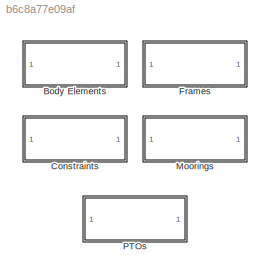
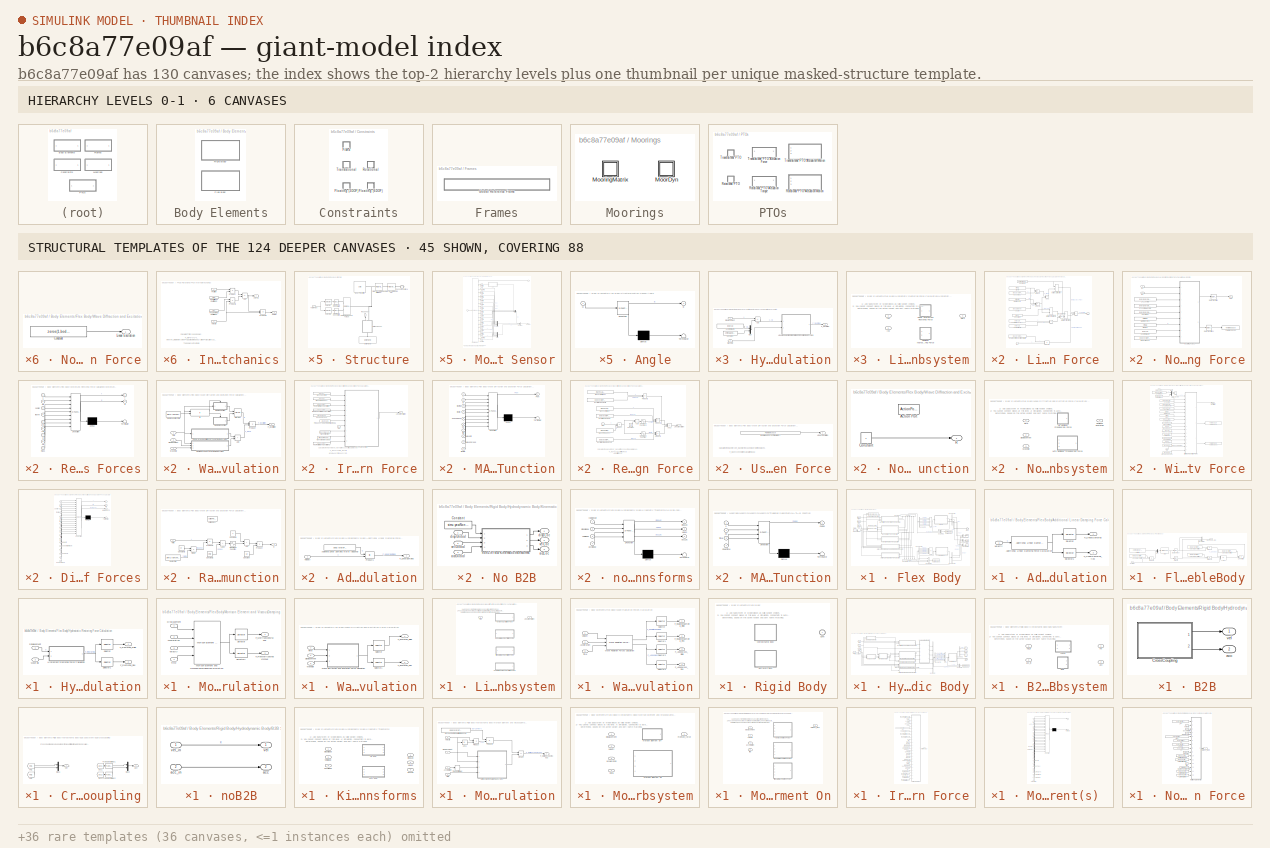
[diagram: thumbnail index - top-2 hierarchy levels (6 canvases) + 45 structural-template representatives of the remaining 124 canvases]
MODEL slx_b6c8a77e09af
KIND library
CONFIG AbsTol = auto
CONFIG FixedStep = auto
CONFIG MaxStep = auto
CONFIG MinStep = auto
CONFIG RelTol = 1e-3
CONFIG SampleTimeConstraint = Unconstrained
CONFIG Solver = ode45
CONFIG SolverMode = Auto
CONFIG SolverName = ode45
CONFIG StartTime = 0.0
CONFIG StopTime = 10.0
BLOCK [SubSystem] Body Elements
  Ports = []
  RequestExecContextInheritance = off
BLOCK [SubSystem] Body Elements/Flex Body
  Ports = [0, 0, 0, 0, 0, 0, 1]
  RequestExecContextInheritance = off
  VariantControl = (default)
BLOCK [Sum] Body Elements/Flex Body/Add
  IconShape = rectangular
  Inputs = +-----
  Ports = [6, 1]
BLOCK [SubSystem] Body Elements/Flex Body/Additional Linear Damping Force Calculation
  Ports = [1, 2]
  RequestExecContextInheritance = off
BLOCK [Reference] Body Elements/Flex Body/Additional Linear Damping Force Calculation/Additional Linear Damping Force Calculation  REF=WECSim_Lib/Body Elements/Rigid Body/Hydrodynamic Body/Additional Linear Damping Force Calculation
  Ports = [1, 1]
  SourceBlock = WECSim_Lib/Body Elements/Rigid Body/Hydrodynamic Body/Additional Linear Damping Force Calculation
  SourceType = SubSystem
BLOCK [Outport] Body Elements/Flex Body/Additional Linear Damping Force Calculation/F_LinearDamping
  PortDimensions = 6
BLOCK [Outport] Body Elements/Flex Body/Additional Linear Damping Force Calculation/F_LinearDamping_flex
  Port = 2
  PortDimensions = body.dof_gbm
BLOCK [Selector] Body Elements/Flex Body/Additional Linear Damping Force Calculation/Selector
  IndexOptions = Index vector (dialog)
  Indices = [1:6]
  InputPortWidth = body.dof
  OutputSizes = 1
  Ports = [1, 1]
BLOCK [Selector] Body Elements/Flex Body/Additional Linear Damping Force Calculation/Selector1
  IndexOptions = Index vector (dialog)
  Indices = [7:body.dof_end]
  InputPortWidth = body.dof
  OutputSizes = 1
  Ports = [1, 1]
BLOCK [Inport] Body Elements/Flex Body/Additional Linear Damping Force Calculation/Velocity
BLOCK [Reference] Body Elements/Flex Body/B2B Subsystem  REF=WECSim_Lib/Body Elements/Rigid Body/Hydrodynamic Body/B2B Subsystem
  Ports = [2, 2]
  SourceBlock = WECSim_Lib/Body Elements/Rigid Body/Hydrodynamic Body/B2B Subsystem
  SourceType = SubSystem
BLOCK [BusCreator] Body Elements/Flex Body/Bus Creator
  DisplayOption = bar
  InheritFromInputs = on
  Inputs = 6
  Ports = [6, 1]
BLOCK [BusCreator] Body Elements/Flex Body/Bus Creator1
  DisplayOption = bar
  InheritFromInputs = on
  Inputs = 3
  Ports = [3, 1]
BLOCK [BusCreator] Body Elements/Flex Body/Bus Creator2
  DisplayOption = bar
  InheritFromInputs = on
  Inputs = 3
  Ports = [3, 1]
BLOCK [BusCreator] Body Elements/Flex Body/Bus Creator3
  DisplayOption = bar
  InheritFromInputs = on
  Inputs = 6
  Ports = [6, 1]
BLOCK [BusCreator] Body Elements/Flex Body/Bus Creator4
  DisplayOption = bar
  InheritFromInputs = on
  Inputs = 2
  Ports = [2, 1]
BLOCK [BusCreator] Body Elements/Flex Body/Bus Creator5
  DisplayOption = bar
  InheritFromInputs = on
  Inputs = 2
  Ports = [2, 1]
BLOCK [BusCreator] Body Elements/Flex Body/Bus Creator6
  DisplayOption = bar
  InheritFromInputs = on
  Inputs = 2
  Ports = [2, 1]
BLOCK [BusSelector] Body Elements/Flex Body/Bus Selector1
  OutputSignals = signal1,signal2,signal3,signal4,signal5,signal6
  Ports = [1, 6]
BLOCK [BusSelector] Body Elements/Flex Body/Bus Selector2
  OutputSignals = disp,vel,acc
  Ports = [1, 3]
BLOCK [BusSelector] Body Elements/Flex Body/Bus Selector3
  OutputSignals = signal1,signal2,signal3,signal4,signal5,signal6
  Ports = [1, 6]
BLOCK [BusSelector] Body Elements/Flex Body/Bus Selector4
  Ports = [1, 3]
BLOCK [PMIOPort] Body Elements/Flex Body/Conn
  Side = Right
BLOCK [SubSystem] Body Elements/Flex Body/FlexibleBody
  Ports = [1, 1]
  RequestExecContextInheritance = off
BLOCK [Sum] Body Elements/Flex Body/FlexibleBody/Add
  IconShape = rectangular
  Inputs = --+
  Ports = [3, 1]
BLOCK [Constant] Body Elements/Flex Body/FlexibleBody/Added Mass Matrix1
  Value = body.hydroForce.gbm.stiffness
BLOCK [Constant] Body Elements/Flex Body/FlexibleBody/Added Mass Matrix2
  Value = body.hydroForce.gbm.damping
BLOCK [Constant] Body Elements/Flex Body/FlexibleBody/Added Mass Matrix3
  Value = body.hydroForce.gbm.mass_ff_inv
BLOCK [Constant] Body Elements/Flex Body/FlexibleBody/Added Mass Matrix4
  Value = body.hydroForce.gbm.mass_ff_inv
BLOCK [BusCreator] Body Elements/Flex Body/FlexibleBody/Bus Creator
  DisplayOption = bar
  InheritFromInputs = on
  Inputs = 3
  Ports = [3, 1]
BLOCK [Inport] Body Elements/Flex Body/FlexibleBody/Excitation
BLOCK [StateSpace] Body Elements/Flex Body/FlexibleBody/GBM
  A = body.hydroForce.gbm.state_space.A
  B = body.hydroForce.gbm.state_space.B
  C = body.hydroForce.gbm.state_space.C
  D = body.hydroForce.gbm.state_space.D
  Ports = [1, 1]
  X0 = 0
BLOCK [Mux] Body Elements/Flex Body/FlexibleBody/Mux
  DisplayOption = bar
  Inputs = 2
  Ports = [2, 1]
BLOCK [Product] Body Elements/Flex Body/FlexibleBody/Product1
  Multiplication = Matrix(*)
  Ports = [2, 1]
BLOCK [Product] Body Elements/Flex Body/FlexibleBody/Product2
  Multiplication = Matrix(*)
  Ports = [2, 1]
BLOCK [Product] Body Elements/Flex Body/FlexibleBody/Product4
  Multiplication = Matrix(*)
  Ports = [2, 1]
BLOCK [Outport] Body Elements/Flex Body/FlexibleBody/Response_Flex
BLOCK [Product] Body Elements/Flex Body/FlexibleBody/acceleration
  Multiplication = Matrix(*)
  Ports = [2, 1]
BLOCK [Selector] Body Elements/Flex Body/FlexibleBody/displacement
  IndexOptions = Index vector (dialog)
  Indices = [1:body.dof_gbm]
  InputPortWidth = body.dof_gbm*2
  OutputSizes = 1
  Ports = [1, 1]
BLOCK [Constant] Body Elements/Flex Body/FlexibleBody/unit matrix
  Value = zeros(body.dof_gbm,1)
BLOCK [Selector] Body Elements/Flex Body/FlexibleBody/velocity
  IndexOptions = Index vector (dialog)
  Indices = [body.dof_gbm+1:2*body.dof_gbm]
  InputPortWidth = 2*body.dof_gbm
  OutputSizes = 1
  Ports = [1, 1]
BLOCK [From] Body Elements/Flex Body/From
  GotoTag = disp1
  TagVisibility = global
BLOCK [From] Body Elements/Flex Body/From1
  GotoTag = vel1
  TagVisibility = global
BLOCK [From] Body Elements/Flex Body/From2
  GotoTag = acc1
  TagVisibility = global
BLOCK [Goto] Body Elements/Flex Body/Goto
  GotoTag = disp1
  TagVisibility = global
BLOCK [Goto] Body Elements/Flex Body/Goto1
  GotoTag = vel1
  TagVisibility = global
BLOCK [Goto] Body Elements/Flex Body/Goto2
  GotoTag = acc1
  TagVisibility = global
BLOCK [SubSystem] Body Elements/Flex Body/Hydrostatic Restoring Force Calculation
  Ports = [2, 2]
  RequestExecContextInheritance = off
BLOCK [Inport] Body Elements/Flex Body/Hydrostatic Restoring Force Calculation/Displacement
BLOCK [Outport] Body Elements/Flex Body/Hydrostatic Restoring Force Calculation/F_Restoring_Flex
  Port = 2
  PortDimensions = body.dof_gbm
BLOCK [Outport] Body Elements/Flex Body/Hydrostatic Restoring Force Calculation/F_Restoring_Rigid
  PortDimensions = 6
BLOCK [SubSystem] Body Elements/Flex Body/Hydrostatic Restoring Force Calculation/Hydrostatic Restoring Force Calculation
  AncestorBlock = WECSim_Lib/Body Elements/Rigid Body/Hydrodynamic Body/Hydrostatic Restoring Force Calculation
  Ports = [2, 1]
  RequestExecContextInheritance = off
BLOCK [Sum] Body Elements/Flex Body/Hydrostatic Restoring Force Calculation/Hydrostatic Restoring Force Calculation/Add
  IconShape = rectangular
  Inputs = +-
  Ports = [2, 1]
BLOCK [Constant] Body Elements/Flex Body/Hydrostatic Restoring Force Calculation/Hydrostatic Restoring Force Calculation/Center of Gravity
  Value = body.cg
BLOCK [Constant] Body Elements/Flex Body/Hydrostatic Restoring Force Calculation/Hydrostatic Restoring Force Calculation/Constant
  Value = zeros(1,body.dof-3)
BLOCK [Inport] Body Elements/Flex Body/Hydrostatic Restoring Force Calculation/Hydrostatic Restoring Force Calculation/Displacement
BLOCK [Outport] Body Elements/Flex Body/Hydrostatic Restoring Force Calculation/Hydrostatic Restoring Force Calculation/F_Restoring
BLOCK [SubSystem] Body Elements/Flex Body/Hydrostatic Restoring Force Calculation/Hydrostatic Restoring Force Calculation/Linear and Nonlinear Restoring Force Variant Subsystem
  Ports = [2, 1]
  RequestExecContextInheritance = off
  Variant = on
BLOCK [Inport] Body Elements/Flex Body/Hydrostatic Restoring Force Calculation/Hydrostatic Restoring Force Calculation/Linear and Nonlinear Restoring Force Variant Subsystem/In1
BLOCK [Inport] Body Elements/Flex Body/Hydrostatic Restoring Force Calculation/Hydrostatic Restoring Force Calculation/Linear and Nonlinear Restoring Force Variant Subsystem/In2
  Port = 2
BLOCK [SubSystem] Body Elements/Flex Body/Hydrostatic Restoring Force Calculation/Hydrostatic Restoring Force Calculation/Linear and Nonlinear Restoring Force Variant Subsystem/Linear Hydrostatic Restoring Force 
  Ports = [1, 1]
  RequestExecContextInheritance = off
  VariantControl = sv_linearHydro
BLOCK [Sum] Body Elements/Flex Body/Hydrostatic Restoring Force Calculation/Hydrostatic Restoring Force Calculation/Linear and Nonlinear Restoring Force Variant Subsystem/Linear Hydrostatic Restoring Force /Add1
  IconShape = rectangular
  Inputs = +-
  Ports = [2, 1]
BLOCK [Sum] Body Elements/Flex Body/Hydrostatic Restoring Force Calculation/Hydrostatic Restoring Force Calculation/Linear and Nonlinear Restoring Force Variant Subsystem/Linear Hydrostatic Restoring Force /Add2
  IconShape = rectangular
  Inputs = +++
  Ports = [3, 1]
BLOCK [Sum] Body Elements/Flex Body/Hydrostatic Restoring Force Calculation/Hydrostatic Restoring Force Calculation/Linear and Nonlinear Restoring Force Variant Subsystem/Linear Hydrostatic Restoring Force /Add3
  IconShape = rectangular
  Inputs = +-
  Ports = [2, 1]
BLOCK [Assignment] Body Elements/Flex Body/Hydrostatic Restoring Force Calculation/Hydrostatic Restoring Force Calculation/Linear and Nonlinear Restoring Force Variant Subsystem/Linear Hydrostatic Restoring Force /Assignment (Add Net Bouyancy Force to Z-Direction)
  IndexOptions = Index vector (dialog)
  Indices = 3
  OutputSizes = 1
  Ports = [2, 1]
BLOCK [Assignment] Body Elements/Flex Body/Hydrostatic Restoring Force Calculation/Hydrostatic Restoring Force Calculation/Linear and Nonlinear Restoring Force Variant Subsystem/Linear Hydrostatic Restoring Force /Assignment (Add Net Bouyancy Force to Z-Direction)1
  IndexOptions = Index vector (dialog)
  Indices = 3
  OutputSizes = 1
  Ports = [2, 1]
BLOCK [Assignment] Body Elements/Flex Body/Hydrostatic Restoring Force Calculation/Hydrostatic Restoring Force Calculation/Linear and Nonlinear Restoring Force Variant Subsystem/Linear Hydrostatic Restoring Force /Assignment (Add Net Bouyancy Force to Z-Direction)2
  IndexOptions = Index vector (dialog)
  Indices = 4:6
  OutputSizes = 1
  Ports = [2, 1]
BLOCK [Constant] Body Elements/Flex Body/Hydrostatic Restoring Force Calculation/Hydrostatic Restoring Force Calculation/Linear and Nonlinear Restoring Force Variant Subsystem/Linear Hydrostatic Restoring Force /Body Mass
  Value = body.hydroForce.storage.mass
BLOCK [Constant] Body Elements/Flex Body/Hydrostatic Restoring Force Calculation/Hydrostatic Restoring Force Calculation/Linear and Nonlinear Restoring Force Variant Subsystem/Linear Hydrostatic Restoring Force /Center of Buoyancy
  Value = body.cb
BLOCK [Constant] Body Elements/Flex Body/Hydrostatic Restoring Force Calculation/Hydrostatic Restoring Force Calculation/Linear and Nonlinear Restoring Force Variant Subsystem/Linear Hydrostatic Restoring Force /Center of Gravity
  Value = body.cg
BLOCK [Constant] Body Elements/Flex Body/Hydrostatic Restoring Force Calculation/Hydrostatic Restoring Force Calculation/Linear and Nonlinear Restoring Force Variant Subsystem/Linear Hydrostatic Restoring Force /Constant1
  Value = zeros(1,body.dof)
BLOCK [Constant] Body Elements/Flex Body/Hydrostatic Restoring Force Calculation/Hydrostatic Restoring Force Calculation/Linear and Nonlinear Restoring Force Variant Subsystem/Linear Hydrostatic Restoring Force /Constant2
  Value = [0 0 0]
BLOCK [Reference] Body Elements/Flex Body/Hydrostatic Restoring Force Calculation/Hydrostatic Restoring Force Calculation/Linear and Nonlinear Restoring Force Variant Subsystem/Linear Hydrostatic Restoring Force /Cross Product  REF=vrlib/Utilities/Cross Product
  Ports = [2, 1]
  SourceBlock = vrlib/Utilities/Cross Product
  SourceType = Cross Product
BLOCK [Constant] Body Elements/Flex Body/Hydrostatic Restoring Force Calculation/Hydrostatic Restoring Force Calculation/Linear and Nonlinear Restoring Force Variant Subsystem/Linear Hydrostatic Restoring Force /Gravity
  Value = simu.g
BLOCK [Inport] Body Elements/Flex Body/Hydrostatic Restoring Force Calculation/Hydrostatic Restoring Force Calculation/Linear and Nonlinear Restoring Force Variant Subsystem/Linear Hydrostatic Restoring Force /In1
BLOCK [Constant] Body Elements/Flex Body/Hydrostatic Restoring Force Calculation/Hydrostatic Restoring Force Calculation/Linear and Nonlinear Restoring Force Variant Subsystem/Linear Hydrostatic Restoring Force /Linear Restioring Coefficient Matrix
  Value = body.hydroForce.linearHydroRestCoef
BLOCK [Outport] Body Elements/Flex Body/Hydrostatic Restoring Force Calculation/Hydrostatic Restoring Force Calculation/Linear and Nonlinear Restoring Force Variant Subsystem/Linear Hydrostatic Restoring Force /Out1
BLOCK [Product] Body Elements/Flex Body/Hydrostatic Restoring Force Calculation/Hydrostatic Restoring Force Calculation/Linear and Nonlinear Restoring Force Variant Subsystem/Linear Hydrostatic Restoring Force /Product
  Ports = [2, 1]
BLOCK [Product] Body Elements/Flex Body/Hydrostatic Restoring Force Calculation/Hydrostatic Restoring Force Calculation/Linear and Nonlinear Restoring Force Variant Subsystem/Linear Hydrostatic Restoring Force /Product1
  Inputs = 3
  Ports = [3, 1]
BLOCK [Product] Body Elements/Flex Body/Hydrostatic Restoring Force Calculation/Hydrostatic Restoring Force Calculation/Linear and Nonlinear Restoring Force Variant Subsystem/Linear Hydrostatic Restoring Force /Product2
  Multiplication = Matrix(*)
  Ports = [2, 1]
BLOCK [Constant] Body Elements/Flex Body/Hydrostatic Restoring Force Calculation/Hydrostatic Restoring Force Calculation/Linear and Nonlinear Restoring Force Variant Subsystem/Linear Hydrostatic Restoring Force /Volume
  Value = body.dispVol
BLOCK [Constant] Body Elements/Flex Body/Hydrostatic Restoring Force Calculation/Hydrostatic Restoring Force Calculation/Linear and Nonlinear Restoring Force Variant Subsystem/Linear Hydrostatic Restoring Force /Water Density
  Value = simu.rho
BLOCK [SubSystem] Body Elements/Flex Body/Hydrostatic Restoring Force Calculation/Hydrostatic Restoring Force Calculation/Linear and Nonlinear Restoring Force Variant Subsystem/Nonlinear Hydrostatic Restoring Force
  Ports = [2, 1]
  RequestExecContextInheritance = off
  VariantControl = sv_nonlinearHydro
BLOCK [Constant] Body Elements/Flex Body/Hydrostatic Restoring Force Calculation/Hydrostatic Restoring Force Calculation/Linear and Nonlinear Restoring Force Variant Subsystem/Nonlinear Hydrostatic Restoring Force/Body Mass2
  Value = body.hydroForce.storage.mass
BLOCK [Constant] Body Elements/Flex Body/Hydrostatic Restoring Force Calculation/Hydrostatic Restoring Force Calculation/Linear and Nonlinear Restoring Force Variant Subsystem/Nonlinear Hydrostatic Restoring Force/Center of Gravity
  Value = body.cg
BLOCK [Constant] Body Elements/Flex Body/Hydrostatic Restoring Force Calculation/Hydrostatic Restoring Force Calculation/Linear and Nonlinear Restoring Force Variant Subsystem/Nonlinear Hydrostatic Restoring Force/Gravity2
  Value = simu.g
BLOCK [Inport] Body Elements/Flex Body/Hydrostatic Restoring Force Calculation/Hydrostatic Restoring Force Calculation/Linear and Nonlinear Restoring Force Variant Subsystem/Nonlinear Hydrostatic Restoring Force/In1
BLOCK [Inport] Body Elements/Flex Body/Hydrostatic Restoring Force Calculation/Hydrostatic Restoring Force Calculation/Linear and Nonlinear Restoring Force Variant Subsystem/Nonlinear Hydrostatic Restoring Force/In2
  Port = 2
BLOCK [Outport] Body Elements/Flex Body/Hydrostatic Restoring Force Calculation/Hydrostatic Restoring Force Calculation/Linear and Nonlinear Restoring Force Variant Subsystem/Nonlinear Hydrostatic Restoring Force/Out1
BLOCK [RateTransition] Body Elements/Flex Body/Hydrostatic Restoring Force Calculation/Hydrostatic Restoring Force Calculation/Linear and Nonlinear Restoring Force Variant Subsystem/Nonlinear Hydrostatic Restoring Force/Rate Transition
BLOCK [RateTransition] Body Elements/Flex Body/Hydrostatic Restoring Force Calculation/Hydrostatic Restoring Force Calculation/Linear and Nonlinear Restoring Force Variant Subsystem/Nonlinear Hydrostatic Restoring Force/Rate Transition1
BLOCK [SubSystem] Body Elements/Flex Body/Hydrostatic Restoring Force Calculation/Hydrostatic Restoring Force Calculation/Linear and Nonlinear Restoring Force Variant Subsystem/Nonlinear Hydrostatic Restoring Force/Restoring Forces
  ErrorFcn = Stateflow.Translate.translate
  PermitHierarchicalResolution = ExplicitOnly
  Ports = [9, 2]
  RequestExecContextInheritance = off
  SFBlockType = MATLAB Function
  SystemSampleTime = simu.dtNL
  TreatAsAtomicUnit = on
BLOCK [Demux] Body Elements/Flex Body/Hydrostatic Restoring Force Calculation/Hydrostatic Restoring Force Calculation/Linear and Nonlinear Restoring Force Variant Subsystem/Nonlinear Hydrostatic Restoring Force/Restoring Forces/ Demux 
  Outputs = 1
  Ports = [1, 1]
BLOCK [S-Function] Body Elements/Flex Body/Hydrostatic Restoring Force Calculation/Hydrostatic Restoring Force Calculation/Linear and Nonlinear Restoring Force Variant Subsystem/Nonlinear Hydrostatic Restoring Force/Restoring Forces/ SFunction 
  EnableBusSupport = off
  FunctionName = sf_sfun
  PortCounts = [9 3]
  Ports = [9, 3]
  SFunctionDeploymentMode = off
  Tag = Stateflow S-Function 2
BLOCK [Terminator] Body Elements/Flex Body/Hydrostatic Restoring Force Calculation/Hydrostatic Restoring Force Calculation/Linear and Nonlinear Restoring Force Variant Subsystem/Nonlinear Hydrostatic Restoring Force/Restoring Forces/ Terminator 
BLOCK [Inport] Body Elements/Flex Body/Hydrostatic Restoring Force Calculation/Hydrostatic Restoring Force Calculation/Linear and Nonlinear Restoring Force Variant Subsystem/Nonlinear Hydrostatic Restoring Force/Restoring Forces/area
  Port = 5
BLOCK [Inport] Body Elements/Flex Body/Hydrostatic Restoring Force Calculation/Hydrostatic Restoring Force Calculation/Linear and Nonlinear Restoring Force Variant Subsystem/Nonlinear Hydrostatic Restoring Force/Restoring Forces/center
  Port = 3
BLOCK [Inport] Body Elements/Flex Body/Hydrostatic Restoring Force Calculation/Hydrostatic Restoring Force Calculation/Linear and Nonlinear Restoring Force Variant Subsystem/Nonlinear Hydrostatic Restoring Force/Restoring Forces/cg
  Port = 8
BLOCK [Inport] Body Elements/Flex Body/Hydrostatic Restoring Force Calculation/Hydrostatic Restoring Force Calculation/Linear and Nonlinear Restoring Force Variant Subsystem/Nonlinear Hydrostatic Restoring Force/Restoring Forces/elv
  Port = 2
BLOCK [Outport] Body Elements/Flex Body/Hydrostatic Restoring Force Calculation/Hydrostatic Restoring Force Calculation/Linear and Nonlinear Restoring Force Variant Subsystem/Nonlinear Hydrostatic Restoring Force/Restoring Forces/f
BLOCK [Inport] Body Elements/Flex Body/Hydrostatic Restoring Force Calculation/Hydrostatic Restoring Force Calculation/Linear and Nonlinear Restoring Force Variant Subsystem/Nonlinear Hydrostatic Restoring Force/Restoring Forces/g
  Port = 7
BLOCK [Inport] Body Elements/Flex Body/Hydrostatic Restoring Force Calculation/Hydrostatic Restoring Force Calculation/Linear and Nonlinear Restoring Force Variant Subsystem/Nonlinear Hydrostatic Restoring Force/Restoring Forces/mass
  Port = 9
BLOCK [Outport] Body Elements/Flex Body/Hydrostatic Restoring Force Calculation/Hydrostatic Restoring Force Calculation/Linear and Nonlinear Restoring Force Variant Subsystem/Nonlinear Hydrostatic Restoring Force/Restoring Forces/p
  Port = 2
BLOCK [Inport] Body Elements/Flex Body/Hydrostatic Restoring Force Calculation/Hydrostatic Restoring Force Calculation/Linear and Nonlinear Restoring Force Variant Subsystem/Nonlinear Hydrostatic Restoring Force/Restoring Forces/rho
  Port = 6
BLOCK [Inport] Body Elements/Flex Body/Hydrostatic Restoring Force Calculation/Hydrostatic Restoring Force Calculation/Linear and Nonlinear Restoring Force Variant Subsystem/Nonlinear Hydrostatic Restoring Force/Restoring Forces/tnorm
  Port = 4
BLOCK [Inport] Body Elements/Flex Body/Hydrostatic Restoring Force Calculation/Hydrostatic Restoring Force Calculation/Linear and Nonlinear Restoring Force Variant Subsystem/Nonlinear Hydrostatic Restoring Force/Restoring Forces/x
BLOCK [Constant] Body Elements/Flex Body/Hydrostatic Restoring Force Calculation/Hydrostatic Restoring Force Calculation/Linear and Nonlinear Restoring Force Variant Subsystem/Nonlinear Hydrostatic Restoring Force/STL areas
  Value = body.bodyGeometry.area
BLOCK [Constant] Body Elements/Flex Body/Hydrostatic Restoring Force Calculation/Hydrostatic Restoring Force Calculation/Linear and Nonlinear Restoring Force Variant Subsystem/Nonlinear Hydrostatic Restoring Force/STL centers
  Value = body.bodyGeometry.center
BLOCK [Constant] Body Elements/Flex Body/Hydrostatic Restoring Force Calculation/Hydrostatic Restoring Force Calculation/Linear and Nonlinear Restoring Force Variant Subsystem/Nonlinear Hydrostatic Restoring Force/STL normal vectors
  Value = body.bodyGeometry.norm
BLOCK [ToWorkspace] Body Elements/Flex Body/Hydrostatic Restoring Force Calculation/Hydrostatic Restoring Force Calculation/Linear and Nonlinear Restoring Force Variant Subsystem/Nonlinear Hydrostatic Restoring Force/To Workspace1
  Decimation = round(simu.dtOut/simu.dt,0)
  MaxDataPoints = inf
  Ports = [1]
  SampleTime = -1
  SaveFormat = Structure With Time
  VariableName = body1_hspressure_out
BLOCK [Constant] Body Elements/Flex Body/Hydrostatic Restoring Force Calculation/Hydrostatic Restoring Force Calculation/Linear and Nonlinear Restoring Force Variant Subsystem/Nonlinear Hydrostatic Restoring Force/Water Density1
  Value = simu.rho
BLOCK [Outport] Body Elements/Flex Body/Hydrostatic Restoring Force Calculation/Hydrostatic Restoring Force Calculation/Linear and Nonlinear Restoring Force Variant Subsystem/Out1
BLOCK [Mux] Body Elements/Flex Body/Hydrostatic Restoring Force Calculation/Hydrostatic Restoring Force Calculation/Mux
  DisplayOption = bar
  Inputs = 2
  Ports = [2, 1]
BLOCK [Inport] Body Elements/Flex Body/Hydrostatic Restoring Force Calculation/Hydrostatic Restoring Force Calculation/Wave Elv
  Port = 2
BLOCK [Selector] Body Elements/Flex Body/Hydrostatic Restoring Force Calculation/Selector
  IndexOptions = Index vector (dialog)
  Indices = [1:6]
  InputPortWidth = body.dof
  OutputSizes = 1
  Ports = [1, 1]
BLOCK [Selector] Body Elements/Flex Body/Hydrostatic Restoring Force Calculation/Selector1
  IndexOptions = Index vector (dialog)
  Indices = [7:body.dof_end]
  InputPortWidth = body.dof
  OutputSizes = 1
  Ports = [1, 1]
BLOCK [Inport] Body Elements/Flex Body/Hydrostatic Restoring Force Calculation/Wave Elv
  Port = 2
BLOCK [SubSystem] Body Elements/Flex Body/Morrison Element and ViscousDampingForceCalculation
  Ports = [4, 2]
  RequestExecContextInheritance = off
BLOCK [Inport] Body Elements/Flex Body/Morrison Element and ViscousDampingForceCalculation/Acceleration
  Port = 2
BLOCK [Inport] Body Elements/Flex Body/Morrison Element and ViscousDampingForceCalculation/Displacement
BLOCK [Outport] Body Elements/Flex Body/Morrison Element and ViscousDampingForceCalculation/F_FlexMorrisonAndViscous 
  Port = 2
  PortDimensions = body.dof_gbm
BLOCK [Outport] Body Elements/Flex Body/Morrison Element and ViscousDampingForceCalculation/F_MorrisonAndViscous
  PortDimensions = 6
BLOCK [Reference] Body Elements/Flex Body/Morrison Element and ViscousDampingForceCalculation/Morison Element and ViscousDampingForceCalculation  REF=WECSim_Lib/Body Elements/Rigid Body/Hydrodynamic Body/Morison Element and ViscousDampingForceCalculation
  Ports = [4, 1]
  SourceBlock = WECSim_Lib/Body Elements/Rigid Body/Hydrodynamic Body/Morison Element and ViscousDampingForceCalculation
  SourceType = SubSystem
BLOCK [Selector] Body Elements/Flex Body/Morrison Element and ViscousDampingForceCalculation/Selector
  IndexOptions = Index vector (dialog)
  Indices = [1:6]
  InputPortWidth = body.dof
  OutputSizes = 1
  Ports = [1, 1]
BLOCK [Selector] Body Elements/Flex Body/Morrison Element and ViscousDampingForceCalculation/Selector1
  IndexOptions = Index vector (dialog)
  Indices = [7:body.dof_end]
  InputPortWidth = body.dof
  OutputSizes = 1
  Ports = [1, 1]
BLOCK [Inport] Body Elements/Flex Body/Morrison Element and ViscousDampingForceCalculation/Time
  Port = 4
BLOCK [Inport] Body Elements/Flex Body/Morrison Element and ViscousDampingForceCalculation/Velocity
  Port = 3
BLOCK [Reference] Body Elements/Flex Body/Nonlinear Wave Elevation  REF=WECSim_Lib/Body Elements/Rigid Body/Hydrodynamic Body/Nonlinear Wave Elevation
  Ports = [2, 1]
  SourceBlock = WECSim_Lib/Body Elements/Rigid Body/Hydrodynamic Body/Nonlinear Wave Elevation
  SourceType = SubSystem
BLOCK [SubSystem] Body Elements/Flex Body/Structure
  Ports = [1, 1, 0, 0, 0, 0, 1]
  RequestExecContextInheritance = off
BLOCK [Reference] Body Elements/Flex Body/Structure/Body Properties  REF=sm_lib/Body Elements/Solid
  Ports = [0, 0, 0, 0, 0, 0, 1]
  SourceBlock = sm_lib/Body Elements/Solid
  SourceType = File Solid
BLOCK [PMIOPort] Body Elements/Flex Body/Structure/Conn Free Surface
  Side = Right
BLOCK [Reference] Body Elements/Flex Body/Structure/External Force and Torque  REF=sm_lib/Forces and
Torques/External Force
and Torque
  Ports = [0, 0, 0, 0, 0, 2, 1]
  SourceBlock = sm_lib/Forces and\nTorques/External Force\nand Torque
  SourceType = External Force\nand Torque
BLOCK [SubSystem] Body Elements/Flex Body/Structure/Motion Sensor
  Ports = [0, 1, 0, 0, 0, 1, 1]
  RequestExecContextInheritance = off
BLOCK [SubSystem] Body Elements/Flex Body/Structure/Motion Sensor/Angle
  ErrorFcn = Stateflow.Translate.translate
  PermitHierarchicalResolution = ExplicitOnly
  Ports = [1, 1]
  RequestExecContextInheritance = off
  SFBlockType = MATLAB Function
  TreatAsAtomicUnit = on
BLOCK [Demux] Body Elements/Flex Body/Structure/Motion Sensor/Angle/ Demux 
  Outputs = 1
  Ports = [1, 1]
BLOCK [S-Function] Body Elements/Flex Body/Structure/Motion Sensor/Angle/ SFunction 
  EnableBusSupport = off
  FunctionName = sf_sfun
  PortCounts = [1 2]
  Ports = [1, 2]
  SFunctionDeploymentMode = off
  Tag = Stateflow S-Function WECSim_Lib 17
BLOCK [Terminator] Body Elements/Flex Body/Structure/Motion Sensor/Angle/ Terminator 
BLOCK [Outport] Body Elements/Flex Body/Structure/Motion Sensor/Angle/E
BLOCK [Inport] Body Elements/Flex Body/Structure/Motion Sensor/Angle/Q
BLOCK [PMIOPort] Body Elements/Flex Body/Structure/Motion Sensor/B
  Port = 2
  Side = Left
BLOCK [BusCreator] Body Elements/Flex Body/Structure/Motion Sensor/Bus Creator
  DisplayOption = bar
  InheritFromInputs = on
  Inputs = 3
  Ports = [3, 1]
BLOCK [PMIOPort] Body Elements/Flex Body/Structure/Motion Sensor/F
  Side = Right
BLOCK [Mux] Body Elements/Flex Body/Structure/Motion Sensor/Mux
  DisplayOption = bar
  Ports = [4, 1]
BLOCK [Mux] Body Elements/Flex Body/Structure/Motion Sensor/Mux1
  DisplayOption = bar
  Inputs = 6
  Ports = [6, 1]
BLOCK [Mux] Body Elements/Flex Body/Structure/Motion Sensor/Mux2
  DisplayOption = bar
  Inputs = 6
  Ports = [6, 1]
BLOCK [Reference] Body Elements/Flex Body/Structure/Motion Sensor/PS-Simulink Converter  REF=nesl_utility/PS-Simulink
Converter
  Ports = [0, 1, 0, 0, 0, 1]
  SourceBlock = nesl_utility/PS-Simulink\nConverter
  SourceType = PS-Simulink\nConverter
BLOCK [Reference] Body Elements/Flex Body/Structure/Motion Sensor/PS-Simulink Converter1  REF=nesl_utility/PS-Simulink
Converter
  Ports = [0, 1, 0, 0, 0, 1]
  SourceBlock = nesl_utility/PS-Simulink\nConverter
  SourceType = PS-Simulink\nConverter
BLOCK [Reference] Body Elements/Flex Body/Structure/Motion Sensor/PS-Simulink Converter10  REF=nesl_utility/PS-Simulink
Converter
  Ports = [0, 1, 0, 0, 0, 1]
  SourceBlock = nesl_utility/PS-Simulink\nConverter
  SourceType = PS-Simulink\nConverter
BLOCK [Reference] Body Elements/Flex Body/Structure/Motion Sensor/PS-Simulink Converter11  REF=nesl_utility/PS-Simulink
Converter
  Ports = [0, 1, 0, 0, 0, 1]
  SourceBlock = nesl_utility/PS-Simulink\nConverter
  SourceType = PS-Simulink\nConverter
BLOCK [Reference] Body Elements/Flex Body/Structure/Motion Sensor/PS-Simulink Converter12  REF=nesl_utility/PS-Simulink
Converter
  Ports = [0, 1, 0, 0, 0, 1]
  SourceBlock = nesl_utility/PS-Simulink\nConverter
  SourceType = PS-Simulink\nConverter
BLOCK [Reference] Body Elements/Flex Body/Structure/Motion Sensor/PS-Simulink Converter13  REF=nesl_utility/PS-Simulink
Converter
  Ports = [0, 1, 0, 0, 0, 1]
  SourceBlock = nesl_utility/PS-Simulink\nConverter
  SourceType = PS-Simulink\nConverter
BLOCK [Reference] Body Elements/Flex Body/Structure/Motion Sensor/PS-Simulink Converter14  REF=nesl_utility/PS-Simulink
Converter
  Ports = [0, 1, 0, 0, 0, 1]
  SourceBlock = nesl_utility/PS-Simulink\nConverter
  SourceType = PS-Simulink\nConverter
BLOCK [Reference] Body Elements/Flex Body/Structure/Motion Sensor/PS-Simulink Converter15  REF=nesl_utility/PS-Simulink
Converter
  Ports = [0, 1, 0, 0, 0, 1]
  SourceBlock = nesl_utility/PS-Simulink\nConverter
  SourceType = PS-Simulink\nConverter
BLOCK [Reference] Body Elements/Flex Body/Structure/Motion Sensor/PS-Simulink Converter2  REF=nesl_utility/PS-Simulink
Converter
  Ports = [0, 1, 0, 0, 0, 1]
  SourceBlock = nesl_utility/PS-Simulink\nConverter
  SourceType = PS-Simulink\nConverter
BLOCK [Reference] Body Elements/Flex Body/Structure/Motion Sensor/PS-Simulink Converter3  REF=nesl_utility/PS-Simulink
Converter
  Ports = [0, 1, 0, 0, 0, 1]
  SourceBlock = nesl_utility/PS-Simulink\nConverter
  SourceType = PS-Simulink\nConverter
BLOCK [Reference] Body Elements/Flex Body/Structure/Motion Sensor/PS-Simulink Converter4  REF=nesl_utility/PS-Simulink
Converter
  Ports = [0, 1, 0, 0, 0, 1]
  SourceBlock = nesl_utility/PS-Simulink\nConverter
  SourceType = PS-Simulink\nConverter
BLOCK [Reference] Body Elements/Flex Body/Structure/Motion Sensor/PS-Simulink Converter5  REF=nesl_utility/PS-Simulink
Converter
  Ports = [0, 1, 0, 0, 0, 1]
  SourceBlock = nesl_utility/PS-Simulink\nConverter
  SourceType = PS-Simulink\nConverter
BLOCK [Reference] Body Elements/Flex Body/Structure/Motion Sensor/PS-Simulink Converter6  REF=nesl_utility/PS-Simulink
Converter
  Ports = [0, 1, 0, 0, 0, 1]
  SourceBlock = nesl_utility/PS-Simulink\nConverter
  SourceType = PS-Simulink\nConverter
BLOCK [Reference] Body Elements/Flex Body/Structure/Motion Sensor/PS-Simulink Converter7  REF=nesl_utility/PS-Simulink
Converter
  Ports = [0, 1, 0, 0, 0, 1]
  SourceBlock = nesl_utility/PS-Simulink\nConverter
  SourceType = PS-Simulink\nConverter
BLOCK [Reference] Body Elements/Flex Body/Structure/Motion Sensor/PS-Simulink Converter8  REF=nesl_utility/PS-Simulink
Converter
  Ports = [0, 1, 0, 0, 0, 1]
  SourceBlock = nesl_utility/PS-Simulink\nConverter
  SourceType = PS-Simulink\nConverter
BLOCK [Reference] Body Elements/Flex Body/Structure/Motion Sensor/PS-Simulink Converter9  REF=nesl_utility/PS-Simulink
Converter
  Ports = [0, 1, 0, 0, 0, 1]
  SourceBlock = nesl_utility/PS-Simulink\nConverter
  SourceType = PS-Simulink\nConverter
BLOCK [Outport] Body Elements/Flex Body/Structure/Motion Sensor/Response
BLOCK [Reference] Body Elements/Flex Body/Structure/Motion Sensor/Transform Sensor  REF=sm_lib/Frames and
Transforms/Transform
Sensor
  Ports = [0, 0, 0, 0, 0, 1, 17]
  SourceBlock = sm_lib/Frames and\nTransforms/Transform\nSensor
  SourceType = Transform\nSensor
BLOCK [Outport] Body Elements/Flex Body/Structure/Response
BLOCK [Reference] Body Elements/Flex Body/Structure/Rigid Transform (Setup CG)  REF=sm_lib/Frames and
Transforms/Rigid
Transform
  Ports = [0, 0, 0, 0, 0, 1, 1]
  SourceBlock = sm_lib/Frames and\nTransforms/Rigid\nTransform
  SourceType = Rigid\nTransform
BLOCK [Reference] Body Elements/Flex Body/Structure/Rigid Transform (Setup Initial Disp)  REF=sm_lib/Frames and
Transforms/Rigid
Transform
  Ports = [0, 0, 0, 0, 0, 1, 1]
  SourceBlock = sm_lib/Frames and\nTransforms/Rigid\nTransform
  SourceType = Rigid\nTransform
BLOCK [Selector] Body Elements/Flex Body/Structure/Selector
  IndexOptions = Index vector (dialog)
  Indices = [1:3]
  InputPortWidth = 6
  OutputSizes = 1
  Ports = [1, 1]
BLOCK [Selector] Body Elements/Flex Body/Structure/Selector1
  IndexOptions = Index vector (dialog)
  Indices = [4:6]
  InputPortWidth = 6
  OutputSizes = 1
  Ports = [1, 1]
BLOCK [Reference] Body Elements/Flex Body/Structure/Simulink-PS Converter1  REF=nesl_utility/Simulink-PS
Converter
  Ports = [1, 0, 0, 0, 0, 0, 1]
  SourceBlock = nesl_utility/Simulink-PS\nConverter
  SourceType = Simulink-PS\nConverter
BLOCK [Reference] Body Elements/Flex Body/Structure/Simulink-PS Converter2  REF=nesl_utility/Simulink-PS
Converter
  Ports = [1, 0, 0, 0, 0, 0, 1]
  SourceBlock = nesl_utility/Simulink-PS\nConverter
  SourceType = Simulink-PS\nConverter
BLOCK [Inport] Body Elements/Flex Body/Structure/Total Force
BLOCK [Reference] Body Elements/Flex Body/Structure/World Frame  REF=sm_lib/Frames and
Transforms/World Frame
  Ports = [0, 0, 0, 0, 0, 0, 1]
  SourceBlock = sm_lib/Frames and\nTransforms/World Frame
  SourceType = World Frame
BLOCK [Sum] Body Elements/Flex Body/Sum
  IconShape = rectangular
  Inputs = +-----
  Ports = [6, 1]
BLOCK [From] Body Elements/Flex Body/Time
  GotoTag = Clock
  TagVisibility = global
BLOCK [ToWorkspace] Body Elements/Flex Body/To Workspace
  Decimation = round(simu.dtOut/simu.dt,0)
  MaxDataPoints = inf
  Ports = [1]
  SampleTime = -1
  SaveFormat = Structure With Time
  VariableName = body1_out
BLOCK [ToWorkspace] Body Elements/Flex Body/To Workspace1
  Decimation = round(simu.dtOut/simu.dt,0)
  MaxDataPoints = inf
  Ports = [1]
  SampleTime = -1
  SaveFormat = Structure With Time
  VariableName = Flex_out
BLOCK [TransportDelay] Body Elements/Flex Body/Transport Delay
  DelayTime = 10e-8
  Ports = [1, 1]
BLOCK [SubSystem] Body Elements/Flex Body/Wave Diffraction and Excitation Force Calculation
  Ports = [3, 2]
  RequestExecContextInheritance = off
BLOCK [Inport] Body Elements/Flex Body/Wave Diffraction and Excitation Force Calculation/Displacement
  Port = 2
BLOCK [Outport] Body Elements/Flex Body/Wave Diffraction and Excitation Force Calculation/F_Excitation_Flex
  Port = 2
  PortDimensions = body.dof_gbm
BLOCK [Outport] Body Elements/Flex Body/Wave Diffraction and Excitation Force Calculation/F_Excitation_Rigid
  PortDimensions = 6
  VarSizeSig = No
BLOCK [Selector] Body Elements/Flex Body/Wave Diffraction and Excitation Force Calculation/Selector
  IndexOptions = Index vector (dialog)
  Indices = [1:6]
  InputPortWidth = body.dof
  OutputSizes = 1
  Ports = [1, 1]
BLOCK [Selector] Body Elements/Flex Body/Wave Diffraction and Excitation Force Calculation/Selector1
  IndexOptions = Index vector (dialog)
  Indices = [7:body.dof_end]
  InputPortWidth = body.dof
  OutputSizes = 1
  Ports = [1, 1]
BLOCK [Inport] Body Elements/Flex Body/Wave Diffraction and Excitation Force Calculation/Time
BLOCK [SubSystem] Body Elements/Flex Body/Wave Diffraction and Excitation Force Calculation/Wave Diffraction and Excitation Force Calculation
  AncestorBlock = WECSim_Lib/Body Elements/Rigid Body/Hydrodynamic Body/Wave Diffraction and Excitation Force Calculation
  Ports = [3, 1]
  RequestExecContextInheritance = off
BLOCK [Sum] Body Elements/Flex Body/Wave Diffraction and Excitation Force Calculation/Wave Diffraction and Excitation Force Calculation/Add
  IconShape = rectangular
  Ports = [2, 1]
BLOCK [Inport] Body Elements/Flex Body/Wave Diffraction and Excitation Force Calculation/Wave Diffraction and Excitation Force Calculation/Displacement
  Port = 2
BLOCK [Outport] Body Elements/Flex Body/Wave Diffraction and Excitation Force Calculation/Wave Diffraction and Excitation Force Calculation/F_Excitation
  PortDimensions = body.dof
  VarSizeSig = No
BLOCK [If] Body Elements/Flex Body/Wave Diffraction and Excitation Force Calculation/Wave Diffraction and Excitation Force Calculation/If2
  IfExpression = u1 < u2
  NumInputs = 2
  Ports = [2, 2]
BLOCK [SubSystem] Body Elements/Flex Body/Wave Diffraction and Excitation Force Calculation/Wave Diffraction and Excitation Force Calculation/Linear Wave Excitation Force Variant Subsystem
  Ports = [1, 1]
  RequestExecContextInheritance = off
  Variant = on
BLOCK [SubSystem] Body Elements/Flex Body/Wave Diffraction and Excitation Force Calculation/Wave Diffraction and Excitation Force Calculation/Linear Wave Excitation Force Variant Subsystem/Irregular Wave Excitation Force
  Ports = [1, 1]
  RequestExecContextInheritance = off
  VariantControl = sv_irregularWaves
BLOCK [Constant] Body Elements/Flex Body/Wave Diffraction and Excitation Force Calculation/Wave Diffraction and Excitation Force Calculation/Linear Wave Excitation Force Variant Subsystem/Irregular Wave Excitation Force/Frequency Spacing Delta Omega
  Value = waves.dw
  VectorParams1D = off
BLOCK [Constant] Body Elements/Flex Body/Wave Diffraction and Excitation Force Calculation/Wave Diffraction and Excitation Force Calculation/Linear Wave Excitation Force Variant Subsystem/Irregular Wave Excitation Force/Imaginary Part of Wave Excitation
  Value = body.hydroForce.fExt.im
  VectorParams1D = off
BLOCK [Outport] Body Elements/Flex Body/Wave Diffraction and Excitation Force Calculation/Wave Diffraction and Excitation Force Calculation/Linear Wave Excitation Force Variant Subsystem/Irregular Wave Excitation Force/Linear Excitation
BLOCK [SubSystem] Body Elements/Flex Body/Wave Diffraction and Excitation Force Calculation/Wave Diffraction and Excitation Force Calculation/Linear Wave Excitation Force Variant Subsystem/Irregular Wave Excitation Force/MATLAB Function
  ErrorFcn = Stateflow.Translate.translate
  PermitHierarchicalResolution = ExplicitOnly
  Ports = [10, 1]
  RequestExecContextInheritance = off
  SFBlockType = MATLAB Function
  TreatAsAtomicUnit = on
BLOCK [Demux] Body Elements/Flex Body/Wave Diffraction and Excitation Force Calculation/Wave Diffraction and Excitation Force Calculation/Linear Wave Excitation Force Variant Subsystem/Irregular Wave Excitation Force/MATLAB Function/ Demux 
  Outputs = 1
  Ports = [1, 1]
BLOCK [S-Function] Body Elements/Flex Body/Wave Diffraction and Excitation Force Calculation/Wave Diffraction and Excitation Force Calculation/Linear Wave Excitation Force Variant Subsystem/Irregular Wave Excitation Force/MATLAB Function/ SFunction 
  EnableBusSupport = off
  FunctionName = sf_sfun
  PortCounts = [10 2]
  Ports = [10, 2]
  SFunctionDeploymentMode = off
  Tag = Stateflow S-Function WECSim_Lib 10
BLOCK [Terminator] Body Elements/Flex Body/Wave Diffraction and Excitation Force Calculation/Wave Diffraction and Excitation Force Calculation/Linear Wave Excitation Force Variant Subsystem/Irregular Wave Excitation Force/MATLAB Function/ Terminator 
BLOCK [Inport] Body Elements/Flex Body/Wave Diffraction and Excitation Force Calculation/Wave Diffraction and Excitation Force Calculation/Linear Wave Excitation Force Variant Subsystem/Irregular Wave Excitation Force/MATLAB Function/A
BLOCK [Outport] Body Elements/Flex Body/Wave Diffraction and Excitation Force Calculation/Wave Diffraction and Excitation Force Calculation/Linear Wave Excitation Force Variant Subsystem/Irregular Wave Excitation Force/MATLAB Function/Fext
BLOCK [Inport] Body Elements/Flex Body/Wave Diffraction and Excitation Force Calculation/Wave Diffraction and Excitation Force Calculation/Linear Wave Excitation Force Variant Subsystem/Irregular Wave Excitation Force/MATLAB Function/WaveDir
  Port = 8
BLOCK [Inport] Body Elements/Flex Body/Wave Diffraction and Excitation Force Calculation/Wave Diffraction and Excitation Force Calculation/Linear Wave Excitation Force Variant Subsystem/Irregular Wave Excitation Force/MATLAB Function/WaveSpread
  Port = 9
BLOCK [Inport] Body Elements/Flex Body/Wave Diffraction and Excitation Force Calculation/Wave Diffraction and Excitation Force Calculation/Linear Wave Excitation Force Variant Subsystem/Irregular Wave Excitation Force/MATLAB Function/dw
  Port = 6
BLOCK [Inport] Body Elements/Flex Body/Wave Diffraction and Excitation Force Calculation/Wave Diffraction and Excitation Force Calculation/Linear Wave Excitation Force Variant Subsystem/Irregular Wave Excitation Force/MATLAB Function/fExtIM
  Port = 4
BLOCK [Inport] Body Elements/Flex Body/Wave Diffraction and Excitation Force Calculation/Wave Diffraction and Excitation Force Calculation/Linear Wave Excitation Force Variant Subsystem/Irregular Wave Excitation Force/MATLAB Function/fExtMD
  Port = 10
BLOCK [Inport] Body Elements/Flex Body/Wave Diffraction and Excitation Force Calculation/Wave Diffraction and Excitation Force Calculation/Linear Wave Excitation Force Variant Subsystem/Irregular Wave Excitation Force/MATLAB Function/fExtRE
  Port = 3
BLOCK [Inport] Body Elements/Flex Body/Wave Diffraction and Excitation Force Calculation/Wave Diffraction and Excitation Force Calculation/Linear Wave Excitation Force Variant Subsystem/Irregular Wave Excitation Force/MATLAB Function/phaseRand
  Port = 5
BLOCK [Inport] Body Elements/Flex Body/Wave Diffraction and Excitation Force Calculation/Wave Diffraction and Excitation Force Calculation/Linear Wave Excitation Force Variant Subsystem/Irregular Wave Excitation Force/MATLAB Function/time
  Port = 7
BLOCK [Inport] Body Elements/Flex Body/Wave Diffraction and Excitation Force Calculation/Wave Diffraction and Excitation Force Calculation/Linear Wave Excitation Force Variant Subsystem/Irregular Wave Excitation Force/MATLAB Function/w
  Port = 2
BLOCK [Constant] Body Elements/Flex Body/Wave Diffraction and Excitation Force Calculation/Wave Diffraction and Excitation Force Calculation/Linear Wave Excitation Force Variant Subsystem/Irregular Wave Excitation Force/Random Phase
  Value = waves.phase
  VectorParams1D = off
BLOCK [Constant] Body Elements/Flex Body/Wave Diffraction and Excitation Force Calculation/Wave Diffraction and Excitation Force Calculation/Linear Wave Excitation Force Variant Subsystem/Irregular Wave Excitation Force/Real Part of Wave Excitation
  Value = body.hydroForce.fExt.re
  VectorParams1D = off
BLOCK [Constant] Body Elements/Flex Body/Wave Diffraction and Excitation Force Calculation/Wave Diffraction and Excitation Force Calculation/Linear Wave Excitation Force Variant Subsystem/Irregular Wave Excitation Force/Real Part of Wave Excitation1
  Value = body.hydroForce.fExt.md
  VectorParams1D = off
BLOCK [Inport] Body Elements/Flex Body/Wave Diffraction and Excitation Force Calculation/Wave Diffraction and Excitation Force Calculation/Linear Wave Excitation Force Variant Subsystem/Irregular Wave Excitation Force/Time
BLOCK [Constant] Body Elements/Flex Body/Wave Diffraction and Excitation Force Calculation/Wave Diffraction and Excitation Force Calculation/Linear Wave Excitation Force Variant Subsystem/Irregular Wave Excitation Force/Wave Frequency
  Value = waves.w
  VectorParams1D = off
BLOCK [Constant] Body Elements/Flex Body/Wave Diffraction and Excitation Force Calculation/Wave Diffraction and Excitation Force Calculation/Linear Wave Excitation Force Variant Subsystem/Irregular Wave Excitation Force/Wave Spectrum
  Value = waves.A
  VectorParams1D = off
BLOCK [Constant] Body Elements/Flex Body/Wave Diffraction and Excitation Force Calculation/Wave Diffraction and Excitation Force Calculation/Linear Wave Excitation Force Variant Subsystem/Irregular Wave Excitation Force/Wave direction
  Value = waves.waveDir
  VectorParams1D = off
BLOCK [Constant] Body Elements/Flex Body/Wave Diffraction and Excitation Force Calculation/Wave Diffraction and Excitation Force Calculation/Linear Wave Excitation Force Variant Subsystem/Irregular Wave Excitation Force/Wave direction spread
  Value = waves.waveSpread
  VectorParams1D = off
BLOCK [Outport] Body Elements/Flex Body/Wave Diffraction and Excitation Force Calculation/Wave Diffraction and Excitation Force Calculation/Linear Wave Excitation Force Variant Subsystem/Linear Excitation
BLOCK [SubSystem] Body Elements/Flex Body/Wave Diffraction and Excitation Force Calculation/Wave Diffraction and Excitation Force Calculation/Linear Wave Excitation Force Variant Subsystem/No Wave Excitation Force
  Ports = [0, 1]
  RequestExecContextInheritance = off
  VariantControl = sv_noWave
BLOCK [Constant] Body Elements/Flex Body/Wave Diffraction and Excitation Force Calculation/Wave Diffraction and Excitation Force Calculation/Linear Wave Excitation Force Variant Subsystem/No Wave Excitation Force/Constant
  Value = zeros(1,body.dof)
BLOCK [Outport] Body Elements/Flex Body/Wave Diffraction and Excitation Force Calculation/Wave Diffraction and Excitation Force Calculation/Linear Wave Excitation Force Variant Subsystem/No Wave Excitation Force/Linear Excitation
BLOCK [SubSystem] Body Elements/Flex Body/Wave Diffraction and Excitation Force Calculation/Wave Diffraction and Excitation Force Calculation/Linear Wave Excitation Force Variant Subsystem/Regular Wave Excitation Force
  Ports = [1, 1]
  RequestExecContextInheritance = off
  VariantControl = sv_regularWaves
BLOCK [Sum] Body Elements/Flex Body/Wave Diffraction and Excitation Force Calculation/Wave Diffraction and Excitation Force Calculation/Linear Wave Excitation Force Variant Subsystem/Regular Wave Excitation Force/Add
  IconShape = rectangular
  Ports = [2, 1]
BLOCK [Sum] Body Elements/Flex Body/Wave Diffraction and Excitation Force Calculation/Wave Diffraction and Excitation Force Calculation/Linear Wave Excitation Force Variant Subsystem/Regular Wave Excitation Force/Add1
  IconShape = rectangular
  Inputs = ++-
  Ports = [3, 1]
BLOCK [Constant] Body Elements/Flex Body/Wave Diffraction and Excitation Force Calculation/Wave Diffraction and Excitation Force Calculation/Linear Wave Excitation Force Variant Subsystem/Regular Wave Excitation Force/Constant
  Value = pi/2
BLOCK [Constant] Body Elements/Flex Body/Wave Diffraction and Excitation Force Calculation/Wave Diffraction and Excitation Force Calculation/Linear Wave Excitation Force Variant Subsystem/Regular Wave Excitation Force/Excitation Imaginary Part
  Value = body.hydroForce.fExt.im(1,:)
  VectorParams1D = off
BLOCK [Constant] Body Elements/Flex Body/Wave Diffraction and Excitation Force Calculation/Wave Diffraction and Excitation Force Calculation/Linear Wave Excitation Force Variant Subsystem/Regular Wave Excitation Force/Excitation Real Part
  Value = body.hydroForce.fExt.re(1,:)
  VectorParams1D = off
BLOCK [Constant] Body Elements/Flex Body/Wave Diffraction and Excitation Force Calculation/Wave Diffraction and Excitation Force Calculation/Linear Wave Excitation Force Variant Subsystem/Regular Wave Excitation Force/Excitation Real Part1
  Value = body.hydroForce.fExt.md(1,:)
  VectorParams1D = off
BLOCK [Outport] Body Elements/Flex Body/Wave Diffraction and Excitation Force Calculation/Wave Diffraction and Excitation Force Calculation/Linear Wave Excitation Force Variant Subsystem/Regular Wave Excitation Force/Linear Excitation
BLOCK [Product] Body Elements/Flex Body/Wave Diffraction and Excitation Force Calculation/Wave Diffraction and Excitation Force Calculation/Linear Wave Excitation Force Variant Subsystem/Regular Wave Excitation Force/Product
  Ports = [2, 1]
BLOCK [Product] Body Elements/Flex Body/Wave Diffraction and Excitation Force Calculation/Wave Diffraction and Excitation Force Calculation/Linear Wave Excitation Force Variant Subsystem/Regular Wave Excitation Force/Product1
  Inputs = 3
  Ports = [3, 1]
BLOCK [Product] Body Elements/Flex Body/Wave Diffraction and Excitation Force Calculation/Wave Diffraction and Excitation Force Calculation/Linear Wave Excitation Force Variant Subsystem/Regular Wave Excitation Force/Product2
  Inputs = 3
  Ports = [3, 1]
BLOCK [Product] Body Elements/Flex Body/Wave Diffraction and Excitation Force Calculation/Wave Diffraction and Excitation Force Calculation/Linear Wave Excitation Force Variant Subsystem/Regular Wave Excitation Force/Product3
  Ports = [2, 1]
BLOCK [Sin] Body Elements/Flex Body/Wave Diffraction and Excitation Force Calculation/Wave Diffraction and Excitation Force Calculation/Linear Wave Excitation Force Variant Subsystem/Regular Wave Excitation Force/Sine Wave Function
  Ports = [1, 1]
  SampleTime = 0
  TimeSource = Use external signal
BLOCK [Sin] Body Elements/Flex Body/Wave Diffraction and Excitation Force Calculation/Wave Diffraction and Excitation Force Calculation/Linear Wave Excitation Force Variant Subsystem/Regular Wave Excitation Force/Sine Wave Function1
  Ports = [1, 1]
  SampleTime = 0
  TimeSource = Use external signal
BLOCK [Inport] Body Elements/Flex Body/Wave Diffraction and Excitation Force Calculation/Wave Diffraction and Excitation Force Calculation/Linear Wave Excitation Force Variant Subsystem/Regular Wave Excitation Force/Time
BLOCK [Constant] Body Elements/Flex Body/Wave Diffraction and Excitation Force Calculation/Wave Diffraction and Excitation Force Calculation/Linear Wave Excitation Force Variant Subsystem/Regular Wave Excitation Force/Wave Amplitude
  Value = waves.A(1,:)
BLOCK [Constant] Body Elements/Flex Body/Wave Diffraction and Excitation Force Calculation/Wave Diffraction and Excitation Force Calculation/Linear Wave Excitation Force Variant Subsystem/Regular Wave Excitation Force/Wave Amplitude1
  Value = waves.A(1,:).*waves.A(1,:)
BLOCK [Constant] Body Elements/Flex Body/Wave Diffraction and Excitation Force Calculation/Wave Diffraction and Excitation Force Calculation/Linear Wave Excitation Force Variant Subsystem/Regular Wave Excitation Force/Wave Frequency
  Value = waves.w(1,:)
BLOCK [Inport] Body Elements/Flex Body/Wave Diffraction and Excitation Force Calculation/Wave Diffraction and Excitation Force Calculation/Linear Wave Excitation Force Variant Subsystem/Time
BLOCK [SubSystem] Body Elements/Flex Body/Wave Diffraction and Excitation Force Calculation/Wave Diffraction and Excitation Force Calculation/Linear Wave Excitation Force Variant Subsystem/User Defined Wave Excitation Force
  Ports = [0, 1]
  RequestExecContextInheritance = off
  VariantControl = sv_udfWaves
BLOCK [FromWorkspace] Body Elements/Flex Body/Wave Diffraction and Excitation Force Calculation/Wave Diffraction and Excitation Force Calculation/Linear Wave Excitation Force Variant Subsystem/User Defined Wave Excitation Force/InputWaveForceTimeHistory
  VariableName = [waves.waveAmpTime(:,1),body.hydroForce.userDefinedFe]
BLOCK [Outport] Body Elements/Flex Body/Wave Diffraction and Excitation Force Calculation/Wave Diffraction and Excitation Force Calculation/Linear Wave Excitation Force Variant Subsystem/User Defined Wave Excitation Force/Linear Excitation
BLOCK [Merge] Body Elements/Flex Body/Wave Diffraction and Excitation Force Calculation/Wave Diffraction and Excitation Force Calculation/Merge1
  Ports = [2, 1]
BLOCK [SubSystem] Body Elements/Flex Body/Wave Diffraction and Excitation Force Calculation/Wave Diffraction and Excitation Force Calculation/No Ramp Function
  Ports = [0, 1, 0, 0, 0, 0, 0, 1]
  RequestExecContextInheritance = off
  TreatAsAtomicUnit = on
BLOCK [ActionPort] Body Elements/Flex Body/Wave Diffraction and Excitation Force Calculation/Wave Diffraction and Excitation Force Calculation/No Ramp Function/Action Port
BLOCK [Constant] Body Elements/Flex Body/Wave Diffraction and Excitation Force Calculation/Wave Diffraction and Excitation Force Calculation/No Ramp Function/Constant
BLOCK [Outport] Body Elements/Flex Body/Wave Diffraction and Excitation Force Calculation/Wave Diffraction and Excitation Force Calculation/No Ramp Function/R
  InitialOutput = 1
BLOCK [SubSystem] Body Elements/Flex Body/Wave Diffraction and Excitation Force Calculation/Wave Diffraction and Excitation Force Calculation/Nonlinear FK Force Variant Subsystem
  Ports = [3, 1]
  RequestExecContextInheritance = off
  Variant = on
BLOCK [Inport] Body Elements/Flex Body/Wave Diffraction and Excitation Force Calculation/Wave Diffraction and Excitation Force Calculation/Nonlinear FK Force Variant Subsystem/Displacement
  Port = 2
BLOCK [SubSystem] Body Elements/Flex Body/Wave Diffraction and Excitation Force Calculation/Wave Diffraction and Excitation Force Calculation/Nonlinear FK Force Variant Subsystem/No Nonlinear FroudeKrylov Force
  Ports = [0, 1]
  RequestExecContextInheritance = off
  VariantControl = sv_linearHydro
BLOCK [Constant] Body Elements/Flex Body/Wave Diffraction and Excitation Force Calculation/Wave Diffraction and Excitation Force Calculation/Nonlinear FK Force Variant Subsystem/No Nonlinear FroudeKrylov Force/Constant
  Value = zeros(1,body.dof)
BLOCK [Outport] Body Elements/Flex Body/Wave Diffraction and Excitation Force Calculation/Wave Diffraction and Excitation Force Calculation/Nonlinear FK Force Variant Subsystem/No Nonlinear FroudeKrylov Force/Nonlinear Excitation
BLOCK [Outport] Body Elements/Flex Body/Wave Diffraction and Excitation Force Calculation/Wave Diffraction and Excitation Force Calculation/Nonlinear FK Force Variant Subsystem/Nonlinear Excitation
BLOCK [Inport] Body Elements/Flex Body/Wave Diffraction and Excitation Force Calculation/Wave Diffraction and Excitation Force Calculation/Nonlinear FK Force Variant Subsystem/Time
BLOCK [Inport] Body Elements/Flex Body/Wave Diffraction and Excitation Force Calculation/Wave Diffraction and Excitation Force Calculation/Nonlinear FK Force Variant Subsystem/WaveElv
  Port = 3
BLOCK [SubSystem] Body Elements/Flex Body/Wave Diffraction and Excitation Force Calculation/Wave Diffraction and Excitation Force Calculation/Nonlinear FK Force Variant Subsystem/With Nonlinear FroudeKrylov Force
  Ports = [3, 1]
  RequestExecContextInheritance = off
  SystemSampleTime = simu.dtNL
  TreatAsAtomicUnit = on
  VariantControl = sv_nonlinearHydro
BLOCK [Sum] Body Elements/Flex Body/Wave Diffraction and Excitation Force Calculation/Wave Diffraction and Excitation Force Calculation/Nonlinear FK Force Variant Subsystem/With Nonlinear FroudeKrylov Force/Add
  IconShape = rectangular
  Inputs = +-
  Ports = [2, 1]
BLOCK [Constant] Body Elements/Flex Body/Wave Diffraction and Excitation Force Calculation/Wave Diffraction and Excitation Force Calculation/Nonlinear FK Force Variant Subsystem/With Nonlinear FroudeKrylov Force/Center of Gravity
  Value = body.hydroData.properties.cg
BLOCK [Constant] Body Elements/Flex Body/Wave Diffraction and Excitation Force Calculation/Wave Diffraction and Excitation Force Calculation/Nonlinear FK Force Variant Subsystem/With Nonlinear FroudeKrylov Force/Center of Gravity1
  Value = body.hydroData.properties.cg
BLOCK [Constant] Body Elements/Flex Body/Wave Diffraction and Excitation Force Calculation/Wave Diffraction and Excitation Force Calculation/Nonlinear FK Force Variant Subsystem/With Nonlinear FroudeKrylov Force/Constant
  Value = zeros(1,body.dof-3)
BLOCK [Constant] Body Elements/Flex Body/Wave Diffraction and Excitation Force Calculation/Wave Diffraction and Excitation Force Calculation/Nonlinear FK Force Variant Subsystem/With Nonlinear FroudeKrylov Force/Deep Water Flag
  Value = waves.deepWaterWave
BLOCK [SubSystem] Body Elements/Flex Body/Wave Diffraction and Excitation Force Calculation/Wave Diffraction and Excitation Force Calculation/Nonlinear FK Force Variant Subsystem/With Nonlinear FroudeKrylov Force/Diffraction and Excitation Forces
  ErrorFcn = Stateflow.Translate.translate
  PermitHierarchicalResolution = ExplicitOnly
  Ports = [17, 3]
  RequestExecContextInheritance = off
  SFBlockType = MATLAB Function
  TreatAsAtomicUnit = on
BLOCK [Demux] Body Elements/Flex Body/Wave Diffraction and Excitation Force Calculation/Wave Diffraction and Excitation Force Calculation/Nonlinear FK Force Variant Subsystem/With Nonlinear FroudeKrylov Force/Diffraction and Excitation Forces/ Demux 
  Outputs = 1
  Ports = [1, 1]
BLOCK [S-Function] Body Elements/Flex Body/Wave Diffraction and Excitation Force Calculation/Wave Diffraction and Excitation Force Calculation/Nonlinear FK Force Variant Subsystem/With Nonlinear FroudeKrylov Force/Diffraction and Excitation Forces/ SFunction 
  EnableBusSupport = off
  FunctionName = sf_sfun
  PortCounts = [17 4]
  Ports = [17, 4]
  SFunctionDeploymentMode = off
  Tag = Stateflow S-Function 11
BLOCK [Terminator] Body Elements/Flex Body/Wave Diffraction and Excitation Force Calculation/Wave Diffraction and Excitation Force Calculation/Nonlinear FK Force Variant Subsystem/With Nonlinear FroudeKrylov Force/Diffraction and Excitation Forces/ Terminator 
BLOCK [Inport] Body Elements/Flex Body/Wave Diffraction and Excitation Force Calculation/Wave Diffraction and Excitation Force Calculation/Nonlinear FK Force Variant Subsystem/With Nonlinear FroudeKrylov Force/Diffraction and Excitation Forces/AH
  Port = 9
BLOCK [Inport] Body Elements/Flex Body/Wave Diffraction and Excitation Force Calculation/Wave Diffraction and Excitation Force Calculation/Nonlinear FK Force Variant Subsystem/With Nonlinear FroudeKrylov Force/Diffraction and Excitation Forces/area
  Port = 5
BLOCK [Inport] Body Elements/Flex Body/Wave Diffraction and Excitation Force Calculation/Wave Diffraction and Excitation Force Calculation/Nonlinear FK Force Variant Subsystem/With Nonlinear FroudeKrylov Force/Diffraction and Excitation Forces/center
  Port = 3
BLOCK [Inport] Body Elements/Flex Body/Wave Diffraction and Excitation Force Calculation/Wave Diffraction and Excitation Force Calculation/Nonlinear FK Force Variant Subsystem/With Nonlinear FroudeKrylov Force/Diffraction and Excitation Forces/cg
  Port = 8
BLOCK [Inport] Body Elements/Flex Body/Wave Diffraction and Excitation Force Calculation/Wave Diffraction and Excitation Force Calculation/Nonlinear FK Force Variant Subsystem/With Nonlinear FroudeKrylov Force/Diffraction and Excitation Forces/deepWaterWave
  Port = 13
BLOCK [Inport] Body Elements/Flex Body/Wave Diffraction and Excitation Force Calculation/Wave Diffraction and Excitation Force Calculation/Nonlinear FK Force Variant Subsystem/With Nonlinear FroudeKrylov Force/Diffraction and Excitation Forces/dw
  Port = 11
BLOCK [Inport] Body Elements/Flex Body/Wave Diffraction and Excitation Force Calculation/Wave Diffraction and Excitation Force Calculation/Nonlinear FK Force Variant Subsystem/With Nonlinear FroudeKrylov Force/Diffraction and Excitation Forces/elv
  Port = 2
BLOCK [Outport] Body Elements/Flex Body/Wave Diffraction and Excitation Force Calculation/Wave Diffraction and Excitation Force Calculation/Nonlinear FK Force Variant Subsystem/With Nonlinear FroudeKrylov Force/Diffraction and Excitation Forces/f
BLOCK [Inport] Body Elements/Flex Body/Wave Diffraction and Excitation Force Calculation/Wave Diffraction and Excitation Force Calculation/Nonlinear FK Force Variant Subsystem/With Nonlinear FroudeKrylov Force/Diffraction and Excitation Forces/g
  Port = 7
BLOCK [Inport] Body Elements/Flex Body/Wave Diffraction and Excitation Force Calculation/Wave Diffraction and Excitation Force Calculation/Nonlinear FK Force Variant Subsystem/With Nonlinear FroudeKrylov Force/Diffraction and Excitation Forces/k
  Port = 14
BLOCK [Inport] Body Elements/Flex Body/Wave Diffraction and Excitation Force Calculation/Wave Diffraction and Excitation Force Calculation/Nonlinear FK Force Variant Subsystem/With Nonlinear FroudeKrylov Force/Diffraction and Excitation Forces/phaseRand
  Port = 17
BLOCK [Inport] Body Elements/Flex Body/Wave Diffraction and Excitation Force Calculation/Wave Diffraction and Excitation Force Calculation/Nonlinear FK Force Variant Subsystem/With Nonlinear FroudeKrylov Force/Diffraction and Excitation Forces/rho
  Port = 6
BLOCK [Inport] Body Elements/Flex Body/Wave Diffraction and Excitation Force Calculation/Wave Diffraction and Excitation Force Calculation/Nonlinear FK Force Variant Subsystem/With Nonlinear FroudeKrylov Force/Diffraction and Excitation Forces/t
  Port = 16
BLOCK [Inport] Body Elements/Flex Body/Wave Diffraction and Excitation Force Calculation/Wave Diffraction and Excitation Force Calculation/Nonlinear FK Force Variant Subsystem/With Nonlinear FroudeKrylov Force/Diffraction and Excitation Forces/tnorm
  Port = 4
BLOCK [Inport] Body Elements/Flex Body/Wave Diffraction and Excitation Force Calculation/Wave Diffraction and Excitation Force Calculation/Nonlinear FK Force Variant Subsystem/With Nonlinear FroudeKrylov Force/Diffraction and Excitation Forces/typeNum
  Port = 15
BLOCK [Inport] Body Elements/Flex Body/Wave Diffraction and Excitation Force Calculation/Wave Diffraction and Excitation Force Calculation/Nonlinear FK Force Variant Subsystem/With Nonlinear FroudeKrylov Force/Diffraction and Excitation Forces/w
  Port = 10
BLOCK [Inport] Body Elements/Flex Body/Wave Diffraction and Excitation Force Calculation/Wave Diffraction and Excitation Force Calculation/Nonlinear FK Force Variant Subsystem/With Nonlinear FroudeKrylov Force/Diffraction and Excitation Forces/wDepth
  Port = 12
BLOCK [Outport] Body Elements/Flex Body/Wave Diffraction and Excitation Force Calculation/Wave Diffraction and Excitation Force Calculation/Nonlinear FK Force Variant Subsystem/With Nonlinear FroudeKrylov Force/Diffraction and Excitation Forces/wp
  Port = 2
BLOCK [Outport] Body Elements/Flex Body/Wave Diffraction and Excitation Force Calculation/Wave Diffraction and Excitation Force Calculation/Nonlinear FK Force Variant Subsystem/With Nonlinear FroudeKrylov Force/Diffraction and Excitation Forces/wpMeanFS
  Port = 3
BLOCK [Inport] Body Elements/Flex Body/Wave Diffraction and Excitation Force Calculation/Wave Diffraction and Excitation Force Calculation/Nonlinear FK Force Variant Subsystem/With Nonlinear FroudeKrylov Force/Diffraction and Excitation Forces/x
BLOCK [Inport] Body Elements/Flex Body/Wave Diffraction and Excitation Force Calculation/Wave Diffraction and Excitation Force Calculation/Nonlinear FK Force Variant Subsystem/With Nonlinear FroudeKrylov Force/Displacement
  Port = 2
BLOCK [Constant] Body Elements/Flex Body/Wave Diffraction and Excitation Force Calculation/Wave Diffraction and Excitation Force Calculation/Nonlinear FK Force Variant Subsystem/With Nonlinear FroudeKrylov Force/Frequency Spacing
  Value = waves.dw
BLOCK [Constant] Body Elements/Flex Body/Wave Diffraction and Excitation Force Calculation/Wave Diffraction and Excitation Force Calculation/Nonlinear FK Force Variant Subsystem/With Nonlinear FroudeKrylov Force/Gravity
  Value = simu.g
BLOCK [Mux] Body Elements/Flex Body/Wave Diffraction and Excitation Force Calculation/Wave Diffraction and Excitation Force Calculation/Nonlinear FK Force Variant Subsystem/With Nonlinear FroudeKrylov Force/Mux
  DisplayOption = bar
  Inputs = 2
  Ports = [2, 1]
BLOCK [Outport] Body Elements/Flex Body/Wave Diffraction and Excitation Force Calculation/Wave Diffraction and Excitation Force Calculation/Nonlinear FK Force Variant Subsystem/With Nonlinear FroudeKrylov Force/Nonlinear Excitation
BLOCK [Constant] Body Elements/Flex Body/Wave Diffraction and Excitation Force Calculation/Wave Diffraction and Excitation Force Calculation/Nonlinear FK Force Variant Subsystem/With Nonlinear FroudeKrylov Force/STL Areas
  Value = body.bodyGeometry.area
BLOCK [Constant] Body Elements/Flex Body/Wave Diffraction and Excitation Force Calculation/Wave Diffraction and Excitation Force Calculation/Nonlinear FK Force Variant Subsystem/With Nonlinear FroudeKrylov Force/STL Centers
  Value = body.bodyGeometry.center
BLOCK [Constant] Body Elements/Flex Body/Wave Diffraction and Excitation Force Calculation/Wave Diffraction and Excitation Force Calculation/Nonlinear FK Force Variant Subsystem/With Nonlinear FroudeKrylov Force/STL Normal Vectors
  Value = body.bodyGeometry.norm
BLOCK [Inport] Body Elements/Flex Body/Wave Diffraction and Excitation Force Calculation/Wave Diffraction and Excitation Force Calculation/Nonlinear FK Force Variant Subsystem/With Nonlinear FroudeKrylov Force/Time
BLOCK [ToWorkspace] Body Elements/Flex Body/Wave Diffraction and Excitation Force Calculation/Wave Diffraction and Excitation Force Calculation/Nonlinear FK Force Variant Subsystem/With Nonlinear FroudeKrylov Force/To Workspace
  Decimation = round(simu.dtOut/simu.dt,0)
  MaxDataPoints = inf
  Ports = [1]
  SampleTime = -1
  SaveFormat = Structure With Time
  VariableName = body1_wavenonlinearpressure_out
BLOCK [ToWorkspace] Body Elements/Flex Body/Wave Diffraction and Excitation Force Calculation/Wave Diffraction and Excitation Force Calculation/Nonlinear FK Force Variant Subsystem/With Nonlinear FroudeKrylov Force/To Workspace1
  Decimation = round(simu.dtOut/simu.dt,0)
  MaxDataPoints = inf
  Ports = [1]
  SampleTime = -1
  SaveFormat = Structure With Time
  VariableName = body1_wavelinearpressure_out
BLOCK [Constant] Body Elements/Flex Body/Wave Diffraction and Excitation Force Calculation/Wave Diffraction and Excitation Force Calculation/Nonlinear FK Force Variant Subsystem/With Nonlinear FroudeKrylov Force/Water Density
  Value = simu.rho
BLOCK [Constant] Body Elements/Flex Body/Wave Diffraction and Excitation Force Calculation/Wave Diffraction and Excitation Force Calculation/Nonlinear FK Force Variant Subsystem/With Nonlinear FroudeKrylov Force/Water Depth
  Value = waves.waterDepth
BLOCK [Constant] Body Elements/Flex Body/Wave Diffraction and Excitation Force Calculation/Wave Diffraction and Excitation Force Calculation/Nonlinear FK Force Variant Subsystem/With Nonlinear FroudeKrylov Force/Wave Amplitude
  Value = waves.A
BLOCK [Constant] Body Elements/Flex Body/Wave Diffraction and Excitation Force Calculation/Wave Diffraction and Excitation Force Calculation/Nonlinear FK Force Variant Subsystem/With Nonlinear FroudeKrylov Force/Wave Frequency
  Value = waves.w
BLOCK [Constant] Body Elements/Flex Body/Wave Diffraction and Excitation Force Calculation/Wave Diffraction and Excitation Force Calculation/Nonlinear FK Force Variant Subsystem/With Nonlinear FroudeKrylov Force/Wave Number
  Value = waves.k
BLOCK [Constant] Body Elements/Flex Body/Wave Diffraction and Excitation Force Calculation/Wave Diffraction and Excitation Force Calculation/Nonlinear FK Force Variant Subsystem/With Nonlinear FroudeKrylov Force/Wave Random Phase
  Value = waves.phase
BLOCK [Constant] Body Elements/Flex Body/Wave Diffraction and Excitation Force Calculation/Wave Diffraction and Excitation Force Calculation/Nonlinear FK Force Variant Subsystem/With Nonlinear FroudeKrylov Force/Wave Type Number
  Value = waves.typeNum
BLOCK [Inport] Body Elements/Flex Body/Wave Diffraction and Excitation Force Calculation/Wave Diffraction and Excitation Force Calculation/Nonlinear FK Force Variant Subsystem/With Nonlinear FroudeKrylov Force/WaveElv
  Port = 3
BLOCK [Product] Body Elements/Flex Body/Wave Diffraction and Excitation Force Calculation/Wave Diffraction and Excitation Force Calculation/Product
  Ports = [2, 1]
BLOCK [SubSystem] Body Elements/Flex Body/Wave Diffraction and Excitation Force Calculation/Wave Diffraction and Excitation Force Calculation/Ramp Function
  Ports = [1, 1, 0, 0, 0, 0, 0, 1]
  RequestExecContextInheritance = off
  TreatAsAtomicUnit = on
BLOCK [Constant] Body Elements/Flex Body/Wave Diffraction and Excitation Force Calculation/Wave Diffraction and Excitation Force Calculation/Ramp Function Time
  Value = simu.rampTime
BLOCK [ActionPort] Body Elements/Flex Body/Wave Diffraction and Excitation Force Calculation/Wave Diffraction and Excitation Force Calculation/Ramp Function/Action Port
BLOCK [Sum] Body Elements/Flex Body/Wave Diffraction and Excitation Force Calculation/Wave Diffraction and Excitation Force Calculation/Ramp Function/Add
  IconShape = rectangular
  Ports = [2, 1]
BLOCK [Sum] Body Elements/Flex Body/Wave Diffraction and Excitation Force Calculation/Wave Diffraction and Excitation Force Calculation/Ramp Function/Add1
  IconShape = rectangular
  Ports = [2, 1]
BLOCK [Constant] Body Elements/Flex Body/Wave Diffraction and Excitation Force Calculation/Wave Diffraction and Excitation Force Calculation/Ramp Function/Constant
  Value = 1/2
BLOCK [Constant] Body Elements/Flex Body/Wave Diffraction and Excitation Force Calculation/Wave Diffraction and Excitation Force Calculation/Ramp Function/Constant1
BLOCK [Constant] Body Elements/Flex Body/Wave Diffraction and Excitation Force Calculation/Wave Diffraction and Excitation Force Calculation/Ramp Function/Constant2
  Value = 3*pi/2
BLOCK [Constant] Body Elements/Flex Body/Wave Diffraction and Excitation Force Calculation/Wave Diffraction and Excitation Force Calculation/Ramp Function/Constant3
  Value = pi
BLOCK [Product] Body Elements/Flex Body/Wave Diffraction and Excitation Force Calculation/Wave Diffraction and Excitation Force Calculation/Ramp Function/Divide
  Inputs = */
  Ports = [2, 1]
BLOCK [Product] Body Elements/Flex Body/Wave Diffraction and Excitation Force Calculation/Wave Diffraction and Excitation Force Calculation/Ramp Function/Product
  Ports = [2, 1]
BLOCK [Product] Body Elements/Flex Body/Wave Diffraction and Excitation Force Calculation/Wave Diffraction and Excitation Force Calculation/Ramp Function/Product1
  Ports = [2, 1]
BLOCK [Outport] Body Elements/Flex Body/Wave Diffraction and Excitation Force Calculation/Wave Diffraction and Excitation Force Calculation/Ramp Function/R
BLOCK [Constant] Body Elements/Flex Body/Wave Diffraction and Excitation Force Calculation/Wave Diffraction and Excitation Force Calculation/Ramp Function/Ramp Time
  Value = simu.rampTime
BLOCK [Sin] Body Elements/Flex Body/Wave Diffraction and Excitation Force Calculation/Wave Diffraction and Excitation Force Calculation/Ramp Function/Sine Wave Function
  Ports = [1, 1]
  SampleTime = 0
  TimeSource = Use external signal
BLOCK [Inport] Body Elements/Flex Body/Wave Diffraction and Excitation Force Calculation/Wave Diffraction and Excitation Force Calculation/Ramp Function/Time
BLOCK [Inport] Body Elements/Flex Body/Wave Diffraction and Excitation Force Calculation/Wave Diffraction and Excitation Force Calculation/Time
BLOCK [Inport] Body Elements/Flex Body/Wave Diffraction and Excitation Force Calculation/Wave Diffraction and Excitation Force Calculation/WaveElv
  Port = 3
BLOCK [Inport] Body Elements/Flex Body/Wave Diffraction and Excitation Force Calculation/WaveElv
  Port = 3
BLOCK [SubSystem] Body Elements/Flex Body/Wave Radiation Forces Calculation
  Ports = [3, 4]
  RequestExecContextInheritance = off
BLOCK [Inport] Body Elements/Flex Body/Wave Radiation Forces Calculation/Acceleration
  Port = 2
BLOCK [Outport] Body Elements/Flex Body/Wave Radiation Forces Calculation/F_AddedMass_Flex
  Port = 4
  PortDimensions = body.dof_gbm
BLOCK [Outport] Body Elements/Flex Body/Wave Radiation Forces Calculation/F_AddedMass_Rigid
  Port = 3
  PortDimensions = 6
BLOCK [Outport] Body Elements/Flex Body/Wave Radiation Forces Calculation/F_RadiationDamping_Flex
  Port = 2
  PortDimensions = body.dof_gbm
BLOCK [Outport] Body Elements/Flex Body/Wave Radiation Forces Calculation/F_RadiationDamping_Rigid
  PortDimensions = 6
BLOCK [Selector] Body Elements/Flex Body/Wave Radiation Forces Calculation/Selector
  IndexOptions = Index vector (dialog)
  Indices = [1:6]
  InputPortWidth = body.dof
  OutputSizes = 1
  Ports = [1, 1]
BLOCK [Selector] Body Elements/Flex Body/Wave Radiation Forces Calculation/Selector1
  IndexOptions = Index vector (dialog)
  Indices = [7:body.dof_end]
  InputPortWidth = body.dof
  OutputSizes = 1
  Ports = [1, 1]
BLOCK [Selector] Body Elements/Flex Body/Wave Radiation Forces Calculation/Selector2
  IndexOptions = Index vector (dialog)
  Indices = [1:6]
  InputPortWidth = body.dof
  OutputSizes = 1
  Ports = [1, 1]
BLOCK [Selector] Body Elements/Flex Body/Wave Radiation Forces Calculation/Selector3
  IndexOptions = Index vector (dialog)
  Indices = [7:body.dof_end]
  InputPortWidth = body.dof
  OutputSizes = 1
  Ports = [1, 1]
BLOCK [Inport] Body Elements/Flex Body/Wave Radiation Forces Calculation/Time
  Port = 3
BLOCK [Inport] Body Elements/Flex Body/Wave Radiation Forces Calculation/Velocity
BLOCK [Reference] Body Elements/Flex Body/Wave Radiation Forces Calculation/Wave Radiation Forces Calculation  REF=WECSim_Lib/Body Elements/Rigid Body/Hydrodynamic Body/Wave Radiation Forces Calculation
  Ports = [3, 2]
  SourceBlock = WECSim_Lib/Body Elements/Rigid Body/Hydrodynamic Body/Wave Radiation Forces Calculation
  SourceType = SubSystem
BLOCK [SubSystem] Body Elements/Rigid Body
  AttributesFormatString = %<body>
  Ports = [0, 0, 0, 0, 0, 0, 1]
  RequestExecContextInheritance = off
  Variant = on
BLOCK [PMIOPort] Body Elements/Rigid Body/Conn
  Side = Right
BLOCK [SubSystem] Body Elements/Rigid Body/Hydrodynamic Body
  Ports = [0, 0, 0, 0, 0, 0, 1]
  RequestExecContextInheritance = off
  VariantControl = sv_b1_hydroBody
BLOCK [SubSystem] Body Elements/Rigid Body/Hydrodynamic Body/Additional Linear Damping Force Calculation
  Ports = [1, 1]
  RequestExecContextInheritance = off
BLOCK [Constant] Body Elements/Rigid Body/Hydrodynamic Body/Additional Linear Damping Force Calculation/Additional Linear Damping Matrix (diagonal)
  Value = body.hydroForce.linearDamping
BLOCK [Outport] Body Elements/Rigid Body/Hydrodynamic Body/Additional Linear Damping Force Calculation/F_LinearDamping
BLOCK [Product] Body Elements/Rigid Body/Hydrodynamic Body/Additional Linear Damping Force Calculation/Product1
  Multiplication = Matrix(*)
  Ports = [2, 1]
BLOCK [Inport] Body Elements/Rigid Body/Hydrodynamic Body/Additional Linear Damping Force Calculation/Velocity
BLOCK [SubSystem] Body Elements/Rigid Body/Hydrodynamic Body/B2B Subsystem
  Ports = [2, 2]
  RequestExecContextInheritance = off
  Variant = on
BLOCK [SubSystem] Body Elements/Rigid Body/Hydrodynamic Body/B2B Subsystem/B2B
  Ports = [0, 2]
  RequestExecContextInheritance = off
  VariantControl = sv_B2B
BLOCK [SubSystem] Body Elements/Rigid Body/Hydrodynamic Body/B2B Subsystem/B2B/CrossCoupling
  Ports = [0, 2]
  RequestExecContextInheritance = off
BLOCK [Mux] Body Elements/Rigid Body/Hydrodynamic Body/B2B Subsystem/B2B/CrossCoupling/Mux1
  DisplayOption = bar
  Inputs = 2
  Ports = [2, 1]
BLOCK [Mux] Body Elements/Rigid Body/Hydrodynamic Body/B2B Subsystem/B2B/CrossCoupling/Mux2
  DisplayOption = bar
  Inputs = 2
  Ports = [2, 1]
BLOCK [TransportDelay] Body Elements/Rigid Body/Hydrodynamic Body/B2B Subsystem/B2B/CrossCoupling/Transport Delay1
  DelayTime = 10e-8
  Ports = [1, 1]
BLOCK [TransportDelay] Body Elements/Rigid Body/Hydrodynamic Body/B2B Subsystem/B2B/CrossCoupling/Transport Delay2
  DelayTime = 1e-07
  Ports = [1, 1]
BLOCK [Outport] Body Elements/Rigid Body/Hydrodynamic Body/B2B Subsystem/B2B/CrossCoupling/acc
  Port = 2
BLOCK [From] Body Elements/Rigid Body/Hydrodynamic Body/B2B Subsystem/B2B/CrossCoupling/acc1
  GotoTag = acc1
  TagVisibility = global
BLOCK [From] Body Elements/Rigid Body/Hydrodynamic Body/B2B Subsystem/B2B/CrossCoupling/acc2
  GotoTag = acc2
BLOCK [Outport] Body Elements/Rigid Body/Hydrodynamic Body/B2B Subsystem/B2B/CrossCoupling/vel
BLOCK [From] Body Elements/Rigid Body/Hydrodynamic Body/B2B Subsystem/B2B/CrossCoupling/vel1
  GotoTag = vel1
  TagVisibility = global
BLOCK [From] Body Elements/Rigid Body/Hydrodynamic Body/B2B Subsystem/B2B/CrossCoupling/vel2
  GotoTag = vel2
BLOCK [Outport] Body Elements/Rigid Body/Hydrodynamic Body/B2B Subsystem/B2B/acc
  Port = 2
BLOCK [Outport] Body Elements/Rigid Body/Hydrodynamic Body/B2B Subsystem/B2B/vel
BLOCK [Outport] Body Elements/Rigid Body/Hydrodynamic Body/B2B Subsystem/acc
  Port = 2
BLOCK [Inport] Body Elements/Rigid Body/Hydrodynamic Body/B2B Subsystem/acc_in
  Port = 2
BLOCK [SubSystem] Body Elements/Rigid Body/Hydrodynamic Body/B2B Subsystem/noB2B
  Ports = [2, 2]
  RequestExecContextInheritance = off
  VariantControl = sv_noB2B
BLOCK [Outport] Body Elements/Rigid Body/Hydrodynamic Body/B2B Subsystem/noB2B/acc
  Port = 2
BLOCK [Inport] Body Elements/Rigid Body/Hydrodynamic Body/B2B Subsystem/noB2B/acc_in
  Port = 2
BLOCK [Outport] Body Elements/Rigid Body/Hydrodynamic Body/B2B Subsystem/noB2B/vel
BLOCK [Inport] Body Elements/Rigid Body/Hydrodynamic Body/B2B Subsystem/noB2B/vel_in
BLOCK [Outport] Body Elements/Rigid Body/Hydrodynamic Body/B2B Subsystem/vel
BLOCK [Inport] Body Elements/Rigid Body/Hydrodynamic Body/B2B Subsystem/vel_in
BLOCK [BusCreator] Body Elements/Rigid Body/Hydrodynamic Body/Bus Creator
  DisplayOption = bar
  InheritFromInputs = on
  Inputs = 6
  Ports = [6, 1]
BLOCK [BusCreator] Body Elements/Rigid Body/Hydrodynamic Body/Bus Creator1
  DisplayOption = bar
  InheritFromInputs = on
  Inputs = 3
  Ports = [3, 1]
BLOCK [BusSelector] Body Elements/Rigid Body/Hydrodynamic Body/Bus Selector1
  OutputSignals = F_Excitation,F_RadiationDamping,F_AddedMass,F_Restoring,F_MorrisonAndViscous,F_LinearDamping
  Ports = [1, 6]
BLOCK [BusSelector] Body Elements/Rigid Body/Hydrodynamic Body/Bus Selector2
  OutputSignals = disp,vel,acc
  Ports = [1, 3]
BLOCK [PMIOPort] Body Elements/Rigid Body/Hydrodynamic Body/Conn
  Side = Right
BLOCK [From] Body Elements/Rigid Body/Hydrodynamic Body/From
  GotoTag = disp1
  TagVisibility = global
BLOCK [From] Body Elements/Rigid Body/Hydrodynamic Body/From1
  GotoTag = vel1
  TagVisibility = global
BLOCK [From] Body Elements/Rigid Body/Hydrodynamic Body/From2
  GotoTag = acc1
  TagVisibility = global
BLOCK [Goto] Body Elements/Rigid Body/Hydrodynamic Body/Goto
  GotoTag = disp1
  TagVisibility = global
BLOCK [Goto] Body Elements/Rigid Body/Hydrodynamic Body/Goto1
  GotoTag = vel1
  TagVisibility = global
BLOCK [Goto] Body Elements/Rigid Body/Hydrodynamic Body/Goto2
  GotoTag = acc1
  TagVisibility = global
BLOCK [SubSystem] Body Elements/Rigid Body/Hydrodynamic Body/Hydrostatic Restoring Force Calculation
  Ports = [2, 1]
  RequestExecContextInheritance = off
BLOCK [Sum] Body Elements/Rigid Body/Hydrodynamic Body/Hydrostatic Restoring Force Calculation/Add
  IconShape = rectangular
  Inputs = +-
  Ports = [2, 1]
BLOCK [Constant] Body Elements/Rigid Body/Hydrodynamic Body/Hydrostatic Restoring Force Calculation/Center of Gravity
  Value = body.cg
BLOCK [Constant] Body Elements/Rigid Body/Hydrodynamic Body/Hydrostatic Restoring Force Calculation/Constant
  Value = zeros(1,body.dof-3)
BLOCK [Inport] Body Elements/Rigid Body/Hydrodynamic Body/Hydrostatic Restoring Force Calculation/Displacement
BLOCK [Outport] Body Elements/Rigid Body/Hydrodynamic Body/Hydrostatic Restoring Force Calculation/F_Restoring
BLOCK [SubSystem] Body Elements/Rigid Body/Hydrodynamic Body/Hydrostatic Restoring Force Calculation/Linear and Nonlinear Restoring Force Variant Subsystem
  Ports = [2, 1]
  RequestExecContextInheritance = off
  Variant = on
BLOCK [Inport] Body Elements/Rigid Body/Hydrodynamic Body/Hydrostatic Restoring Force Calculation/Linear and Nonlinear Restoring Force Variant Subsystem/In1
BLOCK [Inport] Body Elements/Rigid Body/Hydrodynamic Body/Hydrostatic Restoring Force Calculation/Linear and Nonlinear Restoring Force Variant Subsystem/In2
  Port = 2
BLOCK [SubSystem] Body Elements/Rigid Body/Hydrodynamic Body/Hydrostatic Restoring Force Calculation/Linear and Nonlinear Restoring Force Variant Subsystem/Linear Hydrostatic Restoring Force 
  Ports = [1, 1]
  RequestExecContextInheritance = off
  VariantControl = sv_linearHydro
BLOCK [Sum] Body Elements/Rigid Body/Hydrodynamic Body/Hydrostatic Restoring Force Calculation/Linear and Nonlinear Restoring Force Variant Subsystem/Linear Hydrostatic Restoring Force /Add1
  IconShape = rectangular
  Inputs = +-
  Ports = [2, 1]
BLOCK [Sum] Body Elements/Rigid Body/Hydrodynamic Body/Hydrostatic Restoring Force Calculation/Linear and Nonlinear Restoring Force Variant Subsystem/Linear Hydrostatic Restoring Force /Add2
  IconShape = rectangular
  Inputs = +++
  Ports = [3, 1]
BLOCK [Sum] Body Elements/Rigid Body/Hydrodynamic Body/Hydrostatic Restoring Force Calculation/Linear and Nonlinear Restoring Force Variant Subsystem/Linear Hydrostatic Restoring Force /Add3
  IconShape = rectangular
  Inputs = +-
  Ports = [2, 1]
BLOCK [Assignment] Body Elements/Rigid Body/Hydrodynamic Body/Hydrostatic Restoring Force Calculation/Linear and Nonlinear Restoring Force Variant Subsystem/Linear Hydrostatic Restoring Force /Assignment (Add Net Bouyancy Force to Z-Direction)
  IndexOptions = Index vector (dialog)
  Indices = 3
  OutputSizes = 1
  Ports = [2, 1]
BLOCK [Assignment] Body Elements/Rigid Body/Hydrodynamic Body/Hydrostatic Restoring Force Calculation/Linear and Nonlinear Restoring Force Variant Subsystem/Linear Hydrostatic Restoring Force /Assignment (Add Net Bouyancy Force to Z-Direction)1
  IndexOptions = Index vector (dialog)
  Indices = 3
  OutputSizes = 1
  Ports = [2, 1]
BLOCK [Assignment] Body Elements/Rigid Body/Hydrodynamic Body/Hydrostatic Restoring Force Calculation/Linear and Nonlinear Restoring Force Variant Subsystem/Linear Hydrostatic Restoring Force /Assignment (Add Net Bouyancy Force to Z-Direction)2
  IndexOptions = Index vector (dialog)
  Indices = 4:6
  OutputSizes = 1
  Ports = [2, 1]
BLOCK [Constant] Body Elements/Rigid Body/Hydrodynamic Body/Hydrostatic Restoring Force Calculation/Linear and Nonlinear Restoring Force Variant Subsystem/Linear Hydrostatic Restoring Force /Body Mass
  Value = body.hydroForce.storage.mass
BLOCK [Constant] Body Elements/Rigid Body/Hydrodynamic Body/Hydrostatic Restoring Force Calculation/Linear and Nonlinear Restoring Force Variant Subsystem/Linear Hydrostatic Restoring Force /Center of Buoyancy
  Value = body.cb
BLOCK [Constant] Body Elements/Rigid Body/Hydrodynamic Body/Hydrostatic Restoring Force Calculation/Linear and Nonlinear Restoring Force Variant Subsystem/Linear Hydrostatic Restoring Force /Center of Gravity
  Value = body.cg
BLOCK [Constant] Body Elements/Rigid Body/Hydrodynamic Body/Hydrostatic Restoring Force Calculation/Linear and Nonlinear Restoring Force Variant Subsystem/Linear Hydrostatic Restoring Force /Constant1
  Value = zeros(1,body.dof)
BLOCK [Constant] Body Elements/Rigid Body/Hydrodynamic Body/Hydrostatic Restoring Force Calculation/Linear and Nonlinear Restoring Force Variant Subsystem/Linear Hydrostatic Restoring Force /Constant2
  Value = [0 0 0]
BLOCK [Reference] Body Elements/Rigid Body/Hydrodynamic Body/Hydrostatic Restoring Force Calculation/Linear and Nonlinear Restoring Force Variant Subsystem/Linear Hydrostatic Restoring Force /Cross Product  REF=vrlib/Utilities/Cross Product
  Ports = [2, 1]
  SourceBlock = vrlib/Utilities/Cross Product
  SourceType = Cross Product
BLOCK [Constant] Body Elements/Rigid Body/Hydrodynamic Body/Hydrostatic Restoring Force Calculation/Linear and Nonlinear Restoring Force Variant Subsystem/Linear Hydrostatic Restoring Force /Gravity
  Value = simu.g
BLOCK [Inport] Body Elements/Rigid Body/Hydrodynamic Body/Hydrostatic Restoring Force Calculation/Linear and Nonlinear Restoring Force Variant Subsystem/Linear Hydrostatic Restoring Force /In1
BLOCK [Constant] Body Elements/Rigid Body/Hydrodynamic Body/Hydrostatic Restoring Force Calculation/Linear and Nonlinear Restoring Force Variant Subsystem/Linear Hydrostatic Restoring Force /Linear Restioring Coefficient Matrix
  Value = body.hydroForce.linearHydroRestCoef
BLOCK [Outport] Body Elements/Rigid Body/Hydrodynamic Body/Hydrostatic Restoring Force Calculation/Linear and Nonlinear Restoring Force Variant Subsystem/Linear Hydrostatic Restoring Force /Out1
BLOCK [Product] Body Elements/Rigid Body/Hydrodynamic Body/Hydrostatic Restoring Force Calculation/Linear and Nonlinear Restoring Force Variant Subsystem/Linear Hydrostatic Restoring Force /Product
  Ports = [2, 1]
BLOCK [Product] Body Elements/Rigid Body/Hydrodynamic Body/Hydrostatic Restoring Force Calculation/Linear and Nonlinear Restoring Force Variant Subsystem/Linear Hydrostatic Restoring Force /Product1
  Inputs = 3
  Ports = [3, 1]
BLOCK [Product] Body Elements/Rigid Body/Hydrodynamic Body/Hydrostatic Restoring Force Calculation/Linear and Nonlinear Restoring Force Variant Subsystem/Linear Hydrostatic Restoring Force /Product2
  Multiplication = Matrix(*)
  Ports = [2, 1]
BLOCK [Constant] Body Elements/Rigid Body/Hydrodynamic Body/Hydrostatic Restoring Force Calculation/Linear and Nonlinear Restoring Force Variant Subsystem/Linear Hydrostatic Restoring Force /Volume
  Value = body.dispVol
BLOCK [Constant] Body Elements/Rigid Body/Hydrodynamic Body/Hydrostatic Restoring Force Calculation/Linear and Nonlinear Restoring Force Variant Subsystem/Linear Hydrostatic Restoring Force /Water Density
  Value = simu.rho
BLOCK [SubSystem] Body Elements/Rigid Body/Hydrodynamic Body/Hydrostatic Restoring Force Calculation/Linear and Nonlinear Restoring Force Variant Subsystem/Nonlinear Hydrostatic Restoring Force
  Ports = [2, 1]
  RequestExecContextInheritance = off
  VariantControl = sv_nonlinearHydro
BLOCK [Constant] Body Elements/Rigid Body/Hydrodynamic Body/Hydrostatic Restoring Force Calculation/Linear and Nonlinear Restoring Force Variant Subsystem/Nonlinear Hydrostatic Restoring Force/Body Mass2
  Value = body.hydroForce.storage.mass
BLOCK [Constant] Body Elements/Rigid Body/Hydrodynamic Body/Hydrostatic Restoring Force Calculation/Linear and Nonlinear Restoring Force Variant Subsystem/Nonlinear Hydrostatic Restoring Force/Center of Gravity
  Value = body.cg
BLOCK [Constant] Body Elements/Rigid Body/Hydrodynamic Body/Hydrostatic Restoring Force Calculation/Linear and Nonlinear Restoring Force Variant Subsystem/Nonlinear Hydrostatic Restoring Force/Gravity2
  Value = simu.g
BLOCK [Inport] Body Elements/Rigid Body/Hydrodynamic Body/Hydrostatic Restoring Force Calculation/Linear and Nonlinear Restoring Force Variant Subsystem/Nonlinear Hydrostatic Restoring Force/In1
BLOCK [Inport] Body Elements/Rigid Body/Hydrodynamic Body/Hydrostatic Restoring Force Calculation/Linear and Nonlinear Restoring Force Variant Subsystem/Nonlinear Hydrostatic Restoring Force/In2
  Port = 2
BLOCK [Outport] Body Elements/Rigid Body/Hydrodynamic Body/Hydrostatic Restoring Force Calculation/Linear and Nonlinear Restoring Force Variant Subsystem/Nonlinear Hydrostatic Restoring Force/Out1
BLOCK [RateTransition] Body Elements/Rigid Body/Hydrodynamic Body/Hydrostatic Restoring Force Calculation/Linear and Nonlinear Restoring Force Variant Subsystem/Nonlinear Hydrostatic Restoring Force/Rate Transition
BLOCK [RateTransition] Body Elements/Rigid Body/Hydrodynamic Body/Hydrostatic Restoring Force Calculation/Linear and Nonlinear Restoring Force Variant Subsystem/Nonlinear Hydrostatic Restoring Force/Rate Transition1
BLOCK [SubSystem] Body Elements/Rigid Body/Hydrodynamic Body/Hydrostatic Restoring Force Calculation/Linear and Nonlinear Restoring Force Variant Subsystem/Nonlinear Hydrostatic Restoring Force/Restoring Forces
  ErrorFcn = Stateflow.Translate.translate
  PermitHierarchicalResolution = ExplicitOnly
  Ports = [9, 2]
  RequestExecContextInheritance = off
  SFBlockType = MATLAB Function
  SystemSampleTime = simu.dtNL
  TreatAsAtomicUnit = on
BLOCK [Demux] Body Elements/Rigid Body/Hydrodynamic Body/Hydrostatic Restoring Force Calculation/Linear and Nonlinear Restoring Force Variant Subsystem/Nonlinear Hydrostatic Restoring Force/Restoring Forces/ Demux 
  Outputs = 1
  Ports = [1, 1]
BLOCK [S-Function] Body Elements/Rigid Body/Hydrodynamic Body/Hydrostatic Restoring Force Calculation/Linear and Nonlinear Restoring Force Variant Subsystem/Nonlinear Hydrostatic Restoring Force/Restoring Forces/ SFunction 
  EnableBusSupport = off
  FunctionName = sf_sfun
  PortCounts = [9 3]
  Ports = [9, 3]
  SFunctionDeploymentMode = off
  Tag = Stateflow S-Function 1
BLOCK [Terminator] Body Elements/Rigid Body/Hydrodynamic Body/Hydrostatic Restoring Force Calculation/Linear and Nonlinear Restoring Force Variant Subsystem/Nonlinear Hydrostatic Restoring Force/Restoring Forces/ Terminator 
BLOCK [Inport] Body Elements/Rigid Body/Hydrodynamic Body/Hydrostatic Restoring Force Calculation/Linear and Nonlinear Restoring Force Variant Subsystem/Nonlinear Hydrostatic Restoring Force/Restoring Forces/area
  Port = 5
BLOCK [Inport] Body Elements/Rigid Body/Hydrodynamic Body/Hydrostatic Restoring Force Calculation/Linear and Nonlinear Restoring Force Variant Subsystem/Nonlinear Hydrostatic Restoring Force/Restoring Forces/center
  Port = 3
BLOCK [Inport] Body Elements/Rigid Body/Hydrodynamic Body/Hydrostatic Restoring Force Calculation/Linear and Nonlinear Restoring Force Variant Subsystem/Nonlinear Hydrostatic Restoring Force/Restoring Forces/cg
  Port = 8
BLOCK [Inport] Body Elements/Rigid Body/Hydrodynamic Body/Hydrostatic Restoring Force Calculation/Linear and Nonlinear Restoring Force Variant Subsystem/Nonlinear Hydrostatic Restoring Force/Restoring Forces/elv
  Port = 2
BLOCK [Outport] Body Elements/Rigid Body/Hydrodynamic Body/Hydrostatic Restoring Force Calculation/Linear and Nonlinear Restoring Force Variant Subsystem/Nonlinear Hydrostatic Restoring Force/Restoring Forces/f
BLOCK [Inport] Body Elements/Rigid Body/Hydrodynamic Body/Hydrostatic Restoring Force Calculation/Linear and Nonlinear Restoring Force Variant Subsystem/Nonlinear Hydrostatic Restoring Force/Restoring Forces/g
  Port = 7
BLOCK [Inport] Body Elements/Rigid Body/Hydrodynamic Body/Hydrostatic Restoring Force Calculation/Linear and Nonlinear Restoring Force Variant Subsystem/Nonlinear Hydrostatic Restoring Force/Restoring Forces/mass
  Port = 9
BLOCK [Outport] Body Elements/Rigid Body/Hydrodynamic Body/Hydrostatic Restoring Force Calculation/Linear and Nonlinear Restoring Force Variant Subsystem/Nonlinear Hydrostatic Restoring Force/Restoring Forces/p
  Port = 2
BLOCK [Inport] Body Elements/Rigid Body/Hydrodynamic Body/Hydrostatic Restoring Force Calculation/Linear and Nonlinear Restoring Force Variant Subsystem/Nonlinear Hydrostatic Restoring Force/Restoring Forces/rho
  Port = 6
BLOCK [Inport] Body Elements/Rigid Body/Hydrodynamic Body/Hydrostatic Restoring Force Calculation/Linear and Nonlinear Restoring Force Variant Subsystem/Nonlinear Hydrostatic Restoring Force/Restoring Forces/tnorm
  Port = 4
BLOCK [Inport] Body Elements/Rigid Body/Hydrodynamic Body/Hydrostatic Restoring Force Calculation/Linear and Nonlinear Restoring Force Variant Subsystem/Nonlinear Hydrostatic Restoring Force/Restoring Forces/x
BLOCK [Constant] Body Elements/Rigid Body/Hydrodynamic Body/Hydrostatic Restoring Force Calculation/Linear and Nonlinear Restoring Force Variant Subsystem/Nonlinear Hydrostatic Restoring Force/STL areas
  Value = body.bodyGeometry.area
BLOCK [Constant] Body Elements/Rigid Body/Hydrodynamic Body/Hydrostatic Restoring Force Calculation/Linear and Nonlinear Restoring Force Variant Subsystem/Nonlinear Hydrostatic Restoring Force/STL centers
  Value = body.bodyGeometry.center
BLOCK [Constant] Body Elements/Rigid Body/Hydrodynamic Body/Hydrostatic Restoring Force Calculation/Linear and Nonlinear Restoring Force Variant Subsystem/Nonlinear Hydrostatic Restoring Force/STL normal vectors
  Value = body.bodyGeometry.norm
BLOCK [ToWorkspace] Body Elements/Rigid Body/Hydrodynamic Body/Hydrostatic Restoring Force Calculation/Linear and Nonlinear Restoring Force Variant Subsystem/Nonlinear Hydrostatic Restoring Force/To Workspace1
  Decimation = round(simu.dtOut/simu.dt,0)
  MaxDataPoints = inf
  Ports = [1]
  SampleTime = -1
  SaveFormat = Structure With Time
  VariableName = body1_hspressure_out
BLOCK [Constant] Body Elements/Rigid Body/Hydrodynamic Body/Hydrostatic Restoring Force Calculation/Linear and Nonlinear Restoring Force Variant Subsystem/Nonlinear Hydrostatic Restoring Force/Water Density1
  Value = simu.rho
BLOCK [Outport] Body Elements/Rigid Body/Hydrodynamic Body/Hydrostatic Restoring Force Calculation/Linear and Nonlinear Restoring Force Variant Subsystem/Out1
BLOCK [Mux] Body Elements/Rigid Body/Hydrodynamic Body/Hydrostatic Restoring Force Calculation/Mux
  DisplayOption = bar
  Inputs = 2
  Ports = [2, 1]
BLOCK [Inport] Body Elements/Rigid Body/Hydrodynamic Body/Hydrostatic Restoring Force Calculation/Wave Elv
  Port = 2
BLOCK [SubSystem] Body Elements/Rigid Body/Hydrodynamic Body/Kinematic Transforms
  Ports = [3, 3]
  RequestExecContextInheritance = off
  Variant = on
BLOCK [SubSystem] Body Elements/Rigid Body/Hydrodynamic Body/Kinematic Transforms/No B2B
  Ports = [3, 3]
  RequestExecContextInheritance = off
  VariantControl = sv_noB2B
BLOCK [Constant] Body Elements/Rigid Body/Hydrodynamic Body/Kinematic Transforms/No B2B/Constant
  Value = simu.yawNonLin
BLOCK [Inport] Body Elements/Rigid Body/Hydrodynamic Body/Kinematic Transforms/No B2B/accGlobal
  Port = 3
BLOCK [Outport] Body Elements/Rigid Body/Hydrodynamic Body/Kinematic Transforms/No B2B/accLoc
  Port = 3
BLOCK [Inport] Body Elements/Rigid Body/Hydrodynamic Body/Kinematic Transforms/No B2B/dispGlobal
BLOCK [Outport] Body Elements/Rigid Body/Hydrodynamic Body/Kinematic Transforms/No B2B/dispLoc
BLOCK [SubSystem] Body Elements/Rigid Body/Hydrodynamic Body/Kinematic Transforms/No B2B/nonLinYaw Kinematic transforms
  ErrorFcn = Stateflow.Translate.translate
  PermitHierarchicalResolution = ExplicitOnly
  Ports = [4, 3]
  RequestExecContextInheritance = off
  SFBlockType = MATLAB Function
  TreatAsAtomicUnit = on
BLOCK [Demux] Body Elements/Rigid Body/Hydrodynamic Body/Kinematic Transforms/No B2B/nonLinYaw Kinematic transforms/ Demux 
  Outputs = 1
  Ports = [1, 1]
BLOCK [S-Function] Body Elements/Rigid Body/Hydrodynamic Body/Kinematic Transforms/No B2B/nonLinYaw Kinematic transforms/ SFunction 
  EnableBusSupport = off
  FunctionName = sf_sfun
  PortCounts = [4 4]
  Ports = [4, 4]
  SFunctionDeploymentMode = off
  Tag = Stateflow S-Function WECSim_Lib 20
BLOCK [Terminator] Body Elements/Rigid Body/Hydrodynamic Body/Kinematic Transforms/No B2B/nonLinYaw Kinematic transforms/ Terminator 
BLOCK [Inport] Body Elements/Rigid Body/Hydrodynamic Body/Kinematic Transforms/No B2B/nonLinYaw Kinematic transforms/accGlobal
  Port = 4
BLOCK [Outport] Body Elements/Rigid Body/Hydrodynamic Body/Kinematic Transforms/No B2B/nonLinYaw Kinematic transforms/accLoc
  Port = 3
BLOCK [Inport] Body Elements/Rigid Body/Hydrodynamic Body/Kinematic Transforms/No B2B/nonLinYaw Kinematic transforms/dispGlobal
  Port = 2
BLOCK [Outport] Body Elements/Rigid Body/Hydrodynamic Body/Kinematic Transforms/No B2B/nonLinYaw Kinematic transforms/dispLoc
BLOCK [Inport] Body Elements/Rigid Body/Hydrodynamic Body/Kinematic Transforms/No B2B/nonLinYaw Kinematic transforms/velGlobal
  Port = 3
BLOCK [Outport] Body Elements/Rigid Body/Hydrodynamic Body/Kinematic Transforms/No B2B/nonLinYaw Kinematic transforms/velLoc
  Port = 2
BLOCK [Inport] Body Elements/Rigid Body/Hydrodynamic Body/Kinematic Transforms/No B2B/nonLinYaw Kinematic transforms/yawNonLin
BLOCK [Inport] Body Elements/Rigid Body/Hydrodynamic Body/Kinematic Transforms/No B2B/velGlobal
  Port = 2
BLOCK [Outport] Body Elements/Rigid Body/Hydrodynamic Body/Kinematic Transforms/No B2B/velLoc
  Port = 2
BLOCK [SubSystem] Body Elements/Rigid Body/Hydrodynamic Body/Kinematic Transforms/With B2B
  Ports = [3, 3]
  RequestExecContextInheritance = off
  VariantControl = sv_B2B
BLOCK [Constant] Body Elements/Rigid Body/Hydrodynamic Body/Kinematic Transforms/With B2B/Constant
  Value = simu.yawNonLin
BLOCK [SubSystem] Body Elements/Rigid Body/Hydrodynamic Body/Kinematic Transforms/With B2B/MATLAB Function
  ErrorFcn = Stateflow.Translate.translate
  PermitHierarchicalResolution = ExplicitOnly
  Ports = [4, 3]
  RequestExecContextInheritance = off
  SFBlockType = MATLAB Function
  TreatAsAtomicUnit = on
BLOCK [Demux] Body Elements/Rigid Body/Hydrodynamic Body/Kinematic Transforms/With B2B/MATLAB Function/ Demux 
  Outputs = 1
  Ports = [1, 1]
BLOCK [S-Function] Body Elements/Rigid Body/Hydrodynamic Body/Kinematic Transforms/With B2B/MATLAB Function/ SFunction 
  EnableBusSupport = off
  FunctionName = sf_sfun
  Parameters = numBody
  PortCounts = [4 4]
  Ports = [4, 4]
  SFunctionDeploymentMode = off
  Tag = Stateflow S-Function 23
BLOCK [Terminator] Body Elements/Rigid Body/Hydrodynamic Body/Kinematic Transforms/With B2B/MATLAB Function/ Terminator 
BLOCK [Inport] Body Elements/Rigid Body/Hydrodynamic Body/Kinematic Transforms/With B2B/MATLAB Function/accGlobal
  Port = 4
BLOCK [Outport] Body Elements/Rigid Body/Hydrodynamic Body/Kinematic Transforms/With B2B/MATLAB Function/accLoc
  Port = 3
BLOCK [Inport] Body Elements/Rigid Body/Hydrodynamic Body/Kinematic Transforms/With B2B/MATLAB Function/dispGlobal
  Port = 2
BLOCK [Outport] Body Elements/Rigid Body/Hydrodynamic Body/Kinematic Transforms/With B2B/MATLAB Function/dispLoc
BLOCK [Inport] Body Elements/Rigid Body/Hydrodynamic Body/Kinematic Transforms/With B2B/MATLAB Function/velGlobal
  Port = 3
BLOCK [Outport] Body Elements/Rigid Body/Hydrodynamic Body/Kinematic Transforms/With B2B/MATLAB Function/velLoc
  Port = 2
BLOCK [Inport] Body Elements/Rigid Body/Hydrodynamic Body/Kinematic Transforms/With B2B/MATLAB Function/yawNonLin
BLOCK [Inport] Body Elements/Rigid Body/Hydrodynamic Body/Kinematic Transforms/With B2B/accGlobal
  Port = 3
BLOCK [Outport] Body Elements/Rigid Body/Hydrodynamic Body/Kinematic Transforms/With B2B/accLoc
  Port = 3
BLOCK [Inport] Body Elements/Rigid Body/Hydrodynamic Body/Kinematic Transforms/With B2B/dispGlobal
BLOCK [Outport] Body Elements/Rigid Body/Hydrodynamic Body/Kinematic Transforms/With B2B/dispLoc
BLOCK [Inport] Body Elements/Rigid Body/Hydrodynamic Body/Kinematic Transforms/With B2B/velGlobal
  Port = 2
BLOCK [Outport] Body Elements/Rigid Body/Hydrodynamic Body/Kinematic Transforms/With B2B/velLoc
  Port = 2
BLOCK [Inport] Body Elements/Rigid Body/Hydrodynamic Body/Kinematic Transforms/accGlobal
  Port = 3
BLOCK [Outport] Body Elements/Rigid Body/Hydrodynamic Body/Kinematic Transforms/accLoc
  Port = 3
BLOCK [Inport] Body Elements/Rigid Body/Hydrodynamic Body/Kinematic Transforms/dispGlobal
BLOCK [Outport] Body Elements/Rigid Body/Hydrodynamic Body/Kinematic Transforms/dispLoc
BLOCK [Inport] Body Elements/Rigid Body/Hydrodynamic Body/Kinematic Transforms/velGlobal
  Port = 2
BLOCK [Outport] Body Elements/Rigid Body/Hydrodynamic Body/Kinematic Transforms/velLoc
  Port = 2
BLOCK [SubSystem] Body Elements/Rigid Body/Hydrodynamic Body/Morison Element and ViscousDampingForceCalculation
  Ports = [4, 1]
  RequestExecContextInheritance = off
BLOCK [Abs] Body Elements/Rigid Body/Hydrodynamic Body/Morison Element and ViscousDampingForceCalculation/Abs1
  SaturateOnIntegerOverflow = off
BLOCK [Inport] Body Elements/Rigid Body/Hydrodynamic Body/Morison Element and ViscousDampingForceCalculation/Acceleration
  Port = 2
BLOCK [Inport] Body Elements/Rigid Body/Hydrodynamic Body/Morison Element and ViscousDampingForceCalculation/Displacement
BLOCK [Outport] Body Elements/Rigid Body/Hydrodynamic Body/Morison Element and ViscousDampingForceCalculation/F_MorisonAndViscous
BLOCK [SubSystem] Body Elements/Rigid Body/Hydrodynamic Body/Morison Element and ViscousDampingForceCalculation/Morison Element Variant Subsystem
  Ports = [4, 1]
  RequestExecContextInheritance = off
  Variant = on
BLOCK [SubSystem] Body Elements/Rigid Body/Hydrodynamic Body/Morison Element and ViscousDampingForceCalculation/Morison Element Variant Subsystem/Morison Element Off
  Ports = [0, 1]
  RequestExecContextInheritance = off
  VariantControl = sv_MEOff
BLOCK [Constant] Body Elements/Rigid Body/Hydrodynamic Body/Morison Element and ViscousDampingForceCalculation/Morison Element Variant Subsystem/Morison Element Off/Constant
  Value = zeros(1,body.dof)
BLOCK [Outport] Body Elements/Rigid Body/Hydrodynamic Body/Morison Element and ViscousDampingForceCalculation/Morison Element Variant Subsystem/Morison Element Off/morison_force
BLOCK [SubSystem] Body Elements/Rigid Body/Hydrodynamic Body/Morison Element and ViscousDampingForceCalculation/Morison Element Variant Subsystem/Morison Element On
  Ports = [4, 1]
  RequestExecContextInheritance = off
  Variant = on
  VariantControl = sv_MEOn
BLOCK [SubSystem] Body Elements/Rigid Body/Hydrodynamic Body/Morison Element and ViscousDampingForceCalculation/Morison Element Variant Subsystem/Morison Element On/Irregular Wave Morison Force
  Ports = [4, 1]
  RequestExecContextInheritance = off
  SystemSampleTime = simu.dtME
  TreatAsAtomicUnit = on
  VariantControl = sv_irregularWaves
BLOCK [Constant] Body Elements/Rigid Body/Hydrodynamic Body/Morison Element and ViscousDampingForceCalculation/Morison Element Variant Subsystem/Morison Element On/Irregular Wave Morison Force/Area
  Value = body.morisonElement.characteristicArea
  VectorParams1D = off
BLOCK [Constant] Body Elements/Rigid Body/Hydrodynamic Body/Morison Element and ViscousDampingForceCalculation/Morison Element Variant Subsystem/Morison Element On/Irregular Wave Morison Force/Ca
  Value = body.morisonElement.ca
  VectorParams1D = off
BLOCK [Constant] Body Elements/Rigid Body/Hydrodynamic Body/Morison Element and ViscousDampingForceCalculation/Morison Element Variant Subsystem/Morison Element On/Irregular Wave Morison Force/Cd
  Value = body.morisonElement.cd
  VectorParams1D = off
BLOCK [Constant] Body Elements/Rigid Body/Hydrodynamic Body/Morison Element and ViscousDampingForceCalculation/Morison Element Variant Subsystem/Morison Element On/Irregular Wave Morison Force/Current Depth
  Value = waves.currentDepth
BLOCK [Constant] Body Elements/Rigid Body/Hydrodynamic Body/Morison Element and ViscousDampingForceCalculation/Morison Element Variant Subsystem/Morison Element On/Irregular Wave Morison Force/Current Direction
  Value = waves.currentDirection
BLOCK [Constant] Body Elements/Rigid Body/Hydrodynamic Body/Morison Element and ViscousDampingForceCalculation/Morison Element Variant Subsystem/Morison Element On/Irregular Wave Morison Force/Current Option
  Value = waves.currentOption
BLOCK [Constant] Body Elements/Rigid Body/Hydrodynamic Body/Morison Element and ViscousDampingForceCalculation/Morison Element Variant Subsystem/Morison Element On/Irregular Wave Morison Force/Current Speed
  Value = waves.currentSpeed
BLOCK [Constant] Body Elements/Rigid Body/Hydrodynamic Body/Morison Element and ViscousDampingForceCalculation/Morison Element Variant Subsystem/Morison Element On/Irregular Wave Morison Force/Density
  Value = simu.rho
BLOCK [Constant] Body Elements/Rigid Body/Hydrodynamic Body/Morison Element and ViscousDampingForceCalculation/Morison Element Variant Subsystem/Morison Element On/Irregular Wave Morison Force/Gravity
  Value = simu.g
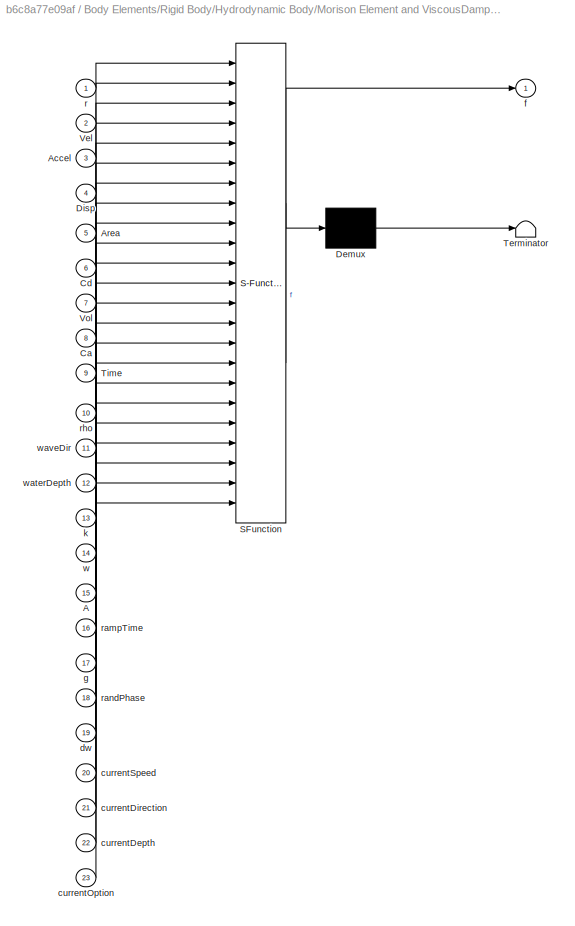
BLOCK [SubSystem] Body Elements/Rigid Body/Hydrodynamic Body/Morison Element and ViscousDampingForceCalculation/Morison Element Variant Subsystem/Morison Element On/Irregular Wave Morison Force/MorrisonElement(s) 
  ErrorFcn = Stateflow.Translate.translate
  PermitHierarchicalResolution = ExplicitOnly
  Ports = [23, 1]
  RequestExecContextInheritance = off
  SFBlockType = MATLAB Function
  TreatAsAtomicUnit = on
BLOCK [Demux] Body Elements/Rigid Body/Hydrodynamic Body/Morison Element and ViscousDampingForceCalculation/Morison Element Variant Subsystem/Morison Element On/Irregular Wave Morison Force/MorrisonElement(s) / Demux 
  Outputs = 1
  Ports = [1, 1]
BLOCK [S-Function] Body Elements/Rigid Body/Hydrodynamic Body/Morison Element and ViscousDampingForceCalculation/Morison Element Variant Subsystem/Morison Element On/Irregular Wave Morison Force/MorrisonElement(s) / SFunction 
  EnableBusSupport = off
  FunctionName = sf_sfun
  PortCounts = [23 2]
  Ports = [23, 2]
  SFunctionDeploymentMode = off
  Tag = Stateflow S-Function 8
BLOCK [Terminator] Body Elements/Rigid Body/Hydrodynamic Body/Morison Element and ViscousDampingForceCalculation/Morison Element Variant Subsystem/Morison Element On/Irregular Wave Morison Force/MorrisonElement(s) / Terminator 
BLOCK [Inport] Body Elements/Rigid Body/Hydrodynamic Body/Morison Element and ViscousDampingForceCalculation/Morison Element Variant Subsystem/Morison Element On/Irregular Wave Morison Force/MorrisonElement(s) /A
  Port = 15
BLOCK [Inport] Body Elements/Rigid Body/Hydrodynamic Body/Morison Element and ViscousDampingForceCalculation/Morison Element Variant Subsystem/Morison Element On/Irregular Wave Morison Force/MorrisonElement(s) /Accel
  Port = 3
BLOCK [Inport] Body Elements/Rigid Body/Hydrodynamic Body/Morison Element and ViscousDampingForceCalculation/Morison Element Variant Subsystem/Morison Element On/Irregular Wave Morison Force/MorrisonElement(s) /Area
  Port = 5
BLOCK [Inport] Body Elements/Rigid Body/Hydrodynamic Body/Morison Element and ViscousDampingForceCalculation/Morison Element Variant Subsystem/Morison Element On/Irregular Wave Morison Force/MorrisonElement(s) /Ca
  Port = 8
BLOCK [Inport] Body Elements/Rigid Body/Hydrodynamic Body/Morison Element and ViscousDampingForceCalculation/Morison Element Variant Subsystem/Morison Element On/Irregular Wave Morison Force/MorrisonElement(s) /Cd
  Port = 6
BLOCK [Inport] Body Elements/Rigid Body/Hydrodynamic Body/Morison Element and ViscousDampingForceCalculation/Morison Element Variant Subsystem/Morison Element On/Irregular Wave Morison Force/MorrisonElement(s) /Disp
  Port = 4
BLOCK [Inport] Body Elements/Rigid Body/Hydrodynamic Body/Morison Element and ViscousDampingForceCalculation/Morison Element Variant Subsystem/Morison Element On/Irregular Wave Morison Force/MorrisonElement(s) /Time
  Port = 9
BLOCK [Inport] Body Elements/Rigid Body/Hydrodynamic Body/Morison Element and ViscousDampingForceCalculation/Morison Element Variant Subsystem/Morison Element On/Irregular Wave Morison Force/MorrisonElement(s) /Vel
  Port = 2
BLOCK [Inport] Body Elements/Rigid Body/Hydrodynamic Body/Morison Element and ViscousDampingForceCalculation/Morison Element Variant Subsystem/Morison Element On/Irregular Wave Morison Force/MorrisonElement(s) /Vol
  Port = 7
BLOCK [Inport] Body Elements/Rigid Body/Hydrodynamic Body/Morison Element and ViscousDampingForceCalculation/Morison Element Variant Subsystem/Morison Element On/Irregular Wave Morison Force/MorrisonElement(s) /currentDepth
  Port = 22
BLOCK [Inport] Body Elements/Rigid Body/Hydrodynamic Body/Morison Element and ViscousDampingForceCalculation/Morison Element Variant Subsystem/Morison Element On/Irregular Wave Morison Force/MorrisonElement(s) /currentDirection
  Port = 21
BLOCK [Inport] Body Elements/Rigid Body/Hydrodynamic Body/Morison Element and ViscousDampingForceCalculation/Morison Element Variant Subsystem/Morison Element On/Irregular Wave Morison Force/MorrisonElement(s) /currentOption
  Port = 23
BLOCK [Inport] Body Elements/Rigid Body/Hydrodynamic Body/Morison Element and ViscousDampingForceCalculation/Morison Element Variant Subsystem/Morison Element On/Irregular Wave Morison Force/MorrisonElement(s) /currentSpeed
  Port = 20
BLOCK [Inport] Body Elements/Rigid Body/Hydrodynamic Body/Morison Element and ViscousDampingForceCalculation/Morison Element Variant Subsystem/Morison Element On/Irregular Wave Morison Force/MorrisonElement(s) /dw
  Port = 19
BLOCK [Outport] Body Elements/Rigid Body/Hydrodynamic Body/Morison Element and ViscousDampingForceCalculation/Morison Element Variant Subsystem/Morison Element On/Irregular Wave Morison Force/MorrisonElement(s) /f
BLOCK [Inport] Body Elements/Rigid Body/Hydrodynamic Body/Morison Element and ViscousDampingForceCalculation/Morison Element Variant Subsystem/Morison Element On/Irregular Wave Morison Force/MorrisonElement(s) /g
  Port = 17
BLOCK [Inport] Body Elements/Rigid Body/Hydrodynamic Body/Morison Element and ViscousDampingForceCalculation/Morison Element Variant Subsystem/Morison Element On/Irregular Wave Morison Force/MorrisonElement(s) /k
  Port = 13
BLOCK [Inport] Body Elements/Rigid Body/Hydrodynamic Body/Morison Element and ViscousDampingForceCalculation/Morison Element Variant Subsystem/Morison Element On/Irregular Wave Morison Force/MorrisonElement(s) /r
BLOCK [Inport] Body Elements/Rigid Body/Hydrodynamic Body/Morison Element and ViscousDampingForceCalculation/Morison Element Variant Subsystem/Morison Element On/Irregular Wave Morison Force/MorrisonElement(s) /rampTime
  Port = 16
BLOCK [Inport] Body Elements/Rigid Body/Hydrodynamic Body/Morison Element and ViscousDampingForceCalculation/Morison Element Variant Subsystem/Morison Element On/Irregular Wave Morison Force/MorrisonElement(s) /randPhase
  Port = 18
BLOCK [Inport] Body Elements/Rigid Body/Hydrodynamic Body/Morison Element and ViscousDampingForceCalculation/Morison Element Variant Subsystem/Morison Element On/Irregular Wave Morison Force/MorrisonElement(s) /rho
  Port = 10
BLOCK [Inport] Body Elements/Rigid Body/Hydrodynamic Body/Morison Element and ViscousDampingForceCalculation/Morison Element Variant Subsystem/Morison Element On/Irregular Wave Morison Force/MorrisonElement(s) /w
  Port = 14
BLOCK [Inport] Body Elements/Rigid Body/Hydrodynamic Body/Morison Element and ViscousDampingForceCalculation/Morison Element Variant Subsystem/Morison Element On/Irregular Wave Morison Force/MorrisonElement(s) /waterDepth
  Port = 12
BLOCK [Inport] Body Elements/Rigid Body/Hydrodynamic Body/Morison Element and ViscousDampingForceCalculation/Morison Element Variant Subsystem/Morison Element On/Irregular Wave Morison Force/MorrisonElement(s) /waveDir
  Port = 11
BLOCK [Constant] Body Elements/Rigid Body/Hydrodynamic Body/Morison Element and ViscousDampingForceCalculation/Morison Element Variant Subsystem/Morison Element On/Irregular Wave Morison Force/Ramp Function Time
  Value = simu.rampTime
BLOCK [Constant] Body Elements/Rigid Body/Hydrodynamic Body/Morison Element and ViscousDampingForceCalculation/Morison Element Variant Subsystem/Morison Element On/Irregular Wave Morison Force/RandomPhaseAngle
  Value = waves.phase
  VectorParams1D = off
BLOCK [Constant] Body Elements/Rigid Body/Hydrodynamic Body/Morison Element and ViscousDampingForceCalculation/Morison Element Variant Subsystem/Morison Element On/Irregular Wave Morison Force/Volume
  Value = body.morisonElement.VME
  VectorParams1D = off
BLOCK [Constant] Body Elements/Rigid Body/Hydrodynamic Body/Morison Element and ViscousDampingForceCalculation/Morison Element Variant Subsystem/Morison Element On/Irregular Wave Morison Force/WaterDepth
  Value = waves.waterDepth
BLOCK [Constant] Body Elements/Rigid Body/Hydrodynamic Body/Morison Element and ViscousDampingForceCalculation/Morison Element Variant Subsystem/Morison Element On/Irregular Wave Morison Force/WaveAmp
  Value = waves.A
BLOCK [Constant] Body Elements/Rigid Body/Hydrodynamic Body/Morison Element and ViscousDampingForceCalculation/Morison Element Variant Subsystem/Morison Element On/Irregular Wave Morison Force/WaveFreq
  Value = waves.w
BLOCK [Constant] Body Elements/Rigid Body/Hydrodynamic Body/Morison Element and ViscousDampingForceCalculation/Morison Element Variant Subsystem/Morison Element On/Irregular Wave Morison Force/WaveHeading
  Value = waves.waveDir
BLOCK [Constant] Body Elements/Rigid Body/Hydrodynamic Body/Morison Element and ViscousDampingForceCalculation/Morison Element Variant Subsystem/Morison Element On/Irregular Wave Morison Force/WaveNumber
  Value = waves.k
BLOCK [Inport] Body Elements/Rigid Body/Hydrodynamic Body/Morison Element and ViscousDampingForceCalculation/Morison Element Variant Subsystem/Morison Element On/Irregular Wave Morison Force/acceleration
  Port = 3
BLOCK [Inport] Body Elements/Rigid Body/Hydrodynamic Body/Morison Element and ViscousDampingForceCalculation/Morison Element Variant Subsystem/Morison Element On/Irregular Wave Morison Force/displacement
BLOCK [Constant] Body Elements/Rigid Body/Hydrodynamic Body/Morison Element and ViscousDampingForceCalculation/Morison Element Variant Subsystem/Morison Element On/Irregular Wave Morison Force/dw
  Value = waves.dw
  VectorParams1D = off
BLOCK [Outport] Body Elements/Rigid Body/Hydrodynamic Body/Morison Element and ViscousDampingForceCalculation/Morison Element Variant Subsystem/Morison Element On/Irregular Wave Morison Force/morison_force
BLOCK [Constant] Body Elements/Rigid Body/Hydrodynamic Body/Morison Element and ViscousDampingForceCalculation/Morison Element Variant Subsystem/Morison Element On/Irregular Wave Morison Force/r_{g}
  Value = body.morisonElement.rgME
  VectorParams1D = off
BLOCK [Inport] Body Elements/Rigid Body/Hydrodynamic Body/Morison Element and ViscousDampingForceCalculation/Morison Element Variant Subsystem/Morison Element On/Irregular Wave Morison Force/time
  Port = 4
BLOCK [Inport] Body Elements/Rigid Body/Hydrodynamic Body/Morison Element and ViscousDampingForceCalculation/Morison Element Variant Subsystem/Morison Element On/Irregular Wave Morison Force/velocity
  Port = 2
BLOCK [SubSystem] Body Elements/Rigid Body/Hydrodynamic Body/Morison Element and ViscousDampingForceCalculation/Morison Element Variant Subsystem/Morison Element On/No Wave Morison Force
  Ports = [4, 1]
  RequestExecContextInheritance = off
  VariantControl = sv_noWave
BLOCK [Constant] Body Elements/Rigid Body/Hydrodynamic Body/Morison Element and ViscousDampingForceCalculation/Morison Element Variant Subsystem/Morison Element On/No Wave Morison Force/Area
  Value = body.morisonElement.characteristicArea
  VectorParams1D = off
BLOCK [Constant] Body Elements/Rigid Body/Hydrodynamic Body/Morison Element and ViscousDampingForceCalculation/Morison Element Variant Subsystem/Morison Element On/No Wave Morison Force/Ca
  Value = body.morisonElement.ca
  VectorParams1D = off
BLOCK [Constant] Body Elements/Rigid Body/Hydrodynamic Body/Morison Element and ViscousDampingForceCalculation/Morison Element Variant Subsystem/Morison Element On/No Wave Morison Force/Cd
  Value = body.morisonElement.cd
  VectorParams1D = off
BLOCK [Constant] Body Elements/Rigid Body/Hydrodynamic Body/Morison Element and ViscousDampingForceCalculation/Morison Element Variant Subsystem/Morison Element On/No Wave Morison Force/Current Depth
  Value = waves.currentDepth
BLOCK [Constant] Body Elements/Rigid Body/Hydrodynamic Body/Morison Element and ViscousDampingForceCalculation/Morison Element Variant Subsystem/Morison Element On/No Wave Morison Force/Current Direction
  Value = waves.currentDirection
BLOCK [Constant] Body Elements/Rigid Body/Hydrodynamic Body/Morison Element and ViscousDampingForceCalculation/Morison Element Variant Subsystem/Morison Element On/No Wave Morison Force/Current Option
  Value = waves.currentOption
BLOCK [Constant] Body Elements/Rigid Body/Hydrodynamic Body/Morison Element and ViscousDampingForceCalculation/Morison Element Variant Subsystem/Morison Element On/No Wave Morison Force/Current Speed
  Value = waves.currentSpeed
BLOCK [Constant] Body Elements/Rigid Body/Hydrodynamic Body/Morison Element and ViscousDampingForceCalculation/Morison Element Variant Subsystem/Morison Element On/No Wave Morison Force/Density
  Value = simu.rho
BLOCK [SubSystem] Body Elements/Rigid Body/Hydrodynamic Body/Morison Element and ViscousDampingForceCalculation/Morison Element Variant Subsystem/Morison Element On/No Wave Morison Force/MorrisonElement(s) 
  ErrorFcn = Stateflow.Translate.translate
  PermitHierarchicalResolution = ExplicitOnly
  Ports = [15, 1]
  RequestExecContextInheritance = off
  SFBlockType = MATLAB Function
  TreatAsAtomicUnit = on
BLOCK [Demux] Body Elements/Rigid Body/Hydrodynamic Body/Morison Element and ViscousDampingForceCalculation/Morison Element Variant Subsystem/Morison Element On/No Wave Morison Force/MorrisonElement(s) / Demux 
  Outputs = 1
  Ports = [1, 1]
BLOCK [S-Function] Body Elements/Rigid Body/Hydrodynamic Body/Morison Element and ViscousDampingForceCalculation/Morison Element Variant Subsystem/Morison Element On/No Wave Morison Force/MorrisonElement(s) / SFunction 
  EnableBusSupport = off
  FunctionName = sf_sfun
  PortCounts = [15 2]
  Ports = [15, 2]
  SFunctionDeploymentMode = off
  Tag = Stateflow S-Function 4
BLOCK [Terminator] Body Elements/Rigid Body/Hydrodynamic Body/Morison Element and ViscousDampingForceCalculation/Morison Element Variant Subsystem/Morison Element On/No Wave Morison Force/MorrisonElement(s) / Terminator 
BLOCK [Inport] Body Elements/Rigid Body/Hydrodynamic Body/Morison Element and ViscousDampingForceCalculation/Morison Element Variant Subsystem/Morison Element On/No Wave Morison Force/MorrisonElement(s) /Accel
  Port = 3
BLOCK [Inport] Body Elements/Rigid Body/Hydrodynamic Body/Morison Element and ViscousDampingForceCalculation/Morison Element Variant Subsystem/Morison Element On/No Wave Morison Force/MorrisonElement(s) /Area
  Port = 5
BLOCK [Inport] Body Elements/Rigid Body/Hydrodynamic Body/Morison Element and ViscousDampingForceCalculation/Morison Element Variant Subsystem/Morison Element On/No Wave Morison Force/MorrisonElement(s) /Ca
  Port = 8
BLOCK [Inport] Body Elements/Rigid Body/Hydrodynamic Body/Morison Element and ViscousDampingForceCalculation/Morison Element Variant Subsystem/Morison Element On/No Wave Morison Force/MorrisonElement(s) /Cd
  Port = 6
BLOCK [Inport] Body Elements/Rigid Body/Hydrodynamic Body/Morison Element and ViscousDampingForceCalculation/Morison Element Variant Subsystem/Morison Element On/No Wave Morison Force/MorrisonElement(s) /Disp
  Port = 4
BLOCK [Inport] Body Elements/Rigid Body/Hydrodynamic Body/Morison Element and ViscousDampingForceCalculation/Morison Element Variant Subsystem/Morison Element On/No Wave Morison Force/MorrisonElement(s) /Time
  Port = 12
BLOCK [Inport] Body Elements/Rigid Body/Hydrodynamic Body/Morison Element and ViscousDampingForceCalculation/Morison Element Variant Subsystem/Morison Element On/No Wave Morison Force/MorrisonElement(s) /Vel
  Port = 2
BLOCK [Inport] Body Elements/Rigid Body/Hydrodynamic Body/Morison Element and ViscousDampingForceCalculation/Morison Element Variant Subsystem/Morison Element On/No Wave Morison Force/MorrisonElement(s) /Vol
  Port = 7
BLOCK [Inport] Body Elements/Rigid Body/Hydrodynamic Body/Morison Element and ViscousDampingForceCalculation/Morison Element Variant Subsystem/Morison Element On/No Wave Morison Force/MorrisonElement(s) /currentDepth
  Port = 14
BLOCK [Inport] Body Elements/Rigid Body/Hydrodynamic Body/Morison Element and ViscousDampingForceCalculation/Morison Element Variant Subsystem/Morison Element On/No Wave Morison Force/MorrisonElement(s) /currentDirection
  Port = 11
BLOCK [Inport] Body Elements/Rigid Body/Hydrodynamic Body/Morison Element and ViscousDampingForceCalculation/Morison Element Variant Subsystem/Morison Element On/No Wave Morison Force/MorrisonElement(s) /currentOption
  Port = 15
BLOCK [Inport] Body Elements/Rigid Body/Hydrodynamic Body/Morison Element and ViscousDampingForceCalculation/Morison Element Variant Subsystem/Morison Element On/No Wave Morison Force/MorrisonElement(s) /currentSpeed
  Port = 10
BLOCK [Outport] Body Elements/Rigid Body/Hydrodynamic Body/Morison Element and ViscousDampingForceCalculation/Morison Element Variant Subsystem/Morison Element On/No Wave Morison Force/MorrisonElement(s) /f
BLOCK [Inport] Body Elements/Rigid Body/Hydrodynamic Body/Morison Element and ViscousDampingForceCalculation/Morison Element Variant Subsystem/Morison Element On/No Wave Morison Force/MorrisonElement(s) /r
BLOCK [Inport] Body Elements/Rigid Body/Hydrodynamic Body/Morison Element and ViscousDampingForceCalculation/Morison Element Variant Subsystem/Morison Element On/No Wave Morison Force/MorrisonElement(s) /rampTime
  Port = 13
BLOCK [Inport] Body Elements/Rigid Body/Hydrodynamic Body/Morison Element and ViscousDampingForceCalculation/Morison Element Variant Subsystem/Morison Element On/No Wave Morison Force/MorrisonElement(s) /rho
  Port = 9
BLOCK [Constant] Body Elements/Rigid Body/Hydrodynamic Body/Morison Element and ViscousDampingForceCalculation/Morison Element Variant Subsystem/Morison Element On/No Wave Morison Force/Ramp Function Time
  Value = simu.rampTime
BLOCK [Constant] Body Elements/Rigid Body/Hydrodynamic Body/Morison Element and ViscousDampingForceCalculation/Morison Element Variant Subsystem/Morison Element On/No Wave Morison Force/Volume
  Value = body.morisonElement.VME
  VectorParams1D = off
BLOCK [Inport] Body Elements/Rigid Body/Hydrodynamic Body/Morison Element and ViscousDampingForceCalculation/Morison Element Variant Subsystem/Morison Element On/No Wave Morison Force/acceleration
  Port = 3
BLOCK [Inport] Body Elements/Rigid Body/Hydrodynamic Body/Morison Element and ViscousDampingForceCalculation/Morison Element Variant Subsystem/Morison Element On/No Wave Morison Force/displacement
BLOCK [Outport] Body Elements/Rigid Body/Hydrodynamic Body/Morison Element and ViscousDampingForceCalculation/Morison Element Variant Subsystem/Morison Element On/No Wave Morison Force/morison_force
BLOCK [Constant] Body Elements/Rigid Body/Hydrodynamic Body/Morison Element and ViscousDampingForceCalculation/Morison Element Variant Subsystem/Morison Element On/No Wave Morison Force/r_{g}
  Value = body.morisonElement.rgME
  VectorParams1D = off
BLOCK [Inport] Body Elements/Rigid Body/Hydrodynamic Body/Morison Element and ViscousDampingForceCalculation/Morison Element Variant Subsystem/Morison Element On/No Wave Morison Force/time
  Port = 4
BLOCK [Inport] Body Elements/Rigid Body/Hydrodynamic Body/Morison Element and ViscousDampingForceCalculation/Morison Element Variant Subsystem/Morison Element On/No Wave Morison Force/velocity
  Port = 2
BLOCK [SubSystem] Body Elements/Rigid Body/Hydrodynamic Body/Morison Element and ViscousDampingForceCalculation/Morison Element Variant Subsystem/Morison Element On/Regular Wave Morison Force
  Ports = [4, 1]
  RequestExecContextInheritance = off
  SystemSampleTime = simu.dtME
  TreatAsAtomicUnit = on
  VariantControl = sv_regularWaves
BLOCK [Constant] Body Elements/Rigid Body/Hydrodynamic Body/Morison Element and ViscousDampingForceCalculation/Morison Element Variant Subsystem/Morison Element On/Regular Wave Morison Force/Area
  Value = body.morisonElement.characteristicArea
  VectorParams1D = off
BLOCK [Constant] Body Elements/Rigid Body/Hydrodynamic Body/Morison Element and ViscousDampingForceCalculation/Morison Element Variant Subsystem/Morison Element On/Regular Wave Morison Force/Ca
  Value = body.morisonElement.ca
  VectorParams1D = off
BLOCK [Constant] Body Elements/Rigid Body/Hydrodynamic Body/Morison Element and ViscousDampingForceCalculation/Morison Element Variant Subsystem/Morison Element On/Regular Wave Morison Force/Cd
  Value = body.morisonElement.cd
  VectorParams1D = off
BLOCK [Constant] Body Elements/Rigid Body/Hydrodynamic Body/Morison Element and ViscousDampingForceCalculation/Morison Element Variant Subsystem/Morison Element On/Regular Wave Morison Force/Current Depth
  Value = waves.currentDepth
BLOCK [Constant] Body Elements/Rigid Body/Hydrodynamic Body/Morison Element and ViscousDampingForceCalculation/Morison Element Variant Subsystem/Morison Element On/Regular Wave Morison Force/Current Direction
  Value = waves.currentDirection
BLOCK [Constant] Body Elements/Rigid Body/Hydrodynamic Body/Morison Element and ViscousDampingForceCalculation/Morison Element Variant Subsystem/Morison Element On/Regular Wave Morison Force/Current Option
  Value = waves.currentOption
BLOCK [Constant] Body Elements/Rigid Body/Hydrodynamic Body/Morison Element and ViscousDampingForceCalculation/Morison Element Variant Subsystem/Morison Element On/Regular Wave Morison Force/Current Speed
  Value = waves.currentSpeed
BLOCK [Constant] Body Elements/Rigid Body/Hydrodynamic Body/Morison Element and ViscousDampingForceCalculation/Morison Element Variant Subsystem/Morison Element On/Regular Wave Morison Force/Density
  Value = simu.rho
BLOCK [Constant] Body Elements/Rigid Body/Hydrodynamic Body/Morison Element and ViscousDampingForceCalculation/Morison Element Variant Subsystem/Morison Element On/Regular Wave Morison Force/Gravity
  Value = simu.g
BLOCK [SubSystem] Body Elements/Rigid Body/Hydrodynamic Body/Morison Element and ViscousDampingForceCalculation/Morison Element Variant Subsystem/Morison Element On/Regular Wave Morison Force/MorrisonElement(s) 
  ErrorFcn = Stateflow.Translate.translate
  PermitHierarchicalResolution = ExplicitOnly
  Ports = [21, 1]
  RequestExecContextInheritance = off
  SFBlockType = MATLAB Function
  TreatAsAtomicUnit = on
BLOCK [Demux] Body Elements/Rigid Body/Hydrodynamic Body/Morison Element and ViscousDampingForceCalculation/Morison Element Variant Subsystem/Morison Element On/Regular Wave Morison Force/MorrisonElement(s) / Demux 
  Outputs = 1
  Ports = [1, 1]
BLOCK [S-Function] Body Elements/Rigid Body/Hydrodynamic Body/Morison Element and ViscousDampingForceCalculation/Morison Element Variant Subsystem/Morison Element On/Regular Wave Morison Force/MorrisonElement(s) / SFunction 
  EnableBusSupport = off
  FunctionName = sf_sfun
  PortCounts = [21 2]
  Ports = [21, 2]
  SFunctionDeploymentMode = off
  Tag = Stateflow S-Function 5
BLOCK [Terminator] Body Elements/Rigid Body/Hydrodynamic Body/Morison Element and ViscousDampingForceCalculation/Morison Element Variant Subsystem/Morison Element On/Regular Wave Morison Force/MorrisonElement(s) / Terminator 
BLOCK [Inport] Body Elements/Rigid Body/Hydrodynamic Body/Morison Element and ViscousDampingForceCalculation/Morison Element Variant Subsystem/Morison Element On/Regular Wave Morison Force/MorrisonElement(s) /A
  Port = 15
BLOCK [Inport] Body Elements/Rigid Body/Hydrodynamic Body/Morison Element and ViscousDampingForceCalculation/Morison Element Variant Subsystem/Morison Element On/Regular Wave Morison Force/MorrisonElement(s) /Accel
  Port = 3
BLOCK [Inport] Body Elements/Rigid Body/Hydrodynamic Body/Morison Element and ViscousDampingForceCalculation/Morison Element Variant Subsystem/Morison Element On/Regular Wave Morison Force/MorrisonElement(s) /Area
  Port = 5
BLOCK [Inport] Body Elements/Rigid Body/Hydrodynamic Body/Morison Element and ViscousDampingForceCalculation/Morison Element Variant Subsystem/Morison Element On/Regular Wave Morison Force/MorrisonElement(s) /Ca
  Port = 8
BLOCK [Inport] Body Elements/Rigid Body/Hydrodynamic Body/Morison Element and ViscousDampingForceCalculation/Morison Element Variant Subsystem/Morison Element On/Regular Wave Morison Force/MorrisonElement(s) /Cd
  Port = 6
BLOCK [Inport] Body Elements/Rigid Body/Hydrodynamic Body/Morison Element and ViscousDampingForceCalculation/Morison Element Variant Subsystem/Morison Element On/Regular Wave Morison Force/MorrisonElement(s) /Disp
  Port = 4
BLOCK [Inport] Body Elements/Rigid Body/Hydrodynamic Body/Morison Element and ViscousDampingForceCalculation/Morison Element Variant Subsystem/Morison Element On/Regular Wave Morison Force/MorrisonElement(s) /Time
  Port = 9
BLOCK [Inport] Body Elements/Rigid Body/Hydrodynamic Body/Morison Element and ViscousDampingForceCalculation/Morison Element Variant Subsystem/Morison Element On/Regular Wave Morison Force/MorrisonElement(s) /Vel
  Port = 2
BLOCK [Inport] Body Elements/Rigid Body/Hydrodynamic Body/Morison Element and ViscousDampingForceCalculation/Morison Element Variant Subsystem/Morison Element On/Regular Wave Morison Force/MorrisonElement(s) /Vol
  Port = 7
BLOCK [Inport] Body Elements/Rigid Body/Hydrodynamic Body/Morison Element and ViscousDampingForceCalculation/Morison Element Variant Subsystem/Morison Element On/Regular Wave Morison Force/MorrisonElement(s) /currentDepth
  Port = 20
BLOCK [Inport] Body Elements/Rigid Body/Hydrodynamic Body/Morison Element and ViscousDampingForceCalculation/Morison Element Variant Subsystem/Morison Element On/Regular Wave Morison Force/MorrisonElement(s) /currentDirection
  Port = 19
BLOCK [Inport] Body Elements/Rigid Body/Hydrodynamic Body/Morison Element and ViscousDampingForceCalculation/Morison Element Variant Subsystem/Morison Element On/Regular Wave Morison Force/MorrisonElement(s) /currentOption
  Port = 21
BLOCK [Inport] Body Elements/Rigid Body/Hydrodynamic Body/Morison Element and ViscousDampingForceCalculation/Morison Element Variant Subsystem/Morison Element On/Regular Wave Morison Force/MorrisonElement(s) /currentSpeed
  Port = 18
BLOCK [Outport] Body Elements/Rigid Body/Hydrodynamic Body/Morison Element and ViscousDampingForceCalculation/Morison Element Variant Subsystem/Morison Element On/Regular Wave Morison Force/MorrisonElement(s) /f
BLOCK [Inport] Body Elements/Rigid Body/Hydrodynamic Body/Morison Element and ViscousDampingForceCalculation/Morison Element Variant Subsystem/Morison Element On/Regular Wave Morison Force/MorrisonElement(s) /g
  Port = 17
BLOCK [Inport] Body Elements/Rigid Body/Hydrodynamic Body/Morison Element and ViscousDampingForceCalculation/Morison Element Variant Subsystem/Morison Element On/Regular Wave Morison Force/MorrisonElement(s) /k
  Port = 13
BLOCK [Inport] Body Elements/Rigid Body/Hydrodynamic Body/Morison Element and ViscousDampingForceCalculation/Morison Element Variant Subsystem/Morison Element On/Regular Wave Morison Force/MorrisonElement(s) /r
BLOCK [Inport] Body Elements/Rigid Body/Hydrodynamic Body/Morison Element and ViscousDampingForceCalculation/Morison Element Variant Subsystem/Morison Element On/Regular Wave Morison Force/MorrisonElement(s) /rampTime
  Port = 16
BLOCK [Inport] Body Elements/Rigid Body/Hydrodynamic Body/Morison Element and ViscousDampingForceCalculation/Morison Element Variant Subsystem/Morison Element On/Regular Wave Morison Force/MorrisonElement(s) /rho
  Port = 10
BLOCK [Inport] Body Elements/Rigid Body/Hydrodynamic Body/Morison Element and ViscousDampingForceCalculation/Morison Element Variant Subsystem/Morison Element On/Regular Wave Morison Force/MorrisonElement(s) /w
  Port = 14
BLOCK [Inport] Body Elements/Rigid Body/Hydrodynamic Body/Morison Element and ViscousDampingForceCalculation/Morison Element Variant Subsystem/Morison Element On/Regular Wave Morison Force/MorrisonElement(s) /waterDepth
  Port = 12
BLOCK [Inport] Body Elements/Rigid Body/Hydrodynamic Body/Morison Element and ViscousDampingForceCalculation/Morison Element Variant Subsystem/Morison Element On/Regular Wave Morison Force/MorrisonElement(s) /waveDir
  Port = 11
BLOCK [Constant] Body Elements/Rigid Body/Hydrodynamic Body/Morison Element and ViscousDampingForceCalculation/Morison Element Variant Subsystem/Morison Element On/Regular Wave Morison Force/Ramp Function Time
  Value = simu.rampTime
BLOCK [Constant] Body Elements/Rigid Body/Hydrodynamic Body/Morison Element and ViscousDampingForceCalculation/Morison Element Variant Subsystem/Morison Element On/Regular Wave Morison Force/Volume
  Value = body.morisonElement.VME
  VectorParams1D = off
BLOCK [Constant] Body Elements/Rigid Body/Hydrodynamic Body/Morison Element and ViscousDampingForceCalculation/Morison Element Variant Subsystem/Morison Element On/Regular Wave Morison Force/WaterDepth
  Value = waves.waterDepth
BLOCK [Constant] Body Elements/Rigid Body/Hydrodynamic Body/Morison Element and ViscousDampingForceCalculation/Morison Element Variant Subsystem/Morison Element On/Regular Wave Morison Force/WaveAmp
  Value = waves.A
BLOCK [Constant] Body Elements/Rigid Body/Hydrodynamic Body/Morison Element and ViscousDampingForceCalculation/Morison Element Variant Subsystem/Morison Element On/Regular Wave Morison Force/WaveFreq
  Value = waves.w
BLOCK [Constant] Body Elements/Rigid Body/Hydrodynamic Body/Morison Element and ViscousDampingForceCalculation/Morison Element Variant Subsystem/Morison Element On/Regular Wave Morison Force/WaveHeading
  Value = waves.waveDir
BLOCK [Constant] Body Elements/Rigid Body/Hydrodynamic Body/Morison Element and ViscousDampingForceCalculation/Morison Element Variant Subsystem/Morison Element On/Regular Wave Morison Force/WaveNumber
  Value = waves.k
BLOCK [Inport] Body Elements/Rigid Body/Hydrodynamic Body/Morison Element and ViscousDampingForceCalculation/Morison Element Variant Subsystem/Morison Element On/Regular Wave Morison Force/acceleration
  Port = 3
BLOCK [Inport] Body Elements/Rigid Body/Hydrodynamic Body/Morison Element and ViscousDampingForceCalculation/Morison Element Variant Subsystem/Morison Element On/Regular Wave Morison Force/displacement
BLOCK [Outport] Body Elements/Rigid Body/Hydrodynamic Body/Morison Element and ViscousDampingForceCalculation/Morison Element Variant Subsystem/Morison Element On/Regular Wave Morison Force/morison_force
BLOCK [Constant] Body Elements/Rigid Body/Hydrodynamic Body/Morison Element and ViscousDampingForceCalculation/Morison Element Variant Subsystem/Morison Element On/Regular Wave Morison Force/r_{g}
  Value = body.morisonElement.rgME
  VectorParams1D = off
BLOCK [Inport] Body Elements/Rigid Body/Hydrodynamic Body/Morison Element and ViscousDampingForceCalculation/Morison Element Variant Subsystem/Morison Element On/Regular Wave Morison Force/time
  Port = 4
BLOCK [Inport] Body Elements/Rigid Body/Hydrodynamic Body/Morison Element and ViscousDampingForceCalculation/Morison Element Variant Subsystem/Morison Element On/Regular Wave Morison Force/velocity
  Port = 2
BLOCK [Inport] Body Elements/Rigid Body/Hydrodynamic Body/Morison Element and ViscousDampingForceCalculation/Morison Element Variant Subsystem/Morison Element On/acceleration
  Port = 3
BLOCK [Inport] Body Elements/Rigid Body/Hydrodynamic Body/Morison Element and ViscousDampingForceCalculation/Morison Element Variant Subsystem/Morison Element On/displacement
BLOCK [Outport] Body Elements/Rigid Body/Hydrodynamic Body/Morison Element and ViscousDampingForceCalculation/Morison Element Variant Subsystem/Morison Element On/morison_force
BLOCK [Inport] Body Elements/Rigid Body/Hydrodynamic Body/Morison Element and ViscousDampingForceCalculation/Morison Element Variant Subsystem/Morison Element On/time
  Port = 4
BLOCK [Inport] Body Elements/Rigid Body/Hydrodynamic Body/Morison Element and ViscousDampingForceCalculation/Morison Element Variant Subsystem/Morison Element On/velocity
  Port = 2
BLOCK [Inport] Body Elements/Rigid Body/Hydrodynamic Body/Morison Element and ViscousDampingForceCalculation/Morison Element Variant Subsystem/acceleration
  Port = 3
BLOCK [Inport] Body Elements/Rigid Body/Hydrodynamic Body/Morison Element and ViscousDampingForceCalculation/Morison Element Variant Subsystem/displacement
BLOCK [Outport] Body Elements/Rigid Body/Hydrodynamic Body/Morison Element and ViscousDampingForceCalculation/Morison Element Variant Subsystem/morison_force
BLOCK [Inport] Body Elements/Rigid Body/Hydrodynamic Body/Morison Element and ViscousDampingForceCalculation/Morison Element Variant Subsystem/time
  Port = 4
BLOCK [Inport] Body Elements/Rigid Body/Hydrodynamic Body/Morison Element and ViscousDampingForceCalculation/Morison Element Variant Subsystem/velocity
  Port = 2
BLOCK [Product] Body Elements/Rigid Body/Hydrodynamic Body/Morison Element and ViscousDampingForceCalculation/Product
  Ports = [2, 1]
BLOCK [Product] Body Elements/Rigid Body/Hydrodynamic Body/Morison Element and ViscousDampingForceCalculation/Product1
  Multiplication = Matrix(*)
  Ports = [2, 1]
BLOCK [Inport] Body Elements/Rigid Body/Hydrodynamic Body/Morison Element and ViscousDampingForceCalculation/Time
  Port = 4
BLOCK [TransportDelay] Body Elements/Rigid Body/Hydrodynamic Body/Morison Element and ViscousDampingForceCalculation/Transport Delay
  DelayTime = 10e-8
  Ports = [1, 1]
BLOCK [Inport] Body Elements/Rigid Body/Hydrodynamic Body/Morison Element and ViscousDampingForceCalculation/Velocity
  Port = 3
BLOCK [Sum] Body Elements/Rigid Body/Hydrodynamic Body/Morison Element and ViscousDampingForceCalculation/VisSum 
  IconShape = rectangular
  Inputs = +-
  Ports = [2, 1]
BLOCK [Constant] Body Elements/Rigid Body/Hydrodynamic Body/Morison Element and ViscousDampingForceCalculation/Viscous Damping Matrix (diagonal) 
  Value = body.hydroForce.visDrag
BLOCK [SubSystem] Body Elements/Rigid Body/Hydrodynamic Body/Nonlinear Wave Elevation
  Ports = [2, 1]
  RequestExecContextInheritance = off
  SystemSampleTime = simu.dtNL
  TreatAsAtomicUnit = on
BLOCK [Sum] Body Elements/Rigid Body/Hydrodynamic Body/Nonlinear Wave Elevation/Add
  IconShape = rectangular
  Inputs = +-
  Ports = [2, 1]
BLOCK [Constant] Body Elements/Rigid Body/Hydrodynamic Body/Nonlinear Wave Elevation/Center of Gravity
  Value = body.cg
BLOCK [Constant] Body Elements/Rigid Body/Hydrodynamic Body/Nonlinear Wave Elevation/Constant
  Value = zeros(1,body.dof-3)
BLOCK [Inport] Body Elements/Rigid Body/Hydrodynamic Body/Nonlinear Wave Elevation/Displacement
BLOCK [SubSystem] Body Elements/Rigid Body/Hydrodynamic Body/Nonlinear Wave Elevation/Linear or Instantaneous Free Surface
  Ports = [2, 1]
  RequestExecContextInheritance = off
  Variant = on
BLOCK [Inport] Body Elements/Rigid Body/Hydrodynamic Body/Nonlinear Wave Elevation/Linear or Instantaneous Free Surface/In1
BLOCK [Inport] Body Elements/Rigid Body/Hydrodynamic Body/Nonlinear Wave Elevation/Linear or Instantaneous Free Surface/In2
  Port = 2
BLOCK [SubSystem] Body Elements/Rigid Body/Hydrodynamic Body/Nonlinear Wave Elevation/Linear or Instantaneous Free Surface/Instantaneous Water Free Surface  
  Ports = [2, 1]
  RequestExecContextInheritance = off
  VariantControl = sv_instFS
BLOCK [Constant] Body Elements/Rigid Body/Hydrodynamic Body/Nonlinear Wave Elevation/Linear or Instantaneous Free Surface/Instantaneous Water Free Surface  /Center of Gravity
  Value = body.cg
BLOCK [Constant] Body Elements/Rigid Body/Hydrodynamic Body/Nonlinear Wave Elevation/Linear or Instantaneous Free Surface/Instantaneous Water Free Surface  /Frequency Spacing
  Value = waves.dw
BLOCK [Inport] Body Elements/Rigid Body/Hydrodynamic Body/Nonlinear Wave Elevation/Linear or Instantaneous Free Surface/Instantaneous Water Free Surface  /In1
BLOCK [Inport] Body Elements/Rigid Body/Hydrodynamic Body/Nonlinear Wave Elevation/Linear or Instantaneous Free Surface/Instantaneous Water Free Surface  /In2
  Port = 2
BLOCK [SubSystem] Body Elements/Rigid Body/Hydrodynamic Body/Nonlinear Wave Elevation/Linear or Instantaneous Free Surface/Instantaneous Water Free Surface  /Instantaneous FS
  ErrorFcn = Stateflow.Translate.translate
  PermitHierarchicalResolution = ExplicitOnly
  Ports = [12, 1]
  RequestExecContextInheritance = off
  SFBlockType = MATLAB Function
  TreatAsAtomicUnit = on
BLOCK [Demux] Body Elements/Rigid Body/Hydrodynamic Body/Nonlinear Wave Elevation/Linear or Instantaneous Free Surface/Instantaneous Water Free Surface  /Instantaneous FS/ Demux 
  Outputs = 1
  Ports = [1, 1]
BLOCK [S-Function] Body Elements/Rigid Body/Hydrodynamic Body/Nonlinear Wave Elevation/Linear or Instantaneous Free Surface/Instantaneous Water Free Surface  /Instantaneous FS/ SFunction 
  EnableBusSupport = off
  FunctionName = sf_sfun
  PortCounts = [12 2]
  Ports = [12, 2]
  SFunctionDeploymentMode = off
  Tag = Stateflow S-Function WECSim_Lib 12
BLOCK [Terminator] Body Elements/Rigid Body/Hydrodynamic Body/Nonlinear Wave Elevation/Linear or Instantaneous Free Surface/Instantaneous Water Free Surface  /Instantaneous FS/ Terminator 
BLOCK [Inport] Body Elements/Rigid Body/Hydrodynamic Body/Nonlinear Wave Elevation/Linear or Instantaneous Free Surface/Instantaneous Water Free Surface  /Instantaneous FS/AH
  Port = 4
BLOCK [Inport] Body Elements/Rigid Body/Hydrodynamic Body/Nonlinear Wave Elevation/Linear or Instantaneous Free Surface/Instantaneous Water Free Surface  /Instantaneous FS/center
  Port = 2
BLOCK [Inport] Body Elements/Rigid Body/Hydrodynamic Body/Nonlinear Wave Elevation/Linear or Instantaneous Free Surface/Instantaneous Water Free Surface  /Instantaneous FS/cg
  Port = 3
BLOCK [Inport] Body Elements/Rigid Body/Hydrodynamic Body/Nonlinear Wave Elevation/Linear or Instantaneous Free Surface/Instantaneous Water Free Surface  /Instantaneous FS/dw
  Port = 6
BLOCK [Outport] Body Elements/Rigid Body/Hydrodynamic Body/Nonlinear Wave Elevation/Linear or Instantaneous Free Surface/Instantaneous Water Free Surface  /Instantaneous FS/f
BLOCK [Inport] Body Elements/Rigid Body/Hydrodynamic Body/Nonlinear Wave Elevation/Linear or Instantaneous Free Surface/Instantaneous Water Free Surface  /Instantaneous FS/k
  Port = 7
BLOCK [Inport] Body Elements/Rigid Body/Hydrodynamic Body/Nonlinear Wave Elevation/Linear or Instantaneous Free Surface/Instantaneous Water Free Surface  /Instantaneous FS/phaseRand
  Port = 11
BLOCK [Inport] Body Elements/Rigid Body/Hydrodynamic Body/Nonlinear Wave Elevation/Linear or Instantaneous Free Surface/Instantaneous Water Free Surface  /Instantaneous FS/rampT
  Port = 10
BLOCK [Inport] Body Elements/Rigid Body/Hydrodynamic Body/Nonlinear Wave Elevation/Linear or Instantaneous Free Surface/Instantaneous Water Free Surface  /Instantaneous FS/t
  Port = 9
BLOCK [Inport] Body Elements/Rigid Body/Hydrodynamic Body/Nonlinear Wave Elevation/Linear or Instantaneous Free Surface/Instantaneous Water Free Surface  /Instantaneous FS/typeNum
  Port = 8
BLOCK [Inport] Body Elements/Rigid Body/Hydrodynamic Body/Nonlinear Wave Elevation/Linear or Instantaneous Free Surface/Instantaneous Water Free Surface  /Instantaneous FS/w
  Port = 5
BLOCK [Inport] Body Elements/Rigid Body/Hydrodynamic Body/Nonlinear Wave Elevation/Linear or Instantaneous Free Surface/Instantaneous Water Free Surface  /Instantaneous FS/waveDir
  Port = 12
BLOCK [Inport] Body Elements/Rigid Body/Hydrodynamic Body/Nonlinear Wave Elevation/Linear or Instantaneous Free Surface/Instantaneous Water Free Surface  /Instantaneous FS/x
BLOCK [Outport] Body Elements/Rigid Body/Hydrodynamic Body/Nonlinear Wave Elevation/Linear or Instantaneous Free Surface/Instantaneous Water Free Surface  /Out1
BLOCK [Constant] Body Elements/Rigid Body/Hydrodynamic Body/Nonlinear Wave Elevation/Linear or Instantaneous Free Surface/Instantaneous Water Free Surface  /Ramp Time
  Value = simu.rampTime
BLOCK [Constant] Body Elements/Rigid Body/Hydrodynamic Body/Nonlinear Wave Elevation/Linear or Instantaneous Free Surface/Instantaneous Water Free Surface  /STL Centers
  Value = body.bodyGeometry.center
BLOCK [Constant] Body Elements/Rigid Body/Hydrodynamic Body/Nonlinear Wave Elevation/Linear or Instantaneous Free Surface/Instantaneous Water Free Surface  /Wave Amplitude
  Value = waves.A
BLOCK [Constant] Body Elements/Rigid Body/Hydrodynamic Body/Nonlinear Wave Elevation/Linear or Instantaneous Free Surface/Instantaneous Water Free Surface  /Wave Direction
  Value = waves.waveDir
BLOCK [Constant] Body Elements/Rigid Body/Hydrodynamic Body/Nonlinear Wave Elevation/Linear or Instantaneous Free Surface/Instantaneous Water Free Surface  /Wave Frequency
  Value = waves.w
BLOCK [Constant] Body Elements/Rigid Body/Hydrodynamic Body/Nonlinear Wave Elevation/Linear or Instantaneous Free Surface/Instantaneous Water Free Surface  /Wave Number
  Value = waves.k
BLOCK [Constant] Body Elements/Rigid Body/Hydrodynamic Body/Nonlinear Wave Elevation/Linear or Instantaneous Free Surface/Instantaneous Water Free Surface  /Wave Random Phase
  Value = waves.phase
BLOCK [Constant] Body Elements/Rigid Body/Hydrodynamic Body/Nonlinear Wave Elevation/Linear or Instantaneous Free Surface/Instantaneous Water Free Surface  /Wave Type Number
  Value = waves.typeNum
BLOCK [SubSystem] Body Elements/Rigid Body/Hydrodynamic Body/Nonlinear Wave Elevation/Linear or Instantaneous Free Surface/Mean Water Free Surface 
  Ports = [0, 1]
  RequestExecContextInheritance = off
  VariantControl = sv_meanFS
BLOCK [Outport] Body Elements/Rigid Body/Hydrodynamic Body/Nonlinear Wave Elevation/Linear or Instantaneous Free Surface/Mean Water Free Surface /Out1
BLOCK [Constant] Body Elements/Rigid Body/Hydrodynamic Body/Nonlinear Wave Elevation/Linear or Instantaneous Free Surface/Mean Water Free Surface /zero
  Value = 0
BLOCK [Outport] Body Elements/Rigid Body/Hydrodynamic Body/Nonlinear Wave Elevation/Linear or Instantaneous Free Surface/Out1
BLOCK [Mux] Body Elements/Rigid Body/Hydrodynamic Body/Nonlinear Wave Elevation/Mux
  DisplayOption = bar
  Inputs = 2
  Ports = [2, 1]
BLOCK [Inport] Body Elements/Rigid Body/Hydrodynamic Body/Nonlinear Wave Elevation/Time
  Port = 2
BLOCK [Outport] Body Elements/Rigid Body/Hydrodynamic Body/Nonlinear Wave Elevation/Wave Elevation
BLOCK [SubSystem] Body Elements/Rigid Body/Hydrodynamic Body/Structure
  Ports = [1, 1, 0, 0, 0, 0, 1]
  RequestExecContextInheritance = off
BLOCK [Reference] Body Elements/Rigid Body/Hydrodynamic Body/Structure/Body Properties  REF=sm_lib/Body Elements/Solid
  Ports = [0, 0, 0, 0, 0, 0, 1]
  SourceBlock = sm_lib/Body Elements/Solid
  SourceType = File Solid
BLOCK [PMIOPort] Body Elements/Rigid Body/Hydrodynamic Body/Structure/Conn Free Surface
  Side = Right
BLOCK [Reference] Body Elements/Rigid Body/Hydrodynamic Body/Structure/External Force and Torque  REF=sm_lib/Forces and
Torques/External Force
and Torque
  Ports = [0, 0, 0, 0, 0, 2, 1]
  SourceBlock = sm_lib/Forces and\nTorques/External Force\nand Torque
  SourceType = External Force\nand Torque
BLOCK [SubSystem] Body Elements/Rigid Body/Hydrodynamic Body/Structure/Motion Sensor
  Ports = [0, 1, 0, 0, 0, 1, 1]
  RequestExecContextInheritance = off
BLOCK [SubSystem] Body Elements/Rigid Body/Hydrodynamic Body/Structure/Motion Sensor/Angle
  ErrorFcn = Stateflow.Translate.translate
  PermitHierarchicalResolution = ExplicitOnly
  Ports = [1, 1]
  RequestExecContextInheritance = off
  SFBlockType = MATLAB Function
  TreatAsAtomicUnit = on
BLOCK [Demux] Body Elements/Rigid Body/Hydrodynamic Body/Structure/Motion Sensor/Angle/ Demux 
  Outputs = 1
  Ports = [1, 1]
BLOCK [S-Function] Body Elements/Rigid Body/Hydrodynamic Body/Structure/Motion Sensor/Angle/ SFunction 
  EnableBusSupport = off
  FunctionName = sf_sfun
  PortCounts = [1 2]
  Ports = [1, 2]
  SFunctionDeploymentMode = off
  Tag = Stateflow S-Function WECSim_Lib 13
BLOCK [Terminator] Body Elements/Rigid Body/Hydrodynamic Body/Structure/Motion Sensor/Angle/ Terminator 
BLOCK [Outport] Body Elements/Rigid Body/Hydrodynamic Body/Structure/Motion Sensor/Angle/E
BLOCK [Inport] Body Elements/Rigid Body/Hydrodynamic Body/Structure/Motion Sensor/Angle/Q
BLOCK [PMIOPort] Body Elements/Rigid Body/Hydrodynamic Body/Structure/Motion Sensor/B
  Port = 2
  Side = Left
BLOCK [BusCreator] Body Elements/Rigid Body/Hydrodynamic Body/Structure/Motion Sensor/Bus Creator
  DisplayOption = bar
  InheritFromInputs = on
  Inputs = 3
  Ports = [3, 1]
BLOCK [PMIOPort] Body Elements/Rigid Body/Hydrodynamic Body/Structure/Motion Sensor/F
  Side = Right
BLOCK [Mux] Body Elements/Rigid Body/Hydrodynamic Body/Structure/Motion Sensor/Mux
  DisplayOption = bar
  Ports = [4, 1]
BLOCK [Mux] Body Elements/Rigid Body/Hydrodynamic Body/Structure/Motion Sensor/Mux1
  DisplayOption = bar
  Inputs = 6
  Ports = [6, 1]
BLOCK [Mux] Body Elements/Rigid Body/Hydrodynamic Body/Structure/Motion Sensor/Mux2
  DisplayOption = bar
  Inputs = 6
  Ports = [6, 1]
BLOCK [Reference] Body Elements/Rigid Body/Hydrodynamic Body/Structure/Motion Sensor/PS-Simulink Converter  REF=nesl_utility/PS-Simulink
Converter
  Ports = [0, 1, 0, 0, 0, 1]
  SourceBlock = nesl_utility/PS-Simulink\nConverter
  SourceType = PS-Simulink\nConverter
BLOCK [Reference] Body Elements/Rigid Body/Hydrodynamic Body/Structure/Motion Sensor/PS-Simulink Converter1  REF=nesl_utility/PS-Simulink
Converter
  Ports = [0, 1, 0, 0, 0, 1]
  SourceBlock = nesl_utility/PS-Simulink\nConverter
  SourceType = PS-Simulink\nConverter
BLOCK [Reference] Body Elements/Rigid Body/Hydrodynamic Body/Structure/Motion Sensor/PS-Simulink Converter10  REF=nesl_utility/PS-Simulink
Converter
  Ports = [0, 1, 0, 0, 0, 1]
  SourceBlock = nesl_utility/PS-Simulink\nConverter
  SourceType = PS-Simulink\nConverter
BLOCK [Reference] Body Elements/Rigid Body/Hydrodynamic Body/Structure/Motion Sensor/PS-Simulink Converter11  REF=nesl_utility/PS-Simulink
Converter
  Ports = [0, 1, 0, 0, 0, 1]
  SourceBlock = nesl_utility/PS-Simulink\nConverter
  SourceType = PS-Simulink\nConverter
BLOCK [Reference] Body Elements/Rigid Body/Hydrodynamic Body/Structure/Motion Sensor/PS-Simulink Converter12  REF=nesl_utility/PS-Simulink
Converter
  Ports = [0, 1, 0, 0, 0, 1]
  SourceBlock = nesl_utility/PS-Simulink\nConverter
  SourceType = PS-Simulink\nConverter
BLOCK [Reference] Body Elements/Rigid Body/Hydrodynamic Body/Structure/Motion Sensor/PS-Simulink Converter13  REF=nesl_utility/PS-Simulink
Converter
  Ports = [0, 1, 0, 0, 0, 1]
  SourceBlock = nesl_utility/PS-Simulink\nConverter
  SourceType = PS-Simulink\nConverter
BLOCK [Reference] Body Elements/Rigid Body/Hydrodynamic Body/Structure/Motion Sensor/PS-Simulink Converter14  REF=nesl_utility/PS-Simulink
Converter
  Ports = [0, 1, 0, 0, 0, 1]
  SourceBlock = nesl_utility/PS-Simulink\nConverter
  SourceType = PS-Simulink\nConverter
BLOCK [Reference] Body Elements/Rigid Body/Hydrodynamic Body/Structure/Motion Sensor/PS-Simulink Converter15  REF=nesl_utility/PS-Simulink
Converter
  Ports = [0, 1, 0, 0, 0, 1]
  SourceBlock = nesl_utility/PS-Simulink\nConverter
  SourceType = PS-Simulink\nConverter
BLOCK [Reference] Body Elements/Rigid Body/Hydrodynamic Body/Structure/Motion Sensor/PS-Simulink Converter2  REF=nesl_utility/PS-Simulink
Converter
  Ports = [0, 1, 0, 0, 0, 1]
  SourceBlock = nesl_utility/PS-Simulink\nConverter
  SourceType = PS-Simulink\nConverter
BLOCK [Reference] Body Elements/Rigid Body/Hydrodynamic Body/Structure/Motion Sensor/PS-Simulink Converter3  REF=nesl_utility/PS-Simulink
Converter
  Ports = [0, 1, 0, 0, 0, 1]
  SourceBlock = nesl_utility/PS-Simulink\nConverter
  SourceType = PS-Simulink\nConverter
BLOCK [Reference] Body Elements/Rigid Body/Hydrodynamic Body/Structure/Motion Sensor/PS-Simulink Converter4  REF=nesl_utility/PS-Simulink
Converter
  Ports = [0, 1, 0, 0, 0, 1]
  SourceBlock = nesl_utility/PS-Simulink\nConverter
  SourceType = PS-Simulink\nConverter
BLOCK [Reference] Body Elements/Rigid Body/Hydrodynamic Body/Structure/Motion Sensor/PS-Simulink Converter5  REF=nesl_utility/PS-Simulink
Converter
  Ports = [0, 1, 0, 0, 0, 1]
  SourceBlock = nesl_utility/PS-Simulink\nConverter
  SourceType = PS-Simulink\nConverter
BLOCK [Reference] Body Elements/Rigid Body/Hydrodynamic Body/Structure/Motion Sensor/PS-Simulink Converter6  REF=nesl_utility/PS-Simulink
Converter
  Ports = [0, 1, 0, 0, 0, 1]
  SourceBlock = nesl_utility/PS-Simulink\nConverter
  SourceType = PS-Simulink\nConverter
BLOCK [Reference] Body Elements/Rigid Body/Hydrodynamic Body/Structure/Motion Sensor/PS-Simulink Converter7  REF=nesl_utility/PS-Simulink
Converter
  Ports = [0, 1, 0, 0, 0, 1]
  SourceBlock = nesl_utility/PS-Simulink\nConverter
  SourceType = PS-Simulink\nConverter
BLOCK [Reference] Body Elements/Rigid Body/Hydrodynamic Body/Structure/Motion Sensor/PS-Simulink Converter8  REF=nesl_utility/PS-Simulink
Converter
  Ports = [0, 1, 0, 0, 0, 1]
  SourceBlock = nesl_utility/PS-Simulink\nConverter
  SourceType = PS-Simulink\nConverter
BLOCK [Reference] Body Elements/Rigid Body/Hydrodynamic Body/Structure/Motion Sensor/PS-Simulink Converter9  REF=nesl_utility/PS-Simulink
Converter
  Ports = [0, 1, 0, 0, 0, 1]
  SourceBlock = nesl_utility/PS-Simulink\nConverter
  SourceType = PS-Simulink\nConverter
BLOCK [Outport] Body Elements/Rigid Body/Hydrodynamic Body/Structure/Motion Sensor/Response
BLOCK [Reference] Body Elements/Rigid Body/Hydrodynamic Body/Structure/Motion Sensor/Transform Sensor  REF=sm_lib/Frames and
Transforms/Transform
Sensor
  Ports = [0, 0, 0, 0, 0, 1, 17]
  SourceBlock = sm_lib/Frames and\nTransforms/Transform\nSensor
  SourceType = Transform\nSensor
BLOCK [Outport] Body Elements/Rigid Body/Hydrodynamic Body/Structure/Response
BLOCK [Reference] Body Elements/Rigid Body/Hydrodynamic Body/Structure/Rigid Transform (Setup CG)  REF=sm_lib/Frames and
Transforms/Rigid
Transform
  Ports = [0, 0, 0, 0, 0, 1, 1]
  SourceBlock = sm_lib/Frames and\nTransforms/Rigid\nTransform
  SourceType = Rigid\nTransform
BLOCK [Reference] Body Elements/Rigid Body/Hydrodynamic Body/Structure/Rigid Transform (Setup Initial Disp)  REF=sm_lib/Frames and
Transforms/Rigid
Transform
  Ports = [0, 0, 0, 0, 0, 1, 1]
  SourceBlock = sm_lib/Frames and\nTransforms/Rigid\nTransform
  SourceType = Rigid\nTransform
BLOCK [Selector] Body Elements/Rigid Body/Hydrodynamic Body/Structure/Selector
  IndexOptions = Index vector (dialog)
  Indices = [1:3]
  InputPortWidth = 6
  OutputSizes = 1
  Ports = [1, 1]
BLOCK [Selector] Body Elements/Rigid Body/Hydrodynamic Body/Structure/Selector1
  IndexOptions = Index vector (dialog)
  Indices = [4:6]
  InputPortWidth = 6
  OutputSizes = 1
  Ports = [1, 1]
BLOCK [Reference] Body Elements/Rigid Body/Hydrodynamic Body/Structure/Simulink-PS Converter1  REF=nesl_utility/Simulink-PS
Converter
  Ports = [1, 0, 0, 0, 0, 0, 1]
  SourceBlock = nesl_utility/Simulink-PS\nConverter
  SourceType = Simulink-PS\nConverter
BLOCK [Reference] Body Elements/Rigid Body/Hydrodynamic Body/Structure/Simulink-PS Converter2  REF=nesl_utility/Simulink-PS
Converter
  Ports = [1, 0, 0, 0, 0, 0, 1]
  SourceBlock = nesl_utility/Simulink-PS\nConverter
  SourceType = Simulink-PS\nConverter
BLOCK [Inport] Body Elements/Rigid Body/Hydrodynamic Body/Structure/Total Force
BLOCK [Reference] Body Elements/Rigid Body/Hydrodynamic Body/Structure/World Frame  REF=sm_lib/Frames and
Transforms/World Frame
  Ports = [0, 0, 0, 0, 0, 0, 1]
  SourceBlock = sm_lib/Frames and\nTransforms/World Frame
  SourceType = World Frame
BLOCK [Sum] Body Elements/Rigid Body/Hydrodynamic Body/Sum
  IconShape = rectangular
  Inputs = +-----
  Ports = [6, 1]
BLOCK [From] Body Elements/Rigid Body/Hydrodynamic Body/Time
  GotoTag = Clock
  TagVisibility = global
BLOCK [ToWorkspace] Body Elements/Rigid Body/Hydrodynamic Body/To Workspace
  Decimation = round(simu.dtOut/simu.dt,0)
  MaxDataPoints = inf
  Ports = [1]
  SampleTime = -1
  SaveFormat = Structure With Time
  VariableName = body1_out
BLOCK [TransportDelay] Body Elements/Rigid Body/Hydrodynamic Body/Transport Delay
  DelayTime = 10e-8
  Ports = [1, 1]
BLOCK [SubSystem] Body Elements/Rigid Body/Hydrodynamic Body/Wave Diffraction and Excitation Force Calculation
  Ports = [3, 1]
  RequestExecContextInheritance = off
BLOCK [Sum] Body Elements/Rigid Body/Hydrodynamic Body/Wave Diffraction and Excitation Force Calculation/Add
  IconShape = rectangular
  Ports = [2, 1]
BLOCK [Inport] Body Elements/Rigid Body/Hydrodynamic Body/Wave Diffraction and Excitation Force Calculation/Displacement
  Port = 2
BLOCK [Outport] Body Elements/Rigid Body/Hydrodynamic Body/Wave Diffraction and Excitation Force Calculation/F_Excitation
  PortDimensions = body.dof
  VarSizeSig = No
BLOCK [If] Body Elements/Rigid Body/Hydrodynamic Body/Wave Diffraction and Excitation Force Calculation/If2
  IfExpression = u1 < u2
  NumInputs = 2
  Ports = [2, 2]
BLOCK [SubSystem] Body Elements/Rigid Body/Hydrodynamic Body/Wave Diffraction and Excitation Force Calculation/Linear Wave Excitation Force Variant Subsystem
  Ports = [2, 1]
  RequestExecContextInheritance = off
  Variant = on
BLOCK [Inport] Body Elements/Rigid Body/Hydrodynamic Body/Wave Diffraction and Excitation Force Calculation/Linear Wave Excitation Force Variant Subsystem/Displacement
  Port = 2
BLOCK [SubSystem] Body Elements/Rigid Body/Hydrodynamic Body/Wave Diffraction and Excitation Force Calculation/Linear Wave Excitation Force Variant Subsystem/Irregular Wave Excitation Force
  Ports = [1, 1]
  RequestExecContextInheritance = off
  VariantControl = sv_irregularWaves
BLOCK [Constant] Body Elements/Rigid Body/Hydrodynamic Body/Wave Diffraction and Excitation Force Calculation/Linear Wave Excitation Force Variant Subsystem/Irregular Wave Excitation Force/Frequency Spacing Delta Omega
  Value = waves.dw
  VectorParams1D = off
BLOCK [Constant] Body Elements/Rigid Body/Hydrodynamic Body/Wave Diffraction and Excitation Force Calculation/Linear Wave Excitation Force Variant Subsystem/Irregular Wave Excitation Force/Imaginary Part of Wave Excitation
  Value = body.hydroForce.fExt.im
  VectorParams1D = off
BLOCK [Outport] Body Elements/Rigid Body/Hydrodynamic Body/Wave Diffraction and Excitation Force Calculation/Linear Wave Excitation Force Variant Subsystem/Irregular Wave Excitation Force/Linear Excitation
BLOCK [SubSystem] Body Elements/Rigid Body/Hydrodynamic Body/Wave Diffraction and Excitation Force Calculation/Linear Wave Excitation Force Variant Subsystem/Irregular Wave Excitation Force/MATLAB Function
  ErrorFcn = Stateflow.Translate.translate
  PermitHierarchicalResolution = ExplicitOnly
  Ports = [10, 1]
  RequestExecContextInheritance = off
  SFBlockType = MATLAB Function
  TreatAsAtomicUnit = on
BLOCK [Demux] Body Elements/Rigid Body/Hydrodynamic Body/Wave Diffraction and Excitation Force Calculation/Linear Wave Excitation Force Variant Subsystem/Irregular Wave Excitation Force/MATLAB Function/ Demux 
  Outputs = 1
  Ports = [1, 1]
BLOCK [S-Function] Body Elements/Rigid Body/Hydrodynamic Body/Wave Diffraction and Excitation Force Calculation/Linear Wave Excitation Force Variant Subsystem/Irregular Wave Excitation Force/MATLAB Function/ SFunction 
  EnableBusSupport = off
  FunctionName = sf_sfun
  PortCounts = [10 2]
  Ports = [10, 2]
  SFunctionDeploymentMode = off
  Tag = Stateflow S-Function WECSim_Lib 14
BLOCK [Terminator] Body Elements/Rigid Body/Hydrodynamic Body/Wave Diffraction and Excitation Force Calculation/Linear Wave Excitation Force Variant Subsystem/Irregular Wave Excitation Force/MATLAB Function/ Terminator 
BLOCK [Inport] Body Elements/Rigid Body/Hydrodynamic Body/Wave Diffraction and Excitation Force Calculation/Linear Wave Excitation Force Variant Subsystem/Irregular Wave Excitation Force/MATLAB Function/A
BLOCK [Outport] Body Elements/Rigid Body/Hydrodynamic Body/Wave Diffraction and Excitation Force Calculation/Linear Wave Excitation Force Variant Subsystem/Irregular Wave Excitation Force/MATLAB Function/Fext
BLOCK [Inport] Body Elements/Rigid Body/Hydrodynamic Body/Wave Diffraction and Excitation Force Calculation/Linear Wave Excitation Force Variant Subsystem/Irregular Wave Excitation Force/MATLAB Function/WaveDir
  Port = 8
BLOCK [Inport] Body Elements/Rigid Body/Hydrodynamic Body/Wave Diffraction and Excitation Force Calculation/Linear Wave Excitation Force Variant Subsystem/Irregular Wave Excitation Force/MATLAB Function/WaveSpread
  Port = 9
BLOCK [Inport] Body Elements/Rigid Body/Hydrodynamic Body/Wave Diffraction and Excitation Force Calculation/Linear Wave Excitation Force Variant Subsystem/Irregular Wave Excitation Force/MATLAB Function/dw
  Port = 6
BLOCK [Inport] Body Elements/Rigid Body/Hydrodynamic Body/Wave Diffraction and Excitation Force Calculation/Linear Wave Excitation Force Variant Subsystem/Irregular Wave Excitation Force/MATLAB Function/fExtIM
  Port = 4
BLOCK [Inport] Body Elements/Rigid Body/Hydrodynamic Body/Wave Diffraction and Excitation Force Calculation/Linear Wave Excitation Force Variant Subsystem/Irregular Wave Excitation Force/MATLAB Function/fExtMD
  Port = 10
BLOCK [Inport] Body Elements/Rigid Body/Hydrodynamic Body/Wave Diffraction and Excitation Force Calculation/Linear Wave Excitation Force Variant Subsystem/Irregular Wave Excitation Force/MATLAB Function/fExtRE
  Port = 3
BLOCK [Inport] Body Elements/Rigid Body/Hydrodynamic Body/Wave Diffraction and Excitation Force Calculation/Linear Wave Excitation Force Variant Subsystem/Irregular Wave Excitation Force/MATLAB Function/phaseRand
  Port = 5
BLOCK [Inport] Body Elements/Rigid Body/Hydrodynamic Body/Wave Diffraction and Excitation Force Calculation/Linear Wave Excitation Force Variant Subsystem/Irregular Wave Excitation Force/MATLAB Function/time
  Port = 7
BLOCK [Inport] Body Elements/Rigid Body/Hydrodynamic Body/Wave Diffraction and Excitation Force Calculation/Linear Wave Excitation Force Variant Subsystem/Irregular Wave Excitation Force/MATLAB Function/w
  Port = 2
BLOCK [Constant] Body Elements/Rigid Body/Hydrodynamic Body/Wave Diffraction and Excitation Force Calculation/Linear Wave Excitation Force Variant Subsystem/Irregular Wave Excitation Force/Random Phase
  Value = waves.phase
  VectorParams1D = off
BLOCK [Constant] Body Elements/Rigid Body/Hydrodynamic Body/Wave Diffraction and Excitation Force Calculation/Linear Wave Excitation Force Variant Subsystem/Irregular Wave Excitation Force/Real Part of Wave Excitation
  Value = body.hydroForce.fExt.re
  VectorParams1D = off
BLOCK [Constant] Body Elements/Rigid Body/Hydrodynamic Body/Wave Diffraction and Excitation Force Calculation/Linear Wave Excitation Force Variant Subsystem/Irregular Wave Excitation Force/Real Part of Wave Excitation1
  Value = body.hydroForce.fExt.md
  VectorParams1D = off
BLOCK [Inport] Body Elements/Rigid Body/Hydrodynamic Body/Wave Diffraction and Excitation Force Calculation/Linear Wave Excitation Force Variant Subsystem/Irregular Wave Excitation Force/Time
BLOCK [Constant] Body Elements/Rigid Body/Hydrodynamic Body/Wave Diffraction and Excitation Force Calculation/Linear Wave Excitation Force Variant Subsystem/Irregular Wave Excitation Force/Wave Frequency
  Value = waves.w
  VectorParams1D = off
BLOCK [Constant] Body Elements/Rigid Body/Hydrodynamic Body/Wave Diffraction and Excitation Force Calculation/Linear Wave Excitation Force Variant Subsystem/Irregular Wave Excitation Force/Wave Spectrum
  Value = waves.A
  VectorParams1D = off
BLOCK [Constant] Body Elements/Rigid Body/Hydrodynamic Body/Wave Diffraction and Excitation Force Calculation/Linear Wave Excitation Force Variant Subsystem/Irregular Wave Excitation Force/Wave direction
  Value = waves.waveDir
  VectorParams1D = off
BLOCK [Constant] Body Elements/Rigid Body/Hydrodynamic Body/Wave Diffraction and Excitation Force Calculation/Linear Wave Excitation Force Variant Subsystem/Irregular Wave Excitation Force/Wave direction spread
  Value = waves.waveSpread
  VectorParams1D = off
BLOCK [SubSystem] Body Elements/Rigid Body/Hydrodynamic Body/Wave Diffraction and Excitation Force Calculation/Linear Wave Excitation Force Variant Subsystem/Irregular Wave NonLinearYaw
  Ports = [2, 1]
  RequestExecContextInheritance = off
  VariantControl = sv_irregularWavesNonLinYaw
BLOCK [Constant] Body Elements/Rigid Body/Hydrodynamic Body/Wave Diffraction and Excitation Force Calculation/Linear Wave Excitation Force Variant Subsystem/Irregular Wave NonLinearYaw/BEM imaginary excitation
  Value = body.hydroForce.fExt.fEHIM
  VectorParams1D = off
BLOCK [Constant] Body Elements/Rigid Body/Hydrodynamic Body/Wave Diffraction and Excitation Force Calculation/Linear Wave Excitation Force Variant Subsystem/Irregular Wave NonLinearYaw/BEM mean drift
  Value = body.hydroForce.fExt.fEHMD
  VectorParams1D = off
BLOCK [Constant] Body Elements/Rigid Body/Hydrodynamic Body/Wave Diffraction and Excitation Force Calculation/Linear Wave Excitation Force Variant Subsystem/Irregular Wave NonLinearYaw/BEM real excitation
  Value = body.hydroForce.fExt.fEHRE
  VectorParams1D = off
BLOCK [Constant] Body Elements/Rigid Body/Hydrodynamic Body/Wave Diffraction and Excitation Force Calculation/Linear Wave Excitation Force Variant Subsystem/Irregular Wave NonLinearYaw/BEM real excitation1
  Value = body.hydroForce.fExt.dofGrd
  VectorParams1D = off
BLOCK [Constant] Body Elements/Rigid Body/Hydrodynamic Body/Wave Diffraction and Excitation Force Calculation/Linear Wave Excitation Force Variant Subsystem/Irregular Wave NonLinearYaw/BEM real excitation2
  Value = body.hydroForce.fExt.dirGrd
  VectorParams1D = off
BLOCK [Constant] Body Elements/Rigid Body/Hydrodynamic Body/Wave Diffraction and Excitation Force Calculation/Linear Wave Excitation Force Variant Subsystem/Irregular Wave NonLinearYaw/BEM real excitation3
  Value = body.hydroForce.fExt.wGrd
  VectorParams1D = off
BLOCK [Constant] Body Elements/Rigid Body/Hydrodynamic Body/Wave Diffraction and Excitation Force Calculation/Linear Wave Excitation Force Variant Subsystem/Irregular Wave NonLinearYaw/Constant
  Value = simu.yawThresh
BLOCK [Inport] Body Elements/Rigid Body/Hydrodynamic Body/Wave Diffraction and Excitation Force Calculation/Linear Wave Excitation Force Variant Subsystem/Irregular Wave NonLinearYaw/Displacement
  Port = 2
BLOCK [Constant] Body Elements/Rigid Body/Hydrodynamic Body/Wave Diffraction and Excitation Force Calculation/Linear Wave Excitation Force Variant Subsystem/Irregular Wave NonLinearYaw/Frequency Spacing Delta Omega
  Value = waves.dw
  VectorParams1D = off
BLOCK [Outport] Body Elements/Rigid Body/Hydrodynamic Body/Wave Diffraction and Excitation Force Calculation/Linear Wave Excitation Force Variant Subsystem/Irregular Wave NonLinearYaw/Linear Excitation
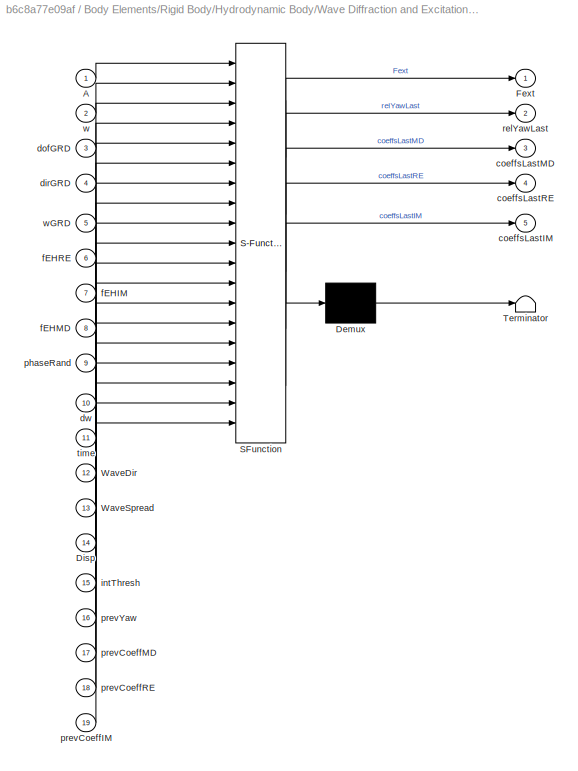
BLOCK [SubSystem] Body Elements/Rigid Body/Hydrodynamic Body/Wave Diffraction and Excitation Force Calculation/Linear Wave Excitation Force Variant Subsystem/Irregular Wave NonLinearYaw/MATLAB Function
  ErrorFcn = Stateflow.Translate.translate
  PermitHierarchicalResolution = ExplicitOnly
  Ports = [19, 5]
  RequestExecContextInheritance = off
  SFBlockType = MATLAB Function
  TreatAsAtomicUnit = on
BLOCK [Demux] Body Elements/Rigid Body/Hydrodynamic Body/Wave Diffraction and Excitation Force Calculation/Linear Wave Excitation Force Variant Subsystem/Irregular Wave NonLinearYaw/MATLAB Function/ Demux 
  Outputs = 1
  Ports = [1, 1]
BLOCK [S-Function] Body Elements/Rigid Body/Hydrodynamic Body/Wave Diffraction and Excitation Force Calculation/Linear Wave Excitation Force Variant Subsystem/Irregular Wave NonLinearYaw/MATLAB Function/ SFunction 
  EnableBusSupport = off
  FunctionName = sf_sfun
  PortCounts = [19 6]
  Ports = [19, 6]
  SFunctionDeploymentMode = off
  Tag = Stateflow S-Function 3
BLOCK [Terminator] Body Elements/Rigid Body/Hydrodynamic Body/Wave Diffraction and Excitation Force Calculation/Linear Wave Excitation Force Variant Subsystem/Irregular Wave NonLinearYaw/MATLAB Function/ Terminator 
BLOCK [Inport] Body Elements/Rigid Body/Hydrodynamic Body/Wave Diffraction and Excitation Force Calculation/Linear Wave Excitation Force Variant Subsystem/Irregular Wave NonLinearYaw/MATLAB Function/A
BLOCK [Inport] Body Elements/Rigid Body/Hydrodynamic Body/Wave Diffraction and Excitation Force Calculation/Linear Wave Excitation Force Variant Subsystem/Irregular Wave NonLinearYaw/MATLAB Function/Disp
  Port = 14
BLOCK [Outport] Body Elements/Rigid Body/Hydrodynamic Body/Wave Diffraction and Excitation Force Calculation/Linear Wave Excitation Force Variant Subsystem/Irregular Wave NonLinearYaw/MATLAB Function/Fext
BLOCK [Inport] Body Elements/Rigid Body/Hydrodynamic Body/Wave Diffraction and Excitation Force Calculation/Linear Wave Excitation Force Variant Subsystem/Irregular Wave NonLinearYaw/MATLAB Function/WaveDir
  Port = 12
BLOCK [Inport] Body Elements/Rigid Body/Hydrodynamic Body/Wave Diffraction and Excitation Force Calculation/Linear Wave Excitation Force Variant Subsystem/Irregular Wave NonLinearYaw/MATLAB Function/WaveSpread
  Port = 13
BLOCK [Outport] Body Elements/Rigid Body/Hydrodynamic Body/Wave Diffraction and Excitation Force Calculation/Linear Wave Excitation Force Variant Subsystem/Irregular Wave NonLinearYaw/MATLAB Function/coeffsLastIM
  Port = 5
BLOCK [Outport] Body Elements/Rigid Body/Hydrodynamic Body/Wave Diffraction and Excitation Force Calculation/Linear Wave Excitation Force Variant Subsystem/Irregular Wave NonLinearYaw/MATLAB Function/coeffsLastMD
  Port = 3
BLOCK [Outport] Body Elements/Rigid Body/Hydrodynamic Body/Wave Diffraction and Excitation Force Calculation/Linear Wave Excitation Force Variant Subsystem/Irregular Wave NonLinearYaw/MATLAB Function/coeffsLastRE
  Port = 4
BLOCK [Inport] Body Elements/Rigid Body/Hydrodynamic Body/Wave Diffraction and Excitation Force Calculation/Linear Wave Excitation Force Variant Subsystem/Irregular Wave NonLinearYaw/MATLAB Function/dirGRD
  Port = 4
BLOCK [Inport] Body Elements/Rigid Body/Hydrodynamic Body/Wave Diffraction and Excitation Force Calculation/Linear Wave Excitation Force Variant Subsystem/Irregular Wave NonLinearYaw/MATLAB Function/dofGRD
  Port = 3
BLOCK [Inport] Body Elements/Rigid Body/Hydrodynamic Body/Wave Diffraction and Excitation Force Calculation/Linear Wave Excitation Force Variant Subsystem/Irregular Wave NonLinearYaw/MATLAB Function/dw
  Port = 10
BLOCK [Inport] Body Elements/Rigid Body/Hydrodynamic Body/Wave Diffraction and Excitation Force Calculation/Linear Wave Excitation Force Variant Subsystem/Irregular Wave NonLinearYaw/MATLAB Function/fEHIM
  Port = 7
BLOCK [Inport] Body Elements/Rigid Body/Hydrodynamic Body/Wave Diffraction and Excitation Force Calculation/Linear Wave Excitation Force Variant Subsystem/Irregular Wave NonLinearYaw/MATLAB Function/fEHMD
  Port = 8
BLOCK [Inport] Body Elements/Rigid Body/Hydrodynamic Body/Wave Diffraction and Excitation Force Calculation/Linear Wave Excitation Force Variant Subsystem/Irregular Wave NonLinearYaw/MATLAB Function/fEHRE
  Port = 6
BLOCK [Inport] Body Elements/Rigid Body/Hydrodynamic Body/Wave Diffraction and Excitation Force Calculation/Linear Wave Excitation Force Variant Subsystem/Irregular Wave NonLinearYaw/MATLAB Function/intThresh
  Port = 15
BLOCK [Inport] Body Elements/Rigid Body/Hydrodynamic Body/Wave Diffraction and Excitation Force Calculation/Linear Wave Excitation Force Variant Subsystem/Irregular Wave NonLinearYaw/MATLAB Function/phaseRand
  Port = 9
BLOCK [Inport] Body Elements/Rigid Body/Hydrodynamic Body/Wave Diffraction and Excitation Force Calculation/Linear Wave Excitation Force Variant Subsystem/Irregular Wave NonLinearYaw/MATLAB Function/prevCoeffIM
  Port = 19
BLOCK [Inport] Body Elements/Rigid Body/Hydrodynamic Body/Wave Diffraction and Excitation Force Calculation/Linear Wave Excitation Force Variant Subsystem/Irregular Wave NonLinearYaw/MATLAB Function/prevCoeffMD
  Port = 17
BLOCK [Inport] Body Elements/Rigid Body/Hydrodynamic Body/Wave Diffraction and Excitation Force Calculation/Linear Wave Excitation Force Variant Subsystem/Irregular Wave NonLinearYaw/MATLAB Function/prevCoeffRE
  Port = 18
BLOCK [Inport] Body Elements/Rigid Body/Hydrodynamic Body/Wave Diffraction and Excitation Force Calculation/Linear Wave Excitation Force Variant Subsystem/Irregular Wave NonLinearYaw/MATLAB Function/prevYaw
  Port = 16
BLOCK [Outport] Body Elements/Rigid Body/Hydrodynamic Body/Wave Diffraction and Excitation Force Calculation/Linear Wave Excitation Force Variant Subsystem/Irregular Wave NonLinearYaw/MATLAB Function/relYawLast
  Port = 2
BLOCK [Inport] Body Elements/Rigid Body/Hydrodynamic Body/Wave Diffraction and Excitation Force Calculation/Linear Wave Excitation Force Variant Subsystem/Irregular Wave NonLinearYaw/MATLAB Function/time
  Port = 11
BLOCK [Inport] Body Elements/Rigid Body/Hydrodynamic Body/Wave Diffraction and Excitation Force Calculation/Linear Wave Excitation Force Variant Subsystem/Irregular Wave NonLinearYaw/MATLAB Function/w
  Port = 2
BLOCK [Inport] Body Elements/Rigid Body/Hydrodynamic Body/Wave Diffraction and Excitation Force Calculation/Linear Wave Excitation Force Variant Subsystem/Irregular Wave NonLinearYaw/MATLAB Function/wGRD
  Port = 5
BLOCK [Memory] Body Elements/Rigid Body/Hydrodynamic Body/Wave Diffraction and Excitation Force Calculation/Linear Wave Excitation Force Variant Subsystem/Irregular Wave NonLinearYaw/Memory
  InheritSampleTime = on
  LinearizeAsDelay = on
BLOCK [Memory] Body Elements/Rigid Body/Hydrodynamic Body/Wave Diffraction and Excitation Force Calculation/Linear Wave Excitation Force Variant Subsystem/Irregular Wave NonLinearYaw/Memory1
  InheritSampleTime = on
  LinearizeAsDelay = on
BLOCK [Memory] Body Elements/Rigid Body/Hydrodynamic Body/Wave Diffraction and Excitation Force Calculation/Linear Wave Excitation Force Variant Subsystem/Irregular Wave NonLinearYaw/Memory2
  InheritSampleTime = on
  LinearizeAsDelay = on
BLOCK [Memory] Body Elements/Rigid Body/Hydrodynamic Body/Wave Diffraction and Excitation Force Calculation/Linear Wave Excitation Force Variant Subsystem/Irregular Wave NonLinearYaw/Memory3
  InheritSampleTime = on
  LinearizeAsDelay = on
BLOCK [Constant] Body Elements/Rigid Body/Hydrodynamic Body/Wave Diffraction and Excitation Force Calculation/Linear Wave Excitation Force Variant Subsystem/Irregular Wave NonLinearYaw/Random Phase
  Value = waves.phase
  VectorParams1D = off
BLOCK [Inport] Body Elements/Rigid Body/Hydrodynamic Body/Wave Diffraction and Excitation Force Calculation/Linear Wave Excitation Force Variant Subsystem/Irregular Wave NonLinearYaw/Time
BLOCK [Constant] Body Elements/Rigid Body/Hydrodynamic Body/Wave Diffraction and Excitation Force Calculation/Linear Wave Excitation Force Variant Subsystem/Irregular Wave NonLinearYaw/Wave Frequency
  Value = waves.w
  VectorParams1D = off
BLOCK [Constant] Body Elements/Rigid Body/Hydrodynamic Body/Wave Diffraction and Excitation Force Calculation/Linear Wave Excitation Force Variant Subsystem/Irregular Wave NonLinearYaw/Wave Spectrum
  Value = waves.A
  VectorParams1D = off
BLOCK [Constant] Body Elements/Rigid Body/Hydrodynamic Body/Wave Diffraction and Excitation Force Calculation/Linear Wave Excitation Force Variant Subsystem/Irregular Wave NonLinearYaw/Wave direction
  Value = wrapTo180(waves.waveDir)
  VectorParams1D = off
BLOCK [Constant] Body Elements/Rigid Body/Hydrodynamic Body/Wave Diffraction and Excitation Force Calculation/Linear Wave Excitation Force Variant Subsystem/Irregular Wave NonLinearYaw/Wave direction spread
  Value = waves.waveSpread
  VectorParams1D = off
BLOCK [Outport] Body Elements/Rigid Body/Hydrodynamic Body/Wave Diffraction and Excitation Force Calculation/Linear Wave Excitation Force Variant Subsystem/Linear Excitation
BLOCK [SubSystem] Body Elements/Rigid Body/Hydrodynamic Body/Wave Diffraction and Excitation Force Calculation/Linear Wave Excitation Force Variant Subsystem/No Wave Excitation Force
  Ports = [0, 1]
  RequestExecContextInheritance = off
  VariantControl = sv_noWave
BLOCK [Constant] Body Elements/Rigid Body/Hydrodynamic Body/Wave Diffraction and Excitation Force Calculation/Linear Wave Excitation Force Variant Subsystem/No Wave Excitation Force/Constant
  Value = zeros(1,body.dof)
BLOCK [Outport] Body Elements/Rigid Body/Hydrodynamic Body/Wave Diffraction and Excitation Force Calculation/Linear Wave Excitation Force Variant Subsystem/No Wave Excitation Force/Linear Excitation
BLOCK [SubSystem] Body Elements/Rigid Body/Hydrodynamic Body/Wave Diffraction and Excitation Force Calculation/Linear Wave Excitation Force Variant Subsystem/Regular Wave Excitation Force
  Ports = [1, 1]
  RequestExecContextInheritance = off
  VariantControl = sv_regularWaves
BLOCK [Sum] Body Elements/Rigid Body/Hydrodynamic Body/Wave Diffraction and Excitation Force Calculation/Linear Wave Excitation Force Variant Subsystem/Regular Wave Excitation Force/Add
  IconShape = rectangular
  Ports = [2, 1]
BLOCK [Sum] Body Elements/Rigid Body/Hydrodynamic Body/Wave Diffraction and Excitation Force Calculation/Linear Wave Excitation Force Variant Subsystem/Regular Wave Excitation Force/Add1
  IconShape = rectangular
  Inputs = ++-
  Ports = [3, 1]
BLOCK [Constant] Body Elements/Rigid Body/Hydrodynamic Body/Wave Diffraction and Excitation Force Calculation/Linear Wave Excitation Force Variant Subsystem/Regular Wave Excitation Force/Constant
  Value = pi/2
BLOCK [Constant] Body Elements/Rigid Body/Hydrodynamic Body/Wave Diffraction and Excitation Force Calculation/Linear Wave Excitation Force Variant Subsystem/Regular Wave Excitation Force/Excitation Imaginary Part
  Value = body.hydroForce.fExt.im(1,:)
  VectorParams1D = off
BLOCK [Constant] Body Elements/Rigid Body/Hydrodynamic Body/Wave Diffraction and Excitation Force Calculation/Linear Wave Excitation Force Variant Subsystem/Regular Wave Excitation Force/Excitation Real Part
  Value = body.hydroForce.fExt.re(1,:)
  VectorParams1D = off
BLOCK [Constant] Body Elements/Rigid Body/Hydrodynamic Body/Wave Diffraction and Excitation Force Calculation/Linear Wave Excitation Force Variant Subsystem/Regular Wave Excitation Force/Excitation Real Part1
  Value = body.hydroForce.fExt.md(1,:)
  VectorParams1D = off
BLOCK [Outport] Body Elements/Rigid Body/Hydrodynamic Body/Wave Diffraction and Excitation Force Calculation/Linear Wave Excitation Force Variant Subsystem/Regular Wave Excitation Force/Linear Excitation
BLOCK [Product] Body Elements/Rigid Body/Hydrodynamic Body/Wave Diffraction and Excitation Force Calculation/Linear Wave Excitation Force Variant Subsystem/Regular Wave Excitation Force/Product
  Ports = [2, 1]
BLOCK [Product] Body Elements/Rigid Body/Hydrodynamic Body/Wave Diffraction and Excitation Force Calculation/Linear Wave Excitation Force Variant Subsystem/Regular Wave Excitation Force/Product1
  Inputs = 3
  Ports = [3, 1]
BLOCK [Product] Body Elements/Rigid Body/Hydrodynamic Body/Wave Diffraction and Excitation Force Calculation/Linear Wave Excitation Force Variant Subsystem/Regular Wave Excitation Force/Product2
  Inputs = 3
  Ports = [3, 1]
BLOCK [Product] Body Elements/Rigid Body/Hydrodynamic Body/Wave Diffraction and Excitation Force Calculation/Linear Wave Excitation Force Variant Subsystem/Regular Wave Excitation Force/Product3
  Ports = [2, 1]
BLOCK [Sin] Body Elements/Rigid Body/Hydrodynamic Body/Wave Diffraction and Excitation Force Calculation/Linear Wave Excitation Force Variant Subsystem/Regular Wave Excitation Force/Sine Wave Function
  Ports = [1, 1]
  SampleTime = 0
  TimeSource = Use external signal
BLOCK [Sin] Body Elements/Rigid Body/Hydrodynamic Body/Wave Diffraction and Excitation Force Calculation/Linear Wave Excitation Force Variant Subsystem/Regular Wave Excitation Force/Sine Wave Function1
  Ports = [1, 1]
  SampleTime = 0
  TimeSource = Use external signal
BLOCK [Inport] Body Elements/Rigid Body/Hydrodynamic Body/Wave Diffraction and Excitation Force Calculation/Linear Wave Excitation Force Variant Subsystem/Regular Wave Excitation Force/Time
BLOCK [Constant] Body Elements/Rigid Body/Hydrodynamic Body/Wave Diffraction and Excitation Force Calculation/Linear Wave Excitation Force Variant Subsystem/Regular Wave Excitation Force/Wave Amplitude
  Value = waves.A(1,:)
BLOCK [Constant] Body Elements/Rigid Body/Hydrodynamic Body/Wave Diffraction and Excitation Force Calculation/Linear Wave Excitation Force Variant Subsystem/Regular Wave Excitation Force/Wave Amplitude1
  Value = waves.A(1,:).*waves.A(1,:)
BLOCK [Constant] Body Elements/Rigid Body/Hydrodynamic Body/Wave Diffraction and Excitation Force Calculation/Linear Wave Excitation Force Variant Subsystem/Regular Wave Excitation Force/Wave Frequency
  Value = waves.w(1,:)
BLOCK [SubSystem] Body Elements/Rigid Body/Hydrodynamic Body/Wave Diffraction and Excitation Force Calculation/Linear Wave Excitation Force Variant Subsystem/Regular Wave NonLinear Yaw
  Ports = [2, 1]
  RequestExecContextInheritance = off
  VariantControl = sv_regularWavesNonLinYaw
BLOCK [Constant] Body Elements/Rigid Body/Hydrodynamic Body/Wave Diffraction and Excitation Force Calculation/Linear Wave Excitation Force Variant Subsystem/Regular Wave NonLinear Yaw/BEM imaginary excitation
  Value = body.hydroForce.fExt.fEHIM
  VectorParams1D = off
BLOCK [Constant] Body Elements/Rigid Body/Hydrodynamic Body/Wave Diffraction and Excitation Force Calculation/Linear Wave Excitation Force Variant Subsystem/Regular Wave NonLinear Yaw/BEM imaginary excitation1
  Value = body.hydroForce.fExt.dirGrd
  VectorParams1D = off
BLOCK [Constant] Body Elements/Rigid Body/Hydrodynamic Body/Wave Diffraction and Excitation Force Calculation/Linear Wave Excitation Force Variant Subsystem/Regular Wave NonLinear Yaw/BEM mean drift
  Value = body.hydroForce.fExt.fEHMD
  VectorParams1D = off
BLOCK [Constant] Body Elements/Rigid Body/Hydrodynamic Body/Wave Diffraction and Excitation Force Calculation/Linear Wave Excitation Force Variant Subsystem/Regular Wave NonLinear Yaw/BEM real excitation
  Value = body.hydroForce.fExt.fEHRE
  VectorParams1D = off
BLOCK [Constant] Body Elements/Rigid Body/Hydrodynamic Body/Wave Diffraction and Excitation Force Calculation/Linear Wave Excitation Force Variant Subsystem/Regular Wave NonLinear Yaw/BEM real excitation1
  Value = body.hydroForce.fExt.dofGrd
  VectorParams1D = off
BLOCK [Constant] Body Elements/Rigid Body/Hydrodynamic Body/Wave Diffraction and Excitation Force Calculation/Linear Wave Excitation Force Variant Subsystem/Regular Wave NonLinear Yaw/Constant
  Value = simu.yawThresh
BLOCK [Inport] Body Elements/Rigid Body/Hydrodynamic Body/Wave Diffraction and Excitation Force Calculation/Linear Wave Excitation Force Variant Subsystem/Regular Wave NonLinear Yaw/Displacement
  Port = 2
BLOCK [Outport] Body Elements/Rigid Body/Hydrodynamic Body/Wave Diffraction and Excitation Force Calculation/Linear Wave Excitation Force Variant Subsystem/Regular Wave NonLinear Yaw/Linear Excitation
BLOCK [SubSystem] Body Elements/Rigid Body/Hydrodynamic Body/Wave Diffraction and Excitation Force Calculation/Linear Wave Excitation Force Variant Subsystem/Regular Wave NonLinear Yaw/MATLAB Function1
  ErrorFcn = Stateflow.Translate.translate
  PermitHierarchicalResolution = ExplicitOnly
  Ports = [15, 5]
  RequestExecContextInheritance = off
  SFBlockType = MATLAB Function
  TreatAsAtomicUnit = on
BLOCK [Demux] Body Elements/Rigid Body/Hydrodynamic Body/Wave Diffraction and Excitation Force Calculation/Linear Wave Excitation Force Variant Subsystem/Regular Wave NonLinear Yaw/MATLAB Function1/ Demux 
  Outputs = 1
  Ports = [1, 1]
BLOCK [S-Function] Body Elements/Rigid Body/Hydrodynamic Body/Wave Diffraction and Excitation Force Calculation/Linear Wave Excitation Force Variant Subsystem/Regular Wave NonLinear Yaw/MATLAB Function1/ SFunction 
  EnableBusSupport = off
  FunctionName = sf_sfun
  PortCounts = [15 6]
  Ports = [15, 6]
  SFunctionDeploymentMode = off
  Tag = Stateflow S-Function 19
BLOCK [Terminator] Body Elements/Rigid Body/Hydrodynamic Body/Wave Diffraction and Excitation Force Calculation/Linear Wave Excitation Force Variant Subsystem/Regular Wave NonLinear Yaw/MATLAB Function1/ Terminator 
BLOCK [Inport] Body Elements/Rigid Body/Hydrodynamic Body/Wave Diffraction and Excitation Force Calculation/Linear Wave Excitation Force Variant Subsystem/Regular Wave NonLinear Yaw/MATLAB Function1/A
BLOCK [Inport] Body Elements/Rigid Body/Hydrodynamic Body/Wave Diffraction and Excitation Force Calculation/Linear Wave Excitation Force Variant Subsystem/Regular Wave NonLinear Yaw/MATLAB Function1/Disp
  Port = 10
BLOCK [Outport] Body Elements/Rigid Body/Hydrodynamic Body/Wave Diffraction and Excitation Force Calculation/Linear Wave Excitation Force Variant Subsystem/Regular Wave NonLinear Yaw/MATLAB Function1/Fext
BLOCK [Inport] Body Elements/Rigid Body/Hydrodynamic Body/Wave Diffraction and Excitation Force Calculation/Linear Wave Excitation Force Variant Subsystem/Regular Wave NonLinear Yaw/MATLAB Function1/WaveDir
  Port = 9
BLOCK [Outport] Body Elements/Rigid Body/Hydrodynamic Body/Wave Diffraction and Excitation Force Calculation/Linear Wave Excitation Force Variant Subsystem/Regular Wave NonLinear Yaw/MATLAB Function1/coeffsLastIM
  Port = 5
BLOCK [Outport] Body Elements/Rigid Body/Hydrodynamic Body/Wave Diffraction and Excitation Force Calculation/Linear Wave Excitation Force Variant Subsystem/Regular Wave NonLinear Yaw/MATLAB Function1/coeffsLastMD
  Port = 3
BLOCK [Outport] Body Elements/Rigid Body/Hydrodynamic Body/Wave Diffraction and Excitation Force Calculation/Linear Wave Excitation Force Variant Subsystem/Regular Wave NonLinear Yaw/MATLAB Function1/coeffsLastRE
  Port = 4
BLOCK [Inport] Body Elements/Rigid Body/Hydrodynamic Body/Wave Diffraction and Excitation Force Calculation/Linear Wave Excitation Force Variant Subsystem/Regular Wave NonLinear Yaw/MATLAB Function1/dirGRD
  Port = 4
BLOCK [Inport] Body Elements/Rigid Body/Hydrodynamic Body/Wave Diffraction and Excitation Force Calculation/Linear Wave Excitation Force Variant Subsystem/Regular Wave NonLinear Yaw/MATLAB Function1/dofGRD
  Port = 3
BLOCK [Inport] Body Elements/Rigid Body/Hydrodynamic Body/Wave Diffraction and Excitation Force Calculation/Linear Wave Excitation Force Variant Subsystem/Regular Wave NonLinear Yaw/MATLAB Function1/fEHIM
  Port = 6
BLOCK [Inport] Body Elements/Rigid Body/Hydrodynamic Body/Wave Diffraction and Excitation Force Calculation/Linear Wave Excitation Force Variant Subsystem/Regular Wave NonLinear Yaw/MATLAB Function1/fEHMD
  Port = 7
BLOCK [Inport] Body Elements/Rigid Body/Hydrodynamic Body/Wave Diffraction and Excitation Force Calculation/Linear Wave Excitation Force Variant Subsystem/Regular Wave NonLinear Yaw/MATLAB Function1/fEHRE
  Port = 5
BLOCK [Inport] Body Elements/Rigid Body/Hydrodynamic Body/Wave Diffraction and Excitation Force Calculation/Linear Wave Excitation Force Variant Subsystem/Regular Wave NonLinear Yaw/MATLAB Function1/intThresh
  Port = 11
BLOCK [Inport] Body Elements/Rigid Body/Hydrodynamic Body/Wave Diffraction and Excitation Force Calculation/Linear Wave Excitation Force Variant Subsystem/Regular Wave NonLinear Yaw/MATLAB Function1/prevCoeffIM
  Port = 15
BLOCK [Inport] Body Elements/Rigid Body/Hydrodynamic Body/Wave Diffraction and Excitation Force Calculation/Linear Wave Excitation Force Variant Subsystem/Regular Wave NonLinear Yaw/MATLAB Function1/prevCoeffMD
  Port = 13
BLOCK [Inport] Body Elements/Rigid Body/Hydrodynamic Body/Wave Diffraction and Excitation Force Calculation/Linear Wave Excitation Force Variant Subsystem/Regular Wave NonLinear Yaw/MATLAB Function1/prevCoeffRE
  Port = 14
BLOCK [Inport] Body Elements/Rigid Body/Hydrodynamic Body/Wave Diffraction and Excitation Force Calculation/Linear Wave Excitation Force Variant Subsystem/Regular Wave NonLinear Yaw/MATLAB Function1/prevYaw
  Port = 12
BLOCK [Outport] Body Elements/Rigid Body/Hydrodynamic Body/Wave Diffraction and Excitation Force Calculation/Linear Wave Excitation Force Variant Subsystem/Regular Wave NonLinear Yaw/MATLAB Function1/relYawLast
  Port = 2
BLOCK [Inport] Body Elements/Rigid Body/Hydrodynamic Body/Wave Diffraction and Excitation Force Calculation/Linear Wave Excitation Force Variant Subsystem/Regular Wave NonLinear Yaw/MATLAB Function1/time
  Port = 8
BLOCK [Inport] Body Elements/Rigid Body/Hydrodynamic Body/Wave Diffraction and Excitation Force Calculation/Linear Wave Excitation Force Variant Subsystem/Regular Wave NonLinear Yaw/MATLAB Function1/w
  Port = 2
BLOCK [Memory] Body Elements/Rigid Body/Hydrodynamic Body/Wave Diffraction and Excitation Force Calculation/Linear Wave Excitation Force Variant Subsystem/Regular Wave NonLinear Yaw/Memory
  InheritSampleTime = on
  LinearizeAsDelay = on
BLOCK [Memory] Body Elements/Rigid Body/Hydrodynamic Body/Wave Diffraction and Excitation Force Calculation/Linear Wave Excitation Force Variant Subsystem/Regular Wave NonLinear Yaw/Memory1
  InheritSampleTime = on
  LinearizeAsDelay = on
BLOCK [Memory] Body Elements/Rigid Body/Hydrodynamic Body/Wave Diffraction and Excitation Force Calculation/Linear Wave Excitation Force Variant Subsystem/Regular Wave NonLinear Yaw/Memory2
  InheritSampleTime = on
  LinearizeAsDelay = on
BLOCK [Memory] Body Elements/Rigid Body/Hydrodynamic Body/Wave Diffraction and Excitation Force Calculation/Linear Wave Excitation Force Variant Subsystem/Regular Wave NonLinear Yaw/Memory3
  InheritSampleTime = on
  LinearizeAsDelay = on
BLOCK [Inport] Body Elements/Rigid Body/Hydrodynamic Body/Wave Diffraction and Excitation Force Calculation/Linear Wave Excitation Force Variant Subsystem/Regular Wave NonLinear Yaw/Time
BLOCK [Constant] Body Elements/Rigid Body/Hydrodynamic Body/Wave Diffraction and Excitation Force Calculation/Linear Wave Excitation Force Variant Subsystem/Regular Wave NonLinear Yaw/Wave Amplitude
  Value = waves.A(1,:)
BLOCK [Constant] Body Elements/Rigid Body/Hydrodynamic Body/Wave Diffraction and Excitation Force Calculation/Linear Wave Excitation Force Variant Subsystem/Regular Wave NonLinear Yaw/Wave Frequency
  Value = waves.w(1,:)
BLOCK [Constant] Body Elements/Rigid Body/Hydrodynamic Body/Wave Diffraction and Excitation Force Calculation/Linear Wave Excitation Force Variant Subsystem/Regular Wave NonLinear Yaw/Wave direction
  Value = wrapTo180(waves.waveDir)
  VectorParams1D = off
BLOCK [Inport] Body Elements/Rigid Body/Hydrodynamic Body/Wave Diffraction and Excitation Force Calculation/Linear Wave Excitation Force Variant Subsystem/Time
BLOCK [SubSystem] Body Elements/Rigid Body/Hydrodynamic Body/Wave Diffraction and Excitation Force Calculation/Linear Wave Excitation Force Variant Subsystem/User Defined Wave Excitation Force
  Ports = [0, 1]
  RequestExecContextInheritance = off
  VariantControl = sv_udfWaves
BLOCK [FromWorkspace] Body Elements/Rigid Body/Hydrodynamic Body/Wave Diffraction and Excitation Force Calculation/Linear Wave Excitation Force Variant Subsystem/User Defined Wave Excitation Force/InputWaveForceTimeHistory
  VariableName = [waves.waveAmpTime(:,1),body.hydroForce.userDefinedFe]
BLOCK [Outport] Body Elements/Rigid Body/Hydrodynamic Body/Wave Diffraction and Excitation Force Calculation/Linear Wave Excitation Force Variant Subsystem/User Defined Wave Excitation Force/Linear Excitation
BLOCK [Merge] Body Elements/Rigid Body/Hydrodynamic Body/Wave Diffraction and Excitation Force Calculation/Merge1
  Ports = [2, 1]
BLOCK [SubSystem] Body Elements/Rigid Body/Hydrodynamic Body/Wave Diffraction and Excitation Force Calculation/No Ramp Function
  Ports = [0, 1, 0, 0, 0, 0, 0, 1]
  RequestExecContextInheritance = off
  TreatAsAtomicUnit = on
BLOCK [ActionPort] Body Elements/Rigid Body/Hydrodynamic Body/Wave Diffraction and Excitation Force Calculation/No Ramp Function/Action Port
BLOCK [Constant] Body Elements/Rigid Body/Hydrodynamic Body/Wave Diffraction and Excitation Force Calculation/No Ramp Function/Constant
BLOCK [Outport] Body Elements/Rigid Body/Hydrodynamic Body/Wave Diffraction and Excitation Force Calculation/No Ramp Function/R
  InitialOutput = 1
BLOCK [SubSystem] Body Elements/Rigid Body/Hydrodynamic Body/Wave Diffraction and Excitation Force Calculation/Nonlinear FK Force Variant Subsystem
  Ports = [3, 1]
  RequestExecContextInheritance = off
  Variant = on
BLOCK [Inport] Body Elements/Rigid Body/Hydrodynamic Body/Wave Diffraction and Excitation Force Calculation/Nonlinear FK Force Variant Subsystem/Displacement
  Port = 2
BLOCK [SubSystem] Body Elements/Rigid Body/Hydrodynamic Body/Wave Diffraction and Excitation Force Calculation/Nonlinear FK Force Variant Subsystem/No Nonlinear FroudeKrylov Force
  Ports = [0, 1]
  RequestExecContextInheritance = off
  VariantControl = sv_linearHydro
BLOCK [Constant] Body Elements/Rigid Body/Hydrodynamic Body/Wave Diffraction and Excitation Force Calculation/Nonlinear FK Force Variant Subsystem/No Nonlinear FroudeKrylov Force/Constant
  Value = zeros(1,body.dof)
BLOCK [Outport] Body Elements/Rigid Body/Hydrodynamic Body/Wave Diffraction and Excitation Force Calculation/Nonlinear FK Force Variant Subsystem/No Nonlinear FroudeKrylov Force/Nonlinear Excitation
BLOCK [Outport] Body Elements/Rigid Body/Hydrodynamic Body/Wave Diffraction and Excitation Force Calculation/Nonlinear FK Force Variant Subsystem/Nonlinear Excitation
BLOCK [Inport] Body Elements/Rigid Body/Hydrodynamic Body/Wave Diffraction and Excitation Force Calculation/Nonlinear FK Force Variant Subsystem/Time
BLOCK [Inport] Body Elements/Rigid Body/Hydrodynamic Body/Wave Diffraction and Excitation Force Calculation/Nonlinear FK Force Variant Subsystem/WaveElv
  Port = 3
BLOCK [SubSystem] Body Elements/Rigid Body/Hydrodynamic Body/Wave Diffraction and Excitation Force Calculation/Nonlinear FK Force Variant Subsystem/With Nonlinear FroudeKrylov Force
  Ports = [3, 1]
  RequestExecContextInheritance = off
  SystemSampleTime = simu.dtNL
  TreatAsAtomicUnit = on
  VariantControl = sv_nonlinearHydro
BLOCK [Sum] Body Elements/Rigid Body/Hydrodynamic Body/Wave Diffraction and Excitation Force Calculation/Nonlinear FK Force Variant Subsystem/With Nonlinear FroudeKrylov Force/Add
  IconShape = rectangular
  Inputs = +-
  Ports = [2, 1]
BLOCK [Constant] Body Elements/Rigid Body/Hydrodynamic Body/Wave Diffraction and Excitation Force Calculation/Nonlinear FK Force Variant Subsystem/With Nonlinear FroudeKrylov Force/Center of Gravity
  Value = body.hydroData.properties.cg
BLOCK [Constant] Body Elements/Rigid Body/Hydrodynamic Body/Wave Diffraction and Excitation Force Calculation/Nonlinear FK Force Variant Subsystem/With Nonlinear FroudeKrylov Force/Center of Gravity1
  Value = body.hydroData.properties.cg
BLOCK [Constant] Body Elements/Rigid Body/Hydrodynamic Body/Wave Diffraction and Excitation Force Calculation/Nonlinear FK Force Variant Subsystem/With Nonlinear FroudeKrylov Force/Constant
  Value = zeros(1,body.dof-3)
BLOCK [Constant] Body Elements/Rigid Body/Hydrodynamic Body/Wave Diffraction and Excitation Force Calculation/Nonlinear FK Force Variant Subsystem/With Nonlinear FroudeKrylov Force/Deep Water Flag
  Value = waves.deepWaterWave
BLOCK [SubSystem] Body Elements/Rigid Body/Hydrodynamic Body/Wave Diffraction and Excitation Force Calculation/Nonlinear FK Force Variant Subsystem/With Nonlinear FroudeKrylov Force/Diffraction and Excitation Forces
  ErrorFcn = Stateflow.Translate.translate
  PermitHierarchicalResolution = ExplicitOnly
  Ports = [17, 3]
  RequestExecContextInheritance = off
  SFBlockType = MATLAB Function
  TreatAsAtomicUnit = on
BLOCK [Demux] Body Elements/Rigid Body/Hydrodynamic Body/Wave Diffraction and Excitation Force Calculation/Nonlinear FK Force Variant Subsystem/With Nonlinear FroudeKrylov Force/Diffraction and Excitation Forces/ Demux 
  Outputs = 1
  Ports = [1, 1]
BLOCK [S-Function] Body Elements/Rigid Body/Hydrodynamic Body/Wave Diffraction and Excitation Force Calculation/Nonlinear FK Force Variant Subsystem/With Nonlinear FroudeKrylov Force/Diffraction and Excitation Forces/ SFunction 
  EnableBusSupport = off
  FunctionName = sf_sfun
  PortCounts = [17 4]
  Ports = [17, 4]
  SFunctionDeploymentMode = off
  Tag = Stateflow S-Function 15
BLOCK [Terminator] Body Elements/Rigid Body/Hydrodynamic Body/Wave Diffraction and Excitation Force Calculation/Nonlinear FK Force Variant Subsystem/With Nonlinear FroudeKrylov Force/Diffraction and Excitation Forces/ Terminator 
BLOCK [Inport] Body Elements/Rigid Body/Hydrodynamic Body/Wave Diffraction and Excitation Force Calculation/Nonlinear FK Force Variant Subsystem/With Nonlinear FroudeKrylov Force/Diffraction and Excitation Forces/AH
  Port = 9
BLOCK [Inport] Body Elements/Rigid Body/Hydrodynamic Body/Wave Diffraction and Excitation Force Calculation/Nonlinear FK Force Variant Subsystem/With Nonlinear FroudeKrylov Force/Diffraction and Excitation Forces/area
  Port = 5
BLOCK [Inport] Body Elements/Rigid Body/Hydrodynamic Body/Wave Diffraction and Excitation Force Calculation/Nonlinear FK Force Variant Subsystem/With Nonlinear FroudeKrylov Force/Diffraction and Excitation Forces/center
  Port = 3
BLOCK [Inport] Body Elements/Rigid Body/Hydrodynamic Body/Wave Diffraction and Excitation Force Calculation/Nonlinear FK Force Variant Subsystem/With Nonlinear FroudeKrylov Force/Diffraction and Excitation Forces/cg
  Port = 8
BLOCK [Inport] Body Elements/Rigid Body/Hydrodynamic Body/Wave Diffraction and Excitation Force Calculation/Nonlinear FK Force Variant Subsystem/With Nonlinear FroudeKrylov Force/Diffraction and Excitation Forces/deepWaterWave
  Port = 13
BLOCK [Inport] Body Elements/Rigid Body/Hydrodynamic Body/Wave Diffraction and Excitation Force Calculation/Nonlinear FK Force Variant Subsystem/With Nonlinear FroudeKrylov Force/Diffraction and Excitation Forces/dw
  Port = 11
BLOCK [Inport] Body Elements/Rigid Body/Hydrodynamic Body/Wave Diffraction and Excitation Force Calculation/Nonlinear FK Force Variant Subsystem/With Nonlinear FroudeKrylov Force/Diffraction and Excitation Forces/elv
  Port = 2
BLOCK [Outport] Body Elements/Rigid Body/Hydrodynamic Body/Wave Diffraction and Excitation Force Calculation/Nonlinear FK Force Variant Subsystem/With Nonlinear FroudeKrylov Force/Diffraction and Excitation Forces/f
BLOCK [Inport] Body Elements/Rigid Body/Hydrodynamic Body/Wave Diffraction and Excitation Force Calculation/Nonlinear FK Force Variant Subsystem/With Nonlinear FroudeKrylov Force/Diffraction and Excitation Forces/g
  Port = 7
BLOCK [Inport] Body Elements/Rigid Body/Hydrodynamic Body/Wave Diffraction and Excitation Force Calculation/Nonlinear FK Force Variant Subsystem/With Nonlinear FroudeKrylov Force/Diffraction and Excitation Forces/k
  Port = 14
BLOCK [Inport] Body Elements/Rigid Body/Hydrodynamic Body/Wave Diffraction and Excitation Force Calculation/Nonlinear FK Force Variant Subsystem/With Nonlinear FroudeKrylov Force/Diffraction and Excitation Forces/phaseRand
  Port = 17
BLOCK [Inport] Body Elements/Rigid Body/Hydrodynamic Body/Wave Diffraction and Excitation Force Calculation/Nonlinear FK Force Variant Subsystem/With Nonlinear FroudeKrylov Force/Diffraction and Excitation Forces/rho
  Port = 6
BLOCK [Inport] Body Elements/Rigid Body/Hydrodynamic Body/Wave Diffraction and Excitation Force Calculation/Nonlinear FK Force Variant Subsystem/With Nonlinear FroudeKrylov Force/Diffraction and Excitation Forces/t
  Port = 16
BLOCK [Inport] Body Elements/Rigid Body/Hydrodynamic Body/Wave Diffraction and Excitation Force Calculation/Nonlinear FK Force Variant Subsystem/With Nonlinear FroudeKrylov Force/Diffraction and Excitation Forces/tnorm
  Port = 4
BLOCK [Inport] Body Elements/Rigid Body/Hydrodynamic Body/Wave Diffraction and Excitation Force Calculation/Nonlinear FK Force Variant Subsystem/With Nonlinear FroudeKrylov Force/Diffraction and Excitation Forces/typeNum
  Port = 15
BLOCK [Inport] Body Elements/Rigid Body/Hydrodynamic Body/Wave Diffraction and Excitation Force Calculation/Nonlinear FK Force Variant Subsystem/With Nonlinear FroudeKrylov Force/Diffraction and Excitation Forces/w
  Port = 10
BLOCK [Inport] Body Elements/Rigid Body/Hydrodynamic Body/Wave Diffraction and Excitation Force Calculation/Nonlinear FK Force Variant Subsystem/With Nonlinear FroudeKrylov Force/Diffraction and Excitation Forces/wDepth
  Port = 12
BLOCK [Outport] Body Elements/Rigid Body/Hydrodynamic Body/Wave Diffraction and Excitation Force Calculation/Nonlinear FK Force Variant Subsystem/With Nonlinear FroudeKrylov Force/Diffraction and Excitation Forces/wp
  Port = 2
BLOCK [Outport] Body Elements/Rigid Body/Hydrodynamic Body/Wave Diffraction and Excitation Force Calculation/Nonlinear FK Force Variant Subsystem/With Nonlinear FroudeKrylov Force/Diffraction and Excitation Forces/wpMeanFS
  Port = 3
BLOCK [Inport] Body Elements/Rigid Body/Hydrodynamic Body/Wave Diffraction and Excitation Force Calculation/Nonlinear FK Force Variant Subsystem/With Nonlinear FroudeKrylov Force/Diffraction and Excitation Forces/x
BLOCK [Inport] Body Elements/Rigid Body/Hydrodynamic Body/Wave Diffraction and Excitation Force Calculation/Nonlinear FK Force Variant Subsystem/With Nonlinear FroudeKrylov Force/Displacement
  Port = 2
BLOCK [Constant] Body Elements/Rigid Body/Hydrodynamic Body/Wave Diffraction and Excitation Force Calculation/Nonlinear FK Force Variant Subsystem/With Nonlinear FroudeKrylov Force/Frequency Spacing
  Value = waves.dw
BLOCK [Constant] Body Elements/Rigid Body/Hydrodynamic Body/Wave Diffraction and Excitation Force Calculation/Nonlinear FK Force Variant Subsystem/With Nonlinear FroudeKrylov Force/Gravity
  Value = simu.g
BLOCK [Mux] Body Elements/Rigid Body/Hydrodynamic Body/Wave Diffraction and Excitation Force Calculation/Nonlinear FK Force Variant Subsystem/With Nonlinear FroudeKrylov Force/Mux
  DisplayOption = bar
  Inputs = 2
  Ports = [2, 1]
BLOCK [Outport] Body Elements/Rigid Body/Hydrodynamic Body/Wave Diffraction and Excitation Force Calculation/Nonlinear FK Force Variant Subsystem/With Nonlinear FroudeKrylov Force/Nonlinear Excitation
BLOCK [Constant] Body Elements/Rigid Body/Hydrodynamic Body/Wave Diffraction and Excitation Force Calculation/Nonlinear FK Force Variant Subsystem/With Nonlinear FroudeKrylov Force/STL Areas
  Value = body.bodyGeometry.area
BLOCK [Constant] Body Elements/Rigid Body/Hydrodynamic Body/Wave Diffraction and Excitation Force Calculation/Nonlinear FK Force Variant Subsystem/With Nonlinear FroudeKrylov Force/STL Centers
  Value = body.bodyGeometry.center
BLOCK [Constant] Body Elements/Rigid Body/Hydrodynamic Body/Wave Diffraction and Excitation Force Calculation/Nonlinear FK Force Variant Subsystem/With Nonlinear FroudeKrylov Force/STL Normal Vectors
  Value = body.bodyGeometry.norm
BLOCK [Inport] Body Elements/Rigid Body/Hydrodynamic Body/Wave Diffraction and Excitation Force Calculation/Nonlinear FK Force Variant Subsystem/With Nonlinear FroudeKrylov Force/Time
BLOCK [ToWorkspace] Body Elements/Rigid Body/Hydrodynamic Body/Wave Diffraction and Excitation Force Calculation/Nonlinear FK Force Variant Subsystem/With Nonlinear FroudeKrylov Force/To Workspace
  Decimation = round(simu.dtOut/simu.dt,0)
  MaxDataPoints = inf
  Ports = [1]
  SampleTime = -1
  SaveFormat = Structure With Time
  VariableName = body1_wavenonlinearpressure_out
BLOCK [ToWorkspace] Body Elements/Rigid Body/Hydrodynamic Body/Wave Diffraction and Excitation Force Calculation/Nonlinear FK Force Variant Subsystem/With Nonlinear FroudeKrylov Force/To Workspace1
  Decimation = round(simu.dtOut/simu.dt,0)
  MaxDataPoints = inf
  Ports = [1]
  SampleTime = -1
  SaveFormat = Structure With Time
  VariableName = body1_wavelinearpressure_out
BLOCK [Constant] Body Elements/Rigid Body/Hydrodynamic Body/Wave Diffraction and Excitation Force Calculation/Nonlinear FK Force Variant Subsystem/With Nonlinear FroudeKrylov Force/Water Density
  Value = simu.rho
BLOCK [Constant] Body Elements/Rigid Body/Hydrodynamic Body/Wave Diffraction and Excitation Force Calculation/Nonlinear FK Force Variant Subsystem/With Nonlinear FroudeKrylov Force/Water Depth
  Value = waves.waterDepth
BLOCK [Constant] Body Elements/Rigid Body/Hydrodynamic Body/Wave Diffraction and Excitation Force Calculation/Nonlinear FK Force Variant Subsystem/With Nonlinear FroudeKrylov Force/Wave Amplitude
  Value = waves.A
BLOCK [Constant] Body Elements/Rigid Body/Hydrodynamic Body/Wave Diffraction and Excitation Force Calculation/Nonlinear FK Force Variant Subsystem/With Nonlinear FroudeKrylov Force/Wave Frequency
  Value = waves.w
BLOCK [Constant] Body Elements/Rigid Body/Hydrodynamic Body/Wave Diffraction and Excitation Force Calculation/Nonlinear FK Force Variant Subsystem/With Nonlinear FroudeKrylov Force/Wave Number
  Value = waves.k
BLOCK [Constant] Body Elements/Rigid Body/Hydrodynamic Body/Wave Diffraction and Excitation Force Calculation/Nonlinear FK Force Variant Subsystem/With Nonlinear FroudeKrylov Force/Wave Random Phase
  Value = waves.phase
BLOCK [Constant] Body Elements/Rigid Body/Hydrodynamic Body/Wave Diffraction and Excitation Force Calculation/Nonlinear FK Force Variant Subsystem/With Nonlinear FroudeKrylov Force/Wave Type Number
  Value = waves.typeNum
BLOCK [Inport] Body Elements/Rigid Body/Hydrodynamic Body/Wave Diffraction and Excitation Force Calculation/Nonlinear FK Force Variant Subsystem/With Nonlinear FroudeKrylov Force/WaveElv
  Port = 3
BLOCK [Product] Body Elements/Rigid Body/Hydrodynamic Body/Wave Diffraction and Excitation Force Calculation/Product
  Ports = [2, 1]
BLOCK [SubSystem] Body Elements/Rigid Body/Hydrodynamic Body/Wave Diffraction and Excitation Force Calculation/Ramp Function
  Ports = [1, 1, 0, 0, 0, 0, 0, 1]
  RequestExecContextInheritance = off
  TreatAsAtomicUnit = on
BLOCK [Constant] Body Elements/Rigid Body/Hydrodynamic Body/Wave Diffraction and Excitation Force Calculation/Ramp Function Time
  Value = simu.rampTime
BLOCK [ActionPort] Body Elements/Rigid Body/Hydrodynamic Body/Wave Diffraction and Excitation Force Calculation/Ramp Function/Action Port
BLOCK [Sum] Body Elements/Rigid Body/Hydrodynamic Body/Wave Diffraction and Excitation Force Calculation/Ramp Function/Add
  IconShape = rectangular
  Ports = [2, 1]
BLOCK [Sum] Body Elements/Rigid Body/Hydrodynamic Body/Wave Diffraction and Excitation Force Calculation/Ramp Function/Add1
  IconShape = rectangular
  Ports = [2, 1]
BLOCK [Constant] Body Elements/Rigid Body/Hydrodynamic Body/Wave Diffraction and Excitation Force Calculation/Ramp Function/Constant
  Value = 1/2
BLOCK [Constant] Body Elements/Rigid Body/Hydrodynamic Body/Wave Diffraction and Excitation Force Calculation/Ramp Function/Constant1
BLOCK [Constant] Body Elements/Rigid Body/Hydrodynamic Body/Wave Diffraction and Excitation Force Calculation/Ramp Function/Constant2
  Value = 3*pi/2
BLOCK [Constant] Body Elements/Rigid Body/Hydrodynamic Body/Wave Diffraction and Excitation Force Calculation/Ramp Function/Constant3
  Value = pi
BLOCK [Product] Body Elements/Rigid Body/Hydrodynamic Body/Wave Diffraction and Excitation Force Calculation/Ramp Function/Divide
  Inputs = */
  Ports = [2, 1]
BLOCK [Product] Body Elements/Rigid Body/Hydrodynamic Body/Wave Diffraction and Excitation Force Calculation/Ramp Function/Product
  Ports = [2, 1]
BLOCK [Product] Body Elements/Rigid Body/Hydrodynamic Body/Wave Diffraction and Excitation Force Calculation/Ramp Function/Product1
  Ports = [2, 1]
BLOCK [Outport] Body Elements/Rigid Body/Hydrodynamic Body/Wave Diffraction and Excitation Force Calculation/Ramp Function/R
BLOCK [Constant] Body Elements/Rigid Body/Hydrodynamic Body/Wave Diffraction and Excitation Force Calculation/Ramp Function/Ramp Time
  Value = simu.rampTime
BLOCK [Sin] Body Elements/Rigid Body/Hydrodynamic Body/Wave Diffraction and Excitation Force Calculation/Ramp Function/Sine Wave Function
  Ports = [1, 1]
  SampleTime = 0
  TimeSource = Use external signal
BLOCK [Inport] Body Elements/Rigid Body/Hydrodynamic Body/Wave Diffraction and Excitation Force Calculation/Ramp Function/Time
BLOCK [Inport] Body Elements/Rigid Body/Hydrodynamic Body/Wave Diffraction and Excitation Force Calculation/Time
BLOCK [Inport] Body Elements/Rigid Body/Hydrodynamic Body/Wave Diffraction and Excitation Force Calculation/WaveElv
  Port = 3
BLOCK [SubSystem] Body Elements/Rigid Body/Hydrodynamic Body/Wave Radiation Forces Calculation
  Ports = [3, 2]
  RequestExecContextInheritance = off
BLOCK [Inport] Body Elements/Rigid Body/Hydrodynamic Body/Wave Radiation Forces Calculation/Acceleration
  Port = 2
BLOCK [Constant] Body Elements/Rigid Body/Hydrodynamic Body/Wave Radiation Forces Calculation/Added Mass Matrix
  Value = body.hydroForce.fAddedMass
BLOCK [Outport] Body Elements/Rigid Body/Hydrodynamic Body/Wave Radiation Forces Calculation/F_AddedMass
  Port = 2
BLOCK [Outport] Body Elements/Rigid Body/Hydrodynamic Body/Wave Radiation Forces Calculation/F_RadiationDamping
BLOCK [Product] Body Elements/Rigid Body/Hydrodynamic Body/Wave Radiation Forces Calculation/Product1
  Multiplication = Matrix(*)
  Ports = [2, 1]
BLOCK [SubSystem] Body Elements/Rigid Body/Hydrodynamic Body/Wave Radiation Forces Calculation/SS CI and Constant-Damping-CoeVariant Subsystem
  Ports = [2, 1]
  RequestExecContextInheritance = off
  Variant = on
BLOCK [SubSystem] Body Elements/Rigid Body/Hydrodynamic Body/Wave Radiation Forces Calculation/SS CI and Constant-Damping-CoeVariant Subsystem/Constant Coefficients
  Ports = [1, 1]
  RequestExecContextInheritance = off
  VariantControl = sv_constantCoeff
BLOCK [Inport] Body Elements/Rigid Body/Hydrodynamic Body/Wave Radiation Forces Calculation/SS CI and Constant-Damping-CoeVariant Subsystem/Constant Coefficients/In1
BLOCK [Outport] Body Elements/Rigid Body/Hydrodynamic Body/Wave Radiation Forces Calculation/SS CI and Constant-Damping-CoeVariant Subsystem/Constant Coefficients/Out1
BLOCK [Product] Body Elements/Rigid Body/Hydrodynamic Body/Wave Radiation Forces Calculation/SS CI and Constant-Damping-CoeVariant Subsystem/Constant Coefficients/Product
  Multiplication = Matrix(*)
  Ports = [2, 1]
BLOCK [Constant] Body Elements/Rigid Body/Hydrodynamic Body/Wave Radiation Forces Calculation/SS CI and Constant-Damping-CoeVariant Subsystem/Constant Coefficients/Radiation Damping Matrix
  Value = body.hydroForce.fDamping
BLOCK [SubSystem] Body Elements/Rigid Body/Hydrodynamic Body/Wave Radiation Forces Calculation/SS CI and Constant-Damping-CoeVariant Subsystem/Convolution Integral Calculation
  Ports = [1, 1]
  RequestExecContextInheritance = off
  VariantControl = sv_convolution
BLOCK [Constant] Body Elements/Rigid Body/Hydrodynamic Body/Wave Radiation Forces Calculation/SS CI and Constant-Damping-CoeVariant Subsystem/Convolution Integral Calculation/CTTime
  Value = simu.CTTime
BLOCK [Constant] Body Elements/Rigid Body/Hydrodynamic Body/Wave Radiation Forces Calculation/SS CI and Constant-Damping-CoeVariant Subsystem/Convolution Integral Calculation/DOF
  Value = body.dof
BLOCK [Constant] Body Elements/Rigid Body/Hydrodynamic Body/Wave Radiation Forces Calculation/SS CI and Constant-Damping-CoeVariant Subsystem/Convolution Integral Calculation/IRBK
  Value = body.hydroForce.irkb
BLOCK [Inport] Body Elements/Rigid Body/Hydrodynamic Body/Wave Radiation Forces Calculation/SS CI and Constant-Damping-CoeVariant Subsystem/Convolution Integral Calculation/In1
BLOCK [SubSystem] Body Elements/Rigid Body/Hydrodynamic Body/Wave Radiation Forces Calculation/SS CI and Constant-Damping-CoeVariant Subsystem/Convolution Integral Calculation/MATLAB Function1
  ErrorFcn = Stateflow.Translate.translate
  PermitHierarchicalResolution = ExplicitOnly
  Ports = [4, 1]
  RequestExecContextInheritance = off
  SFBlockType = MATLAB Function
  SystemSampleTime = simu.CTTime(2)-simu.CTTime(1)
  TreatAsAtomicUnit = on
BLOCK [Demux] Body Elements/Rigid Body/Hydrodynamic Body/Wave Radiation Forces Calculation/SS CI and Constant-Damping-CoeVariant Subsystem/Convolution Integral Calculation/MATLAB Function1/ Demux 
  Outputs = 1
  Ports = [1, 1]
BLOCK [S-Function] Body Elements/Rigid Body/Hydrodynamic Body/Wave Radiation Forces Calculation/SS CI and Constant-Damping-CoeVariant Subsystem/Convolution Integral Calculation/MATLAB Function1/ SFunction 
  EnableBusSupport = off
  FunctionName = sf_sfun
  PortCounts = [4 2]
  Ports = [4, 2]
  SFunctionDeploymentMode = off
  Tag = Stateflow S-Function 16
BLOCK [Terminator] Body Elements/Rigid Body/Hydrodynamic Body/Wave Radiation Forces Calculation/SS CI and Constant-Damping-CoeVariant Subsystem/Convolution Integral Calculation/MATLAB Function1/ Terminator 
BLOCK [Inport] Body Elements/Rigid Body/Hydrodynamic Body/Wave Radiation Forces Calculation/SS CI and Constant-Damping-CoeVariant Subsystem/Convolution Integral Calculation/MATLAB Function1/CTTime
  Port = 4
BLOCK [Outport] Body Elements/Rigid Body/Hydrodynamic Body/Wave Radiation Forces Calculation/SS CI and Constant-Damping-CoeVariant Subsystem/Convolution Integral Calculation/MATLAB Function1/F_FM
BLOCK [Inport] Body Elements/Rigid Body/Hydrodynamic Body/Wave Radiation Forces Calculation/SS CI and Constant-Damping-CoeVariant Subsystem/Convolution Integral Calculation/MATLAB Function1/IRKB
  Port = 2
BLOCK [Inport] Body Elements/Rigid Body/Hydrodynamic Body/Wave Radiation Forces Calculation/SS CI and Constant-Damping-CoeVariant Subsystem/Convolution Integral Calculation/MATLAB Function1/lenJ
  Port = 3
BLOCK [Inport] Body Elements/Rigid Body/Hydrodynamic Body/Wave Radiation Forces Calculation/SS CI and Constant-Damping-CoeVariant Subsystem/Convolution Integral Calculation/MATLAB Function1/v
BLOCK [Outport] Body Elements/Rigid Body/Hydrodynamic Body/Wave Radiation Forces Calculation/SS CI and Constant-Damping-CoeVariant Subsystem/Convolution Integral Calculation/Out1
BLOCK [RateTransition] Body Elements/Rigid Body/Hydrodynamic Body/Wave Radiation Forces Calculation/SS CI and Constant-Damping-CoeVariant Subsystem/Convolution Integral Calculation/Rate Transition
BLOCK [Reshape] Body Elements/Rigid Body/Hydrodynamic Body/Wave Radiation Forces Calculation/SS CI and Constant-Damping-CoeVariant Subsystem/Convolution Integral Calculation/Reshape
  Ports = [1, 1]
BLOCK [Selector] Body Elements/Rigid Body/Hydrodynamic Body/Wave Radiation Forces Calculation/SS CI and Constant-Damping-CoeVariant Subsystem/Convolution Integral Calculation/Selector
  IndexOptions = Index vector (dialog)
  Indices = [1:6+body.dof_gbm]
  OutputSizes = 1
  Ports = [1, 1]
BLOCK [Inport] Body Elements/Rigid Body/Hydrodynamic Body/Wave Radiation Forces Calculation/SS CI and Constant-Damping-CoeVariant Subsystem/In1
BLOCK [Inport] Body Elements/Rigid Body/Hydrodynamic Body/Wave Radiation Forces Calculation/SS CI and Constant-Damping-CoeVariant Subsystem/In2
  Port = 2
BLOCK [Outport] Body Elements/Rigid Body/Hydrodynamic Body/Wave Radiation Forces Calculation/SS CI and Constant-Damping-CoeVariant Subsystem/Out1
BLOCK [SubSystem] Body Elements/Rigid Body/Hydrodynamic Body/Wave Radiation Forces Calculation/SS CI and Constant-Damping-CoeVariant Subsystem/State-Space Calculation 
  Ports = [1, 1]
  RequestExecContextInheritance = off
  VariantControl = sv_stateSpace
BLOCK [Inport] Body Elements/Rigid Body/Hydrodynamic Body/Wave Radiation Forces Calculation/SS CI and Constant-Damping-CoeVariant Subsystem/State-Space Calculation /In1
BLOCK [Outport] Body Elements/Rigid Body/Hydrodynamic Body/Wave Radiation Forces Calculation/SS CI and Constant-Damping-CoeVariant Subsystem/State-Space Calculation /Out1
BLOCK [StateSpace] Body Elements/Rigid Body/Hydrodynamic Body/Wave Radiation Forces Calculation/SS CI and Constant-Damping-CoeVariant Subsystem/State-Space Calculation /State-Space
  A = body.hydroForce.ssRadf.A
  B = body.hydroForce.ssRadf.B
  C = body.hydroForce.ssRadf.C
  D = body.hydroForce.ssRadf.D
  Ports = [1, 1]
  X0 = 0
BLOCK [Inport] Body Elements/Rigid Body/Hydrodynamic Body/Wave Radiation Forces Calculation/Time
  Port = 3
BLOCK [Inport] Body Elements/Rigid Body/Hydrodynamic Body/Wave Radiation Forces Calculation/Velocity
BLOCK [SubSystem] Body Elements/Rigid Body/Hydrodynamic Body/nonLinYaw force transforms
  Ports = [5, 4]
  RequestExecContextInheritance = off
BLOCK [Constant] Body Elements/Rigid Body/Hydrodynamic Body/nonLinYaw force transforms/Constant
  Value = simu.yawNonLin
BLOCK [Inport] Body Elements/Rigid Body/Hydrodynamic Body/nonLinYaw force transforms/In1
  IconDisplay = Signal name
BLOCK [Inport] Body Elements/Rigid Body/Hydrodynamic Body/nonLinYaw force transforms/In2
  IconDisplay = Signal name
  Port = 3
BLOCK [Inport] Body Elements/Rigid Body/Hydrodynamic Body/nonLinYaw force transforms/In3
  IconDisplay = Signal name
  Port = 2
BLOCK [Inport] Body Elements/Rigid Body/Hydrodynamic Body/nonLinYaw force transforms/In4
  IconDisplay = Signal name
  Port = 4
BLOCK [Inport] Body Elements/Rigid Body/Hydrodynamic Body/nonLinYaw force transforms/In5
  IconDisplay = Signal name
  Port = 5
BLOCK [Outport] Body Elements/Rigid Body/Hydrodynamic Body/nonLinYaw force transforms/Out1
  IconDisplay = Signal name
BLOCK [Outport] Body Elements/Rigid Body/Hydrodynamic Body/nonLinYaw force transforms/Out2
  IconDisplay = Signal name
  Port = 2
BLOCK [Outport] Body Elements/Rigid Body/Hydrodynamic Body/nonLinYaw force transforms/Out3
  IconDisplay = Signal name
  Port = 3
BLOCK [Outport] Body Elements/Rigid Body/Hydrodynamic Body/nonLinYaw force transforms/Out4
  IconDisplay = Signal name
  Port = 4
BLOCK [SubSystem] Body Elements/Rigid Body/Hydrodynamic Body/nonLinYaw force transforms/nonLinYaw force transforms
  ErrorFcn = Stateflow.Translate.translate
  PermitHierarchicalResolution = ExplicitOnly
  Ports = [6, 4]
  RequestExecContextInheritance = off
  SFBlockType = MATLAB Function
  TreatAsAtomicUnit = on
BLOCK [Demux] Body Elements/Rigid Body/Hydrodynamic Body/nonLinYaw force transforms/nonLinYaw force transforms/ Demux 
  Outputs = 1
  Ports = [1, 1]
BLOCK [S-Function] Body Elements/Rigid Body/Hydrodynamic Body/nonLinYaw force transforms/nonLinYaw force transforms/ SFunction 
  EnableBusSupport = off
  FunctionName = sf_sfun
  PortCounts = [6 5]
  Ports = [6, 5]
  SFunctionDeploymentMode = off
  Tag = Stateflow S-Function WECSim_Lib 18
BLOCK [Terminator] Body Elements/Rigid Body/Hydrodynamic Body/nonLinYaw force transforms/nonLinYaw force transforms/ Terminator 
BLOCK [Outport] Body Elements/Rigid Body/Hydrodynamic Body/nonLinYaw force transforms/nonLinYaw force transforms/F_AddedMass
  Port = 3
BLOCK [Inport] Body Elements/Rigid Body/Hydrodynamic Body/nonLinYaw force transforms/nonLinYaw force transforms/F_AddedMassLocal
  Port = 4
BLOCK [Outport] Body Elements/Rigid Body/Hydrodynamic Body/nonLinYaw force transforms/nonLinYaw force transforms/F_Excitation
BLOCK [Inport] Body Elements/Rigid Body/Hydrodynamic Body/nonLinYaw force transforms/nonLinYaw force transforms/F_ExcitationLocal
  Port = 5
BLOCK [Outport] Body Elements/Rigid Body/Hydrodynamic Body/nonLinYaw force transforms/nonLinYaw force transforms/F_RadiationDamping
  Port = 2
BLOCK [Inport] Body Elements/Rigid Body/Hydrodynamic Body/nonLinYaw force transforms/nonLinYaw force transforms/F_RadiationDampingLocal
  Port = 3
BLOCK [Outport] Body Elements/Rigid Body/Hydrodynamic Body/nonLinYaw force transforms/nonLinYaw force transforms/F_Restoring
  Port = 4
BLOCK [Inport] Body Elements/Rigid Body/Hydrodynamic Body/nonLinYaw force transforms/nonLinYaw force transforms/F_RestoringLocal
  Port = 6
BLOCK [Inport] Body Elements/Rigid Body/Hydrodynamic Body/nonLinYaw force transforms/nonLinYaw force transforms/dispGlobal
  Port = 2
BLOCK [Inport] Body Elements/Rigid Body/Hydrodynamic Body/nonLinYaw force transforms/nonLinYaw force transforms/yawNonLin
BLOCK [SubSystem] Body Elements/Rigid Body/Non-Hydro Body
  Ports = [0, 0, 0, 0, 0, 0, 1]
  RequestExecContextInheritance = off
  VariantControl = sv_b1_nonHydroBody
BLOCK [BusCreator] Body Elements/Rigid Body/Non-Hydro Body/Bus Creator
  DisplayOption = bar
  InheritFromInputs = on
  Inputs = 6
  Ports = [6, 1]
BLOCK [BusCreator] Body Elements/Rigid Body/Non-Hydro Body/Bus Creator1
  DisplayOption = bar
  InheritFromInputs = on
  Inputs = 3
  Ports = [3, 1]
BLOCK [BusSelector] Body Elements/Rigid Body/Non-Hydro Body/Bus Selector1
  OutputSignals = F_Excitation,F_RadiationDamping,F_AddedMass,F_Restoring,F_MorrisonAndViscous,F_LinearDamping
  Ports = [1, 6]
BLOCK [PMIOPort] Body Elements/Rigid Body/Non-Hydro Body/Conn
  Side = Right
BLOCK [Constant] Body Elements/Rigid Body/Non-Hydro Body/Constant
  Value = [0 0 0 0 0 0]
BLOCK [Constant] Body Elements/Rigid Body/Non-Hydro Body/Constant1
  Value = [0 0 0 0 0 0]
BLOCK [Constant] Body Elements/Rigid Body/Non-Hydro Body/Constant2
  Value = [0 0 0 0 0 0]
BLOCK [Constant] Body Elements/Rigid Body/Non-Hydro Body/Constant3
  Value = [0 0 0 0 0 0]
BLOCK [Constant] Body Elements/Rigid Body/Non-Hydro Body/Constant5
  Value = [0 0 0 0 0 0]
BLOCK [SubSystem] Body Elements/Rigid Body/Non-Hydro Body/Structure
  Ports = [1, 1, 0, 0, 0, 0, 1]
  RequestExecContextInheritance = off
BLOCK [Reference] Body Elements/Rigid Body/Non-Hydro Body/Structure/Body Properties  REF=sm_lib/Body Elements/Solid
  Ports = [0, 0, 0, 0, 0, 0, 1]
  SourceBlock = sm_lib/Body Elements/Solid
  SourceType = File Solid
BLOCK [PMIOPort] Body Elements/Rigid Body/Non-Hydro Body/Structure/Conn Free Surface
  Side = Right
BLOCK [Reference] Body Elements/Rigid Body/Non-Hydro Body/Structure/External Force and Torque  REF=sm_lib/Forces and
Torques/External Force
and Torque
  Ports = [0, 0, 0, 0, 0, 2, 1]
  SourceBlock = sm_lib/Forces and\nTorques/External Force\nand Torque
  SourceType = External Force\nand Torque
BLOCK [SubSystem] Body Elements/Rigid Body/Non-Hydro Body/Structure/Motion Sensor
  Ports = [0, 1, 0, 0, 0, 1, 1]
  RequestExecContextInheritance = off
BLOCK [SubSystem] Body Elements/Rigid Body/Non-Hydro Body/Structure/Motion Sensor/Angle
  ErrorFcn = Stateflow.Translate.translate
  PermitHierarchicalResolution = ExplicitOnly
  Ports = [1, 1]
  RequestExecContextInheritance = off
  SFBlockType = MATLAB Function
  TreatAsAtomicUnit = on
BLOCK [Demux] Body Elements/Rigid Body/Non-Hydro Body/Structure/Motion Sensor/Angle/ Demux 
  Outputs = 1
  Ports = [1, 1]
BLOCK [S-Function] Body Elements/Rigid Body/Non-Hydro Body/Structure/Motion Sensor/Angle/ SFunction 
  EnableBusSupport = off
  FunctionName = sf_sfun
  PortCounts = [1 2]
  Ports = [1, 2]
  SFunctionDeploymentMode = off
  Tag = Stateflow S-Function 21
BLOCK [Terminator] Body Elements/Rigid Body/Non-Hydro Body/Structure/Motion Sensor/Angle/ Terminator 
BLOCK [Outport] Body Elements/Rigid Body/Non-Hydro Body/Structure/Motion Sensor/Angle/E
BLOCK [Inport] Body Elements/Rigid Body/Non-Hydro Body/Structure/Motion Sensor/Angle/Q
BLOCK [PMIOPort] Body Elements/Rigid Body/Non-Hydro Body/Structure/Motion Sensor/B
  Port = 2
  Side = Left
BLOCK [BusCreator] Body Elements/Rigid Body/Non-Hydro Body/Structure/Motion Sensor/Bus Creator
  DisplayOption = bar
  InheritFromInputs = on
  Inputs = 3
  Ports = [3, 1]
BLOCK [PMIOPort] Body Elements/Rigid Body/Non-Hydro Body/Structure/Motion Sensor/F
  Side = Right
BLOCK [Mux] Body Elements/Rigid Body/Non-Hydro Body/Structure/Motion Sensor/Mux
  DisplayOption = bar
  Ports = [4, 1]
BLOCK [Mux] Body Elements/Rigid Body/Non-Hydro Body/Structure/Motion Sensor/Mux1
  DisplayOption = bar
  Inputs = 6
  Ports = [6, 1]
BLOCK [Mux] Body Elements/Rigid Body/Non-Hydro Body/Structure/Motion Sensor/Mux2
  DisplayOption = bar
  Inputs = 6
  Ports = [6, 1]
BLOCK [Reference] Body Elements/Rigid Body/Non-Hydro Body/Structure/Motion Sensor/PS-Simulink Converter  REF=nesl_utility/PS-Simulink
Converter
  Ports = [0, 1, 0, 0, 0, 1]
  SourceBlock = nesl_utility/PS-Simulink\nConverter
  SourceType = PS-Simulink\nConverter
BLOCK [Reference] Body Elements/Rigid Body/Non-Hydro Body/Structure/Motion Sensor/PS-Simulink Converter1  REF=nesl_utility/PS-Simulink
Converter
  Ports = [0, 1, 0, 0, 0, 1]
  SourceBlock = nesl_utility/PS-Simulink\nConverter
  SourceType = PS-Simulink\nConverter
BLOCK [Reference] Body Elements/Rigid Body/Non-Hydro Body/Structure/Motion Sensor/PS-Simulink Converter10  REF=nesl_utility/PS-Simulink
Converter
  Ports = [0, 1, 0, 0, 0, 1]
  SourceBlock = nesl_utility/PS-Simulink\nConverter
  SourceType = PS-Simulink\nConverter
BLOCK [Reference] Body Elements/Rigid Body/Non-Hydro Body/Structure/Motion Sensor/PS-Simulink Converter11  REF=nesl_utility/PS-Simulink
Converter
  Ports = [0, 1, 0, 0, 0, 1]
  SourceBlock = nesl_utility/PS-Simulink\nConverter
  SourceType = PS-Simulink\nConverter
BLOCK [Reference] Body Elements/Rigid Body/Non-Hydro Body/Structure/Motion Sensor/PS-Simulink Converter12  REF=nesl_utility/PS-Simulink
Converter
  Ports = [0, 1, 0, 0, 0, 1]
  SourceBlock = nesl_utility/PS-Simulink\nConverter
  SourceType = PS-Simulink\nConverter
BLOCK [Reference] Body Elements/Rigid Body/Non-Hydro Body/Structure/Motion Sensor/PS-Simulink Converter13  REF=nesl_utility/PS-Simulink
Converter
  Ports = [0, 1, 0, 0, 0, 1]
  SourceBlock = nesl_utility/PS-Simulink\nConverter
  SourceType = PS-Simulink\nConverter
BLOCK [Reference] Body Elements/Rigid Body/Non-Hydro Body/Structure/Motion Sensor/PS-Simulink Converter14  REF=nesl_utility/PS-Simulink
Converter
  Ports = [0, 1, 0, 0, 0, 1]
  SourceBlock = nesl_utility/PS-Simulink\nConverter
  SourceType = PS-Simulink\nConverter
BLOCK [Reference] Body Elements/Rigid Body/Non-Hydro Body/Structure/Motion Sensor/PS-Simulink Converter15  REF=nesl_utility/PS-Simulink
Converter
  Ports = [0, 1, 0, 0, 0, 1]
  SourceBlock = nesl_utility/PS-Simulink\nConverter
  SourceType = PS-Simulink\nConverter
BLOCK [Reference] Body Elements/Rigid Body/Non-Hydro Body/Structure/Motion Sensor/PS-Simulink Converter2  REF=nesl_utility/PS-Simulink
Converter
  Ports = [0, 1, 0, 0, 0, 1]
  SourceBlock = nesl_utility/PS-Simulink\nConverter
  SourceType = PS-Simulink\nConverter
BLOCK [Reference] Body Elements/Rigid Body/Non-Hydro Body/Structure/Motion Sensor/PS-Simulink Converter3  REF=nesl_utility/PS-Simulink
Converter
  Ports = [0, 1, 0, 0, 0, 1]
  SourceBlock = nesl_utility/PS-Simulink\nConverter
  SourceType = PS-Simulink\nConverter
BLOCK [Reference] Body Elements/Rigid Body/Non-Hydro Body/Structure/Motion Sensor/PS-Simulink Converter4  REF=nesl_utility/PS-Simulink
Converter
  Ports = [0, 1, 0, 0, 0, 1]
  SourceBlock = nesl_utility/PS-Simulink\nConverter
  SourceType = PS-Simulink\nConverter
BLOCK [Reference] Body Elements/Rigid Body/Non-Hydro Body/Structure/Motion Sensor/PS-Simulink Converter5  REF=nesl_utility/PS-Simulink
Converter
  Ports = [0, 1, 0, 0, 0, 1]
  SourceBlock = nesl_utility/PS-Simulink\nConverter
  SourceType = PS-Simulink\nConverter
BLOCK [Reference] Body Elements/Rigid Body/Non-Hydro Body/Structure/Motion Sensor/PS-Simulink Converter6  REF=nesl_utility/PS-Simulink
Converter
  Ports = [0, 1, 0, 0, 0, 1]
  SourceBlock = nesl_utility/PS-Simulink\nConverter
  SourceType = PS-Simulink\nConverter
BLOCK [Reference] Body Elements/Rigid Body/Non-Hydro Body/Structure/Motion Sensor/PS-Simulink Converter7  REF=nesl_utility/PS-Simulink
Converter
  Ports = [0, 1, 0, 0, 0, 1]
  SourceBlock = nesl_utility/PS-Simulink\nConverter
  SourceType = PS-Simulink\nConverter
BLOCK [Reference] Body Elements/Rigid Body/Non-Hydro Body/Structure/Motion Sensor/PS-Simulink Converter8  REF=nesl_utility/PS-Simulink
Converter
  Ports = [0, 1, 0, 0, 0, 1]
  SourceBlock = nesl_utility/PS-Simulink\nConverter
  SourceType = PS-Simulink\nConverter
BLOCK [Reference] Body Elements/Rigid Body/Non-Hydro Body/Structure/Motion Sensor/PS-Simulink Converter9  REF=nesl_utility/PS-Simulink
Converter
  Ports = [0, 1, 0, 0, 0, 1]
  SourceBlock = nesl_utility/PS-Simulink\nConverter
  SourceType = PS-Simulink\nConverter
BLOCK [Outport] Body Elements/Rigid Body/Non-Hydro Body/Structure/Motion Sensor/Response
BLOCK [Reference] Body Elements/Rigid Body/Non-Hydro Body/Structure/Motion Sensor/Transform Sensor  REF=sm_lib/Frames and
Transforms/Transform
Sensor
  Ports = [0, 0, 0, 0, 0, 1, 17]
  SourceBlock = sm_lib/Frames and\nTransforms/Transform\nSensor
  SourceType = Transform\nSensor
BLOCK [Outport] Body Elements/Rigid Body/Non-Hydro Body/Structure/Response
BLOCK [Reference] Body Elements/Rigid Body/Non-Hydro Body/Structure/Rigid Transform (Setup CG)  REF=sm_lib/Frames and
Transforms/Rigid
Transform
  Ports = [0, 0, 0, 0, 0, 1, 1]
  SourceBlock = sm_lib/Frames and\nTransforms/Rigid\nTransform
  SourceType = Rigid\nTransform
BLOCK [Reference] Body Elements/Rigid Body/Non-Hydro Body/Structure/Rigid Transform (Setup Initial Disp)  REF=sm_lib/Frames and
Transforms/Rigid
Transform
  Ports = [0, 0, 0, 0, 0, 1, 1]
  SourceBlock = sm_lib/Frames and\nTransforms/Rigid\nTransform
  SourceType = Rigid\nTransform
BLOCK [Selector] Body Elements/Rigid Body/Non-Hydro Body/Structure/Selector
  IndexOptions = Index vector (dialog)
  Indices = [1:3]
  InputPortWidth = 6
  OutputSizes = 1
  Ports = [1, 1]
BLOCK [Selector] Body Elements/Rigid Body/Non-Hydro Body/Structure/Selector1
  IndexOptions = Index vector (dialog)
  Indices = [4:6]
  InputPortWidth = 6
  OutputSizes = 1
  Ports = [1, 1]
BLOCK [Reference] Body Elements/Rigid Body/Non-Hydro Body/Structure/Simulink-PS Converter1  REF=nesl_utility/Simulink-PS
Converter
  Ports = [1, 0, 0, 0, 0, 0, 1]
  SourceBlock = nesl_utility/Simulink-PS\nConverter
  SourceType = Simulink-PS\nConverter
BLOCK [Reference] Body Elements/Rigid Body/Non-Hydro Body/Structure/Simulink-PS Converter2  REF=nesl_utility/Simulink-PS
Converter
  Ports = [1, 0, 0, 0, 0, 0, 1]
  SourceBlock = nesl_utility/Simulink-PS\nConverter
  SourceType = Simulink-PS\nConverter
BLOCK [Inport] Body Elements/Rigid Body/Non-Hydro Body/Structure/Total Force
BLOCK [Reference] Body Elements/Rigid Body/Non-Hydro Body/Structure/World Frame  REF=sm_lib/Frames and
Transforms/World Frame
  Ports = [0, 0, 0, 0, 0, 0, 1]
  SourceBlock = sm_lib/Frames and\nTransforms/World Frame
  SourceType = World Frame
BLOCK [Sum] Body Elements/Rigid Body/Non-Hydro Body/Sum
  IconShape = rectangular
  Inputs = +-----
  Ports = [6, 1]
BLOCK [ToWorkspace] Body Elements/Rigid Body/Non-Hydro Body/To Workspace
  Decimation = round(simu.dtOut/simu.dt,0)
  MaxDataPoints = inf
  Ports = [1]
  SampleTime = -1
  SaveFormat = Structure With Time
  VariableName = body1_out
BLOCK [SubSystem] Body Elements/Rigid Body/Non-Hydro Body/Weight and Buoyancy
  Ports = [0, 1]
  RequestExecContextInheritance = off
BLOCK [Sum] Body Elements/Rigid Body/Non-Hydro Body/Weight and Buoyancy/Add1
  IconShape = rectangular
  Inputs = +-
  Ports = [2, 1]
BLOCK [Assignment] Body Elements/Rigid Body/Non-Hydro Body/Weight and Buoyancy/Assignment (Add Net Bouyancy Force to Z-Direction)
  IndexOptions = Index vector (dialog)
  Indices = 3
  OutputSizes = 1
  Ports = [2, 1]
BLOCK [Constant] Body Elements/Rigid Body/Non-Hydro Body/Weight and Buoyancy/Body Mass
  Value = body.mass
BLOCK [Constant] Body Elements/Rigid Body/Non-Hydro Body/Weight and Buoyancy/Constant1
  Value = [0 0 0 0 0 0]
BLOCK [Constant] Body Elements/Rigid Body/Non-Hydro Body/Weight and Buoyancy/Gravity
  Value = simu.g
BLOCK [Outport] Body Elements/Rigid Body/Non-Hydro Body/Weight and Buoyancy/Out1
BLOCK [Product] Body Elements/Rigid Body/Non-Hydro Body/Weight and Buoyancy/Product
  Ports = [2, 1]
BLOCK [Product] Body Elements/Rigid Body/Non-Hydro Body/Weight and Buoyancy/Product1
  Inputs = 3
  Ports = [3, 1]
BLOCK [Constant] Body Elements/Rigid Body/Non-Hydro Body/Weight and Buoyancy/Volume
  Value = body.dispVol
BLOCK [Constant] Body Elements/Rigid Body/Non-Hydro Body/Weight and Buoyancy/Water Density
  Value = simu.rho
BLOCK [SubSystem] Constraints
  Ports = []
  RequestExecContextInheritance = off
BLOCK [SubSystem] Constraints/Fixed
  AttributesFormatString = %<constraint>
  Ports = [0, 0, 0, 0, 0, 1, 1]
  RequestExecContextInheritance = off
BLOCK [PMIOPort] Constraints/Fixed/B
  Side = Left
BLOCK [Reference] Constraints/Fixed/CONSTRAINT (Weld Joint)  REF=sm_lib/Joints/Weld Joint
  Ports = [0, 0, 0, 0, 0, 1, 3]
  SourceBlock = sm_lib/Joints/Weld Joint
  SourceType = Weld Joint
BLOCK [Constant] Constraints/Fixed/Constant
  Value = [0 0 0 0 0 0]
BLOCK [Constant] Constraints/Fixed/Constant1
  Value = [0 0 0 0 0 0]
BLOCK [Constant] Constraints/Fixed/Constant2
  Value = [0 0 0 0 0 0]
BLOCK [PMIOPort] Constraints/Fixed/F
  Port = 2
  Side = Right
BLOCK [Mux] Constraints/Fixed/Mux
  DisplayOption = bar
  Inputs = 2
  Ports = [2, 1]
BLOCK [Mux] Constraints/Fixed/Mux1
  DisplayOption = bar
  Ports = [4, 1]
BLOCK [Reference] Constraints/Fixed/PS-Simulink Converter  REF=nesl_utility/PS-Simulink
Converter
  Ports = [0, 1, 0, 0, 0, 1]
  SourceBlock = nesl_utility/PS-Simulink\nConverter
  SourceType = PS-Simulink\nConverter
BLOCK [Reference] Constraints/Fixed/PS-Simulink Converter1  REF=nesl_utility/PS-Simulink
Converter
  Ports = [0, 1, 0, 0, 0, 1]
  SourceBlock = nesl_utility/PS-Simulink\nConverter
  SourceType = PS-Simulink\nConverter
BLOCK [Reference] Constraints/Fixed/Rigid Transform (Orientation)  REF=sm_lib/Frames and
Transforms/Rigid
Transform
  Ports = [0, 0, 0, 0, 0, 1, 1]
  SourceBlock = sm_lib/Frames and\nTransforms/Rigid\nTransform
  SourceType = Rigid\nTransform
BLOCK [Reference] Constraints/Fixed/Rigid Transform (Orientation)1  REF=sm_lib/Frames and
Transforms/Rigid
Transform
  Ports = [0, 0, 0, 0, 0, 1, 1]
  SourceBlock = sm_lib/Frames and\nTransforms/Rigid\nTransform
  SourceType = Rigid\nTransform
BLOCK [Reference] Constraints/Fixed/Rigid Transform (Position)  REF=sm_lib/Frames and
Transforms/Rigid
Transform
  Ports = [0, 0, 0, 0, 0, 1, 1]
  SourceBlock = sm_lib/Frames and\nTransforms/Rigid\nTransform
  SourceType = Rigid\nTransform
BLOCK [Reference] Constraints/Fixed/Rigid Transform (Position)1  REF=sm_lib/Frames and
Transforms/Rigid
Transform
  Ports = [0, 0, 0, 0, 0, 1, 1]
  SourceBlock = sm_lib/Frames and\nTransforms/Rigid\nTransform
  SourceType = Rigid\nTransform
BLOCK [ToWorkspace] Constraints/Fixed/output
  Decimation = round(simu.dtOut/simu.dt,0)
  FixptAsFi = on
  MaxDataPoints = inf
  Ports = [1]
  SampleTime = -1
  SaveFormat = Structure With Time
  VariableName = constraint1_out
BLOCK [SubSystem] Constraints/Floating (3DOF)
  AttributesFormatString = %<constraint>
  Ports = [0, 0, 0, 0, 0, 1, 1]
  RequestExecContextInheritance = off
BLOCK [Assignment] Constraints/Floating (3DOF)/Assignment
  DiagnosticForDimensions = Warning
  IndexOptions = Index vector (dialog)
  Indices = 2
  OutputSizes = 1
  Ports = [2, 1]
BLOCK [Assignment] Constraints/Floating (3DOF)/Assignment1
  DiagnosticForDimensions = Warning
  IndexOptions = Index vector (dialog)
  Indices = 2
  OutputSizes = 1
  Ports = [2, 1]
BLOCK [PMIOPort] Constraints/Floating (3DOF)/B
  Side = Left
BLOCK [Reference] Constraints/Floating (3DOF)/CONSTRAINT (Planar Joint)  REF=sm_lib/Joints/Planar Joint
  Ports = [0, 0, 0, 0, 0, 1, 12]
  SourceBlock = sm_lib/Joints/Planar Joint
  SourceType = Planar Joint
BLOCK [Constant] Constraints/Floating (3DOF)/Constant
  Value = 0
BLOCK [PMIOPort] Constraints/Floating (3DOF)/F
  Port = 2
  Side = Right
BLOCK [Gain] Constraints/Floating (3DOF)/Gain
  Gain = -1
BLOCK [Gain] Constraints/Floating (3DOF)/Gain1
  Gain = -1
BLOCK [Gain] Constraints/Floating (3DOF)/Gain2
  Gain = -1
BLOCK [Gain] Constraints/Floating (3DOF)/Gain3
  Gain = -1
BLOCK [Gain] Constraints/Floating (3DOF)/Gain4
  Gain = -1
BLOCK [Mux] Constraints/Floating (3DOF)/Mux
  DisplayOption = bar
  Inputs = 6
  Ports = [6, 1]
BLOCK [Mux] Constraints/Floating (3DOF)/Mux1
  DisplayOption = bar
  Inputs = 6
  Ports = [6, 1]
BLOCK [Mux] Constraints/Floating (3DOF)/Mux2
  DisplayOption = bar
  Inputs = 6
  Ports = [6, 1]
BLOCK [Mux] Constraints/Floating (3DOF)/Mux3
  DisplayOption = bar
  Ports = [4, 1]
BLOCK [Mux] Constraints/Floating (3DOF)/Mux4
  DisplayOption = bar
  Inputs = 2
  Ports = [2, 1]
BLOCK [Reference] Constraints/Floating (3DOF)/PS-Simulink Converter  REF=nesl_utility/PS-Simulink
Converter
  Ports = [0, 1, 0, 0, 0, 1]
  SourceBlock = nesl_utility/PS-Simulink\nConverter
  SourceType = PS-Simulink\nConverter
BLOCK [Reference] Constraints/Floating (3DOF)/PS-Simulink Converter1  REF=nesl_utility/PS-Simulink
Converter
  Ports = [0, 1, 0, 0, 0, 1]
  SourceBlock = nesl_utility/PS-Simulink\nConverter
  SourceType = PS-Simulink\nConverter
BLOCK [Reference] Constraints/Floating (3DOF)/PS-Simulink Converter10  REF=nesl_utility/PS-Simulink
Converter
  Ports = [0, 1, 0, 0, 0, 1]
  SourceBlock = nesl_utility/PS-Simulink\nConverter
  SourceType = PS-Simulink\nConverter
BLOCK [Reference] Constraints/Floating (3DOF)/PS-Simulink Converter2  REF=nesl_utility/PS-Simulink
Converter
  Ports = [0, 1, 0, 0, 0, 1]
  SourceBlock = nesl_utility/PS-Simulink\nConverter
  SourceType = PS-Simulink\nConverter
BLOCK [Reference] Constraints/Floating (3DOF)/PS-Simulink Converter3  REF=nesl_utility/PS-Simulink
Converter
  Ports = [0, 1, 0, 0, 0, 1]
  SourceBlock = nesl_utility/PS-Simulink\nConverter
  SourceType = PS-Simulink\nConverter
BLOCK [Reference] Constraints/Floating (3DOF)/PS-Simulink Converter4  REF=nesl_utility/PS-Simulink
Converter
  Ports = [0, 1, 0, 0, 0, 1]
  SourceBlock = nesl_utility/PS-Simulink\nConverter
  SourceType = PS-Simulink\nConverter
BLOCK [Reference] Constraints/Floating (3DOF)/PS-Simulink Converter5  REF=nesl_utility/PS-Simulink
Converter
  Ports = [0, 1, 0, 0, 0, 1]
  SourceBlock = nesl_utility/PS-Simulink\nConverter
  SourceType = PS-Simulink\nConverter
BLOCK [Reference] Constraints/Floating (3DOF)/PS-Simulink Converter6  REF=nesl_utility/PS-Simulink
Converter
  Ports = [0, 1, 0, 0, 0, 1]
  SourceBlock = nesl_utility/PS-Simulink\nConverter
  SourceType = PS-Simulink\nConverter
BLOCK [Reference] Constraints/Floating (3DOF)/PS-Simulink Converter7  REF=nesl_utility/PS-Simulink
Converter
  Ports = [0, 1, 0, 0, 0, 1]
  SourceBlock = nesl_utility/PS-Simulink\nConverter
  SourceType = PS-Simulink\nConverter
BLOCK [Reference] Constraints/Floating (3DOF)/PS-Simulink Converter8  REF=nesl_utility/PS-Simulink
Converter
  Ports = [0, 1, 0, 0, 0, 1]
  SourceBlock = nesl_utility/PS-Simulink\nConverter
  SourceType = PS-Simulink\nConverter
BLOCK [Reference] Constraints/Floating (3DOF)/PS-Simulink Converter9  REF=nesl_utility/PS-Simulink
Converter
  Ports = [0, 1, 0, 0, 0, 1]
  SourceBlock = nesl_utility/PS-Simulink\nConverter
  SourceType = PS-Simulink\nConverter
BLOCK [Reference] Constraints/Floating (3DOF)/Rigid Transform (90 X)  REF=sm_lib/Frames and
Transforms/Rigid
Transform
  Ports = [0, 0, 0, 0, 0, 1, 1]
  SourceBlock = sm_lib/Frames and\nTransforms/Rigid\nTransform
  SourceType = Rigid\nTransform
BLOCK [Reference] Constraints/Floating (3DOF)/Rigid Transform (90 X)1  REF=sm_lib/Frames and
Transforms/Rigid
Transform
  Ports = [0, 0, 0, 0, 0, 1, 1]
  SourceBlock = sm_lib/Frames and\nTransforms/Rigid\nTransform
  SourceType = Rigid\nTransform
BLOCK [Reference] Constraints/Floating (3DOF)/Rigid Transform (Orientation)  REF=sm_lib/Frames and
Transforms/Rigid
Transform
  Ports = [0, 0, 0, 0, 0, 1, 1]
  SourceBlock = sm_lib/Frames and\nTransforms/Rigid\nTransform
  SourceType = Rigid\nTransform
BLOCK [Reference] Constraints/Floating (3DOF)/Rigid Transform (Orientation)1  REF=sm_lib/Frames and
Transforms/Rigid
Transform
  Ports = [0, 0, 0, 0, 0, 1, 1]
  SourceBlock = sm_lib/Frames and\nTransforms/Rigid\nTransform
  SourceType = Rigid\nTransform
BLOCK [Reference] Constraints/Floating (3DOF)/Rigid Transform (Position)  REF=sm_lib/Frames and
Transforms/Rigid
Transform
  Ports = [0, 0, 0, 0, 0, 1, 1]
  SourceBlock = sm_lib/Frames and\nTransforms/Rigid\nTransform
  SourceType = Rigid\nTransform
BLOCK [Reference] Constraints/Floating (3DOF)/Rigid Transform (Position)1  REF=sm_lib/Frames and
Transforms/Rigid
Transform
  Ports = [0, 0, 0, 0, 0, 1, 1]
  SourceBlock = sm_lib/Frames and\nTransforms/Rigid\nTransform
  SourceType = Rigid\nTransform
BLOCK [Selector] Constraints/Floating (3DOF)/Selector
  IndexOptions = Index vector (dialog)
  Indices = [1 3 2]
  InputPortWidth = 3
  OutputSizes = 1
  Ports = [1, 1]
BLOCK [Selector] Constraints/Floating (3DOF)/Selector1
  IndexOptions = Index vector (dialog)
  Indices = [2]
  InputPortWidth = 3
  OutputSizes = 1
  Ports = [1, 1]
BLOCK [Selector] Constraints/Floating (3DOF)/Selector2
  IndexOptions = Index vector (dialog)
  Indices = [1 3 2]
  InputPortWidth = 3
  OutputSizes = 1
  Ports = [1, 1]
BLOCK [Selector] Constraints/Floating (3DOF)/Selector3
  IndexOptions = Index vector (dialog)
  Indices = [2]
  InputPortWidth = 3
  OutputSizes = 1
  Ports = [1, 1]
BLOCK [ToWorkspace] Constraints/Floating (3DOF)/output
  Decimation = round(simu.dtOut/simu.dt,0)
  FixptAsFi = on
  MaxDataPoints = inf
  Ports = [1]
  SampleTime = -1
  SaveFormat = Structure With Time
  VariableName = constraint1_out
BLOCK [SubSystem] Constraints/Floating (6DOF)
  AttributesFormatString = %<constraint>
  Ports = [0, 0, 0, 0, 0, 1, 1]
  RequestExecContextInheritance = off
BLOCK [PMIOPort] Constraints/Floating (6DOF)/B
  Side = Left
BLOCK [Reference] Constraints/Floating (6DOF)/CONSTRAINT (Bushing Joint)  REF=sm_lib/Joints/Bushing Joint
  Ports = [0, 0, 0, 0, 0, 1, 21]
  SourceBlock = sm_lib/Joints/Bushing Joint
  SourceType = Bushing Joint
BLOCK [PMIOPort] Constraints/Floating (6DOF)/F
  Port = 2
  Side = Right
BLOCK [Mux] Constraints/Floating (6DOF)/Mux
  DisplayOption = bar
  Inputs = 6
  Ports = [6, 1]
BLOCK [Mux] Constraints/Floating (6DOF)/Mux1
  DisplayOption = bar
  Inputs = 6
  Ports = [6, 1]
BLOCK [Mux] Constraints/Floating (6DOF)/Mux2
  DisplayOption = bar
  Inputs = 6
  Ports = [6, 1]
BLOCK [Mux] Constraints/Floating (6DOF)/Mux3
  DisplayOption = bar
  Ports = [4, 1]
BLOCK [Mux] Constraints/Floating (6DOF)/Mux4
  DisplayOption = bar
  Inputs = 2
  Ports = [2, 1]
BLOCK [Reference] Constraints/Floating (6DOF)/PS-Simulink Converter  REF=nesl_utility/PS-Simulink
Converter
  Ports = [0, 1, 0, 0, 0, 1]
  SourceBlock = nesl_utility/PS-Simulink\nConverter
  SourceType = PS-Simulink\nConverter
BLOCK [Reference] Constraints/Floating (6DOF)/PS-Simulink Converter1  REF=nesl_utility/PS-Simulink
Converter
  Ports = [0, 1, 0, 0, 0, 1]
  SourceBlock = nesl_utility/PS-Simulink\nConverter
  SourceType = PS-Simulink\nConverter
BLOCK [Reference] Constraints/Floating (6DOF)/PS-Simulink Converter10  REF=nesl_utility/PS-Simulink
Converter
  Ports = [0, 1, 0, 0, 0, 1]
  SourceBlock = nesl_utility/PS-Simulink\nConverter
  SourceType = PS-Simulink\nConverter
BLOCK [Reference] Constraints/Floating (6DOF)/PS-Simulink Converter11  REF=nesl_utility/PS-Simulink
Converter
  Ports = [0, 1, 0, 0, 0, 1]
  SourceBlock = nesl_utility/PS-Simulink\nConverter
  SourceType = PS-Simulink\nConverter
BLOCK [Reference] Constraints/Floating (6DOF)/PS-Simulink Converter12  REF=nesl_utility/PS-Simulink
Converter
  Ports = [0, 1, 0, 0, 0, 1]
  SourceBlock = nesl_utility/PS-Simulink\nConverter
  SourceType = PS-Simulink\nConverter
BLOCK [Reference] Constraints/Floating (6DOF)/PS-Simulink Converter13  REF=nesl_utility/PS-Simulink
Converter
  Ports = [0, 1, 0, 0, 0, 1]
  SourceBlock = nesl_utility/PS-Simulink\nConverter
  SourceType = PS-Simulink\nConverter
BLOCK [Reference] Constraints/Floating (6DOF)/PS-Simulink Converter14  REF=nesl_utility/PS-Simulink
Converter
  Ports = [0, 1, 0, 0, 0, 1]
  SourceBlock = nesl_utility/PS-Simulink\nConverter
  SourceType = PS-Simulink\nConverter
BLOCK [Reference] Constraints/Floating (6DOF)/PS-Simulink Converter15  REF=nesl_utility/PS-Simulink
Converter
  Ports = [0, 1, 0, 0, 0, 1]
  SourceBlock = nesl_utility/PS-Simulink\nConverter
  SourceType = PS-Simulink\nConverter
BLOCK [Reference] Constraints/Floating (6DOF)/PS-Simulink Converter16  REF=nesl_utility/PS-Simulink
Converter
  Ports = [0, 1, 0, 0, 0, 1]
  SourceBlock = nesl_utility/PS-Simulink\nConverter
  SourceType = PS-Simulink\nConverter
BLOCK [Reference] Constraints/Floating (6DOF)/PS-Simulink Converter17  REF=nesl_utility/PS-Simulink
Converter
  Ports = [0, 1, 0, 0, 0, 1]
  SourceBlock = nesl_utility/PS-Simulink\nConverter
  SourceType = PS-Simulink\nConverter
BLOCK [Reference] Constraints/Floating (6DOF)/PS-Simulink Converter18  REF=nesl_utility/PS-Simulink
Converter
  Ports = [0, 1, 0, 0, 0, 1]
  SourceBlock = nesl_utility/PS-Simulink\nConverter
  SourceType = PS-Simulink\nConverter
BLOCK [Reference] Constraints/Floating (6DOF)/PS-Simulink Converter19  REF=nesl_utility/PS-Simulink
Converter
  Ports = [0, 1, 0, 0, 0, 1]
  SourceBlock = nesl_utility/PS-Simulink\nConverter
  SourceType = PS-Simulink\nConverter
BLOCK [Reference] Constraints/Floating (6DOF)/PS-Simulink Converter2  REF=nesl_utility/PS-Simulink
Converter
  Ports = [0, 1, 0, 0, 0, 1]
  SourceBlock = nesl_utility/PS-Simulink\nConverter
  SourceType = PS-Simulink\nConverter
BLOCK [Reference] Constraints/Floating (6DOF)/PS-Simulink Converter3  REF=nesl_utility/PS-Simulink
Converter
  Ports = [0, 1, 0, 0, 0, 1]
  SourceBlock = nesl_utility/PS-Simulink\nConverter
  SourceType = PS-Simulink\nConverter
BLOCK [Reference] Constraints/Floating (6DOF)/PS-Simulink Converter4  REF=nesl_utility/PS-Simulink
Converter
  Ports = [0, 1, 0, 0, 0, 1]
  SourceBlock = nesl_utility/PS-Simulink\nConverter
  SourceType = PS-Simulink\nConverter
BLOCK [Reference] Constraints/Floating (6DOF)/PS-Simulink Converter5  REF=nesl_utility/PS-Simulink
Converter
  Ports = [0, 1, 0, 0, 0, 1]
  SourceBlock = nesl_utility/PS-Simulink\nConverter
  SourceType = PS-Simulink\nConverter
BLOCK [Reference] Constraints/Floating (6DOF)/PS-Simulink Converter6  REF=nesl_utility/PS-Simulink
Converter
  Ports = [0, 1, 0, 0, 0, 1]
  SourceBlock = nesl_utility/PS-Simulink\nConverter
  SourceType = PS-Simulink\nConverter
BLOCK [Reference] Constraints/Floating (6DOF)/PS-Simulink Converter7  REF=nesl_utility/PS-Simulink
Converter
  Ports = [0, 1, 0, 0, 0, 1]
  SourceBlock = nesl_utility/PS-Simulink\nConverter
  SourceType = PS-Simulink\nConverter
BLOCK [Reference] Constraints/Floating (6DOF)/PS-Simulink Converter8  REF=nesl_utility/PS-Simulink
Converter
  Ports = [0, 1, 0, 0, 0, 1]
  SourceBlock = nesl_utility/PS-Simulink\nConverter
  SourceType = PS-Simulink\nConverter
BLOCK [Reference] Constraints/Floating (6DOF)/PS-Simulink Converter9  REF=nesl_utility/PS-Simulink
Converter
  Ports = [0, 1, 0, 0, 0, 1]
  SourceBlock = nesl_utility/PS-Simulink\nConverter
  SourceType = PS-Simulink\nConverter
BLOCK [Reference] Constraints/Floating (6DOF)/Rigid Transform (Orientation)  REF=sm_lib/Frames and
Transforms/Rigid
Transform
  Ports = [0, 0, 0, 0, 0, 1, 1]
  SourceBlock = sm_lib/Frames and\nTransforms/Rigid\nTransform
  SourceType = Rigid\nTransform
BLOCK [Reference] Constraints/Floating (6DOF)/Rigid Transform (Orientation)1  REF=sm_lib/Frames and
Transforms/Rigid
Transform
  Ports = [0, 0, 0, 0, 0, 1, 1]
  SourceBlock = sm_lib/Frames and\nTransforms/Rigid\nTransform
  SourceType = Rigid\nTransform
BLOCK [Reference] Constraints/Floating (6DOF)/Rigid Transform (Position)  REF=sm_lib/Frames and
Transforms/Rigid
Transform
  Ports = [0, 0, 0, 0, 0, 1, 1]
  SourceBlock = sm_lib/Frames and\nTransforms/Rigid\nTransform
  SourceType = Rigid\nTransform
BLOCK [Reference] Constraints/Floating (6DOF)/Rigid Transform (Position)1  REF=sm_lib/Frames and
Transforms/Rigid
Transform
  Ports = [0, 0, 0, 0, 0, 1, 1]
  SourceBlock = sm_lib/Frames and\nTransforms/Rigid\nTransform
  SourceType = Rigid\nTransform
BLOCK [ToWorkspace] Constraints/Floating (6DOF)/output
  Decimation = round(simu.dtOut/simu.dt,0)
  FixptAsFi = on
  MaxDataPoints = inf
  Ports = [1]
  SampleTime = -1
  SaveFormat = Structure With Time
  VariableName = constraint1_out
BLOCK [SubSystem] Constraints/Rotational
  AttributesFormatString = %<constraint>
  Ports = [0, 0, 0, 0, 0, 1, 1]
  RequestExecContextInheritance = off
BLOCK [Assignment] Constraints/Rotational/Assignment
  DiagnosticForDimensions = Warning
  IndexOptions = Index vector (dialog)
  Indices = 5
  OutputSizes = 1
  Ports = [2, 1]
BLOCK [Assignment] Constraints/Rotational/Assignment1
  DiagnosticForDimensions = Warning
  IndexOptions = Index vector (dialog)
  Indices = 5
  OutputSizes = 1
  Ports = [2, 1]
BLOCK [Assignment] Constraints/Rotational/Assignment2
  DiagnosticForDimensions = Warning
  IndexOptions = Index vector (dialog)
  Indices = 5
  OutputSizes = 1
  Ports = [2, 1]
BLOCK [Assignment] Constraints/Rotational/Assignment3
  DiagnosticForDimensions = Warning
  IndexOptions = Index vector (dialog)
  Indices = 2
  OutputSizes = 1
  Ports = [2, 1]
BLOCK [Assignment] Constraints/Rotational/Assignment4
  DiagnosticForDimensions = Warning
  IndexOptions = Index vector (dialog)
  Indices = 2
  OutputSizes = 1
  Ports = [2, 1]
BLOCK [PMIOPort] Constraints/Rotational/B
  Port = 2
  Side = Left
BLOCK [Reference] Constraints/Rotational/CONSTRAINT (Revolute Joint)  REF=sm_lib/Joints/Revolute Joint
  Ports = [0, 0, 0, 0, 0, 1, 6]
  SourceBlock = sm_lib/Joints/Revolute Joint
  SourceType = Revolute Joint
BLOCK [Constant] Constraints/Rotational/Constant
  Value = [0 0 0 0 0 0]
BLOCK [Constant] Constraints/Rotational/Constant1
  Value = [0 0 0 0 0 0]
BLOCK [Constant] Constraints/Rotational/Constant2
  Value = [0 0 0 0 0 0]
BLOCK [PMIOPort] Constraints/Rotational/F
  Side = Right
BLOCK [Gain] Constraints/Rotational/Gain
  Gain = -1
BLOCK [Gain] Constraints/Rotational/Gain1
  Gain = -1
BLOCK [Gain] Constraints/Rotational/Gain2
  Gain = -1
BLOCK [Gain] Constraints/Rotational/Gain3
  Gain = -1
BLOCK [Gain] Constraints/Rotational/Gain4
  Gain = -1
BLOCK [Mux] Constraints/Rotational/Mux
  DisplayOption = bar
  Inputs = 2
  Ports = [2, 1]
BLOCK [Mux] Constraints/Rotational/Mux1
  DisplayOption = bar
  Ports = [4, 1]
BLOCK [Reference] Constraints/Rotational/PS-Simulink Converter  REF=nesl_utility/PS-Simulink
Converter
  Ports = [0, 1, 0, 0, 0, 1]
  SourceBlock = nesl_utility/PS-Simulink\nConverter
  SourceType = PS-Simulink\nConverter
BLOCK [Reference] Constraints/Rotational/PS-Simulink Converter1  REF=nesl_utility/PS-Simulink
Converter
  Ports = [0, 1, 0, 0, 0, 1]
  SourceBlock = nesl_utility/PS-Simulink\nConverter
  SourceType = PS-Simulink\nConverter
BLOCK [Reference] Constraints/Rotational/PS-Simulink Converter2  REF=nesl_utility/PS-Simulink
Converter
  Ports = [0, 1, 0, 0, 0, 1]
  SourceBlock = nesl_utility/PS-Simulink\nConverter
  SourceType = PS-Simulink\nConverter
BLOCK [Reference] Constraints/Rotational/PS-Simulink Converter3  REF=nesl_utility/PS-Simulink
Converter
  Ports = [0, 1, 0, 0, 0, 1]
  SourceBlock = nesl_utility/PS-Simulink\nConverter
  SourceType = PS-Simulink\nConverter
BLOCK [Reference] Constraints/Rotational/PS-Simulink Converter4  REF=nesl_utility/PS-Simulink
Converter
  Ports = [0, 1, 0, 0, 0, 1]
  SourceBlock = nesl_utility/PS-Simulink\nConverter
  SourceType = PS-Simulink\nConverter
BLOCK [Reference] Constraints/Rotational/Rigid Transform (90 X)  REF=sm_lib/Frames and
Transforms/Rigid
Transform
  Ports = [0, 0, 0, 0, 0, 1, 1]
  SourceBlock = sm_lib/Frames and\nTransforms/Rigid\nTransform
  SourceType = Rigid\nTransform
BLOCK [Reference] Constraints/Rotational/Rigid Transform (90 X)1  REF=sm_lib/Frames and
Transforms/Rigid
Transform
  Ports = [0, 0, 0, 0, 0, 1, 1]
  SourceBlock = sm_lib/Frames and\nTransforms/Rigid\nTransform
  SourceType = Rigid\nTransform
BLOCK [Reference] Constraints/Rotational/Rigid Transform (Orientation)  REF=sm_lib/Frames and
Transforms/Rigid
Transform
  Ports = [0, 0, 0, 0, 0, 1, 1]
  SourceBlock = sm_lib/Frames and\nTransforms/Rigid\nTransform
  SourceType = Rigid\nTransform
BLOCK [Reference] Constraints/Rotational/Rigid Transform (Orientation)1  REF=sm_lib/Frames and
Transforms/Rigid
Transform
  Ports = [0, 0, 0, 0, 0, 1, 1]
  SourceBlock = sm_lib/Frames and\nTransforms/Rigid\nTransform
  SourceType = Rigid\nTransform
BLOCK [Reference] Constraints/Rotational/Rigid Transform (Position)  REF=sm_lib/Frames and
Transforms/Rigid
Transform
  Ports = [0, 0, 0, 0, 0, 1, 1]
  SourceBlock = sm_lib/Frames and\nTransforms/Rigid\nTransform
  SourceType = Rigid\nTransform
BLOCK [Reference] Constraints/Rotational/Rigid Transform (Position)1  REF=sm_lib/Frames and
Transforms/Rigid
Transform
  Ports = [0, 0, 0, 0, 0, 1, 1]
  SourceBlock = sm_lib/Frames and\nTransforms/Rigid\nTransform
  SourceType = Rigid\nTransform
BLOCK [Selector] Constraints/Rotational/Selector
  IndexOptions = Index vector (dialog)
  Indices = [1 3 2]
  InputPortWidth = 3
  OutputSizes = 1
  Ports = [1, 1]
BLOCK [Selector] Constraints/Rotational/Selector1
  IndexOptions = Index vector (dialog)
  Indices = [2]
  InputPortWidth = 3
  OutputSizes = 1
  Ports = [1, 1]
BLOCK [Selector] Constraints/Rotational/Selector2
  IndexOptions = Index vector (dialog)
  Indices = [1 3 2]
  InputPortWidth = 3
  OutputSizes = 1
  Ports = [1, 1]
BLOCK [Selector] Constraints/Rotational/Selector3
  IndexOptions = Index vector (dialog)
  Indices = [2]
  InputPortWidth = 3
  OutputSizes = 1
  Ports = [1, 1]
BLOCK [ToWorkspace] Constraints/Rotational/output
  Decimation = round(simu.dtOut/simu.dt,0)
  FixptAsFi = on
  MaxDataPoints = inf
  Ports = [1]
  SampleTime = -1
  SaveFormat = Structure With Time
  VariableName = constraint1_out
BLOCK [SubSystem] Constraints/Translational
  AttributesFormatString = %<constraint>
  Ports = [0, 0, 0, 0, 0, 1, 1]
  RequestExecContextInheritance = off
BLOCK [Assignment] Constraints/Translational/Assignment
  DiagnosticForDimensions = Warning
  IndexOptions = Index vector (dialog)
  Indices = 3
  OutputSizes = 1
  Ports = [2, 1]
BLOCK [Assignment] Constraints/Translational/Assignment1
  DiagnosticForDimensions = Warning
  IndexOptions = Index vector (dialog)
  Indices = 3
  OutputSizes = 1
  Ports = [2, 1]
BLOCK [Assignment] Constraints/Translational/Assignment2
  DiagnosticForDimensions = Warning
  IndexOptions = Index vector (dialog)
  Indices = 3
  OutputSizes = 1
  Ports = [2, 1]
BLOCK [PMIOPort] Constraints/Translational/B
  Port = 2
  Side = Left
BLOCK [Reference] Constraints/Translational/CONSTRAINT (Prismatic Joint)  REF=sm_lib/Joints/Prismatic
Joint
  Ports = [0, 0, 0, 0, 0, 1, 6]
  SourceBlock = sm_lib/Joints/Prismatic\nJoint
  SourceType = Prismatic\nJoint
BLOCK [Constant] Constraints/Translational/Constant
  Value = [0 0 0 0 0 0]
BLOCK [Constant] Constraints/Translational/Constant1
  Value = [0 0 0 0 0 0]
BLOCK [Constant] Constraints/Translational/Constant2
  Value = [0 0 0 0 0 0]
BLOCK [PMIOPort] Constraints/Translational/F
  Side = Right
BLOCK [Mux] Constraints/Translational/Mux
  DisplayOption = bar
  Inputs = 2
  Ports = [2, 1]
BLOCK [Mux] Constraints/Translational/Mux1
  DisplayOption = bar
  Ports = [4, 1]
BLOCK [Reference] Constraints/Translational/PS-Simulink Converter  REF=nesl_utility/PS-Simulink
Converter
  Ports = [0, 1, 0, 0, 0, 1]
  SourceBlock = nesl_utility/PS-Simulink\nConverter
  SourceType = PS-Simulink\nConverter
BLOCK [Reference] Constraints/Translational/PS-Simulink Converter1  REF=nesl_utility/PS-Simulink
Converter
  Ports = [0, 1, 0, 0, 0, 1]
  SourceBlock = nesl_utility/PS-Simulink\nConverter
  SourceType = PS-Simulink\nConverter
BLOCK [Reference] Constraints/Translational/PS-Simulink Converter2  REF=nesl_utility/PS-Simulink
Converter
  Ports = [0, 1, 0, 0, 0, 1]
  SourceBlock = nesl_utility/PS-Simulink\nConverter
  SourceType = PS-Simulink\nConverter
BLOCK [Reference] Constraints/Translational/PS-Simulink Converter3  REF=nesl_utility/PS-Simulink
Converter
  Ports = [0, 1, 0, 0, 0, 1]
  SourceBlock = nesl_utility/PS-Simulink\nConverter
  SourceType = PS-Simulink\nConverter
BLOCK [Reference] Constraints/Translational/PS-Simulink Converter4  REF=nesl_utility/PS-Simulink
Converter
  Ports = [0, 1, 0, 0, 0, 1]
  SourceBlock = nesl_utility/PS-Simulink\nConverter
  SourceType = PS-Simulink\nConverter
BLOCK [Reference] Constraints/Translational/Rigid Transform (Orientation)  REF=sm_lib/Frames and
Transforms/Rigid
Transform
  Ports = [0, 0, 0, 0, 0, 1, 1]
  SourceBlock = sm_lib/Frames and\nTransforms/Rigid\nTransform
  SourceType = Rigid\nTransform
BLOCK [Reference] Constraints/Translational/Rigid Transform (Orientation)1  REF=sm_lib/Frames and
Transforms/Rigid
Transform
  Ports = [0, 0, 0, 0, 0, 1, 1]
  SourceBlock = sm_lib/Frames and\nTransforms/Rigid\nTransform
  SourceType = Rigid\nTransform
BLOCK [Reference] Constraints/Translational/Rigid Transform (Position)  REF=sm_lib/Frames and
Transforms/Rigid
Transform
  Ports = [0, 0, 0, 0, 0, 1, 1]
  SourceBlock = sm_lib/Frames and\nTransforms/Rigid\nTransform
  SourceType = Rigid\nTransform
BLOCK [Reference] Constraints/Translational/Rigid Transform (Position)1  REF=sm_lib/Frames and
Transforms/Rigid
Transform
  Ports = [0, 0, 0, 0, 0, 1, 1]
  SourceBlock = sm_lib/Frames and\nTransforms/Rigid\nTransform
  SourceType = Rigid\nTransform
BLOCK [ToWorkspace] Constraints/Translational/output
  Decimation = round(simu.dtOut/simu.dt,0)
  FixptAsFi = on
  MaxDataPoints = inf
  Ports = [1]
  SampleTime = -1
  SaveFormat = Structure With Time
  VariableName = constraint1_out
BLOCK [SubSystem] Frames
  Ports = []
  RequestExecContextInheritance = off
BLOCK [SubSystem] Frames/Global Reference Frame
  Ports = [0, 0, 0, 0, 0, 0, 1]
  RequestExecContextInheritance = off
BLOCK [Clock] Frames/Global Reference Frame/Clock
BLOCK [PMIOPort] Frames/Global Reference Frame/Conn
  Side = Right
BLOCK [Reference] Frames/Global Reference Frame/Mean Free Surface  REF=sm_lib/Body Elements/Solid
  Ports = [0, 0, 0, 0, 0, 0, 1]
  SourceBlock = sm_lib/Body Elements/Solid
  SourceType = Extruded Solid
BLOCK [Reference] Frames/Global Reference Frame/Mechanism Configuration  REF=sm_lib/Utilities/Mechanism
Configuration
  Ports = [0, 0, 0, 0, 0, 0, 1]
  SourceBlock = sm_lib/Utilities/Mechanism\nConfiguration
  SourceType = Mechanism\nConfiguration
BLOCK [Reference] Frames/Global Reference Frame/Rigid Transform  REF=sm_lib/Frames and
Transforms/Rigid
Transform
  Ports = [0, 0, 0, 0, 0, 1, 1]
  SourceBlock = sm_lib/Frames and\nTransforms/Rigid\nTransform
  SourceType = Rigid\nTransform
BLOCK [Reference] Frames/Global Reference Frame/Seabed  REF=sm_lib/Body Elements/Solid
  Ports = [0, 0, 0, 0, 0, 0, 1]
  SourceBlock = sm_lib/Body Elements/Solid
  SourceType = Extruded Solid
BLOCK [Reference] Frames/Global Reference Frame/Solver Configuration  REF=nesl_utility/Solver
Configuration
  Ports = [0, 0, 0, 0, 0, 0, 1]
  SourceBlock = nesl_utility/Solver\nConfiguration
  SourceType = Solver\nConfiguration
BLOCK [Goto] Frames/Global Reference Frame/Time
  GotoTag = Clock
  TagVisibility = global
BLOCK [Reference] Frames/Global Reference Frame/World Frame  REF=sm_lib/Frames and
Transforms/World Frame
  Ports = [0, 0, 0, 0, 0, 0, 1]
  SourceBlock = sm_lib/Frames and\nTransforms/World Frame
  SourceType = World Frame
BLOCK [SubSystem] Moorings
  Ports = []
  RequestExecContextInheritance = off
BLOCK [SubSystem] Moorings/MoorDyn
  AttributesFormatString = %<mooring>
  Ports = [0, 0, 0, 0, 0, 1]
  RequestExecContextInheritance = off
BLOCK [BusCreator] Moorings/MoorDyn/Bus Creator1
  DisplayOption = bar
  InheritFromInputs = on
  Inputs = 3
  Ports = [3, 1]
BLOCK [BusSelector] Moorings/MoorDyn/Bus Selector2
  OutputSignals = disp,vel
  Ports = [1, 2]
BLOCK [PMIOPort] Moorings/MoorDyn/F
  Side = Left
BLOCK [SubSystem] Moorings/MoorDyn/MoorDyn
  Ports = [3, 1]
  RequestExecContextInheritance = off
  VariantControl = sv_moorDyn
BLOCK [Inport] Moorings/MoorDyn/MoorDyn/Clock
  Port = 2
BLOCK [Inport] Moorings/MoorDyn/MoorDyn/Displacement
BLOCK [Outport] Moorings/MoorDyn/MoorDyn/F_Mooring
BLOCK [SubSystem] Moorings/MoorDyn/MoorDyn/MoorDyn
  CloseFcn = calllib('Lines','LinesClose');\nunloadlibrary Lines;
  InitFcn = % Initialize MoorDyn Lib (Windows:dll or OSX:dylib)\nif ismac\n    loadlibrary('Lines.dylib','MoorDyn.h');\nelseif ispc\n    loadlibrary('Lines.dll','MoorDyn.h');\nelseif isunix\n  loadlibrary('Lines.so','MoorDyn.h');\nelse\n  disp('Cannot run MoorDyn in this platform');\nend\ncalllib('Lines','LinesInit', mooring.loc ,[0 0 0 0 0 0]);
  Ports = [3, 1]
  RequestExecContextInheritance = off
  StopFcn = calllib('Lines','LinesClose');\nunloadlibrary Lines;
BLOCK [Inport] Moorings/MoorDyn/MoorDyn/MoorDyn/Clock
  Port = 2
BLOCK [Constant] Moorings/MoorDyn/MoorDyn/MoorDyn/Constant
  Value = simu.dt
BLOCK [Inport] Moorings/MoorDyn/MoorDyn/MoorDyn/Displacement
  Port = 3
BLOCK [Outport] Moorings/MoorDyn/MoorDyn/MoorDyn/Flines
BLOCK [DiscretePulseGenerator] Moorings/MoorDyn/MoorDyn/MoorDyn/Pulse Generator
  Amplitude = simu.endTime
  Period = 2*simu.dt
  Ports = [0, 1]
  PulseType = Time based
  PulseWidth = 50
BLOCK [SubSystem] Moorings/MoorDyn/MoorDyn/MoorDyn/Triggered Subsystem
  Ports = [4, 1, 0, 1]
  RequestExecContextInheritance = off
  TreatAsAtomicUnit = on
BLOCK [Inport] Moorings/MoorDyn/MoorDyn/MoorDyn/Triggered Subsystem/CoupTime
  Port = 4
BLOCK [Outport] Moorings/MoorDyn/MoorDyn/MoorDyn/Triggered Subsystem/FLines
  PortDimensions = 6
  VarSizeSig = No
BLOCK [SubSystem] Moorings/MoorDyn/MoorDyn/MoorDyn/Triggered Subsystem/MATLAB Function
  ErrorFcn = Stateflow.Translate.translate
  PermitHierarchicalResolution = ExplicitOnly
  Ports = [4, 1]
  RequestExecContextInheritance = off
  SFBlockType = MATLAB Function
  TreatAsAtomicUnit = on
BLOCK [Demux] Moorings/MoorDyn/MoorDyn/MoorDyn/Triggered Subsystem/MATLAB Function/ Demux 
  Outputs = 1
  Ports = [1, 1]
BLOCK [S-Function] Moorings/MoorDyn/MoorDyn/MoorDyn/Triggered Subsystem/MATLAB Function/ SFunction 
  EnableBusSupport = off
  FunctionName = sf_sfun
  PortCounts = [4 2]
  Ports = [4, 2]
  SFunctionDeploymentMode = off
  Tag = Stateflow S-Function WECSim_Lib 7
BLOCK [Terminator] Moorings/MoorDyn/MoorDyn/MoorDyn/Triggered Subsystem/MATLAB Function/ Terminator 
BLOCK [Inport] Moorings/MoorDyn/MoorDyn/MoorDyn/Triggered Subsystem/MATLAB Function/CoupTime
  Port = 4
BLOCK [Outport] Moorings/MoorDyn/MoorDyn/MoorDyn/Triggered Subsystem/MATLAB Function/FLines
BLOCK [Inport] Moorings/MoorDyn/MoorDyn/MoorDyn/Triggered Subsystem/MATLAB Function/Time
  Port = 3
BLOCK [Inport] Moorings/MoorDyn/MoorDyn/MoorDyn/Triggered Subsystem/MATLAB Function/X
BLOCK [Inport] Moorings/MoorDyn/MoorDyn/MoorDyn/Triggered Subsystem/MATLAB Function/XD
  Port = 2
BLOCK [Inport] Moorings/MoorDyn/MoorDyn/MoorDyn/Triggered Subsystem/Time
  Port = 3
BLOCK [TriggerPort] Moorings/MoorDyn/MoorDyn/MoorDyn/Triggered Subsystem/Trigger
  Ports = []
  StatesWhenEnabling = held
  TriggerType = either
BLOCK [Inport] Moorings/MoorDyn/MoorDyn/MoorDyn/Triggered Subsystem/X
BLOCK [Inport] Moorings/MoorDyn/MoorDyn/MoorDyn/Triggered Subsystem/XD
  Port = 2
BLOCK [Inport] Moorings/MoorDyn/MoorDyn/MoorDyn/Velocity
BLOCK [Inport] Moorings/MoorDyn/MoorDyn/Velocity
  Port = 3
BLOCK [SubSystem] Moorings/MoorDyn/Structure
  Ports = [1, 1, 0, 0, 0, 0, 1]
  RequestExecContextInheritance = off
BLOCK [Reference] Moorings/MoorDyn/Structure/Body Properties  REF=sm_lib/Body Elements/Solid
  Ports = [0, 0, 0, 0, 0, 0, 1]
  SourceBlock = sm_lib/Body Elements/Solid
  SourceType = Spherical Solid
BLOCK [PMIOPort] Moorings/MoorDyn/Structure/Conn Free Surface
  Side = Right
BLOCK [Reference] Moorings/MoorDyn/Structure/External Force and Torque  REF=sm_lib/Forces and
Torques/External Force
and Torque
  Ports = [0, 0, 0, 0, 0, 2, 1]
  SourceBlock = sm_lib/Forces and\nTorques/External Force\nand Torque
  SourceType = External Force\nand Torque
BLOCK [SubSystem] Moorings/MoorDyn/Structure/Motion Sensor
  Ports = [0, 1, 0, 0, 0, 1, 1]
  RequestExecContextInheritance = off
BLOCK [SubSystem] Moorings/MoorDyn/Structure/Motion Sensor/Angle
  ErrorFcn = Stateflow.Translate.translate
  PermitHierarchicalResolution = ExplicitOnly
  Ports = [1, 1]
  RequestExecContextInheritance = off
  SFBlockType = MATLAB Function
  TreatAsAtomicUnit = on
BLOCK [Demux] Moorings/MoorDyn/Structure/Motion Sensor/Angle/ Demux 
  Outputs = 1
  Ports = [1, 1]
BLOCK [S-Function] Moorings/MoorDyn/Structure/Motion Sensor/Angle/ SFunction 
  EnableBusSupport = off
  FunctionName = sf_sfun
  PortCounts = [1 2]
  Ports = [1, 2]
  SFunctionDeploymentMode = off
  Tag = Stateflow S-Function WECSim_Lib 6
BLOCK [Terminator] Moorings/MoorDyn/Structure/Motion Sensor/Angle/ Terminator 
BLOCK [Outport] Moorings/MoorDyn/Structure/Motion Sensor/Angle/E
BLOCK [Inport] Moorings/MoorDyn/Structure/Motion Sensor/Angle/Q
BLOCK [PMIOPort] Moorings/MoorDyn/Structure/Motion Sensor/B
  Port = 2
  Side = Left
BLOCK [BusCreator] Moorings/MoorDyn/Structure/Motion Sensor/Bus Creator
  DisplayOption = bar
  InheritFromInputs = on
  Inputs = 3
  Ports = [3, 1]
BLOCK [PMIOPort] Moorings/MoorDyn/Structure/Motion Sensor/F
  Side = Right
BLOCK [Mux] Moorings/MoorDyn/Structure/Motion Sensor/Mux
  DisplayOption = bar
  Ports = [4, 1]
BLOCK [Mux] Moorings/MoorDyn/Structure/Motion Sensor/Mux1
  DisplayOption = bar
  Inputs = 6
  Ports = [6, 1]
BLOCK [Mux] Moorings/MoorDyn/Structure/Motion Sensor/Mux2
  DisplayOption = bar
  Inputs = 6
  Ports = [6, 1]
BLOCK [Reference] Moorings/MoorDyn/Structure/Motion Sensor/PS-Simulink Converter  REF=nesl_utility/PS-Simulink
Converter
  Ports = [0, 1, 0, 0, 0, 1]
  SourceBlock = nesl_utility/PS-Simulink\nConverter
  SourceType = PS-Simulink\nConverter
BLOCK [Reference] Moorings/MoorDyn/Structure/Motion Sensor/PS-Simulink Converter1  REF=nesl_utility/PS-Simulink
Converter
  Ports = [0, 1, 0, 0, 0, 1]
  SourceBlock = nesl_utility/PS-Simulink\nConverter
  SourceType = PS-Simulink\nConverter
BLOCK [Reference] Moorings/MoorDyn/Structure/Motion Sensor/PS-Simulink Converter10  REF=nesl_utility/PS-Simulink
Converter
  Ports = [0, 1, 0, 0, 0, 1]
  SourceBlock = nesl_utility/PS-Simulink\nConverter
  SourceType = PS-Simulink\nConverter
BLOCK [Reference] Moorings/MoorDyn/Structure/Motion Sensor/PS-Simulink Converter11  REF=nesl_utility/PS-Simulink
Converter
  Ports = [0, 1, 0, 0, 0, 1]
  SourceBlock = nesl_utility/PS-Simulink\nConverter
  SourceType = PS-Simulink\nConverter
BLOCK [Reference] Moorings/MoorDyn/Structure/Motion Sensor/PS-Simulink Converter12  REF=nesl_utility/PS-Simulink
Converter
  Ports = [0, 1, 0, 0, 0, 1]
  SourceBlock = nesl_utility/PS-Simulink\nConverter
  SourceType = PS-Simulink\nConverter
BLOCK [Reference] Moorings/MoorDyn/Structure/Motion Sensor/PS-Simulink Converter13  REF=nesl_utility/PS-Simulink
Converter
  Ports = [0, 1, 0, 0, 0, 1]
  SourceBlock = nesl_utility/PS-Simulink\nConverter
  SourceType = PS-Simulink\nConverter
BLOCK [Reference] Moorings/MoorDyn/Structure/Motion Sensor/PS-Simulink Converter14  REF=nesl_utility/PS-Simulink
Converter
  Ports = [0, 1, 0, 0, 0, 1]
  SourceBlock = nesl_utility/PS-Simulink\nConverter
  SourceType = PS-Simulink\nConverter
BLOCK [Reference] Moorings/MoorDyn/Structure/Motion Sensor/PS-Simulink Converter15  REF=nesl_utility/PS-Simulink
Converter
  Ports = [0, 1, 0, 0, 0, 1]
  SourceBlock = nesl_utility/PS-Simulink\nConverter
  SourceType = PS-Simulink\nConverter
BLOCK [Reference] Moorings/MoorDyn/Structure/Motion Sensor/PS-Simulink Converter2  REF=nesl_utility/PS-Simulink
Converter
  Ports = [0, 1, 0, 0, 0, 1]
  SourceBlock = nesl_utility/PS-Simulink\nConverter
  SourceType = PS-Simulink\nConverter
BLOCK [Reference] Moorings/MoorDyn/Structure/Motion Sensor/PS-Simulink Converter3  REF=nesl_utility/PS-Simulink
Converter
  Ports = [0, 1, 0, 0, 0, 1]
  SourceBlock = nesl_utility/PS-Simulink\nConverter
  SourceType = PS-Simulink\nConverter
BLOCK [Reference] Moorings/MoorDyn/Structure/Motion Sensor/PS-Simulink Converter4  REF=nesl_utility/PS-Simulink
Converter
  Ports = [0, 1, 0, 0, 0, 1]
  SourceBlock = nesl_utility/PS-Simulink\nConverter
  SourceType = PS-Simulink\nConverter
BLOCK [Reference] Moorings/MoorDyn/Structure/Motion Sensor/PS-Simulink Converter5  REF=nesl_utility/PS-Simulink
Converter
  Ports = [0, 1, 0, 0, 0, 1]
  SourceBlock = nesl_utility/PS-Simulink\nConverter
  SourceType = PS-Simulink\nConverter
BLOCK [Reference] Moorings/MoorDyn/Structure/Motion Sensor/PS-Simulink Converter6  REF=nesl_utility/PS-Simulink
Converter
  Ports = [0, 1, 0, 0, 0, 1]
  SourceBlock = nesl_utility/PS-Simulink\nConverter
  SourceType = PS-Simulink\nConverter
BLOCK [Reference] Moorings/MoorDyn/Structure/Motion Sensor/PS-Simulink Converter7  REF=nesl_utility/PS-Simulink
Converter
  Ports = [0, 1, 0, 0, 0, 1]
  SourceBlock = nesl_utility/PS-Simulink\nConverter
  SourceType = PS-Simulink\nConverter
BLOCK [Reference] Moorings/MoorDyn/Structure/Motion Sensor/PS-Simulink Converter8  REF=nesl_utility/PS-Simulink
Converter
  Ports = [0, 1, 0, 0, 0, 1]
  SourceBlock = nesl_utility/PS-Simulink\nConverter
  SourceType = PS-Simulink\nConverter
BLOCK [Reference] Moorings/MoorDyn/Structure/Motion Sensor/PS-Simulink Converter9  REF=nesl_utility/PS-Simulink
Converter
  Ports = [0, 1, 0, 0, 0, 1]
  SourceBlock = nesl_utility/PS-Simulink\nConverter
  SourceType = PS-Simulink\nConverter
BLOCK [Outport] Moorings/MoorDyn/Structure/Motion Sensor/Response
BLOCK [Reference] Moorings/MoorDyn/Structure/Motion Sensor/Transform Sensor  REF=sm_lib/Frames and
Transforms/Transform
Sensor
  Ports = [0, 0, 0, 0, 0, 1, 17]
  SourceBlock = sm_lib/Frames and\nTransforms/Transform\nSensor
  SourceType = Transform\nSensor
BLOCK [Outport] Moorings/MoorDyn/Structure/Response
BLOCK [Reference] Moorings/MoorDyn/Structure/Rigid Transform (Setup Initial Disp)  REF=sm_lib/Frames and
Transforms/Rigid
Transform
  Ports = [0, 0, 0, 0, 0, 1, 1]
  SourceBlock = sm_lib/Frames and\nTransforms/Rigid\nTransform
  SourceType = Rigid\nTransform
BLOCK [Reference] Moorings/MoorDyn/Structure/Rigid Transform (Setup Ref Loc)  REF=sm_lib/Frames and
Transforms/Rigid
Transform
  Ports = [0, 0, 0, 0, 0, 1, 1]
  SourceBlock = sm_lib/Frames and\nTransforms/Rigid\nTransform
  SourceType = Rigid\nTransform
BLOCK [Selector] Moorings/MoorDyn/Structure/Selector
  IndexOptions = Index vector (dialog)
  Indices = [1:3]
  InputPortWidth = 6
  OutputSizes = 1
  Ports = [1, 1]
BLOCK [Selector] Moorings/MoorDyn/Structure/Selector1
  IndexOptions = Index vector (dialog)
  Indices = [4:6]
  InputPortWidth = 6
  OutputSizes = 1
  Ports = [1, 1]
BLOCK [Reference] Moorings/MoorDyn/Structure/Simulink-PS Converter1  REF=nesl_utility/Simulink-PS
Converter
  Ports = [1, 0, 0, 0, 0, 0, 1]
  SourceBlock = nesl_utility/Simulink-PS\nConverter
  SourceType = Simulink-PS\nConverter
BLOCK [Reference] Moorings/MoorDyn/Structure/Simulink-PS Converter2  REF=nesl_utility/Simulink-PS
Converter
  Ports = [1, 0, 0, 0, 0, 0, 1]
  SourceBlock = nesl_utility/Simulink-PS\nConverter
  SourceType = Simulink-PS\nConverter
BLOCK [Inport] Moorings/MoorDyn/Structure/Total Force
BLOCK [Reference] Moorings/MoorDyn/Structure/World Frame  REF=sm_lib/Frames and
Transforms/World Frame
  Ports = [0, 0, 0, 0, 0, 0, 1]
  SourceBlock = sm_lib/Frames and\nTransforms/World Frame
  SourceType = World Frame
BLOCK [From] Moorings/MoorDyn/Time
  GotoTag = Clock
  TagVisibility = global
BLOCK [ToWorkspace] Moorings/MoorDyn/To Workspace
  Decimation = round(simu.dtOut/simu.dt,0)
  MaxDataPoints = inf
  Ports = [1]
  SampleTime = -1
  SaveFormat = Structure With Time
  VariableName = mooring_out
BLOCK [SubSystem] Moorings/MooringMatrix
  AttributesFormatString = %<mooring>
  Ports = [0, 0, 0, 0, 0, 1]
  RequestExecContextInheritance = off
BLOCK [BusCreator] Moorings/MooringMatrix/Bus Creator1
  DisplayOption = bar
  InheritFromInputs = on
  Inputs = 3
  Ports = [3, 1]
BLOCK [BusSelector] Moorings/MooringMatrix/Bus Selector2
  OutputSignals = disp,vel
  Ports = [1, 2]
BLOCK [PMIOPort] Moorings/MooringMatrix/F
  Side = Left
BLOCK [SubSystem] Moorings/MooringMatrix/Mooring Matrix
  Ports = [2, 1]
  RequestExecContextInheritance = off
  VariantControl = sv_mooringMatrix
BLOCK [Constant] Moorings/MooringMatrix/Mooring Matrix/Center of Gravity2
  Value = mooring.matrix.c
BLOCK [Constant] Moorings/MooringMatrix/Mooring Matrix/Constant
  Value = [0 0 0]
BLOCK [Inport] Moorings/MooringMatrix/Mooring Matrix/Displacement
BLOCK [Outport] Moorings/MooringMatrix/Mooring Matrix/F_Mooring
BLOCK [Constant] Moorings/MooringMatrix/Mooring Matrix/Mooring K Matrix
  Value = mooring.matrix.k
BLOCK [Constant] Moorings/MooringMatrix/Mooring Matrix/Mooring K Matrix1
  Value = mooring.ref
BLOCK [Constant] Moorings/MooringMatrix/Mooring Matrix/Mooring Pre-Tension
  Value = mooring.matrix.preTension
BLOCK [Mux] Moorings/MooringMatrix/Mooring Matrix/Mux
  DisplayOption = bar
  Inputs = 2
  Ports = [2, 1]
BLOCK [Product] Moorings/MooringMatrix/Mooring Matrix/Product
  Multiplication = Matrix(*)
  Ports = [2, 1]
BLOCK [Product] Moorings/MooringMatrix/Mooring Matrix/Product1
  Multiplication = Matrix(*)
  Ports = [2, 1]
BLOCK [Inport] Moorings/MooringMatrix/Mooring Matrix/Velocity
  Port = 2
BLOCK [Sum] Moorings/MooringMatrix/Mooring Matrix/sum
  IconShape = rectangular
  Inputs = --+
  Ports = [3, 1]
BLOCK [Sum] Moorings/MooringMatrix/Mooring Matrix/sum1
  IconShape = rectangular
  Inputs = +-
  Ports = [2, 1]
BLOCK [SubSystem] Moorings/MooringMatrix/Structure
  Ports = [1, 1, 0, 0, 0, 0, 1]
  RequestExecContextInheritance = off
BLOCK [Reference] Moorings/MooringMatrix/Structure/Body Properties  REF=sm_lib/Body Elements/Solid
  Ports = [0, 0, 0, 0, 0, 0, 1]
  SourceBlock = sm_lib/Body Elements/Solid
  SourceType = Spherical Solid
BLOCK [PMIOPort] Moorings/MooringMatrix/Structure/Conn Free Surface
  Side = Right
BLOCK [Reference] Moorings/MooringMatrix/Structure/External Force and Torque  REF=sm_lib/Forces and
Torques/External Force
and Torque
  Ports = [0, 0, 0, 0, 0, 2, 1]
  SourceBlock = sm_lib/Forces and\nTorques/External Force\nand Torque
  SourceType = External Force\nand Torque
BLOCK [SubSystem] Moorings/MooringMatrix/Structure/Motion Sensor
  Ports = [0, 1, 0, 0, 0, 1, 1]
  RequestExecContextInheritance = off
BLOCK [SubSystem] Moorings/MooringMatrix/Structure/Motion Sensor/Angle
  ErrorFcn = Stateflow.Translate.translate
  PermitHierarchicalResolution = ExplicitOnly
  Ports = [1, 1]
  RequestExecContextInheritance = off
  SFBlockType = MATLAB Function
  TreatAsAtomicUnit = on
BLOCK [Demux] Moorings/MooringMatrix/Structure/Motion Sensor/Angle/ Demux 
  Outputs = 1
  Ports = [1, 1]
BLOCK [S-Function] Moorings/MooringMatrix/Structure/Motion Sensor/Angle/ SFunction 
  EnableBusSupport = off
  FunctionName = sf_sfun
  PortCounts = [1 2]
  Ports = [1, 2]
  SFunctionDeploymentMode = off
  Tag = Stateflow S-Function WECSim_Lib 9
BLOCK [Terminator] Moorings/MooringMatrix/Structure/Motion Sensor/Angle/ Terminator 
BLOCK [Outport] Moorings/MooringMatrix/Structure/Motion Sensor/Angle/E
BLOCK [Inport] Moorings/MooringMatrix/Structure/Motion Sensor/Angle/Q
BLOCK [PMIOPort] Moorings/MooringMatrix/Structure/Motion Sensor/B
  Port = 2
  Side = Left
BLOCK [BusCreator] Moorings/MooringMatrix/Structure/Motion Sensor/Bus Creator
  DisplayOption = bar
  InheritFromInputs = on
  Inputs = 3
  Ports = [3, 1]
BLOCK [PMIOPort] Moorings/MooringMatrix/Structure/Motion Sensor/F
  Side = Right
BLOCK [Mux] Moorings/MooringMatrix/Structure/Motion Sensor/Mux
  DisplayOption = bar
  Ports = [4, 1]
BLOCK [Mux] Moorings/MooringMatrix/Structure/Motion Sensor/Mux1
  DisplayOption = bar
  Inputs = 6
  Ports = [6, 1]
BLOCK [Mux] Moorings/MooringMatrix/Structure/Motion Sensor/Mux2
  DisplayOption = bar
  Inputs = 6
  Ports = [6, 1]
BLOCK [Reference] Moorings/MooringMatrix/Structure/Motion Sensor/PS-Simulink Converter  REF=nesl_utility/PS-Simulink
Converter
  Ports = [0, 1, 0, 0, 0, 1]
  SourceBlock = nesl_utility/PS-Simulink\nConverter
  SourceType = PS-Simulink\nConverter
BLOCK [Reference] Moorings/MooringMatrix/Structure/Motion Sensor/PS-Simulink Converter1  REF=nesl_utility/PS-Simulink
Converter
  Ports = [0, 1, 0, 0, 0, 1]
  SourceBlock = nesl_utility/PS-Simulink\nConverter
  SourceType = PS-Simulink\nConverter
BLOCK [Reference] Moorings/MooringMatrix/Structure/Motion Sensor/PS-Simulink Converter10  REF=nesl_utility/PS-Simulink
Converter
  Ports = [0, 1, 0, 0, 0, 1]
  SourceBlock = nesl_utility/PS-Simulink\nConverter
  SourceType = PS-Simulink\nConverter
BLOCK [Reference] Moorings/MooringMatrix/Structure/Motion Sensor/PS-Simulink Converter11  REF=nesl_utility/PS-Simulink
Converter
  Ports = [0, 1, 0, 0, 0, 1]
  SourceBlock = nesl_utility/PS-Simulink\nConverter
  SourceType = PS-Simulink\nConverter
BLOCK [Reference] Moorings/MooringMatrix/Structure/Motion Sensor/PS-Simulink Converter12  REF=nesl_utility/PS-Simulink
Converter
  Ports = [0, 1, 0, 0, 0, 1]
  SourceBlock = nesl_utility/PS-Simulink\nConverter
  SourceType = PS-Simulink\nConverter
BLOCK [Reference] Moorings/MooringMatrix/Structure/Motion Sensor/PS-Simulink Converter13  REF=nesl_utility/PS-Simulink
Converter
  Ports = [0, 1, 0, 0, 0, 1]
  SourceBlock = nesl_utility/PS-Simulink\nConverter
  SourceType = PS-Simulink\nConverter
BLOCK [Reference] Moorings/MooringMatrix/Structure/Motion Sensor/PS-Simulink Converter14  REF=nesl_utility/PS-Simulink
Converter
  Ports = [0, 1, 0, 0, 0, 1]
  SourceBlock = nesl_utility/PS-Simulink\nConverter
  SourceType = PS-Simulink\nConverter
BLOCK [Reference] Moorings/MooringMatrix/Structure/Motion Sensor/PS-Simulink Converter15  REF=nesl_utility/PS-Simulink
Converter
  Ports = [0, 1, 0, 0, 0, 1]
  SourceBlock = nesl_utility/PS-Simulink\nConverter
  SourceType = PS-Simulink\nConverter
BLOCK [Reference] Moorings/MooringMatrix/Structure/Motion Sensor/PS-Simulink Converter2  REF=nesl_utility/PS-Simulink
Converter
  Ports = [0, 1, 0, 0, 0, 1]
  SourceBlock = nesl_utility/PS-Simulink\nConverter
  SourceType = PS-Simulink\nConverter
BLOCK [Reference] Moorings/MooringMatrix/Structure/Motion Sensor/PS-Simulink Converter3  REF=nesl_utility/PS-Simulink
Converter
  Ports = [0, 1, 0, 0, 0, 1]
  SourceBlock = nesl_utility/PS-Simulink\nConverter
  SourceType = PS-Simulink\nConverter
BLOCK [Reference] Moorings/MooringMatrix/Structure/Motion Sensor/PS-Simulink Converter4  REF=nesl_utility/PS-Simulink
Converter
  Ports = [0, 1, 0, 0, 0, 1]
  SourceBlock = nesl_utility/PS-Simulink\nConverter
  SourceType = PS-Simulink\nConverter
BLOCK [Reference] Moorings/MooringMatrix/Structure/Motion Sensor/PS-Simulink Converter5  REF=nesl_utility/PS-Simulink
Converter
  Ports = [0, 1, 0, 0, 0, 1]
  SourceBlock = nesl_utility/PS-Simulink\nConverter
  SourceType = PS-Simulink\nConverter
BLOCK [Reference] Moorings/MooringMatrix/Structure/Motion Sensor/PS-Simulink Converter6  REF=nesl_utility/PS-Simulink
Converter
  Ports = [0, 1, 0, 0, 0, 1]
  SourceBlock = nesl_utility/PS-Simulink\nConverter
  SourceType = PS-Simulink\nConverter
BLOCK [Reference] Moorings/MooringMatrix/Structure/Motion Sensor/PS-Simulink Converter7  REF=nesl_utility/PS-Simulink
Converter
  Ports = [0, 1, 0, 0, 0, 1]
  SourceBlock = nesl_utility/PS-Simulink\nConverter
  SourceType = PS-Simulink\nConverter
BLOCK [Reference] Moorings/MooringMatrix/Structure/Motion Sensor/PS-Simulink Converter8  REF=nesl_utility/PS-Simulink
Converter
  Ports = [0, 1, 0, 0, 0, 1]
  SourceBlock = nesl_utility/PS-Simulink\nConverter
  SourceType = PS-Simulink\nConverter
BLOCK [Reference] Moorings/MooringMatrix/Structure/Motion Sensor/PS-Simulink Converter9  REF=nesl_utility/PS-Simulink
Converter
  Ports = [0, 1, 0, 0, 0, 1]
  SourceBlock = nesl_utility/PS-Simulink\nConverter
  SourceType = PS-Simulink\nConverter
BLOCK [Outport] Moorings/MooringMatrix/Structure/Motion Sensor/Response
BLOCK [Reference] Moorings/MooringMatrix/Structure/Motion Sensor/Transform Sensor  REF=sm_lib/Frames and
Transforms/Transform
Sensor
  Ports = [0, 0, 0, 0, 0, 1, 17]
  SourceBlock = sm_lib/Frames and\nTransforms/Transform\nSensor
  SourceType = Transform\nSensor
BLOCK [Outport] Moorings/MooringMatrix/Structure/Response
BLOCK [Reference] Moorings/MooringMatrix/Structure/Rigid Transform (Setup Initial Disp)  REF=sm_lib/Frames and
Transforms/Rigid
Transform
  Ports = [0, 0, 0, 0, 0, 1, 1]
  SourceBlock = sm_lib/Frames and\nTransforms/Rigid\nTransform
  SourceType = Rigid\nTransform
BLOCK [Reference] Moorings/MooringMatrix/Structure/Rigid Transform (Setup Ref Loc)  REF=sm_lib/Frames and
Transforms/Rigid
Transform
  Ports = [0, 0, 0, 0, 0, 1, 1]
  SourceBlock = sm_lib/Frames and\nTransforms/Rigid\nTransform
  SourceType = Rigid\nTransform
BLOCK [Selector] Moorings/MooringMatrix/Structure/Selector
  IndexOptions = Index vector (dialog)
  Indices = [1:3]
  InputPortWidth = 6
  OutputSizes = 1
  Ports = [1, 1]
BLOCK [Selector] Moorings/MooringMatrix/Structure/Selector1
  IndexOptions = Index vector (dialog)
  Indices = [4:6]
  InputPortWidth = 6
  OutputSizes = 1
  Ports = [1, 1]
BLOCK [Reference] Moorings/MooringMatrix/Structure/Simulink-PS Converter1  REF=nesl_utility/Simulink-PS
Converter
  Ports = [1, 0, 0, 0, 0, 0, 1]
  SourceBlock = nesl_utility/Simulink-PS\nConverter
  SourceType = Simulink-PS\nConverter
BLOCK [Reference] Moorings/MooringMatrix/Structure/Simulink-PS Converter2  REF=nesl_utility/Simulink-PS
Converter
  Ports = [1, 0, 0, 0, 0, 0, 1]
  SourceBlock = nesl_utility/Simulink-PS\nConverter
  SourceType = Simulink-PS\nConverter
BLOCK [Inport] Moorings/MooringMatrix/Structure/Total Force
BLOCK [Reference] Moorings/MooringMatrix/Structure/World Frame  REF=sm_lib/Frames and
Transforms/World Frame
  Ports = [0, 0, 0, 0, 0, 0, 1]
  SourceBlock = sm_lib/Frames and\nTransforms/World Frame
  SourceType = World Frame
BLOCK [ToWorkspace] Moorings/MooringMatrix/To Workspace
  Decimation = round(simu.dtOut/simu.dt,0)
  MaxDataPoints = inf
  Ports = [1]
  SampleTime = -1
  SaveFormat = Structure With Time
  VariableName = mooring_out
BLOCK [SubSystem] PTOs
  Ports = []
  RequestExecContextInheritance = off
BLOCK [SubSystem] PTOs/Rotational PTO
  AttributesFormatString = %<pto>
  Ports = [0, 0, 0, 0, 0, 1, 1]
  RequestExecContextInheritance = off
BLOCK [SubSystem] PTOs/Rotational PTO Actuation Motion
  AttributesFormatString = %<pto>
  Ports = [3, 0, 0, 0, 0, 1, 1]
  RequestExecContextInheritance = off
BLOCK [Assignment] PTOs/Rotational PTO Actuation Motion/Assignment 
  IndexOptions = Index vector (dialog)
  Indices = 5
  OutputSizes = 1
  Ports = [2, 1]
BLOCK [Assignment] PTOs/Rotational PTO Actuation Motion/Assignment1
  IndexOptions = Index vector (dialog)
  Indices = 5
  OutputSizes = 1
  Ports = [2, 1]
BLOCK [Assignment] PTOs/Rotational PTO Actuation Motion/Assignment2
  IndexOptions = Index vector (dialog)
  Indices = 5
  OutputSizes = 1
  Ports = [2, 1]
BLOCK [Assignment] PTOs/Rotational PTO Actuation Motion/Assignment3
  IndexOptions = Index vector (dialog)
  Indices = 5
  OutputSizes = 1
  Ports = [2, 1]
BLOCK [Assignment] PTOs/Rotational PTO Actuation Motion/Assignment4
  DiagnosticForDimensions = Warning
  IndexOptions = Index vector (dialog)
  Indices = 2
  OutputSizes = 1
  Ports = [2, 1]
BLOCK [Assignment] PTOs/Rotational PTO Actuation Motion/Assignment5
  DiagnosticForDimensions = Warning
  IndexOptions = Index vector (dialog)
  Indices = 2
  OutputSizes = 1
  Ports = [2, 1]
BLOCK [Assignment] PTOs/Rotational PTO Actuation Motion/Assignment6
  DiagnosticForDimensions = Warning
  IndexOptions = Index vector (dialog)
  Indices = 2
  OutputSizes = 1
  Ports = [2, 1]
BLOCK [Assignment] PTOs/Rotational PTO Actuation Motion/Assignment7
  DiagnosticForDimensions = Warning
  IndexOptions = Index vector (dialog)
  Indices = 2
  OutputSizes = 1
  Ports = [2, 1]
BLOCK [PMIOPort] PTOs/Rotational PTO Actuation Motion/B
  Port = 2
  Side = Left
BLOCK [Constant] PTOs/Rotational PTO Actuation Motion/Constant
  Value = [0 0 0 0 0 0]
BLOCK [Constant] PTOs/Rotational PTO Actuation Motion/Constant1
  Value = [0 0 0 0 0 0]
BLOCK [Constant] PTOs/Rotational PTO Actuation Motion/Constant2
  Value = [0 0 0 0 0 0]
BLOCK [Constant] PTOs/Rotational PTO Actuation Motion/Constant3
  Value = [0 0 0 0 0 0]
BLOCK [PMIOPort] PTOs/Rotational PTO Actuation Motion/F
  Side = Right
BLOCK [Gain] PTOs/Rotational PTO Actuation Motion/Gain
  Gain = -1
BLOCK [Gain] PTOs/Rotational PTO Actuation Motion/Gain1
  Gain = -1
BLOCK [Gain] PTOs/Rotational PTO Actuation Motion/Gain2
  Gain = -1
BLOCK [Gain] PTOs/Rotational PTO Actuation Motion/Gain3
  Gain = -1
BLOCK [Gain] PTOs/Rotational PTO Actuation Motion/Gain4
  Gain = -1
BLOCK [Gain] PTOs/Rotational PTO Actuation Motion/Gain5
  Gain = -1
BLOCK [Gain] PTOs/Rotational PTO Actuation Motion/Gain6
  Gain = -1
BLOCK [Gain] PTOs/Rotational PTO Actuation Motion/Gain7
  Gain = -1
BLOCK [SubSystem] PTOs/Rotational PTO Actuation Motion/InternalMechanics
  Ports = [2, 2]
  RequestExecContextInheritance = off
BLOCK [Sum] PTOs/Rotational PTO Actuation Motion/InternalMechanics/Add
  IconShape = rectangular
  Inputs = --
  Ports = [2, 1]
BLOCK [Outport] PTOs/Rotational PTO Actuation Motion/InternalMechanics/Force
BLOCK [Constant] PTOs/Rotational PTO Actuation Motion/InternalMechanics/PCC Damping Coefficient
  Value = pto.c
BLOCK [Constant] PTOs/Rotational PTO Actuation Motion/InternalMechanics/PCC Stiffness Coefficient
  Value = pto.k
BLOCK [Inport] PTOs/Rotational PTO Actuation Motion/InternalMechanics/Position
BLOCK [Outport] PTOs/Rotational PTO Actuation Motion/InternalMechanics/Power
  Port = 2
BLOCK [Product] PTOs/Rotational PTO Actuation Motion/InternalMechanics/Product
  Inputs = **
  Ports = [2, 1]
BLOCK [Product] PTOs/Rotational PTO Actuation Motion/InternalMechanics/Product1
  Inputs = **
  Ports = [2, 1]
BLOCK [Product] PTOs/Rotational PTO Actuation Motion/InternalMechanics/Product2
  Inputs = **
  Ports = [2, 1]
BLOCK [Inport] PTOs/Rotational PTO Actuation Motion/InternalMechanics/Velocity
  Port = 2
BLOCK [Mux] PTOs/Rotational PTO Actuation Motion/Mux
  DisplayOption = bar
  Inputs = 2
  Ports = [2, 1]
BLOCK [Mux] PTOs/Rotational PTO Actuation Motion/Mux1
  DisplayOption = bar
  Inputs = 2
  Ports = [2, 1]
BLOCK [Mux] PTOs/Rotational PTO Actuation Motion/Mux2
  DisplayOption = bar
  Inputs = 8
  Ports = [8, 1]
BLOCK [Reference] PTOs/Rotational PTO Actuation Motion/PS-Simulink Converter  REF=nesl_utility/PS-Simulink
Converter
  Ports = [0, 1, 0, 0, 0, 1]
  SourceBlock = nesl_utility/PS-Simulink\nConverter
  SourceType = PS-Simulink\nConverter
BLOCK [Reference] PTOs/Rotational PTO Actuation Motion/PS-Simulink Converter1  REF=nesl_utility/PS-Simulink
Converter
  Ports = [0, 1, 0, 0, 0, 1]
  SourceBlock = nesl_utility/PS-Simulink\nConverter
  SourceType = PS-Simulink\nConverter
BLOCK [Reference] PTOs/Rotational PTO Actuation Motion/PS-Simulink Converter2  REF=nesl_utility/PS-Simulink
Converter
  Ports = [0, 1, 0, 0, 0, 1]
  SourceBlock = nesl_utility/PS-Simulink\nConverter
  SourceType = PS-Simulink\nConverter
BLOCK [Reference] PTOs/Rotational PTO Actuation Motion/PS-Simulink Converter3  REF=nesl_utility/PS-Simulink
Converter
  Ports = [0, 1, 0, 0, 0, 1]
  SourceBlock = nesl_utility/PS-Simulink\nConverter
  SourceType = PS-Simulink\nConverter
BLOCK [Reference] PTOs/Rotational PTO Actuation Motion/PS-Simulink Converter4  REF=nesl_utility/PS-Simulink
Converter
  Ports = [0, 1, 0, 0, 0, 1]
  SourceBlock = nesl_utility/PS-Simulink\nConverter
  SourceType = PS-Simulink\nConverter
BLOCK [Reference] PTOs/Rotational PTO Actuation Motion/PS-Simulink Converter5  REF=nesl_utility/PS-Simulink
Converter
  Ports = [0, 1, 0, 0, 0, 1]
  SourceBlock = nesl_utility/PS-Simulink\nConverter
  SourceType = PS-Simulink\nConverter
BLOCK [Reference] PTOs/Rotational PTO Actuation Motion/PS-Simulink Converter6  REF=nesl_utility/PS-Simulink
Converter
  Ports = [0, 1, 0, 0, 0, 1]
  SourceBlock = nesl_utility/PS-Simulink\nConverter
  SourceType = PS-Simulink\nConverter
BLOCK [Reference] PTOs/Rotational PTO Actuation Motion/PS-Simulink Converter7  REF=nesl_utility/PS-Simulink
Converter
  Ports = [0, 1, 0, 0, 0, 1]
  SourceBlock = nesl_utility/PS-Simulink\nConverter
  SourceType = PS-Simulink\nConverter
BLOCK [Reference] PTOs/Rotational PTO Actuation Motion/Pitch PCC (Revolute Joint)  REF=sm_lib/Joints/Revolute Joint
  Ports = [0, 0, 0, 0, 0, 2, 9]
  SourceBlock = sm_lib/Joints/Revolute Joint
  SourceType = Revolute Joint
BLOCK [Reference] PTOs/Rotational PTO Actuation Motion/Rigid Transform (90 X)  REF=sm_lib/Frames and
Transforms/Rigid
Transform
  Ports = [0, 0, 0, 0, 0, 1, 1]
  SourceBlock = sm_lib/Frames and\nTransforms/Rigid\nTransform
  SourceType = Rigid\nTransform
BLOCK [Reference] PTOs/Rotational PTO Actuation Motion/Rigid Transform (90 X)1  REF=sm_lib/Frames and
Transforms/Rigid
Transform
  Ports = [0, 0, 0, 0, 0, 1, 1]
  SourceBlock = sm_lib/Frames and\nTransforms/Rigid\nTransform
  SourceType = Rigid\nTransform
BLOCK [Reference] PTOs/Rotational PTO Actuation Motion/Rigid Transform (Orientation)  REF=sm_lib/Frames and
Transforms/Rigid
Transform
  Ports = [0, 0, 0, 0, 0, 1, 1]
  SourceBlock = sm_lib/Frames and\nTransforms/Rigid\nTransform
  SourceType = Rigid\nTransform
BLOCK [Reference] PTOs/Rotational PTO Actuation Motion/Rigid Transform (Orientation)1  REF=sm_lib/Frames and
Transforms/Rigid
Transform
  Ports = [0, 0, 0, 0, 0, 1, 1]
  SourceBlock = sm_lib/Frames and\nTransforms/Rigid\nTransform
  SourceType = Rigid\nTransform
BLOCK [Reference] PTOs/Rotational PTO Actuation Motion/Rigid Transform (Position)  REF=sm_lib/Frames and
Transforms/Rigid
Transform
  Ports = [0, 0, 0, 0, 0, 1, 1]
  SourceBlock = sm_lib/Frames and\nTransforms/Rigid\nTransform
  SourceType = Rigid\nTransform
BLOCK [Reference] PTOs/Rotational PTO Actuation Motion/Rigid Transform (Position)1  REF=sm_lib/Frames and
Transforms/Rigid
Transform
  Ports = [0, 0, 0, 0, 0, 1, 1]
  SourceBlock = sm_lib/Frames and\nTransforms/Rigid\nTransform
  SourceType = Rigid\nTransform
BLOCK [Selector] PTOs/Rotational PTO Actuation Motion/Selector
  IndexOptions = Index vector (dialog)
  Indices = [1 3 2]
  InputPortWidth = 3
  OutputSizes = 1
  Ports = [1, 1]
BLOCK [Selector] PTOs/Rotational PTO Actuation Motion/Selector1
  IndexOptions = Index vector (dialog)
  Indices = [2]
  InputPortWidth = 3
  OutputSizes = 1
  Ports = [1, 1]
BLOCK [Selector] PTOs/Rotational PTO Actuation Motion/Selector2
  IndexOptions = Index vector (dialog)
  Indices = [1 3 2]
  InputPortWidth = 3
  OutputSizes = 1
  Ports = [1, 1]
BLOCK [Selector] PTOs/Rotational PTO Actuation Motion/Selector3
  IndexOptions = Index vector (dialog)
  Indices = [2]
  InputPortWidth = 3
  OutputSizes = 1
  Ports = [1, 1]
BLOCK [Selector] PTOs/Rotational PTO Actuation Motion/Selector4
  IndexOptions = Index vector (dialog)
  Indices = [1 3 2]
  InputPortWidth = 3
  OutputSizes = 1
  Ports = [1, 1]
BLOCK [Selector] PTOs/Rotational PTO Actuation Motion/Selector5
  IndexOptions = Index vector (dialog)
  Indices = [2]
  InputPortWidth = 3
  OutputSizes = 1
  Ports = [1, 1]
BLOCK [Selector] PTOs/Rotational PTO Actuation Motion/Selector6
  IndexOptions = Index vector (dialog)
  Indices = [1 3 2]
  InputPortWidth = 3
  OutputSizes = 1
  Ports = [1, 1]
BLOCK [Selector] PTOs/Rotational PTO Actuation Motion/Selector7
  IndexOptions = Index vector (dialog)
  Indices = [2]
  InputPortWidth = 3
  OutputSizes = 1
  Ports = [1, 1]
BLOCK [Reference] PTOs/Rotational PTO Actuation Motion/Simulink-PS Converter2  REF=nesl_utility/Simulink-PS
Converter
  Ports = [3, 0, 0, 0, 0, 0, 1]
  SourceBlock = nesl_utility/Simulink-PS\nConverter
  SourceType = Simulink-PS\nConverter
BLOCK [Inport] PTOs/Rotational PTO Actuation Motion/acceleration
  Port = 3
BLOCK [ToWorkspace] PTOs/Rotational PTO Actuation Motion/output
  Decimation = round(simu.dtOut/simu.dt,0)
  FixptAsFi = on
  MaxDataPoints = inf
  Ports = [1]
  SampleTime = -1
  SaveFormat = Structure With Time
  VariableName = pto1_out
BLOCK [Inport] PTOs/Rotational PTO Actuation Motion/position
BLOCK [Inport] PTOs/Rotational PTO Actuation Motion/velocity
  Port = 2
BLOCK [SubSystem] PTOs/Rotational PTO Actuation Torque
  AttributesFormatString = %<pto>
  Ports = [1, 1, 0, 0, 0, 1, 1]
  RequestExecContextInheritance = off
BLOCK [Assignment] PTOs/Rotational PTO Actuation Torque/Assignment 
  IndexOptions = Index vector (dialog)
  Indices = 5
  OutputSizes = 1
  Ports = [2, 1]
BLOCK [Assignment] PTOs/Rotational PTO Actuation Torque/Assignment1
  IndexOptions = Index vector (dialog)
  Indices = 5
  OutputSizes = 1
  Ports = [2, 1]
BLOCK [Assignment] PTOs/Rotational PTO Actuation Torque/Assignment2
  IndexOptions = Index vector (dialog)
  Indices = 5
  OutputSizes = 1
  Ports = [2, 1]
BLOCK [Assignment] PTOs/Rotational PTO Actuation Torque/Assignment3
  IndexOptions = Index vector (dialog)
  Indices = 5
  OutputSizes = 1
  Ports = [2, 1]
BLOCK [Assignment] PTOs/Rotational PTO Actuation Torque/Assignment4
  DiagnosticForDimensions = Warning
  IndexOptions = Index vector (dialog)
  Indices = 3
  OutputSizes = 1
  Ports = [2, 1]
BLOCK [Assignment] PTOs/Rotational PTO Actuation Torque/Assignment5
  DiagnosticForDimensions = Warning
  IndexOptions = Index vector (dialog)
  Indices = 3
  OutputSizes = 1
  Ports = [2, 1]
BLOCK [Assignment] PTOs/Rotational PTO Actuation Torque/Assignment6
  DiagnosticForDimensions = Warning
  IndexOptions = Index vector (dialog)
  Indices = 3
  OutputSizes = 1
  Ports = [2, 1]
BLOCK [Assignment] PTOs/Rotational PTO Actuation Torque/Assignment7
  DiagnosticForDimensions = Warning
  IndexOptions = Index vector (dialog)
  Indices = 3
  OutputSizes = 1
  Ports = [2, 1]
BLOCK [PMIOPort] PTOs/Rotational PTO Actuation Torque/B
  Port = 2
  Side = Left
BLOCK [BusCreator] PTOs/Rotational PTO Actuation Torque/Bus Creator2
  DisplayOption = bar
  InheritFromInputs = on
  Inputs = 3
  Ports = [3, 1]
BLOCK [Constant] PTOs/Rotational PTO Actuation Torque/Constant
  Value = [0 0 0 0 0 0]
BLOCK [Constant] PTOs/Rotational PTO Actuation Torque/Constant1
  Value = [0 0 0 0 0 0]
BLOCK [Constant] PTOs/Rotational PTO Actuation Torque/Constant2
  Value = [0 0 0 0 0 0]
BLOCK [Constant] PTOs/Rotational PTO Actuation Torque/Constant3
  Value = [0 0 0 0 0 0]
BLOCK [PMIOPort] PTOs/Rotational PTO Actuation Torque/F
  Side = Right
BLOCK [Gain] PTOs/Rotational PTO Actuation Torque/Gain4
  Gain = -1
BLOCK [Gain] PTOs/Rotational PTO Actuation Torque/Gain5
  Gain = -1
BLOCK [Gain] PTOs/Rotational PTO Actuation Torque/Gain6
  Gain = -1
BLOCK [Gain] PTOs/Rotational PTO Actuation Torque/Gain7
  Gain = -1
BLOCK [SubSystem] PTOs/Rotational PTO Actuation Torque/InternalMechanics
  Ports = [2, 2]
  RequestExecContextInheritance = off
BLOCK [Sum] PTOs/Rotational PTO Actuation Torque/InternalMechanics/Add
  IconShape = rectangular
  Inputs = --
  Ports = [2, 1]
BLOCK [Outport] PTOs/Rotational PTO Actuation Torque/InternalMechanics/Force
BLOCK [Constant] PTOs/Rotational PTO Actuation Torque/InternalMechanics/PCC Damping Coefficient
  Value = pto.c
BLOCK [Constant] PTOs/Rotational PTO Actuation Torque/InternalMechanics/PCC Stiffness Coefficient
  Value = pto.k
BLOCK [Inport] PTOs/Rotational PTO Actuation Torque/InternalMechanics/Position
BLOCK [Outport] PTOs/Rotational PTO Actuation Torque/InternalMechanics/Power
  Port = 2
BLOCK [Product] PTOs/Rotational PTO Actuation Torque/InternalMechanics/Product
  Inputs = **
  Ports = [2, 1]
BLOCK [Product] PTOs/Rotational PTO Actuation Torque/InternalMechanics/Product1
  Inputs = **
  Ports = [2, 1]
BLOCK [Product] PTOs/Rotational PTO Actuation Torque/InternalMechanics/Product2
  Inputs = **
  Ports = [2, 1]
BLOCK [Inport] PTOs/Rotational PTO Actuation Torque/InternalMechanics/Velocity
  Port = 2
BLOCK [Mux] PTOs/Rotational PTO Actuation Torque/Mux
  DisplayOption = bar
  Inputs = 2
  Ports = [2, 1]
BLOCK [Mux] PTOs/Rotational PTO Actuation Torque/Mux1
  DisplayOption = bar
  Inputs = 2
  Ports = [2, 1]
BLOCK [Mux] PTOs/Rotational PTO Actuation Torque/Mux2
  DisplayOption = bar
  Inputs = 8
  Ports = [8, 1]
BLOCK [Reference] PTOs/Rotational PTO Actuation Torque/PS-Simulink Converter  REF=nesl_utility/PS-Simulink
Converter
  Ports = [0, 1, 0, 0, 0, 1]
  SourceBlock = nesl_utility/PS-Simulink\nConverter
  SourceType = PS-Simulink\nConverter
BLOCK [Reference] PTOs/Rotational PTO Actuation Torque/PS-Simulink Converter1  REF=nesl_utility/PS-Simulink
Converter
  Ports = [0, 1, 0, 0, 0, 1]
  SourceBlock = nesl_utility/PS-Simulink\nConverter
  SourceType = PS-Simulink\nConverter
BLOCK [Reference] PTOs/Rotational PTO Actuation Torque/PS-Simulink Converter2  REF=nesl_utility/PS-Simulink
Converter
  Ports = [0, 1, 0, 0, 0, 1]
  SourceBlock = nesl_utility/PS-Simulink\nConverter
  SourceType = PS-Simulink\nConverter
BLOCK [Reference] PTOs/Rotational PTO Actuation Torque/PS-Simulink Converter3  REF=nesl_utility/PS-Simulink
Converter
  Ports = [0, 1, 0, 0, 0, 1]
  SourceBlock = nesl_utility/PS-Simulink\nConverter
  SourceType = PS-Simulink\nConverter
BLOCK [Reference] PTOs/Rotational PTO Actuation Torque/PS-Simulink Converter4  REF=nesl_utility/PS-Simulink
Converter
  Ports = [0, 1, 0, 0, 0, 1]
  SourceBlock = nesl_utility/PS-Simulink\nConverter
  SourceType = PS-Simulink\nConverter
BLOCK [Reference] PTOs/Rotational PTO Actuation Torque/PS-Simulink Converter5  REF=nesl_utility/PS-Simulink
Converter
  Ports = [0, 1, 0, 0, 0, 1]
  SourceBlock = nesl_utility/PS-Simulink\nConverter
  SourceType = PS-Simulink\nConverter
BLOCK [Reference] PTOs/Rotational PTO Actuation Torque/PS-Simulink Converter6  REF=nesl_utility/PS-Simulink
Converter
  Ports = [0, 1, 0, 0, 0, 1]
  SourceBlock = nesl_utility/PS-Simulink\nConverter
  SourceType = PS-Simulink\nConverter
BLOCK [Reference] PTOs/Rotational PTO Actuation Torque/PS-Simulink Converter7  REF=nesl_utility/PS-Simulink
Converter
  Ports = [0, 1, 0, 0, 0, 1]
  SourceBlock = nesl_utility/PS-Simulink\nConverter
  SourceType = PS-Simulink\nConverter
BLOCK [Reference] PTOs/Rotational PTO Actuation Torque/Pitch PCC (Revolute Joint)  REF=sm_lib/Joints/Revolute Joint
  Ports = [0, 0, 0, 0, 0, 2, 9]
  SourceBlock = sm_lib/Joints/Revolute Joint
  SourceType = Revolute Joint
BLOCK [Outport] PTOs/Rotational PTO Actuation Torque/Response
BLOCK [Reference] PTOs/Rotational PTO Actuation Torque/Rigid Transform (90 X)  REF=sm_lib/Frames and
Transforms/Rigid
Transform
  Ports = [0, 0, 0, 0, 0, 1, 1]
  SourceBlock = sm_lib/Frames and\nTransforms/Rigid\nTransform
  SourceType = Rigid\nTransform
BLOCK [Reference] PTOs/Rotational PTO Actuation Torque/Rigid Transform (90 X)1  REF=sm_lib/Frames and
Transforms/Rigid
Transform
  Ports = [0, 0, 0, 0, 0, 1, 1]
  SourceBlock = sm_lib/Frames and\nTransforms/Rigid\nTransform
  SourceType = Rigid\nTransform
BLOCK [Reference] PTOs/Rotational PTO Actuation Torque/Rigid Transform (Orientation)  REF=sm_lib/Frames and
Transforms/Rigid
Transform
  Ports = [0, 0, 0, 0, 0, 1, 1]
  SourceBlock = sm_lib/Frames and\nTransforms/Rigid\nTransform
  SourceType = Rigid\nTransform
BLOCK [Reference] PTOs/Rotational PTO Actuation Torque/Rigid Transform (Orientation)1  REF=sm_lib/Frames and
Transforms/Rigid
Transform
  Ports = [0, 0, 0, 0, 0, 1, 1]
  SourceBlock = sm_lib/Frames and\nTransforms/Rigid\nTransform
  SourceType = Rigid\nTransform
BLOCK [Reference] PTOs/Rotational PTO Actuation Torque/Rigid Transform (Position)  REF=sm_lib/Frames and
Transforms/Rigid
Transform
  Ports = [0, 0, 0, 0, 0, 1, 1]
  SourceBlock = sm_lib/Frames and\nTransforms/Rigid\nTransform
  SourceType = Rigid\nTransform
BLOCK [Reference] PTOs/Rotational PTO Actuation Torque/Rigid Transform (Position)1  REF=sm_lib/Frames and
Transforms/Rigid
Transform
  Ports = [0, 0, 0, 0, 0, 1, 1]
  SourceBlock = sm_lib/Frames and\nTransforms/Rigid\nTransform
  SourceType = Rigid\nTransform
BLOCK [Selector] PTOs/Rotational PTO Actuation Torque/Selector
  IndexOptions = Index vector (dialog)
  Indices = [1 3 2]
  InputPortWidth = 3
  OutputSizes = 1
  Ports = [1, 1]
BLOCK [Selector] PTOs/Rotational PTO Actuation Torque/Selector1
  IndexOptions = Index vector (dialog)
  Indices = [3]
  InputPortWidth = 3
  OutputSizes = 1
  Ports = [1, 1]
BLOCK [Selector] PTOs/Rotational PTO Actuation Torque/Selector2
  IndexOptions = Index vector (dialog)
  Indices = [1 3 2]
  InputPortWidth = 3
  OutputSizes = 1
  Ports = [1, 1]
BLOCK [Selector] PTOs/Rotational PTO Actuation Torque/Selector3
  IndexOptions = Index vector (dialog)
  Indices = [3]
  InputPortWidth = 3
  OutputSizes = 1
  Ports = [1, 1]
BLOCK [Selector] PTOs/Rotational PTO Actuation Torque/Selector4
  IndexOptions = Index vector (dialog)
  Indices = [1 3 2]
  InputPortWidth = 3
  OutputSizes = 1
  Ports = [1, 1]
BLOCK [Selector] PTOs/Rotational PTO Actuation Torque/Selector5
  IndexOptions = Index vector (dialog)
  Indices = [3]
  InputPortWidth = 3
  OutputSizes = 1
  Ports = [1, 1]
BLOCK [Selector] PTOs/Rotational PTO Actuation Torque/Selector6
  IndexOptions = Index vector (dialog)
  Indices = [1 3 2]
  InputPortWidth = 3
  OutputSizes = 1
  Ports = [1, 1]
BLOCK [Selector] PTOs/Rotational PTO Actuation Torque/Selector7
  IndexOptions = Index vector (dialog)
  Indices = [3]
  InputPortWidth = 3
  OutputSizes = 1
  Ports = [1, 1]
BLOCK [Reference] PTOs/Rotational PTO Actuation Torque/Simulink-PS Converter1  REF=nesl_utility/Simulink-PS
Converter
  Ports = [1, 0, 0, 0, 0, 0, 1]
  SourceBlock = nesl_utility/Simulink-PS\nConverter
  SourceType = Simulink-PS\nConverter
BLOCK [Inport] PTOs/Rotational PTO Actuation Torque/Torque
BLOCK [ToWorkspace] PTOs/Rotational PTO Actuation Torque/output
  Decimation = round(simu.dtOut/simu.dt,0)
  FixptAsFi = on
  MaxDataPoints = inf
  Ports = [1]
  SampleTime = -1
  SaveFormat = Structure With Time
  VariableName = pto1_out
BLOCK [Assignment] PTOs/Rotational PTO/Assignment 
  IndexOptions = Index vector (dialog)
  Indices = 5
  OutputSizes = 1
  Ports = [2, 1]
BLOCK [Assignment] PTOs/Rotational PTO/Assignment1
  IndexOptions = Index vector (dialog)
  Indices = 5
  OutputSizes = 1
  Ports = [2, 1]
BLOCK [Assignment] PTOs/Rotational PTO/Assignment2
  IndexOptions = Index vector (dialog)
  Indices = 5
  OutputSizes = 1
  Ports = [2, 1]
BLOCK [Assignment] PTOs/Rotational PTO/Assignment3
  IndexOptions = Index vector (dialog)
  Indices = 5
  OutputSizes = 1
  Ports = [2, 1]
BLOCK [Assignment] PTOs/Rotational PTO/Assignment4
  DiagnosticForDimensions = Warning
  IndexOptions = Index vector (dialog)
  Indices = 2
  OutputSizes = 1
  Ports = [2, 1]
BLOCK [Assignment] PTOs/Rotational PTO/Assignment5
  DiagnosticForDimensions = Warning
  IndexOptions = Index vector (dialog)
  Indices = 2
  OutputSizes = 1
  Ports = [2, 1]
BLOCK [Assignment] PTOs/Rotational PTO/Assignment6
  DiagnosticForDimensions = Warning
  IndexOptions = Index vector (dialog)
  Indices = 2
  OutputSizes = 1
  Ports = [2, 1]
BLOCK [Assignment] PTOs/Rotational PTO/Assignment7
  DiagnosticForDimensions = Warning
  IndexOptions = Index vector (dialog)
  Indices = 2
  OutputSizes = 1
  Ports = [2, 1]
BLOCK [PMIOPort] PTOs/Rotational PTO/B
  Port = 2
  Side = Left
BLOCK [Constant] PTOs/Rotational PTO/Constant
  Value = [0 0 0 0 0 0]
BLOCK [Constant] PTOs/Rotational PTO/Constant1
  Value = [0 0 0 0 0 0]
BLOCK [Constant] PTOs/Rotational PTO/Constant2
  Value = [0 0 0 0 0 0]
BLOCK [Constant] PTOs/Rotational PTO/Constant3
  Value = [0 0 0 0 0 0]
BLOCK [PMIOPort] PTOs/Rotational PTO/F
  Side = Right
BLOCK [Gain] PTOs/Rotational PTO/Gain
  Gain = -1
BLOCK [Gain] PTOs/Rotational PTO/Gain1
  Gain = -1
BLOCK [Gain] PTOs/Rotational PTO/Gain2
  Gain = -1
BLOCK [Gain] PTOs/Rotational PTO/Gain3
  Gain = -1
BLOCK [Gain] PTOs/Rotational PTO/Gain4
  Gain = -1
BLOCK [Gain] PTOs/Rotational PTO/Gain5
  Gain = -1
BLOCK [Gain] PTOs/Rotational PTO/Gain6
  Gain = -1
BLOCK [Gain] PTOs/Rotational PTO/Gain7
  Gain = -1
BLOCK [SubSystem] PTOs/Rotational PTO/InternalMechanics
  Ports = [2, 2]
  RequestExecContextInheritance = off
BLOCK [Sum] PTOs/Rotational PTO/InternalMechanics/Add
  IconShape = rectangular
  Inputs = --
  Ports = [2, 1]
BLOCK [Outport] PTOs/Rotational PTO/InternalMechanics/Force
BLOCK [Constant] PTOs/Rotational PTO/InternalMechanics/PCC Damping Coefficient
  Value = pto.c
BLOCK [Constant] PTOs/Rotational PTO/InternalMechanics/PCC Stiffness Coefficient
  Value = pto.k
BLOCK [Inport] PTOs/Rotational PTO/InternalMechanics/Position
BLOCK [Outport] PTOs/Rotational PTO/InternalMechanics/Power
  Port = 2
BLOCK [Product] PTOs/Rotational PTO/InternalMechanics/Product
  Inputs = **
  Ports = [2, 1]
BLOCK [Product] PTOs/Rotational PTO/InternalMechanics/Product1
  Inputs = **
  Ports = [2, 1]
BLOCK [Product] PTOs/Rotational PTO/InternalMechanics/Product2
  Inputs = **
  Ports = [2, 1]
BLOCK [Inport] PTOs/Rotational PTO/InternalMechanics/Velocity
  Port = 2
BLOCK [Mux] PTOs/Rotational PTO/Mux
  DisplayOption = bar
  Inputs = 2
  Ports = [2, 1]
BLOCK [Mux] PTOs/Rotational PTO/Mux1
  DisplayOption = bar
  Inputs = 2
  Ports = [2, 1]
BLOCK [Mux] PTOs/Rotational PTO/Mux2
  DisplayOption = bar
  Inputs = 8
  Ports = [8, 1]
BLOCK [Reference] PTOs/Rotational PTO/PS-Simulink Converter  REF=nesl_utility/PS-Simulink
Converter
  Ports = [0, 1, 0, 0, 0, 1]
  SourceBlock = nesl_utility/PS-Simulink\nConverter
  SourceType = PS-Simulink\nConverter
BLOCK [Reference] PTOs/Rotational PTO/PS-Simulink Converter1  REF=nesl_utility/PS-Simulink
Converter
  Ports = [0, 1, 0, 0, 0, 1]
  SourceBlock = nesl_utility/PS-Simulink\nConverter
  SourceType = PS-Simulink\nConverter
BLOCK [Reference] PTOs/Rotational PTO/PS-Simulink Converter2  REF=nesl_utility/PS-Simulink
Converter
  Ports = [0, 1, 0, 0, 0, 1]
  SourceBlock = nesl_utility/PS-Simulink\nConverter
  SourceType = PS-Simulink\nConverter
BLOCK [Reference] PTOs/Rotational PTO/PS-Simulink Converter3  REF=nesl_utility/PS-Simulink
Converter
  Ports = [0, 1, 0, 0, 0, 1]
  SourceBlock = nesl_utility/PS-Simulink\nConverter
  SourceType = PS-Simulink\nConverter
BLOCK [Reference] PTOs/Rotational PTO/PS-Simulink Converter4  REF=nesl_utility/PS-Simulink
Converter
  Ports = [0, 1, 0, 0, 0, 1]
  SourceBlock = nesl_utility/PS-Simulink\nConverter
  SourceType = PS-Simulink\nConverter
BLOCK [Reference] PTOs/Rotational PTO/PS-Simulink Converter5  REF=nesl_utility/PS-Simulink
Converter
  Ports = [0, 1, 0, 0, 0, 1]
  SourceBlock = nesl_utility/PS-Simulink\nConverter
  SourceType = PS-Simulink\nConverter
BLOCK [Reference] PTOs/Rotational PTO/PS-Simulink Converter6  REF=nesl_utility/PS-Simulink
Converter
  Ports = [0, 1, 0, 0, 0, 1]
  SourceBlock = nesl_utility/PS-Simulink\nConverter
  SourceType = PS-Simulink\nConverter
BLOCK [Reference] PTOs/Rotational PTO/PS-Simulink Converter7  REF=nesl_utility/PS-Simulink
Converter
  Ports = [0, 1, 0, 0, 0, 1]
  SourceBlock = nesl_utility/PS-Simulink\nConverter
  SourceType = PS-Simulink\nConverter
BLOCK [Reference] PTOs/Rotational PTO/Pitch PCC (Revolute Joint)  REF=sm_lib/Joints/Revolute Joint
  Ports = [0, 0, 0, 0, 0, 1, 9]
  SourceBlock = sm_lib/Joints/Revolute Joint
  SourceType = Revolute Joint
BLOCK [Reference] PTOs/Rotational PTO/Rigid Transform (90 X)  REF=sm_lib/Frames and
Transforms/Rigid
Transform
  Ports = [0, 0, 0, 0, 0, 1, 1]
  SourceBlock = sm_lib/Frames and\nTransforms/Rigid\nTransform
  SourceType = Rigid\nTransform
BLOCK [Reference] PTOs/Rotational PTO/Rigid Transform (90 X)1  REF=sm_lib/Frames and
Transforms/Rigid
Transform
  Ports = [0, 0, 0, 0, 0, 1, 1]
  SourceBlock = sm_lib/Frames and\nTransforms/Rigid\nTransform
  SourceType = Rigid\nTransform
BLOCK [Reference] PTOs/Rotational PTO/Rigid Transform (Orientation)  REF=sm_lib/Frames and
Transforms/Rigid
Transform
  Ports = [0, 0, 0, 0, 0, 1, 1]
  SourceBlock = sm_lib/Frames and\nTransforms/Rigid\nTransform
  SourceType = Rigid\nTransform
BLOCK [Reference] PTOs/Rotational PTO/Rigid Transform (Orientation)1  REF=sm_lib/Frames and
Transforms/Rigid
Transform
  Ports = [0, 0, 0, 0, 0, 1, 1]
  SourceBlock = sm_lib/Frames and\nTransforms/Rigid\nTransform
  SourceType = Rigid\nTransform
BLOCK [Reference] PTOs/Rotational PTO/Rigid Transform (Position)  REF=sm_lib/Frames and
Transforms/Rigid
Transform
  Ports = [0, 0, 0, 0, 0, 1, 1]
  SourceBlock = sm_lib/Frames and\nTransforms/Rigid\nTransform
  SourceType = Rigid\nTransform
BLOCK [Reference] PTOs/Rotational PTO/Rigid Transform (Position)1  REF=sm_lib/Frames and
Transforms/Rigid
Transform
  Ports = [0, 0, 0, 0, 0, 1, 1]
  SourceBlock = sm_lib/Frames and\nTransforms/Rigid\nTransform
  SourceType = Rigid\nTransform
BLOCK [Selector] PTOs/Rotational PTO/Selector
  IndexOptions = Index vector (dialog)
  Indices = [1 3 2]
  InputPortWidth = 3
  OutputSizes = 1
  Ports = [1, 1]
BLOCK [Selector] PTOs/Rotational PTO/Selector1
  IndexOptions = Index vector (dialog)
  Indices = [2]
  InputPortWidth = 3
  OutputSizes = 1
  Ports = [1, 1]
BLOCK [Selector] PTOs/Rotational PTO/Selector2
  IndexOptions = Index vector (dialog)
  Indices = [1 3 2]
  InputPortWidth = 3
  OutputSizes = 1
  Ports = [1, 1]
BLOCK [Selector] PTOs/Rotational PTO/Selector3
  IndexOptions = Index vector (dialog)
  Indices = [2]
  InputPortWidth = 3
  OutputSizes = 1
  Ports = [1, 1]
BLOCK [Selector] PTOs/Rotational PTO/Selector4
  IndexOptions = Index vector (dialog)
  Indices = [1 3 2]
  InputPortWidth = 3
  OutputSizes = 1
  Ports = [1, 1]
BLOCK [Selector] PTOs/Rotational PTO/Selector5
  IndexOptions = Index vector (dialog)
  Indices = [2]
  InputPortWidth = 3
  OutputSizes = 1
  Ports = [1, 1]
BLOCK [Selector] PTOs/Rotational PTO/Selector6
  IndexOptions = Index vector (dialog)
  Indices = [1 3 2]
  InputPortWidth = 3
  OutputSizes = 1
  Ports = [1, 1]
BLOCK [Selector] PTOs/Rotational PTO/Selector7
  IndexOptions = Index vector (dialog)
  Indices = [2]
  InputPortWidth = 3
  OutputSizes = 1
  Ports = [1, 1]
BLOCK [ToWorkspace] PTOs/Rotational PTO/output
  Decimation = round(simu.dtOut/simu.dt,0)
  FixptAsFi = on
  MaxDataPoints = inf
  Ports = [1]
  SampleTime = -1
  SaveFormat = Structure With Time
  VariableName = pto1_out
BLOCK [SubSystem] PTOs/Translational PTO
  AttributesFormatString = %<pto>
  Ports = [0, 0, 0, 0, 0, 1, 1]
  RequestExecContextInheritance = off
BLOCK [SubSystem] PTOs/Translational PTO Actuation Force
  AttributesFormatString = %<pto>
  Ports = [1, 1, 0, 0, 0, 1, 1]
  RequestExecContextInheritance = off
BLOCK [Assignment] PTOs/Translational PTO Actuation Force/Assignment
  IndexOptions = Index vector (dialog)
  Indices = 3
  OutputSizes = 1
  Ports = [2, 1]
BLOCK [Assignment] PTOs/Translational PTO Actuation Force/Assignment1
  IndexOptions = Index vector (dialog)
  Indices = 3
  OutputSizes = 1
  Ports = [2, 1]
BLOCK [Assignment] PTOs/Translational PTO Actuation Force/Assignment2
  IndexOptions = Index vector (dialog)
  Indices = 3
  OutputSizes = 1
  Ports = [2, 1]
BLOCK [Assignment] PTOs/Translational PTO Actuation Force/Assignment3
  IndexOptions = Index vector (dialog)
  Indices = 3
  OutputSizes = 1
  Ports = [2, 1]
BLOCK [PMIOPort] PTOs/Translational PTO Actuation Force/B
  Port = 2
  Side = Left
BLOCK [BusCreator] PTOs/Translational PTO Actuation Force/Bus Creator2
  DisplayOption = bar
  InheritFromInputs = on
  Inputs = 3
  Ports = [3, 1]
BLOCK [Constant] PTOs/Translational PTO Actuation Force/Constant
  Value = [0 0 0 0 0 0]
BLOCK [Constant] PTOs/Translational PTO Actuation Force/Constant1
  Value = [0 0 0 0 0 0]
BLOCK [Constant] PTOs/Translational PTO Actuation Force/Constant2
  Value = [0 0 0 0 0 0]
BLOCK [Constant] PTOs/Translational PTO Actuation Force/Constant3
  Value = [0 0 0 0 0 0]
BLOCK [PMIOPort] PTOs/Translational PTO Actuation Force/F
  Side = Right
BLOCK [Inport] PTOs/Translational PTO Actuation Force/Force
BLOCK [SubSystem] PTOs/Translational PTO Actuation Force/InternalMechanics
  Ports = [2, 2]
  RequestExecContextInheritance = off
BLOCK [Sum] PTOs/Translational PTO Actuation Force/InternalMechanics/Add
  IconShape = rectangular
  Inputs = --
  Ports = [2, 1]
BLOCK [Outport] PTOs/Translational PTO Actuation Force/InternalMechanics/Force
BLOCK [Constant] PTOs/Translational PTO Actuation Force/InternalMechanics/PCC Damping Coefficient
  Value = pto.c
BLOCK [Constant] PTOs/Translational PTO Actuation Force/InternalMechanics/PCC Stiffness Coefficient
  Value = pto.k
BLOCK [Inport] PTOs/Translational PTO Actuation Force/InternalMechanics/Position
BLOCK [Outport] PTOs/Translational PTO Actuation Force/InternalMechanics/Power
  Port = 2
BLOCK [Product] PTOs/Translational PTO Actuation Force/InternalMechanics/Product
  Inputs = **
  Ports = [2, 1]
BLOCK [Product] PTOs/Translational PTO Actuation Force/InternalMechanics/Product1
  Inputs = **
  Ports = [2, 1]
BLOCK [Product] PTOs/Translational PTO Actuation Force/InternalMechanics/Product2
  Inputs = **
  Ports = [2, 1]
BLOCK [Inport] PTOs/Translational PTO Actuation Force/InternalMechanics/Velocity
  Port = 2
BLOCK [Mux] PTOs/Translational PTO Actuation Force/Mux
  DisplayOption = bar
  Inputs = 2
  Ports = [2, 1]
BLOCK [Mux] PTOs/Translational PTO Actuation Force/Mux1
  DisplayOption = bar
  Inputs = 2
  Ports = [2, 1]
BLOCK [Mux] PTOs/Translational PTO Actuation Force/Mux2
  DisplayOption = bar
  Inputs = 8
  Ports = [8, 1]
BLOCK [Reference] PTOs/Translational PTO Actuation Force/PS-Simulink Converter  REF=nesl_utility/PS-Simulink
Converter
  Ports = [0, 1, 0, 0, 0, 1]
  SourceBlock = nesl_utility/PS-Simulink\nConverter
  SourceType = PS-Simulink\nConverter
BLOCK [Reference] PTOs/Translational PTO Actuation Force/PS-Simulink Converter1  REF=nesl_utility/PS-Simulink
Converter
  Ports = [0, 1, 0, 0, 0, 1]
  SourceBlock = nesl_utility/PS-Simulink\nConverter
  SourceType = PS-Simulink\nConverter
BLOCK [Reference] PTOs/Translational PTO Actuation Force/PS-Simulink Converter2  REF=nesl_utility/PS-Simulink
Converter
  Ports = [0, 1, 0, 0, 0, 1]
  SourceBlock = nesl_utility/PS-Simulink\nConverter
  SourceType = PS-Simulink\nConverter
BLOCK [Reference] PTOs/Translational PTO Actuation Force/PS-Simulink Converter3  REF=nesl_utility/PS-Simulink
Converter
  Ports = [0, 1, 0, 0, 0, 1]
  SourceBlock = nesl_utility/PS-Simulink\nConverter
  SourceType = PS-Simulink\nConverter
BLOCK [Reference] PTOs/Translational PTO Actuation Force/PS-Simulink Converter4  REF=nesl_utility/PS-Simulink
Converter
  Ports = [0, 1, 0, 0, 0, 1]
  SourceBlock = nesl_utility/PS-Simulink\nConverter
  SourceType = PS-Simulink\nConverter
BLOCK [Reference] PTOs/Translational PTO Actuation Force/PS-Simulink Converter5  REF=nesl_utility/PS-Simulink
Converter
  Ports = [0, 1, 0, 0, 0, 1]
  SourceBlock = nesl_utility/PS-Simulink\nConverter
  SourceType = PS-Simulink\nConverter
BLOCK [Reference] PTOs/Translational PTO Actuation Force/PS-Simulink Converter6  REF=nesl_utility/PS-Simulink
Converter
  Ports = [0, 1, 0, 0, 0, 1]
  SourceBlock = nesl_utility/PS-Simulink\nConverter
  SourceType = PS-Simulink\nConverter
BLOCK [Reference] PTOs/Translational PTO Actuation Force/PS-Simulink Converter7  REF=nesl_utility/PS-Simulink
Converter
  Ports = [0, 1, 0, 0, 0, 1]
  SourceBlock = nesl_utility/PS-Simulink\nConverter
  SourceType = PS-Simulink\nConverter
BLOCK [Outport] PTOs/Translational PTO Actuation Force/Response
BLOCK [Reference] PTOs/Translational PTO Actuation Force/Rigid Transform (Orientation)  REF=sm_lib/Frames and
Transforms/Rigid
Transform
  Ports = [0, 0, 0, 0, 0, 1, 1]
  SourceBlock = sm_lib/Frames and\nTransforms/Rigid\nTransform
  SourceType = Rigid\nTransform
BLOCK [Reference] PTOs/Translational PTO Actuation Force/Rigid Transform (Orientation)1  REF=sm_lib/Frames and
Transforms/Rigid
Transform
  Ports = [0, 0, 0, 0, 0, 1, 1]
  SourceBlock = sm_lib/Frames and\nTransforms/Rigid\nTransform
  SourceType = Rigid\nTransform
BLOCK [Reference] PTOs/Translational PTO Actuation Force/Rigid Transform (Position)  REF=sm_lib/Frames and
Transforms/Rigid
Transform
  Ports = [0, 0, 0, 0, 0, 1, 1]
  SourceBlock = sm_lib/Frames and\nTransforms/Rigid\nTransform
  SourceType = Rigid\nTransform
BLOCK [Reference] PTOs/Translational PTO Actuation Force/Rigid Transform (Position)1  REF=sm_lib/Frames and
Transforms/Rigid
Transform
  Ports = [0, 0, 0, 0, 0, 1, 1]
  SourceBlock = sm_lib/Frames and\nTransforms/Rigid\nTransform
  SourceType = Rigid\nTransform
BLOCK [Reference] PTOs/Translational PTO Actuation Force/Simulink-PS Converter  REF=nesl_utility/Simulink-PS
Converter
  Ports = [1, 0, 0, 0, 0, 0, 1]
  SourceBlock = nesl_utility/Simulink-PS\nConverter
  SourceType = Simulink-PS\nConverter
BLOCK [Reference] PTOs/Translational PTO Actuation Force/Translational PCC (Prismatic Joint)  REF=sm_lib/Joints/Prismatic
Joint
  Ports = [0, 0, 0, 0, 0, 2, 9]
  SourceBlock = sm_lib/Joints/Prismatic\nJoint
  SourceType = Prismatic\nJoint
BLOCK [ToWorkspace] PTOs/Translational PTO Actuation Force/output
  Decimation = round(simu.dtOut/simu.dt,0)
  FixptAsFi = on
  MaxDataPoints = inf
  Ports = [1]
  SampleTime = -1
  SaveFormat = Structure With Time
  VariableName = pto1_out
BLOCK [SubSystem] PTOs/Translational PTO Actuation Motion
  AttributesFormatString = %<pto>
  Ports = [3, 0, 0, 0, 0, 1, 1]
  RequestExecContextInheritance = off
BLOCK [Assignment] PTOs/Translational PTO Actuation Motion/Assignment
  IndexOptions = Index vector (dialog)
  Indices = 3
  OutputSizes = 1
  Ports = [2, 1]
BLOCK [Assignment] PTOs/Translational PTO Actuation Motion/Assignment1
  IndexOptions = Index vector (dialog)
  Indices = 3
  OutputSizes = 1
  Ports = [2, 1]
BLOCK [Assignment] PTOs/Translational PTO Actuation Motion/Assignment2
  IndexOptions = Index vector (dialog)
  Indices = 3
  OutputSizes = 1
  Ports = [2, 1]
BLOCK [Assignment] PTOs/Translational PTO Actuation Motion/Assignment3
  IndexOptions = Index vector (dialog)
  Indices = 3
  OutputSizes = 1
  Ports = [2, 1]
BLOCK [PMIOPort] PTOs/Translational PTO Actuation Motion/B
  Port = 2
  Side = Left
BLOCK [Constant] PTOs/Translational PTO Actuation Motion/Constant
  Value = [0 0 0 0 0 0]
BLOCK [Constant] PTOs/Translational PTO Actuation Motion/Constant1
  Value = [0 0 0 0 0 0]
BLOCK [Constant] PTOs/Translational PTO Actuation Motion/Constant2
  Value = [0 0 0 0 0 0]
BLOCK [Constant] PTOs/Translational PTO Actuation Motion/Constant3
  Value = [0 0 0 0 0 0]
BLOCK [PMIOPort] PTOs/Translational PTO Actuation Motion/F
  Side = Right
BLOCK [SubSystem] PTOs/Translational PTO Actuation Motion/InternalMechanics
  Ports = [2, 2]
  RequestExecContextInheritance = off
BLOCK [Sum] PTOs/Translational PTO Actuation Motion/InternalMechanics/Add
  IconShape = rectangular
  Inputs = --
  Ports = [2, 1]
BLOCK [Outport] PTOs/Translational PTO Actuation Motion/InternalMechanics/Force
BLOCK [Constant] PTOs/Translational PTO Actuation Motion/InternalMechanics/PCC Damping Coefficient
  Value = pto.c
BLOCK [Constant] PTOs/Translational PTO Actuation Motion/InternalMechanics/PCC Stiffness Coefficient
  Value = pto.k
BLOCK [Inport] PTOs/Translational PTO Actuation Motion/InternalMechanics/Position
BLOCK [Outport] PTOs/Translational PTO Actuation Motion/InternalMechanics/Power
  Port = 2
BLOCK [Product] PTOs/Translational PTO Actuation Motion/InternalMechanics/Product
  Inputs = **
  Ports = [2, 1]
BLOCK [Product] PTOs/Translational PTO Actuation Motion/InternalMechanics/Product1
  Inputs = **
  Ports = [2, 1]
BLOCK [Product] PTOs/Translational PTO Actuation Motion/InternalMechanics/Product2
  Inputs = **
  Ports = [2, 1]
BLOCK [Inport] PTOs/Translational PTO Actuation Motion/InternalMechanics/Velocity
  Port = 2
BLOCK [Mux] PTOs/Translational PTO Actuation Motion/Mux
  DisplayOption = bar
  Inputs = 2
  Ports = [2, 1]
BLOCK [Mux] PTOs/Translational PTO Actuation Motion/Mux1
  DisplayOption = bar
  Inputs = 2
  Ports = [2, 1]
BLOCK [Mux] PTOs/Translational PTO Actuation Motion/Mux2
  DisplayOption = bar
  Inputs = 8
  Ports = [8, 1]
BLOCK [Reference] PTOs/Translational PTO Actuation Motion/PS-Simulink Converter  REF=nesl_utility/PS-Simulink
Converter
  Ports = [0, 1, 0, 0, 0, 1]
  SourceBlock = nesl_utility/PS-Simulink\nConverter
  SourceType = PS-Simulink\nConverter
BLOCK [Reference] PTOs/Translational PTO Actuation Motion/PS-Simulink Converter1  REF=nesl_utility/PS-Simulink
Converter
  Ports = [0, 1, 0, 0, 0, 1]
  SourceBlock = nesl_utility/PS-Simulink\nConverter
  SourceType = PS-Simulink\nConverter
BLOCK [Reference] PTOs/Translational PTO Actuation Motion/PS-Simulink Converter2  REF=nesl_utility/PS-Simulink
Converter
  Ports = [0, 1, 0, 0, 0, 1]
  SourceBlock = nesl_utility/PS-Simulink\nConverter
  SourceType = PS-Simulink\nConverter
BLOCK [Reference] PTOs/Translational PTO Actuation Motion/PS-Simulink Converter3  REF=nesl_utility/PS-Simulink
Converter
  Ports = [0, 1, 0, 0, 0, 1]
  SourceBlock = nesl_utility/PS-Simulink\nConverter
  SourceType = PS-Simulink\nConverter
BLOCK [Reference] PTOs/Translational PTO Actuation Motion/PS-Simulink Converter4  REF=nesl_utility/PS-Simulink
Converter
  Ports = [0, 1, 0, 0, 0, 1]
  SourceBlock = nesl_utility/PS-Simulink\nConverter
  SourceType = PS-Simulink\nConverter
BLOCK [Reference] PTOs/Translational PTO Actuation Motion/PS-Simulink Converter5  REF=nesl_utility/PS-Simulink
Converter
  Ports = [0, 1, 0, 0, 0, 1]
  SourceBlock = nesl_utility/PS-Simulink\nConverter
  SourceType = PS-Simulink\nConverter
BLOCK [Reference] PTOs/Translational PTO Actuation Motion/PS-Simulink Converter6  REF=nesl_utility/PS-Simulink
Converter
  Ports = [0, 1, 0, 0, 0, 1]
  SourceBlock = nesl_utility/PS-Simulink\nConverter
  SourceType = PS-Simulink\nConverter
BLOCK [Reference] PTOs/Translational PTO Actuation Motion/PS-Simulink Converter7  REF=nesl_utility/PS-Simulink
Converter
  Ports = [0, 1, 0, 0, 0, 1]
  SourceBlock = nesl_utility/PS-Simulink\nConverter
  SourceType = PS-Simulink\nConverter
BLOCK [Reference] PTOs/Translational PTO Actuation Motion/Rigid Transform (Orientation)  REF=sm_lib/Frames and
Transforms/Rigid
Transform
  Ports = [0, 0, 0, 0, 0, 1, 1]
  SourceBlock = sm_lib/Frames and\nTransforms/Rigid\nTransform
  SourceType = Rigid\nTransform
BLOCK [Reference] PTOs/Translational PTO Actuation Motion/Rigid Transform (Orientation)1  REF=sm_lib/Frames and
Transforms/Rigid
Transform
  Ports = [0, 0, 0, 0, 0, 1, 1]
  SourceBlock = sm_lib/Frames and\nTransforms/Rigid\nTransform
  SourceType = Rigid\nTransform
BLOCK [Reference] PTOs/Translational PTO Actuation Motion/Rigid Transform (Position)  REF=sm_lib/Frames and
Transforms/Rigid
Transform
  Ports = [0, 0, 0, 0, 0, 1, 1]
  SourceBlock = sm_lib/Frames and\nTransforms/Rigid\nTransform
  SourceType = Rigid\nTransform
BLOCK [Reference] PTOs/Translational PTO Actuation Motion/Rigid Transform (Position)1  REF=sm_lib/Frames and
Transforms/Rigid
Transform
  Ports = [0, 0, 0, 0, 0, 1, 1]
  SourceBlock = sm_lib/Frames and\nTransforms/Rigid\nTransform
  SourceType = Rigid\nTransform
BLOCK [Reference] PTOs/Translational PTO Actuation Motion/Simulink-PS Converter2  REF=nesl_utility/Simulink-PS
Converter
  Ports = [3, 0, 0, 0, 0, 0, 1]
  SourceBlock = nesl_utility/Simulink-PS\nConverter
  SourceType = Simulink-PS\nConverter
BLOCK [Reference] PTOs/Translational PTO Actuation Motion/Translational PCC (Prismatic Joint)  REF=sm_lib/Joints/Prismatic
Joint
  Ports = [0, 0, 0, 0, 0, 2, 9]
  SourceBlock = sm_lib/Joints/Prismatic\nJoint
  SourceType = Prismatic\nJoint
BLOCK [Inport] PTOs/Translational PTO Actuation Motion/acceleration
  Port = 3
BLOCK [ToWorkspace] PTOs/Translational PTO Actuation Motion/output
  Decimation = round(simu.dtOut/simu.dt,0)
  FixptAsFi = on
  MaxDataPoints = inf
  Ports = [1]
  SampleTime = -1
  SaveFormat = Structure With Time
  VariableName = pto1_out
BLOCK [Inport] PTOs/Translational PTO Actuation Motion/position
BLOCK [Inport] PTOs/Translational PTO Actuation Motion/velocity
  Port = 2
BLOCK [Assignment] PTOs/Translational PTO/Assignment
  IndexOptions = Index vector (dialog)
  Indices = 3
  OutputSizes = 1
  Ports = [2, 1]
BLOCK [Assignment] PTOs/Translational PTO/Assignment1
  IndexOptions = Index vector (dialog)
  Indices = 3
  OutputSizes = 1
  Ports = [2, 1]
BLOCK [Assignment] PTOs/Translational PTO/Assignment2
  IndexOptions = Index vector (dialog)
  Indices = 3
  OutputSizes = 1
  Ports = [2, 1]
BLOCK [Assignment] PTOs/Translational PTO/Assignment3
  IndexOptions = Index vector (dialog)
  Indices = 3
  OutputSizes = 1
  Ports = [2, 1]
BLOCK [PMIOPort] PTOs/Translational PTO/B
  Port = 2
  Side = Right
BLOCK [Constant] PTOs/Translational PTO/Constant
  Value = [0 0 0 0 0 0]
BLOCK [Constant] PTOs/Translational PTO/Constant1
  Value = [0 0 0 0 0 0]
BLOCK [Constant] PTOs/Translational PTO/Constant2
  Value = [0 0 0 0 0 0]
BLOCK [Constant] PTOs/Translational PTO/Constant3
  Value = [0 0 0 0 0 0]
BLOCK [PMIOPort] PTOs/Translational PTO/F
  Side = Left
BLOCK [SubSystem] PTOs/Translational PTO/InternalMechanics
  Ports = [2, 2]
  RequestExecContextInheritance = off
BLOCK [Sum] PTOs/Translational PTO/InternalMechanics/Add
  IconShape = rectangular
  Inputs = --
  Ports = [2, 1]
BLOCK [Outport] PTOs/Translational PTO/InternalMechanics/Force
BLOCK [Constant] PTOs/Translational PTO/InternalMechanics/PCC Damping Coefficient
  Value = pto.c
BLOCK [Constant] PTOs/Translational PTO/InternalMechanics/PCC Stiffness Coefficient
  Value = pto.k
BLOCK [Inport] PTOs/Translational PTO/InternalMechanics/Position
BLOCK [Outport] PTOs/Translational PTO/InternalMechanics/Power
  Port = 2
BLOCK [Product] PTOs/Translational PTO/InternalMechanics/Product
  Inputs = **
  Ports = [2, 1]
BLOCK [Product] PTOs/Translational PTO/InternalMechanics/Product1
  Inputs = **
  Ports = [2, 1]
BLOCK [Product] PTOs/Translational PTO/InternalMechanics/Product2
  Inputs = **
  Ports = [2, 1]
BLOCK [Inport] PTOs/Translational PTO/InternalMechanics/Velocity
  Port = 2
BLOCK [Mux] PTOs/Translational PTO/Mux
  DisplayOption = bar
  Inputs = 2
  Ports = [2, 1]
BLOCK [Mux] PTOs/Translational PTO/Mux1
  DisplayOption = bar
  Inputs = 2
  Ports = [2, 1]
BLOCK [Mux] PTOs/Translational PTO/Mux2
  DisplayOption = bar
  Inputs = 8
  Ports = [8, 1]
BLOCK [Reference] PTOs/Translational PTO/PS-Simulink Converter  REF=nesl_utility/PS-Simulink
Converter
  Ports = [0, 1, 0, 0, 0, 1]
  SourceBlock = nesl_utility/PS-Simulink\nConverter
  SourceType = PS-Simulink\nConverter
BLOCK [Reference] PTOs/Translational PTO/PS-Simulink Converter1  REF=nesl_utility/PS-Simulink
Converter
  Ports = [0, 1, 0, 0, 0, 1]
  SourceBlock = nesl_utility/PS-Simulink\nConverter
  SourceType = PS-Simulink\nConverter
BLOCK [Reference] PTOs/Translational PTO/PS-Simulink Converter2  REF=nesl_utility/PS-Simulink
Converter
  Ports = [0, 1, 0, 0, 0, 1]
  SourceBlock = nesl_utility/PS-Simulink\nConverter
  SourceType = PS-Simulink\nConverter
BLOCK [Reference] PTOs/Translational PTO/PS-Simulink Converter3  REF=nesl_utility/PS-Simulink
Converter
  Ports = [0, 1, 0, 0, 0, 1]
  SourceBlock = nesl_utility/PS-Simulink\nConverter
  SourceType = PS-Simulink\nConverter
BLOCK [Reference] PTOs/Translational PTO/PS-Simulink Converter4  REF=nesl_utility/PS-Simulink
Converter
  Ports = [0, 1, 0, 0, 0, 1]
  SourceBlock = nesl_utility/PS-Simulink\nConverter
  SourceType = PS-Simulink\nConverter
BLOCK [Reference] PTOs/Translational PTO/PS-Simulink Converter5  REF=nesl_utility/PS-Simulink
Converter
  Ports = [0, 1, 0, 0, 0, 1]
  SourceBlock = nesl_utility/PS-Simulink\nConverter
  SourceType = PS-Simulink\nConverter
BLOCK [Reference] PTOs/Translational PTO/PS-Simulink Converter6  REF=nesl_utility/PS-Simulink
Converter
  Ports = [0, 1, 0, 0, 0, 1]
  SourceBlock = nesl_utility/PS-Simulink\nConverter
  SourceType = PS-Simulink\nConverter
BLOCK [Reference] PTOs/Translational PTO/PS-Simulink Converter7  REF=nesl_utility/PS-Simulink
Converter
  Ports = [0, 1, 0, 0, 0, 1]
  SourceBlock = nesl_utility/PS-Simulink\nConverter
  SourceType = PS-Simulink\nConverter
BLOCK [Reference] PTOs/Translational PTO/Rigid Transform (Orientation)  REF=sm_lib/Frames and
Transforms/Rigid
Transform
  Ports = [0, 0, 0, 0, 0, 1, 1]
  SourceBlock = sm_lib/Frames and\nTransforms/Rigid\nTransform
  SourceType = Rigid\nTransform
BLOCK [Reference] PTOs/Translational PTO/Rigid Transform (Orientation)1  REF=sm_lib/Frames and
Transforms/Rigid
Transform
  Ports = [0, 0, 0, 0, 0, 1, 1]
  SourceBlock = sm_lib/Frames and\nTransforms/Rigid\nTransform
  SourceType = Rigid\nTransform
BLOCK [Reference] PTOs/Translational PTO/Rigid Transform (Position)  REF=sm_lib/Frames and
Transforms/Rigid
Transform
  Ports = [0, 0, 0, 0, 0, 1, 1]
  SourceBlock = sm_lib/Frames and\nTransforms/Rigid\nTransform
  SourceType = Rigid\nTransform
BLOCK [Reference] PTOs/Translational PTO/Rigid Transform (Position)1  REF=sm_lib/Frames and
Transforms/Rigid
Transform
  Ports = [0, 0, 0, 0, 0, 1, 1]
  SourceBlock = sm_lib/Frames and\nTransforms/Rigid\nTransform
  SourceType = Rigid\nTransform
BLOCK [Reference] PTOs/Translational PTO/Translational PCC (Prismatic Joint)  REF=sm_lib/Joints/Prismatic
Joint
  Ports = [0, 0, 0, 0, 0, 1, 9]
  SourceBlock = sm_lib/Joints/Prismatic\nJoint
  SourceType = Prismatic\nJoint
BLOCK [ToWorkspace] PTOs/Translational PTO/output
  Decimation = round(simu.dtOut/simu.dt,0)
  FixptAsFi = on
  MaxDataPoints = inf
  Ports = [1]
  SampleTime = -1
  SaveFormat = Structure With Time
  VariableName = pto1_out
ANNOTATION Body Elements/Flex Body/Hydrostatic Restoring Force Calculation/Hydrostatic Restoring Force Calculation/Linear and Nonlinear Restoring Force Variant Subsystem: 1) Add Subsystem or Model blocks as valid variant choices. 2) You cannot connect blocks at this level. At simulation, connectivity is automatically determined, based on the active variant and port name matching.
ANNOTATION Body Elements/Flex Body/Structure/Motion Sensor: Measures the position, velocity, and acceleration of the follower (F) frame relative to the base (B) frame. Ouputs a bus of 3 signals, each signal is a vector length 6.
ANNOTATION Body Elements/Flex Body/Wave Diffraction and Excitation Force Calculation/Wave Diffraction and Excitation Force Calculation/Linear Wave Excitation Force Variant Subsystem: 1) Add Subsystem or Model blocks as valid variant choices. 2) You cannot connect blocks at this level. At simulation, connectivity is automatically determined, based on the active variant and port name matching.
ANNOTATION Body Elements/Flex Body/Wave Diffraction and Excitation Force Calculation/Wave Diffraction and Excitation Force Calculation/Linear Wave Excitation Force Variant Subsystem/Irregular Wave Excitation Force: Calculates the wave force, F_wave, for the case of Irregular Waves. F_wave = sum( F_wave(i)) where i = each frequency bin.
ANNOTATION Body Elements/Flex Body/Wave Diffraction and Excitation Force Calculation/Wave Diffraction and Excitation Force Calculation/Linear Wave Excitation Force Variant Subsystem/Regular Wave Excitation Force: Calculates the wave force, F_wave, for the case of Regular Waves. F_wave = A * cos(w * t) * Re{Fext} - A * sin(w * t) * Im{Fext}
ANNOTATION Body Elements/Flex Body/Wave Diffraction and Excitation Force Calculation/Wave Diffraction and Excitation Force Calculation/Linear Wave Excitation Force Variant Subsystem/User Defined Wave Excitation Force: Calculates the wave force, F_wave, for the case of User Defined Waves. F_wave = convolution calculation [1x6]
ANNOTATION Body Elements/Flex Body/Wave Diffraction and Excitation Force Calculation/Wave Diffraction and Excitation Force Calculation/Nonlinear FK Force Variant Subsystem: 1) Add Subsystem or Model blocks as valid variant choices. 2) You cannot connect blocks at this level. At simulation, connectivity is automatically determined, based on the active variant and port name matching.
ANNOTATION Body Elements/Rigid Body: 1) Add Subsystem or Model blocks as valid variant choices. 2) You cannot connect blocks at this level. At simulation, connectivity is automatically determined, based on the active variant and port name matching.
ANNOTATION Body Elements/Rigid Body/Hydrodynamic Body/B2B Subsystem: 1) Add Subsystem or Model blocks as valid variant choices. 2) You cannot connect blocks at this level. At simulation, connectivity is automatically determined, based on the active variant and port name matching.
ANNOTATION Body Elements/Rigid Body/Hydrodynamic Body/B2B Subsystem/B2B/CrossCoupling: CrossCoupling block is updated by its mask initialization, which is only called on when a simulation is run. 'From' blocks are automatically created and connected based on the number of bodies in the simulation.
ANNOTATION Body Elements/Rigid Body/Hydrodynamic Body/Hydrostatic Restoring Force Calculation/Linear and Nonlinear Restoring Force Variant Subsystem: 1) Add Subsystem or Model blocks as valid variant choices. 2) You cannot connect blocks at this level. At simulation, connectivity is automatically determined, based on the active variant and port name matching.
ANNOTATION Body Elements/Rigid Body/Hydrodynamic Body/Kinematic Transforms: 1) Add Subsystem or Model blocks as valid variant choices. 2) You cannot connect blocks at this level. At simulation, connectivity is automatically determined, based on the active variant and port name matching.
ANNOTATION Body Elements/Rigid Body/Hydrodynamic Body/Morison Element and ViscousDampingForceCalculation/Morison Element Variant Subsystem: 1) Add Subsystem or Model blocks as valid variant choices. 2) You cannot connect blocks at this level. At simulation, connectivity is automatically determined, based on the active variant and port name matching.
ANNOTATION Body Elements/Rigid Body/Hydrodynamic Body/Morison Element and ViscousDampingForceCalculation/Morison Element Variant Subsystem/Morison Element On: 1) Add Subsystem or Model blocks as valid variant choices. 2) You cannot connect blocks at this level. At simulation, connectivity is automatically determined, based on the active variant and port name matching.
ANNOTATION Body Elements/Rigid Body/Hydrodynamic Body/Nonlinear Wave Elevation/Linear or Instantaneous Free Surface: 1) Add Subsystem or Model blocks as valid variant choices. 2) You cannot connect blocks at this level. At simulation, connectivity is automatically determined, based on the active variant and port name matching.
ANNOTATION Body Elements/Rigid Body/Hydrodynamic Body/Structure/Motion Sensor: Measures the position, velocity, and acceleration of the follower (F) frame relative to the base (B) frame. Ouputs a bus of 3 signals, each signal is a vector length 6.
ANNOTATION Body Elements/Rigid Body/Hydrodynamic Body/Wave Diffraction and Excitation Force Calculation/Linear Wave Excitation Force Variant Subsystem: 1) Add Subsystem or Model blocks as valid variant choices. 2) You cannot connect blocks at this level. At simulation, connectivity is automatically determined, based on the active variant and port name matching.
ANNOTATION Body Elements/Rigid Body/Hydrodynamic Body/Wave Diffraction and Excitation Force Calculation/Linear Wave Excitation Force Variant Subsystem/Irregular Wave Excitation Force: Calculates the wave force, F_wave, for the case of Irregular Waves. F_wave = sum( F_wave(i)) where i = each frequency bin.
ANNOTATION Body Elements/Rigid Body/Hydrodynamic Body/Wave Diffraction and Excitation Force Calculation/Linear Wave Excitation Force Variant Subsystem/Regular Wave Excitation Force: Calculates the wave force, F_wave, for the case of Regular Waves. F_wave = A * cos(w * t) * Re{Fext} - A * sin(w * t) * Im{Fext}
ANNOTATION Body Elements/Rigid Body/Hydrodynamic Body/Wave Diffraction and Excitation Force Calculation/Linear Wave Excitation Force Variant Subsystem/Regular Wave NonLinear Yaw: Calculates the wave force, F_wave, for the case of Regular Waves. F_wave = A * cos(w * t) * Re{Fext} - A * sin(w * t) * Im{Fext}
ANNOTATION Body Elements/Rigid Body/Hydrodynamic Body/Wave Diffraction and Excitation Force Calculation/Linear Wave Excitation Force Variant Subsystem/User Defined Wave Excitation Force: Calculates the wave force, F_wave, for the case of User Defined Waves. F_wave = convolution calculation [1x6]
ANNOTATION Body Elements/Rigid Body/Hydrodynamic Body/Wave Diffraction and Excitation Force Calculation/Nonlinear FK Force Variant Subsystem: 1) Add Subsystem or Model blocks as valid variant choices. 2) You cannot connect blocks at this level. At simulation, connectivity is automatically determined, based on the active variant and port name matching.
ANNOTATION Body Elements/Rigid Body/Hydrodynamic Body/Wave Radiation Forces Calculation/SS CI and Constant-Damping-CoeVariant Subsystem: 1) Add Subsystem or Model blocks as valid variant choices. 2) You cannot connect blocks at this level. At simulation, connectivity is automatically determined, based on the active variant and port name matching.
ANNOTATION Body Elements/Rigid Body/Non-Hydro Body/Structure/Motion Sensor: Measures the position, velocity, and acceleration of the follower (F) frame relative to the base (B) frame. Ouputs a bus of 3 signals, each signal is a vector length 6.
ANNOTATION Moorings/MoorDyn/MoorDyn/MoorDyn: Platform position and velocity matrices created by script
ANNOTATION Moorings/MoorDyn/Structure/Motion Sensor: Measures the position, velocity, and acceleration of the follower (F) frame relative to the base (B) frame. Ouputs a bus of 3 signals, each signal is a vector length 6.
ANNOTATION PTOs/Rotational PTO Actuation Motion/InternalMechanics: Calculate PTO force and power. F_pto = k*x + c*v, where F_pto is the force the PTO applies to the body (at the PTO location), x and v are the joint position and velocity. The power extracted is P_pto = F_pto * v
ANNOTATION PTOs/Rotational PTO Actuation Torque/InternalMechanics: Calculate PTO force and power. F_pto = k*x + c*v, where F_pto is the force the PTO applies to the body (at the PTO location), x and v are the joint position and velocity. The power extracted is P_pto = F_pto * v
ANNOTATION PTOs/Rotational PTO/InternalMechanics: Calculate PTO force and power. F_pto = k*x + c*v, where F_pto is the force the PTO applies to the body (at the PTO location), x and v are the joint position and velocity. The power extracted is P_pto = F_pto * v
ANNOTATION PTOs/Translational PTO Actuation Force/InternalMechanics: Calculate PTO force and power. F_pto = k*x + c*v, where F_pto is the force the PTO applies to the body (at the PTO location), x and v are the joint position and velocity. The power extracted is P_pto = F_pto * v
ANNOTATION PTOs/Translational PTO Actuation Motion/InternalMechanics: Calculate PTO force and power. F_pto = k*x + c*v, where F_pto is the force the PTO applies to the body (at the PTO location), x and v are the joint position and velocity. The power extracted is P_pto = F_pto * v
ANNOTATION PTOs/Translational PTO/InternalMechanics: Calculate PTO force and power. F_pto = k*x + c*v, where F_pto is the force the PTO applies to the body (at the PTO location), x and v are the joint position and velocity. The power extracted is P_pto = F_pto * v
LINE Frames/Global Reference Frame/Clock:1 -> Frames/Global Reference Frame/Time:1
PNET net1: Frames/Global Reference Frame/Conn:RConn1 -- Frames/Global Reference Frame/Mean Free Surface:RConn1 -- Frames/Global Reference Frame/Mechanism Configuration:RConn1 -- Frames/Global Reference Frame/Rigid Transform:LConn1 -- Frames/Global Reference Frame/Solver Configuration:RConn1 -- Frames/Global Reference Frame/World Frame:RConn1
PLINE Frames/Global Reference Frame/Rigid Transform:RConn1 -- Frames/Global Reference Frame/Seabed:RConn1
note: PNET lines group multi-terminal physical nets as a canonical sorted terminal list (undirected conserving connections); 2-terminal nets keep the pairwise PLINE form
CHART Body Elements/Rigid Body/Hydrodynamic Body/Hydrostatic Restoring Force Calculation/Linear and Nonlinear Restoring Force Variant Subsystem/Nonlinear Hydrostatic Restoring Force/Restoring Forces states=1 transitions=1
  STATE_LABEL 'eML_blk_kernel()'
  STATE_LABEL "SCRIPT:\nfunction [f,p]  = nonLinearBuoyancy(x,elv,center,tnorm,area,rho,g,cg,mass)\n% Function to calculate buoyancy force and moment on a triangulated surface\n% NOTE: This function assumes that the STL file is imported with its CG at 0,0,0\n[f,p] = calc_buoyancy(x,elv,center,tnorm,area,rho,g,cg);\nf = -f + [0 0 g*mass 0 0 0]';\nend\n\n\nfunction [f,p] = calc_buoyancy(x,elv,center,tnorm,area,rho,g,cg)\n% ...<+2088ch>"
CHART Body Elements/Flex Body/Hydrostatic Restoring Force Calculation/Hydrostatic Restoring Force Calculation/Linear and Nonlinear Restoring Force Variant Subsystem/Nonlinear Hydrostatic Restoring Force/Restoring Forces states=1 transitions=1
  STATE_LABEL 'eML_blk_kernel()'
  STATE_LABEL "SCRIPT:\nfunction [f,p]  = nonLinearBuoyancy(x,elv,center,tnorm,area,rho,g,cg,mass)\n% Function to calculate buoyancy force and moment on a triangulated surface\n% NOTE: This function assumes that the STL file is imported with its CG at 0,0,0\n[f,p] = calc_buoyancy(x,elv,center,tnorm,area,rho,g,cg);\nf = -f + [0 0 g*mass 0 0 0]';\nend\n\n\nfunction [f,p] = calc_buoyancy(x,elv,center,tnorm,area,rho,g,cg)\n% ...<+2088ch>"
CHART Body Elements/Rigid Body/Hydrodynamic Body/Wave Diffraction and Excitation Force Calculation/Linear Wave Excitation Force Variant Subsystem/Irregular Wave 
NonLinearYaw/MATLAB Function states=1 transitions=1
  STATE_LABEL 'eML_blk_kernel()'
  STATE_LABEL 'SCRIPT:\nfunction [Fext,relYawLast,coeffsLastMD,coeffsLastRE,coeffsLastIM] = fcn(A,w,dofGRD,dirGRD,wGRD,fEHRE,fEHIM, fEHMD, phaseRand,dw,time,WaveDir,WaveSpread, Disp, intThresh, prevYaw, prevCoeffMD, prevCoeffRE, prevCoeffIM)\n%#codegen\n% Fext is the excitation force output, relYawLast is the angle of relative\n% yaw at which that last interpolation was performed. If the current\n% relative yaw angle...<+3324ch>'
CHART Body Elements/Rigid Body/Hydrodynamic Body/Morison Element and ViscousDampingForceCalculation/Morison Element Variant Subsystem/Morison Element On/No Wave
Morison Force/MorrisonElement(s)
 states=1 transitions=1
  STATE_LABEL 'eML_blk_kernel()'
  STATE_LABEL 'SCRIPT:\nfunction f = fcn(r,Vel,Accel,Disp,Area,Cd,Vol,Ca,rho,currentSpeed,currentDirection,Time,rampTime,currentDepth,currentOption)\n[rr,~]=size(r);\nFMt = zeros(rr,6);\nfor ii = 1:rr\n    % Calculate Rotation Matrix\n    RotMax = [cos(Disp(5))*cos(Disp(6)) , cos(Disp(4))*sin(Disp(6)) + sin(Disp(4))*sin(Disp(5))*cos(Disp(6)) , sin(Disp(4))*sin(Disp(6)) - cos(Disp(4))*sin(Disp(5))*sin(Disp(6));...\n    ...<+2908ch>'
CHART Body Elements/Rigid Body/Hydrodynamic Body/Morison Element and ViscousDampingForceCalculation/Morison Element Variant Subsystem/Morison Element On/Regular Wave 
Morison Force/MorrisonElement(s)
 states=1 transitions=1
  STATE_LABEL 'eML_blk_kernel()'
  STATE_LABEL 'SCRIPT:\nfunction f = fcn(r,Vel,Accel,Disp,Area,Cd,Vol,Ca,Time,rho,waveDir,waterDepth,k,w,A,rampTime,g,currentSpeed,currentDirection,currentDepth,currentOption)\n[rr,~]=size(r);\nFMt = zeros(rr,6);\nfor ii = 1:rr\n    % Calculate Rotation Matrix\n    RotMax = [cos(Disp(5))*cos(Disp(6)) , cos(Disp(4))*sin(Disp(6)) + sin(Disp(4))*sin(Disp(5))*cos(Disp(6)) , sin(Disp(4))*sin(Disp(6)) - cos(Disp(4))*sin(Dis...<+3608ch>'
CHART Moorings/MoorDyn/Structure/Motion Sensor/Angle states=1 transitions=1
  STATE_LABEL 'eML_blk_kernel()'
  STATE_LABEL 'SCRIPT:\nfunction E  = EulerAngle(Q)\n%#codegen\nE=zeros(3,1);\nE(1) = atan2( (2*(Q(1)*Q(2)+Q(3)*Q(4))), (1-2* (Q(2)^2+Q(3)^2) ) );\nE(2) = asin( 2* (Q(1)*Q(3) - Q(4)*Q(2)));\nE(3) = atan2( (2*(Q(1)*Q(4)+Q(2)*Q(3))), (1-2* (Q(3)^2+Q(4)^2) ) );'
CHART Moorings/MoorDyn/MoorDyn/MoorDyn/Triggered
Subsystem/MATLAB Function states=1 transitions=1
  STATE_LABEL 'eML_blk_kernel()'
  STATE_LABEL "SCRIPT:\nfunction FLines  = MoorDyn_matlab_FCN(X,XD,Time,CoupTime)\n\n    FLines = zeros(1,6);\n    coder.extrinsic('MoorDyn_caller');\n    \n    FLines = MoorDyn_caller(X,XD,Time-CoupTime,CoupTime);\n"
CHART Body Elements/Rigid Body/Hydrodynamic Body/Morison Element and ViscousDampingForceCalculation/Morison Element Variant Subsystem/Morison Element On/Irregular Wave 
Morison Force/MorrisonElement(s)
 states=1 transitions=1
  STATE_LABEL 'eML_blk_kernel()'
  STATE_LABEL 'SCRIPT:\nfunction f = fcn(r,Vel,Accel,Disp,Area,Cd,Vol,Ca,Time,rho,waveDir,waterDepth,k,w,A,rampTime,g,randPhase,dw,currentSpeed,currentDirection,currentDepth,currentOption)\n[rr,~]  = size(r); [ff]    = length(w);\nFMt     = zeros(rr,6);\nuVt     = zeros(ff,1); vVt = uVt; wVt = vVt; uAt = wVt; vAt = uAt; wAt = vAt;\nfor ii = 1:rr\n    % Calculate Rotation Matrix\n    RotMax = [cos(Disp(5))*cos(Disp(6)) ...<+3608ch>'
CHART Moorings/MooringMatrix/Structure/Motion Sensor/Angle states=1 transitions=1
  STATE_LABEL 'eML_blk_kernel()'
  STATE_LABEL 'SCRIPT:\nfunction E  = EulerAngle(Q)\n%#codegen\nE=zeros(3,1);\nE(1) = atan2( (2*(Q(1)*Q(2)+Q(3)*Q(4))), (1-2* (Q(2)^2+Q(3)^2) ) );\nE(2) = asin( 2* (Q(1)*Q(3) - Q(4)*Q(2)));\nE(3) = atan2( (2*(Q(1)*Q(4)+Q(2)*Q(3))), (1-2* (Q(3)^2+Q(4)^2) ) );'
CHART Body Elements/Flex Body/Wave Diffraction and Excitation Force Calculation/Wave Diffraction and Excitation Force Calculation/Linear Wave Excitation Force Variant Subsystem/Irregular Wave 
Excitation Force/MATLAB Function states=1 transitions=1
  STATE_LABEL 'eML_blk_kernel()'
  STATE_LABEL 'SCRIPT:\nfunction Fext = fcn(A,w,fExtRE,fExtIM,phaseRand,dw,time,WaveDir,WaveSpread,fExtMD)\n%#codegen\n\n% pversistent A1 B1 B11 C1 D1 D11 E1 E11\n\nA1=bsxfun(@plus,w*time,pi/2);\nFext = zeros(1,6);\nfor ii=1:length(WaveDir)\n    B1= sin(bsxfun(@plus,A1,phaseRand(:,ii)));\n    B11 = sin(bsxfun(@plus,w*time,phaseRand(:,ii)));\n    C0 = bsxfun(@times,A*WaveSpread(ii),dw);\n    C1 = sqrt(bsxfun(@times,A*WaveSpr...<+287ch>'
CHART Body Elements/Flex Body/Wave Diffraction and Excitation Force Calculation/Wave Diffraction and Excitation Force Calculation/Nonlinear FK Force Variant Subsystem/With Nonlinear FroudeKrylov Force/Diffraction and Excitation Forces states=1 transitions=1
  STATE_LABEL 'eML_blk_kernel()'
  STATE_LABEL 'SCRIPT:\nfunction [f, wp, wpMeanFS]  = nonFKForce(x,elv,center,tnorm,area,rho,g,cg,AH,w,dw,wDepth,deepWaterWave,k,typeNum,t,phaseRand)\n% Function to calculate wave exitation force and moment on a triangulated surface\n% NOTE: This function assumes that the STL file is imported with its CG at 0,0,0\n\n% Logic to calculate nonFKForce at reduced sample time\n[f, wp, wpMeanFS] = calc_force(x,elv,center,tno...<+3608ch>'
CHART Body Elements/Rigid Body/Hydrodynamic Body/Nonlinear Wave Elevation/Linear or Instantaneous Free Surface/Instantaneous Water Free Surface  /Instantaneous FS states=1 transitions=1
  STATE_LABEL 'eML_blk_kernel()'
  STATE_LABEL 'SCRIPT:\nfunction f  = waveElevation(x,center,cg,AH,w,dw,k,typeNum,t,rampT,phaseRand,waveDir)\n% Function to calculate the wave elevation at the ceontroids of triangulated surface\n% NOTE: This function assumes that the STL file is imported with its CG at 0,0,0\nf = calc_elev(x,center,cg,AH,w,dw,k,typeNum,t,rampT,phaseRand, waveDir);\nend\n\nfunction f = calc_elev(x,center,cg,AH,w,dw,k,typeNum,t,rampT,ph...<+1968ch>'
CHART Body Elements/Rigid Body/Hydrodynamic Body/Structure/Motion Sensor/Angle states=1 transitions=1
  STATE_LABEL 'eML_blk_kernel()'
  STATE_LABEL 'SCRIPT:\nfunction E = quaternion2eulerxyz(Q)\n\nE = zeros(3,1);\n\nE(1) = atan2(-2 * (Q(3)*Q(4) - Q(1)*Q(2)), (Q(1)^2 - Q(2)^2 - Q(3)^2 + Q(4)^2));\nE(2) = asin(2 *   (Q(2)*Q(4) + Q(1)*Q(3)));\nE(3) = atan2(-2 * (Q(2)*Q(3) - Q(1)*Q(4)), (Q(1)^2 + Q(2)^2 - Q(3)^2 - Q(4)^2));'
CHART Body Elements/Rigid Body/Hydrodynamic Body/Wave Diffraction and Excitation Force Calculation/Linear Wave Excitation Force Variant Subsystem/Irregular Wave 
Excitation Force/MATLAB Function states=1 transitions=1
  STATE_LABEL 'eML_blk_kernel()'
  STATE_LABEL 'SCRIPT:\nfunction Fext = fcn(A,w,fExtRE,fExtIM,phaseRand,dw,time,WaveDir,WaveSpread,fExtMD)\n%#codegen\n\n% pversistent A1 B1 B11 C1 D1 D11 E1 E11\n\nA1=bsxfun(@plus,w*time,pi/2);\nFext = zeros(1,6);\nfor ii=1:length(WaveDir)\n    B1= sin(bsxfun(@plus,A1,phaseRand(:,ii)));\n    B11 = sin(bsxfun(@plus,w*time,phaseRand(:,ii)));\n    C0 = bsxfun(@times,A*WaveSpread(ii),dw);\n    C1 = sqrt(bsxfun(@times,A*WaveSpr...<+287ch>'
CHART Body Elements/Rigid Body/Hydrodynamic Body/Wave Diffraction and Excitation Force Calculation/Nonlinear FK Force Variant Subsystem/With Nonlinear FroudeKrylov Force/Diffraction and Excitation Forces states=1 transitions=1
  STATE_LABEL 'eML_blk_kernel()'
  STATE_LABEL 'SCRIPT:\nfunction [f, wp, wpMeanFS]  = nonFKForce(x,elv,center,tnorm,area,rho,g,cg,AH,w,dw,wDepth,deepWaterWave,k,typeNum,t,phaseRand)\n% Function to calculate wave exitation force and moment on a triangulated surface\n% NOTE: This function assumes that the STL file is imported with its CG at 0,0,0\n\n% Logic to calculate nonFKForce at reduced sample time\n[f, wp, wpMeanFS] = calc_force(x,elv,center,tno...<+3608ch>'
CHART Body Elements/Rigid Body/Hydrodynamic Body/Wave Radiation Forces Calculation/SS CI and Constant-Damping-CoeVariant Subsystem/Convolution Integral Calculation/MATLAB Function1 states=1 transitions=1
  STATE_LABEL 'eML_blk_kernel()'
  STATE_LABEL 'SCRIPT:\nfunction F_FM = ConvolutionIntegral_interp(v, IRKB, lenJ, CTTime)\n%#codegen\n% Function to calculate convolution integral\n\n%define persistent variables\ninterp_factor = 1;\npersistent velocity IRKB_interp CTTime_interp;\n\nif isempty(velocity) \n    CTTime_interp  = CTTime(1:interp_factor:end);\n    velocity       = zeros(lenJ,length(CTTime_interp));\n    IRKB_reordered = permute(IRKB,[3 1 2]);   ...<+405ch>'
CHART Body Elements/Flex Body/Structure/Motion Sensor/Angle states=1 transitions=1
  STATE_LABEL 'eML_blk_kernel()'
  STATE_LABEL 'SCRIPT:\nfunction E  = EulerAngle(Q)\n% Euler Angle Type II or Tait-Bryan Angle for sequence 321 or zyx (Nautical or Cardan angles).\n% Yaw [-180,180], followed by pitch [-90,90], followed by roll [-180,180]\nE = zeros(3,1);\nE(1) = atan2((2*(Q(1)*Q(2)+Q(3)*Q(4))),(1-2*(Q(2)^2+Q(3)^2)));\nE(2) = asin(2*(Q(1)*Q(3)-Q(4)*Q(2)));\nE(3) = atan2((2*(Q(1)*Q(4)+Q(2)*Q(3))),(1-2*(Q(3)^2+Q(4)^2)));'
CHART Body Elements/Rigid Body/Hydrodynamic Body/nonLinYaw force transforms/nonLinYaw force transforms states=1 transitions=1
  STATE_LABEL 'eML_blk_kernel()'
  STATE_LABEL 'SCRIPT:\nfunction [F_Excitation, F_RadiationDamping, F_AddedMass, F_Restoring] = fYawTransforms(yawNonLin, dispGlobal, F_RadiationDampingLocal, F_AddedMassLocal, F_ExcitationLocal, F_RestoringLocal)\nif yawNonLin ==1\n    % transform force vectors from local frame to global frame\n    rotMatYaw = [cos(dispGlobal(6)), -sin(dispGlobal(6)), 0;\n                 sin(dispGlobal(6)),  cos(dispGlobal(6)), 0;\n...<+603ch>'
CHART Body Elements/Rigid Body/Hydrodynamic Body/Wave Diffraction and Excitation Force Calculation/Linear Wave Excitation Force Variant Subsystem/Regular Wave 
NonLinear Yaw/MATLAB Function1 states=1 transitions=1
  STATE_LABEL 'eML_blk_kernel()'
  STATE_LABEL 'SCRIPT:\nfunction [Fext,relYawLast,coeffsLastMD,coeffsLastRE,coeffsLastIM] = fcn(A,w,dofGRD,dirGRD,fEHRE,fEHIM, fEHMD,time,WaveDir,Disp, intThresh, prevYaw, prevCoeffMD, prevCoeffRE, prevCoeffIM)\n%#codegen\n% Fext is the excitation force output, relYawLast is the angle of relative\n% yaw at which that last interpolation was performed. If the current\n% relative yaw angle - last interpolated > threshol...<+2695ch>'
CHART Body Elements/Rigid Body/Hydrodynamic Body/Kinematic Transforms/No B2B/nonLinYaw Kinematic transforms states=1 transitions=1
  STATE_LABEL 'eML_blk_kernel()'
  STATE_LABEL "SCRIPT:\nfunction [dispLoc, velLoc, accLoc] = kinYawTransform(yawNonLin, dispGlobal, velGlobal, accGlobal)\nif yawNonLin == 1\n    % rotate kinematics to 'zero' the yaw displacement (in order to\n    % calculate F_RadiationDamping, F_AddedMass and F_Restoring in the\n    % local frame).\n    rotMatYaw = [cos(dispGlobal(6)), -sin(dispGlobal(6)), 0;\n                 sin(dispGlobal(6)),  cos(dispGlobal(6))...<+1207ch>"
CHART Body Elements/Rigid Body/Non-Hydro Body/Structure/Motion Sensor/Angle states=1 transitions=1
  STATE_LABEL 'eML_blk_kernel()'
  STATE_LABEL 'SCRIPT:\nfunction E  = EulerAngle(Q)\n% Euler Angle Type II or Tait-Bryan Angle for sequence 321 or zyx (Nautical or Cardan angles).\n% Yaw [-180,180], followed by pitch [-90,90], followed by roll [-180,180]\nE = zeros(3,1);\nE(1) = atan2( (2*(Q(1)*Q(2)+Q(3)*Q(4))), (1-2* (Q(2)^2+Q(3)^2) ) );\nE(2) = asin( 2* (Q(1)*Q(3) - Q(4)*Q(2)));\nE(3) = atan2( (2*(Q(1)*Q(4)+Q(2)*Q(3))), (1-2* (Q(3)^2+Q(4)^2) ) );'
CHART Body Elements/Rigid Body/Hydrodynamic Body/Kinematic Transforms/With B2B/MATLAB Function states=1 transitions=1
  STATE_LABEL 'eML_blk_kernel()'
  STATE_LABEL "SCRIPT:\nfunction [dispLoc, velLoc, accLoc] = kinYawTransform(yawNonLin, dispGlobal, velGlobal, accGlobal, numBody)\n\n% pre-allocate outputs\n    dispLoc=zeros(6,1);\n    velLoc=zeros(numBody*6,1);\n    accLoc=zeros(numBody*6,1);\n    \nif yawNonLin == 1\n    % rotate kinematics to 'zero' the yaw displacement (in order to\n    % calculate F_RadiationDamping, F_AddedMass and F_Restoring in the\n    % local f...<+1574ch>"
